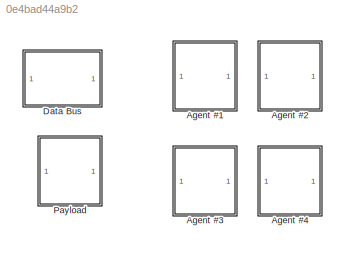
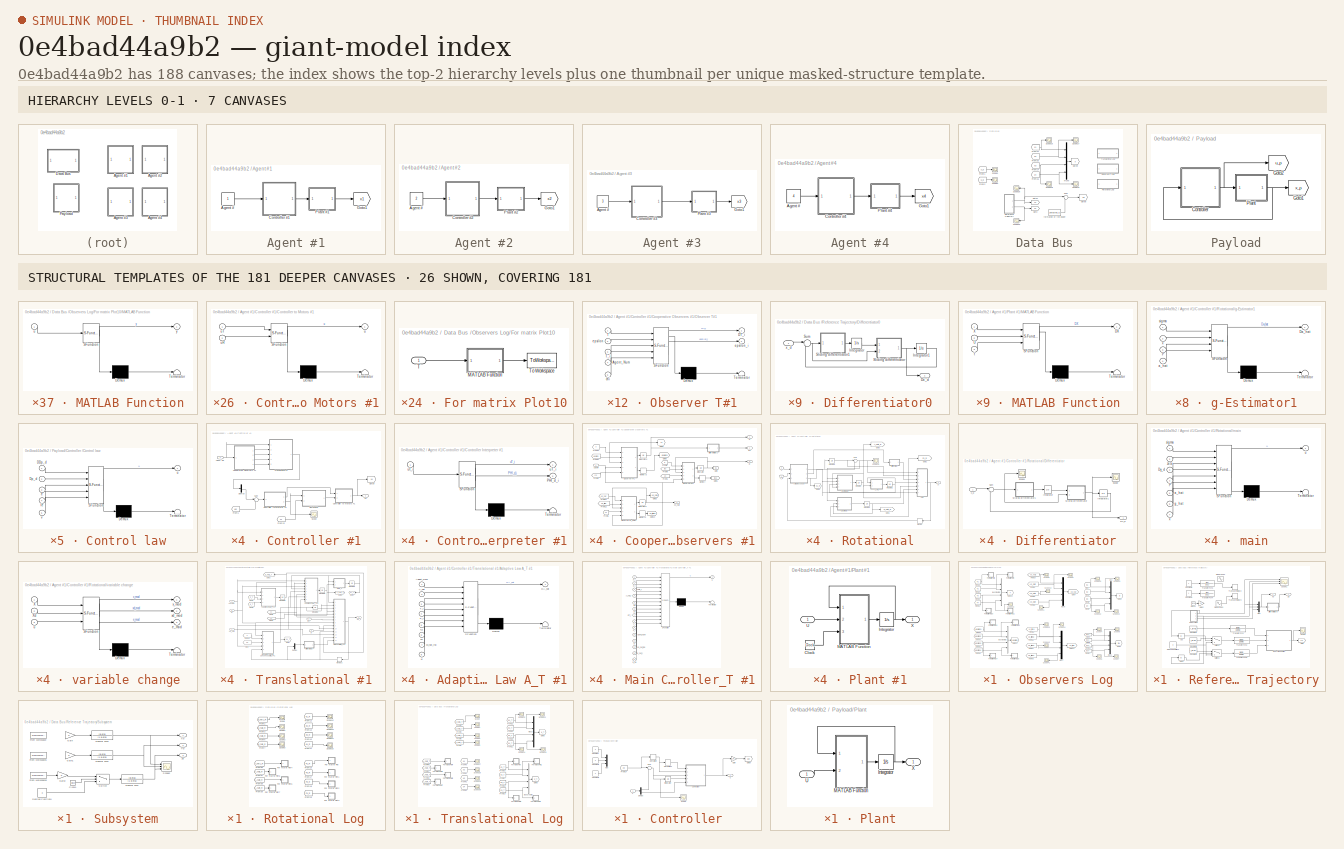
[diagram: thumbnail index - top-2 hierarchy levels (7 canvases) + 26 structural-template representatives of the remaining 181 canvases]
MODEL slx_0e4bad44a9b2
KIND model
CONFIG AbsTol = auto
CONFIG EnableMultiTasking = on
CONFIG FixedStep = auto
CONFIG InitFcn = constant_CAMFC2_Quad_New_02_Payload_01\n
CONFIG MaxStep = auto
CONFIG MinStep = auto
CONFIG RelTol = 1e-3
CONFIG SampleTimeConstraint = Unconstrained
CONFIG Solver = ode45
CONFIG SolverName = ode45
CONFIG StartTime = 0.0
CONFIG StopTime = 100
BLOCK [SubSystem] Agent #1
  Ports = []
  RequestExecContextInheritance = off
BLOCK [Constant] Agent #1/Agent #
BLOCK [SubSystem] Agent #1/Controller #1
  Ports = [1, 1]
  RequestExecContextInheritance = off
BLOCK [Inport] Agent #1/Controller #1/Agent No.
  IconDisplay = Port number
BLOCK [SubSystem] Agent #1/Controller #1/Controller Interpreter #1
  ErrorFcn = Stateflow.Translate.translate
  PermitHierarchicalResolution = ExplicitOnly
  Ports = [1, 2]
  RequestExecContextInheritance = off
  SFBlockType = MATLAB Function
  TreatAsAtomicUnit = on
BLOCK [Demux] Agent #1/Controller #1/Controller Interpreter #1/ Demux 
  Outputs = 1
  Ports = [1, 1]
BLOCK [S-Function] Agent #1/Controller #1/Controller Interpreter #1/ SFunction 
  EnableBusSupport = on
  FunctionName = sf_sfun
  PortCounts = [1 3]
  Ports = [1, 3]
  SFcnIsStateOwnerBlock = off
  SFunctionDeploymentMode = off
  Tag = Stateflow S-Function CAMFC2_Quad_New_02_Payload_01 84
BLOCK [Terminator] Agent #1/Controller #1/Controller Interpreter #1/ Terminator 
BLOCK [Outport] Agent #1/Controller #1/Controller Interpreter #1/PHI_d_i
  IconDisplay = Port number
  Port = 2
BLOCK [Outport] Agent #1/Controller #1/Controller Interpreter #1/uT_i
  IconDisplay = Port number
BLOCK [Inport] Agent #1/Controller #1/Controller Interpreter #1/ut_i
  IconDisplay = Port number
BLOCK [SubSystem] Agent #1/Controller #1/Controller to Motors #1
  ErrorFcn = Stateflow.Translate.translate
  PermitHierarchicalResolution = ExplicitOnly
  Ports = [2, 1]
  RequestExecContextInheritance = off
  SFBlockType = MATLAB Function
  TreatAsAtomicUnit = on
BLOCK [Demux] Agent #1/Controller #1/Controller to Motors #1/ Demux 
  Outputs = 1
  Ports = [1, 1]
BLOCK [S-Function] Agent #1/Controller #1/Controller to Motors #1/ SFunction 
  EnableBusSupport = on
  FunctionName = sf_sfun
  Parameters = RM_1
  PortCounts = [2 2]
  Ports = [2, 2]
  SFcnIsStateOwnerBlock = off
  SFunctionDeploymentMode = off
  Tag = Stateflow S-Function CAMFC2_Quad_New_02_Payload_01 1
BLOCK [Terminator] Agent #1/Controller #1/Controller to Motors #1/ Terminator 
BLOCK [Outport] Agent #1/Controller #1/Controller to Motors #1/u
  IconDisplay = Port number
BLOCK [Inport] Agent #1/Controller #1/Controller to Motors #1/uR
  IconDisplay = Port number
  Port = 2
BLOCK [Inport] Agent #1/Controller #1/Controller to Motors #1/uT
  IconDisplay = Port number
BLOCK [SubSystem] Agent #1/Controller #1/Cooperative Observers #1
  Ports = [1, 4]
  RequestExecContextInheritance = off
BLOCK [Inport] Agent #1/Controller #1/Cooperative Observers #1/Agent #
  IconDisplay = Port number
BLOCK [Outport] Agent #1/Controller #1/Cooperative Observers #1/DTi
  IconDisplay = Port number
  Port = 2
BLOCK [SubSystem] Agent #1/Controller #1/Cooperative Observers #1/Differentiator2
  Ports = [1, 1]
  RequestExecContextInheritance = off
BLOCK [Outport] Agent #1/Controller #1/Cooperative Observers #1/Differentiator2/Dx_d
  IconDisplay = Port number
BLOCK [Integrator] Agent #1/Controller #1/Cooperative Observers #1/Differentiator2/Integrator
  InitialCondition = zeros(N+1,n0)
  Ports = [1, 1]
BLOCK [Integrator] Agent #1/Controller #1/Cooperative Observers #1/Differentiator2/Integrator1
  InitialCondition = zeros(N+1,n0)
  Ports = [1, 1]
BLOCK [SubSystem] Agent #1/Controller #1/Cooperative Observers #1/Differentiator2/Sliding differentiator
  ErrorFcn = Stateflow.Translate.translate
  PermitHierarchicalResolution = ExplicitOnly
  Ports = [2, 1]
  RequestExecContextInheritance = off
  SFBlockType = MATLAB Function
  TreatAsAtomicUnit = on
BLOCK [Demux] Agent #1/Controller #1/Cooperative Observers #1/Differentiator2/Sliding differentiator/ Demux 
  Outputs = 1
  Ports = [1, 1]
BLOCK [S-Function] Agent #1/Controller #1/Cooperative Observers #1/Differentiator2/Sliding differentiator/ SFunction 
  EnableBusSupport = on
  FunctionName = sf_sfun
  Parameters = alpha,k1
  PortCounts = [2 2]
  Ports = [2, 2]
  SFcnIsStateOwnerBlock = off
  SFunctionDeploymentMode = off
  Tag = Stateflow S-Function CAMFC2_Quad_New_02_Payload_01 6
BLOCK [Terminator] Agent #1/Controller #1/Cooperative Observers #1/Differentiator2/Sliding differentiator/ Terminator 
BLOCK [Inport] Agent #1/Controller #1/Cooperative Observers #1/Differentiator2/Sliding differentiator/e
  IconDisplay = Port number
  Port = 2
BLOCK [Outport] Agent #1/Controller #1/Cooperative Observers #1/Differentiator2/Sliding differentiator/u
  IconDisplay = Port number
BLOCK [Inport] Agent #1/Controller #1/Cooperative Observers #1/Differentiator2/Sliding differentiator/u1
  IconDisplay = Port number
BLOCK [SubSystem] Agent #1/Controller #1/Cooperative Observers #1/Differentiator2/Sliding differentiator1
  ErrorFcn = Stateflow.Translate.translate
  PermitHierarchicalResolution = ExplicitOnly
  Ports = [1, 1]
  RequestExecContextInheritance = off
  SFBlockType = MATLAB Function
  TreatAsAtomicUnit = on
BLOCK [Demux] Agent #1/Controller #1/Cooperative Observers #1/Differentiator2/Sliding differentiator1/ Demux 
  Outputs = 1
  Ports = [1, 1]
BLOCK [S-Function] Agent #1/Controller #1/Cooperative Observers #1/Differentiator2/Sliding differentiator1/ SFunction 
  EnableBusSupport = on
  FunctionName = sf_sfun
  Parameters = alpha,k2
  PortCounts = [1 2]
  Ports = [1, 2]
  SFcnIsStateOwnerBlock = off
  SFunctionDeploymentMode = off
  Tag = Stateflow S-Function CAMFC2_Quad_New_02_Payload_01 7
BLOCK [Terminator] Agent #1/Controller #1/Cooperative Observers #1/Differentiator2/Sliding differentiator1/ Terminator 
BLOCK [Outport] Agent #1/Controller #1/Cooperative Observers #1/Differentiator2/Sliding differentiator1/Du1
  IconDisplay = Port number
BLOCK [Inport] Agent #1/Controller #1/Cooperative Observers #1/Differentiator2/Sliding differentiator1/e
  IconDisplay = Port number
BLOCK [Sum] Agent #1/Controller #1/Cooperative Observers #1/Differentiator2/Sum
  IconShape = round
  InputSameDT = off
  Inputs = |-+
  OutDataTypeStr = Inherit: Inherit via internal rule
  Ports = [2, 1]
  SaturateOnIntegerOverflow = off
BLOCK [Inport] Agent #1/Controller #1/Cooperative Observers #1/Differentiator2/x_d
  IconDisplay = Port number
BLOCK [From] Agent #1/Controller #1/Cooperative Observers #1/From1
  GotoTag = u0
  TagVisibility = global
BLOCK [From] Agent #1/Controller #1/Cooperative Observers #1/From11
  GotoTag = x0_hat
  TagVisibility = global
BLOCK [From] Agent #1/Controller #1/Cooperative Observers #1/From12
  GotoTag = x0_tilde
  TagVisibility = global
BLOCK [From] Agent #1/Controller #1/Cooperative Observers #1/From13
  GotoTag = T
  TagVisibility = global
BLOCK [From] Agent #1/Controller #1/Cooperative Observers #1/From14
  GotoTag = epsilon
  TagVisibility = global
BLOCK [From] Agent #1/Controller #1/Cooperative Observers #1/From3
  GotoTag = chi
  TagVisibility = global
BLOCK [From] Agent #1/Controller #1/Cooperative Observers #1/From6
  GotoTag = x0
  TagVisibility = global
BLOCK [From] Agent #1/Controller #1/Cooperative Observers #1/From8
  GotoTag = q
  TagVisibility = global
BLOCK [From] Agent #1/Controller #1/Cooperative Observers #1/From9
  GotoTag = tau
  TagVisibility = global
BLOCK [Goto] Agent #1/Controller #1/Cooperative Observers #1/Goto
  GotoTag = q1
  TagVisibility = global
BLOCK [Goto] Agent #1/Controller #1/Cooperative Observers #1/Goto1
  GotoTag = tau1
  TagVisibility = global
BLOCK [Goto] Agent #1/Controller #1/Cooperative Observers #1/Goto10
  GotoTag = x0_tilde1
  TagVisibility = global
BLOCK [Goto] Agent #1/Controller #1/Cooperative Observers #1/Goto3
  GotoTag = x0_hat1
  TagVisibility = global
BLOCK [Goto] Agent #1/Controller #1/Cooperative Observers #1/Goto5
  GotoTag = T1
  TagVisibility = global
BLOCK [Goto] Agent #1/Controller #1/Cooperative Observers #1/Goto6
  GotoTag = epsilon1
  TagVisibility = global
BLOCK [Integrator] Agent #1/Controller #1/Cooperative Observers #1/Integrator
  InitialCondition = zeros(n0,1)
  Ports = [1, 1]
BLOCK [Integrator] Agent #1/Controller #1/Cooperative Observers #1/Integrator5
  InitialCondition = zeros(N+1,n0)
  Ports = [1, 1]
BLOCK [Integrator] Agent #1/Controller #1/Cooperative Observers #1/Integrator6
  InitialCondition = zeros(n0,1)
  Ports = [1, 1]
BLOCK [Memory] Agent #1/Controller #1/Cooperative Observers #1/Memory
  InitialCondition = zeros(n0,1)
BLOCK [Memory] Agent #1/Controller #1/Cooperative Observers #1/Memory3
  InitialCondition = zeros(N+1,n0)
BLOCK [Memory] Agent #1/Controller #1/Cooperative Observers #1/Memory5
  InitialCondition = zeros(n0,1)
BLOCK [SubSystem] Agent #1/Controller #1/Cooperative Observers #1/Observer T#1
  ErrorFcn = Stateflow.Translate.translate
  PermitHierarchicalResolution = ExplicitOnly
  Ports = [5, 2]
  RequestExecContextInheritance = off
  SFBlockType = MATLAB Function
  TreatAsAtomicUnit = on
BLOCK [Demux] Agent #1/Controller #1/Cooperative Observers #1/Observer T#1/ Demux 
  Outputs = 1
  Ports = [1, 1]
BLOCK [S-Function] Agent #1/Controller #1/Cooperative Observers #1/Observer T#1/ SFunction 
  EnableBusSupport = on
  FunctionName = sf_sfun
  Parameters = AN,BN,H,N,Observer_Gain1,T_struct,Upsilon_M,epsilon_struct,n0
  PortCounts = [5 3]
  Ports = [5, 3]
  SFcnIsStateOwnerBlock = off
  SFunctionDeploymentMode = off
  Tag = Stateflow S-Function CAMFC2_Quad_New_02_Payload_01 8
BLOCK [Terminator] Agent #1/Controller #1/Cooperative Observers #1/Observer T#1/ Terminator 
BLOCK [Inport] Agent #1/Controller #1/Cooperative Observers #1/Observer T#1/Agent_Num
  IconDisplay = Port number
  Port = 4
BLOCK [Outport] Agent #1/Controller #1/Cooperative Observers #1/Observer T#1/DT_i
  IconDisplay = Port number
BLOCK [Inport] Agent #1/Controller #1/Cooperative Observers #1/Observer T#1/T
  IconDisplay = Port number
BLOCK [Inport] Agent #1/Controller #1/Cooperative Observers #1/Observer T#1/T_i
  IconDisplay = Port number
  Port = 3
BLOCK [Inport] Agent #1/Controller #1/Cooperative Observers #1/Observer T#1/chi
  IconDisplay = Port number
  Port = 5
BLOCK [Inport] Agent #1/Controller #1/Cooperative Observers #1/Observer T#1/epsilon
  IconDisplay = Port number
  Port = 2
BLOCK [Outport] Agent #1/Controller #1/Cooperative Observers #1/Observer T#1/epsilon_i
  IconDisplay = Port number
  Port = 2
BLOCK [SubSystem] Agent #1/Controller #1/Cooperative Observers #1/Observer q#1
  ErrorFcn = Stateflow.Translate.translate
  PermitHierarchicalResolution = ExplicitOnly
  Ports = [5, 2]
  RequestExecContextInheritance = off
  SFBlockType = MATLAB Function
  TreatAsAtomicUnit = on
BLOCK [Demux] Agent #1/Controller #1/Cooperative Observers #1/Observer q#1/ Demux 
  Outputs = 1
  Ports = [1, 1]
BLOCK [S-Function] Agent #1/Controller #1/Cooperative Observers #1/Observer q#1/ SFunction 
  EnableBusSupport = on
  FunctionName = sf_sfun
  Parameters = AN,BN,H,N,Observer_Gain,U_dot0_M,alpha,n0
  PortCounts = [5 3]
  Ports = [5, 3]
  SFcnIsStateOwnerBlock = off
  SFunctionDeploymentMode = off
  Tag = Stateflow S-Function CAMFC2_Quad_New_02_Payload_01 12
BLOCK [Terminator] Agent #1/Controller #1/Cooperative Observers #1/Observer q#1/ Terminator 
BLOCK [Inport] Agent #1/Controller #1/Cooperative Observers #1/Observer q#1/Agent_Num
  IconDisplay = Port number
  Port = 5
BLOCK [Outport] Agent #1/Controller #1/Cooperative Observers #1/Observer q#1/Dq_i
  IconDisplay = Port number
BLOCK [Inport] Agent #1/Controller #1/Cooperative Observers #1/Observer q#1/q
  IconDisplay = Port number
BLOCK [Inport] Agent #1/Controller #1/Cooperative Observers #1/Observer q#1/q_i
  IconDisplay = Port number
  Port = 3
BLOCK [Inport] Agent #1/Controller #1/Cooperative Observers #1/Observer q#1/tau
  IconDisplay = Port number
  Port = 2
BLOCK [Outport] Agent #1/Controller #1/Cooperative Observers #1/Observer q#1/tau_i
  IconDisplay = Port number
  Port = 2
BLOCK [Inport] Agent #1/Controller #1/Cooperative Observers #1/Observer q#1/u0
  IconDisplay = Port number
  Port = 4
BLOCK [SubSystem] Agent #1/Controller #1/Cooperative Observers #1/Observer x0_hat#1
  ErrorFcn = Stateflow.Translate.translate
  PermitHierarchicalResolution = ExplicitOnly
  Ports = [5, 2]
  RequestExecContextInheritance = off
  SFBlockType = MATLAB Function
  TreatAsAtomicUnit = on
BLOCK [Demux] Agent #1/Controller #1/Cooperative Observers #1/Observer x0_hat#1/ Demux 
  Outputs = 1
  Ports = [1, 1]
BLOCK [S-Function] Agent #1/Controller #1/Cooperative Observers #1/Observer x0_hat#1/ SFunction 
  EnableBusSupport = on
  FunctionName = sf_sfun
  Parameters = AN,BN,H,N,Observer_Gain,X_M,alpha,n0
  PortCounts = [5 3]
  Ports = [5, 3]
  SFcnIsStateOwnerBlock = off
  SFunctionDeploymentMode = off
  Tag = Stateflow S-Function CAMFC2_Quad_New_02_Payload_01 9
BLOCK [Terminator] Agent #1/Controller #1/Cooperative Observers #1/Observer x0_hat#1/ Terminator 
BLOCK [Inport] Agent #1/Controller #1/Cooperative Observers #1/Observer x0_hat#1/Agent_Num
  IconDisplay = Port number
  Port = 5
BLOCK [Outport] Agent #1/Controller #1/Cooperative Observers #1/Observer x0_hat#1/Dx0_hat_i
  IconDisplay = Port number
BLOCK [Inport] Agent #1/Controller #1/Cooperative Observers #1/Observer x0_hat#1/x0
  IconDisplay = Port number
  Port = 4
BLOCK [Inport] Agent #1/Controller #1/Cooperative Observers #1/Observer x0_hat#1/x0_hat
  IconDisplay = Port number
BLOCK [Inport] Agent #1/Controller #1/Cooperative Observers #1/Observer x0_hat#1/x0_hat_i
  IconDisplay = Port number
  Port = 3
BLOCK [Inport] Agent #1/Controller #1/Cooperative Observers #1/Observer x0_hat#1/x0_tilde
  IconDisplay = Port number
  Port = 2
BLOCK [Outport] Agent #1/Controller #1/Cooperative Observers #1/Observer x0_hat#1/x0_tilde_i
  IconDisplay = Port number
  Port = 2
BLOCK [Outport] Agent #1/Controller #1/Cooperative Observers #1/Ti
  IconDisplay = Port number
BLOCK [Outport] Agent #1/Controller #1/Cooperative Observers #1/qi
  IconDisplay = Port number
  Port = 3
BLOCK [Outport] Agent #1/Controller #1/Cooperative Observers #1/x0_hati
  IconDisplay = Port number
  Port = 4
BLOCK [Demux] Agent #1/Controller #1/Demux
  DisplayOption = bar
  Outputs = 2
  Ports = [1, 2]
BLOCK [From] Agent #1/Controller #1/From1
  GotoTag = upi
  TagVisibility = global
BLOCK [From] Agent #1/Controller #1/From13
  GotoTag = x1
  TagVisibility = global
BLOCK [Goto] Agent #1/Controller #1/Goto9
  GotoTag = u1
  TagVisibility = global
BLOCK [SubSystem] Agent #1/Controller #1/Rotational
  Ports = [2, 1]
  RequestExecContextInheritance = off
BLOCK [SubSystem] Agent #1/Controller #1/Rotational/CARE
  ErrorFcn = Stateflow.Translate.translate
  PermitHierarchicalResolution = ExplicitOnly
  Ports = [2, 1]
  RequestExecContextInheritance = off
  SFBlockType = MATLAB Function
  TreatAsAtomicUnit = on
BLOCK [Demux] Agent #1/Controller #1/Rotational/CARE/ Demux 
  Outputs = 1
  Ports = [1, 1]
BLOCK [S-Function] Agent #1/Controller #1/Rotational/CARE/ SFunction 
  EnableBusSupport = on
  FunctionName = sf_sfun
  Parameters = B,QR,R
  PortCounts = [2 2]
  Ports = [2, 2]
  SFcnIsStateOwnerBlock = off
  SFunctionDeploymentMode = off
  Tag = Stateflow S-Function CAMFC2_Quad_New_02_Payload_01 52
BLOCK [Terminator] Agent #1/Controller #1/Rotational/CARE/ Terminator 
BLOCK [Outport] Agent #1/Controller #1/Rotational/CARE/DP
  IconDisplay = Port number
BLOCK [Inport] Agent #1/Controller #1/Rotational/CARE/P
  IconDisplay = Port number
BLOCK [Inport] Agent #1/Controller #1/Rotational/CARE/a_hat
  IconDisplay = Port number
  Port = 2
BLOCK [SubSystem] Agent #1/Controller #1/Rotational/Differentiator
  Ports = [1, 1]
  RequestExecContextInheritance = off
BLOCK [Outport] Agent #1/Controller #1/Rotational/Differentiator/Dx_d
  IconDisplay = Port number
BLOCK [Integrator] Agent #1/Controller #1/Rotational/Differentiator/Integrator
  InitialCondition = zeros(n,1)
  Ports = [1, 1]
BLOCK [Integrator] Agent #1/Controller #1/Rotational/Differentiator/Integrator1
  InitialCondition = zeros(n,1)
  Ports = [1, 1]
BLOCK [Scope] Agent #1/Controller #1/Rotational/Differentiator/Scope
  Floating = off
  NumInputPorts = 1
  Ports = [1]
  ScopeSpecificationString = Simulink.scopes.TimeScopeBlockCfg('CurrentConfiguration', extmgr.ConfigurationSet(extmgr.Configuration('Core','General UI',true),extmgr.Configuration('Core','Source UI',true),extmgr.Configuration('Sources','WiredSimulink',true,'DataLoggingVariableName','ScopeData1','DataLoggingSaveFormat','StructureWithTime','DataLoggingDecimation','1','DataLoggingDecimateData',true),extmgr.Configuration('Visuals'...<+1989ch>  <repeated x4 — deduplicated; at blocks: Scope>
BLOCK [Scope] Agent #1/Controller #1/Rotational/Differentiator/Scope1
  Floating = off
  NumInputPorts = 1
  Ports = [1]
  ScopeSpecificationString = C++SS(StrPVP('Location','[5, 49, 1367, 737]'),StrPVP('Open','off'),StrPVP('ZoomMode','xonly'),MxPVP('AxesTitles',53,'struct(''axes1'',''%<SignalLabel>'')'),MxPVP('ScopeGraphics',56,'struct(''FigureColor'',''[0.5 0.5 0.5]'',''AxesColor'',''[0 0 0]'',''AxesTickColor'',''[1 1 1]'',''LineColors'',''[1 1 0;1 0 1;0 1 1;1 0 0;0 1 0;0 0 1]'',''LineStyles'',''-|-|-|-|-|-'',''LineWidths'',''[0.5 0.5 0.5 0.5...<+297ch>  <repeated x4 — deduplicated; at blocks: Scope1>
BLOCK [SubSystem] Agent #1/Controller #1/Rotational/Differentiator/Sliding differentiator
  ErrorFcn = Stateflow.Translate.translate
  PermitHierarchicalResolution = ExplicitOnly
  Ports = [2, 1]
  RequestExecContextInheritance = off
  SFBlockType = MATLAB Function
  TreatAsAtomicUnit = on
BLOCK [Demux] Agent #1/Controller #1/Rotational/Differentiator/Sliding differentiator/ Demux 
  Outputs = 1
  Ports = [1, 1]
BLOCK [S-Function] Agent #1/Controller #1/Rotational/Differentiator/Sliding differentiator/ SFunction 
  EnableBusSupport = on
  FunctionName = sf_sfun
  Parameters = k1,n
  PortCounts = [2 2]
  Ports = [2, 2]
  SFcnIsStateOwnerBlock = off
  SFunctionDeploymentMode = off
  Tag = Stateflow S-Function CAMFC2_Quad_New_02_Payload_01 77
BLOCK [Terminator] Agent #1/Controller #1/Rotational/Differentiator/Sliding differentiator/ Terminator 
BLOCK [Inport] Agent #1/Controller #1/Rotational/Differentiator/Sliding differentiator/e
  IconDisplay = Port number
  Port = 2
BLOCK [Outport] Agent #1/Controller #1/Rotational/Differentiator/Sliding differentiator/u
  IconDisplay = Port number
BLOCK [Inport] Agent #1/Controller #1/Rotational/Differentiator/Sliding differentiator/u1
  IconDisplay = Port number
BLOCK [SubSystem] Agent #1/Controller #1/Rotational/Differentiator/Sliding differentiator1
  ErrorFcn = Stateflow.Translate.translate
  PermitHierarchicalResolution = ExplicitOnly
  Ports = [1, 1]
  RequestExecContextInheritance = off
  SFBlockType = MATLAB Function
  TreatAsAtomicUnit = on
BLOCK [Demux] Agent #1/Controller #1/Rotational/Differentiator/Sliding differentiator1/ Demux 
  Outputs = 1
  Ports = [1, 1]
BLOCK [S-Function] Agent #1/Controller #1/Rotational/Differentiator/Sliding differentiator1/ SFunction 
  EnableBusSupport = on
  FunctionName = sf_sfun
  Parameters = k2,n
  PortCounts = [1 2]
  Ports = [1, 2]
  SFcnIsStateOwnerBlock = off
  SFunctionDeploymentMode = off
  Tag = Stateflow S-Function CAMFC2_Quad_New_02_Payload_01 85
BLOCK [Terminator] Agent #1/Controller #1/Rotational/Differentiator/Sliding differentiator1/ Terminator 
BLOCK [Outport] Agent #1/Controller #1/Rotational/Differentiator/Sliding differentiator1/Du1
  IconDisplay = Port number
BLOCK [Inport] Agent #1/Controller #1/Rotational/Differentiator/Sliding differentiator1/e
  IconDisplay = Port number
BLOCK [Sum] Agent #1/Controller #1/Rotational/Differentiator/Sum
  IconShape = round
  InputSameDT = off
  Inputs = |-+
  OutDataTypeStr = Inherit: Inherit via internal rule
  Ports = [2, 1]
  SaturateOnIntegerOverflow = off
BLOCK [Inport] Agent #1/Controller #1/Rotational/Differentiator/x_d
  IconDisplay = Port number
BLOCK [Goto] Agent #1/Controller #1/Rotational/Goto1
  GotoTag = g_hat1_R
  TagVisibility = global
BLOCK [Goto] Agent #1/Controller #1/Rotational/Goto2
  GotoTag = P1_R
  TagVisibility = global
BLOCK [Goto] Agent #1/Controller #1/Rotational/Goto3
  GotoTag = A_hat1_R
  TagVisibility = global
BLOCK [Goto] Agent #1/Controller #1/Rotational/Goto9
  GotoTag = e1_R
  TagVisibility = global
BLOCK [Integrator] Agent #1/Controller #1/Rotational/Integrator
  InitialCondition = zeros(n)
  Ports = [1, 1]
BLOCK [Integrator] Agent #1/Controller #1/Rotational/Integrator1
  InitialCondition = eye(n)
  Ports = [1, 1]
BLOCK [Integrator] Agent #1/Controller #1/Rotational/Integrator2
  InitialCondition = zeros(n,1)
  Ports = [1, 1]
BLOCK [Integrator] Agent #1/Controller #1/Rotational/Integrator3
  InitialCondition = zeros(n,1)
  Ports = [1, 1]
BLOCK [Memory] Agent #1/Controller #1/Rotational/Memory
  InitialCondition = zeros(m,1)
BLOCK [Scope] Agent #1/Controller #1/Rotational/Scope10
  Floating = off
  NumInputPorts = 1
  Ports = [1]
  ScopeSpecificationString = Simulink.scopes.TimeScopeBlockCfg('CurrentConfiguration', extmgr.ConfigurationSet(extmgr.Configuration('Core','General UI',true),extmgr.Configuration('Core','Source UI',true),extmgr.Configuration('Sources','WiredSimulink',true,'DataLoggingVariableName','ScopeData2','DataLoggingSaveFormat','StructureWithTime','DataLoggingDecimation','1','DataLoggingDecimateData',true),extmgr.Configuration('Visuals'...<+1736ch>  <repeated x4 — deduplicated; at blocks: Scope10>
BLOCK [Sum] Agent #1/Controller #1/Rotational/Sum
  IconShape = round
  InputSameDT = off
  Inputs = |++
  OutDataTypeStr = Inherit: Inherit via internal rule
  Ports = [2, 1]
  SaturateOnIntegerOverflow = off
BLOCK [Inport] Agent #1/Controller #1/Rotational/X
  IconDisplay = Port number
  Port = 2
BLOCK [SubSystem] Agent #1/Controller #1/Rotational/g-Estimator
  ErrorFcn = Stateflow.Translate.translate
  PermitHierarchicalResolution = ExplicitOnly
  Ports = [3, 1]
  RequestExecContextInheritance = off
  SFBlockType = MATLAB Function
  TreatAsAtomicUnit = on
BLOCK [Demux] Agent #1/Controller #1/Rotational/g-Estimator/ Demux 
  Outputs = 1
  Ports = [1, 1]
BLOCK [S-Function] Agent #1/Controller #1/Rotational/g-Estimator/ SFunction 
  EnableBusSupport = on
  FunctionName = sf_sfun
  Parameters = gamma_1,rho_1
  PortCounts = [3 2]
  Ports = [3, 2]
  SFcnIsStateOwnerBlock = off
  SFunctionDeploymentMode = off
  Tag = Stateflow S-Function CAMFC2_Quad_New_02_Payload_01 86
BLOCK [Terminator] Agent #1/Controller #1/Rotational/g-Estimator/ Terminator 
BLOCK [Outport] Agent #1/Controller #1/Rotational/g-Estimator/Dg_hat
  IconDisplay = Port number
BLOCK [Inport] Agent #1/Controller #1/Rotational/g-Estimator/P
  IconDisplay = Port number
  Port = 3
BLOCK [Inport] Agent #1/Controller #1/Rotational/g-Estimator/g_hat
  IconDisplay = Port number
  Port = 2
BLOCK [Inport] Agent #1/Controller #1/Rotational/g-Estimator/sigma
  IconDisplay = Port number
BLOCK [SubSystem] Agent #1/Controller #1/Rotational/g-Estimator1
  ErrorFcn = Stateflow.Translate.translate
  PermitHierarchicalResolution = ExplicitOnly
  Ports = [4, 1]
  RequestExecContextInheritance = off
  SFBlockType = MATLAB Function
  TreatAsAtomicUnit = on
BLOCK [Demux] Agent #1/Controller #1/Rotational/g-Estimator1/ Demux 
  Outputs = 1
  Ports = [1, 1]
BLOCK [S-Function] Agent #1/Controller #1/Rotational/g-Estimator1/ SFunction 
  EnableBusSupport = on
  FunctionName = sf_sfun
  Parameters = gamma_0,rho_0
  PortCounts = [4 2]
  Ports = [4, 2]
  SFcnIsStateOwnerBlock = off
  SFunctionDeploymentMode = off
  Tag = Stateflow S-Function CAMFC2_Quad_New_02_Payload_01 87
BLOCK [Terminator] Agent #1/Controller #1/Rotational/g-Estimator1/ Terminator 
BLOCK [Outport] Agent #1/Controller #1/Rotational/g-Estimator1/Da_hat
  IconDisplay = Port number
BLOCK [Inport] Agent #1/Controller #1/Rotational/g-Estimator1/P
  IconDisplay = Port number
  Port = 3
BLOCK [Inport] Agent #1/Controller #1/Rotational/g-Estimator1/a_hat
  IconDisplay = Port number
  Port = 4
BLOCK [Inport] Agent #1/Controller #1/Rotational/g-Estimator1/sigma
  IconDisplay = Port number
BLOCK [Inport] Agent #1/Controller #1/Rotational/g-Estimator1/x
  IconDisplay = Port number
  Port = 2
BLOCK [SubSystem] Agent #1/Controller #1/Rotational/main
  ErrorFcn = Stateflow.Translate.translate
  PermitHierarchicalResolution = ExplicitOnly
  Ports = [7, 1]
  RequestExecContextInheritance = off
  SFBlockType = MATLAB Function
  TreatAsAtomicUnit = on
BLOCK [Demux] Agent #1/Controller #1/Rotational/main/ Demux 
  Outputs = 1
  Ports = [1, 1]
BLOCK [S-Function] Agent #1/Controller #1/Rotational/main/ SFunction 
  EnableBusSupport = on
  FunctionName = sf_sfun
  Parameters = B,BBT_inv,QR,R,n
  PortCounts = [7 2]
  Ports = [7, 2]
  SFcnIsStateOwnerBlock = off
  SFunctionDeploymentMode = off
  Tag = Stateflow S-Function CAMFC2_Quad_New_02_Payload_01 88
BLOCK [Terminator] Agent #1/Controller #1/Rotational/main/ Terminator 
BLOCK [Inport] Agent #1/Controller #1/Rotational/main/Dy_d
  IconDisplay = Port number
  Port = 3
BLOCK [Inport] Agent #1/Controller #1/Rotational/main/P
  IconDisplay = Port number
  Port = 4
BLOCK [Inport] Agent #1/Controller #1/Rotational/main/a_hat
  IconDisplay = Port number
  Port = 5
BLOCK [Inport] Agent #1/Controller #1/Rotational/main/g_hat
  IconDisplay = Port number
  Port = 6
BLOCK [Inport] Agent #1/Controller #1/Rotational/main/sigma
  IconDisplay = Port number
BLOCK [Outport] Agent #1/Controller #1/Rotational/main/u
  IconDisplay = Port number
BLOCK [Inport] Agent #1/Controller #1/Rotational/main/x
  IconDisplay = Port number
  Port = 7
BLOCK [Inport] Agent #1/Controller #1/Rotational/main/zeta
  IconDisplay = Port number
  Port = 2
BLOCK [Outport] Agent #1/Controller #1/Rotational/ur
  IconDisplay = Port number
BLOCK [SubSystem] Agent #1/Controller #1/Rotational/variable change
  ErrorFcn = Stateflow.Translate.translate
  PermitHierarchicalResolution = ExplicitOnly
  Ports = [3, 3]
  RequestExecContextInheritance = off
  SFBlockType = MATLAB Function
  TreatAsAtomicUnit = on
BLOCK [Demux] Agent #1/Controller #1/Rotational/variable change/ Demux 
  Outputs = 1
  Ports = [1, 1]
BLOCK [S-Function] Agent #1/Controller #1/Rotational/variable change/ SFunction 
  EnableBusSupport = on
  FunctionName = sf_sfun
  PortCounts = [3 4]
  Ports = [3, 4]
  SFcnIsStateOwnerBlock = off
  SFunctionDeploymentMode = off
  Tag = Stateflow S-Function CAMFC2_Quad_New_02_Payload_01 89
BLOCK [Terminator] Agent #1/Controller #1/Rotational/variable change/ Terminator 
BLOCK [Inport] Agent #1/Controller #1/Rotational/variable change/X
  IconDisplay = Port number
BLOCK [Inport] Agent #1/Controller #1/Rotational/variable change/Xd
  IconDisplay = Port number
  Port = 2
BLOCK [Outport] Agent #1/Controller #1/Rotational/variable change/e_mod
  IconDisplay = Port number
  Port = 3
BLOCK [Inport] Agent #1/Controller #1/Rotational/variable change/u
  IconDisplay = Port number
  Port = 3
BLOCK [Outport] Agent #1/Controller #1/Rotational/variable change/x_mod
  IconDisplay = Port number
BLOCK [Outport] Agent #1/Controller #1/Rotational/variable change/xd_mod
  IconDisplay = Port number
  Port = 2
BLOCK [Inport] Agent #1/Controller #1/Rotational/x_rd
  IconDisplay = Port number
BLOCK [Scope] Agent #1/Controller #1/Scope
  Floating = off
  NumInputPorts = 1
  Ports = [1]
  ScopeSpecificationString = Simulink.scopes.TimeScopeBlockCfg('CurrentConfiguration', extmgr.ConfigurationSet(extmgr.Configuration('Core','General UI',true),extmgr.Configuration('Core','Source UI',true),extmgr.Configuration('Sources','WiredSimulink',true,'DataLoggingVariableName','PHI_d1','DataLogging',true,'DataLoggingDecimateData',true,'DataLoggingDecimation','1','DataLoggingSaveFormat','StructureWithTime'),extmgr.Configur...<+1690ch>
BLOCK [Sum] Agent #1/Controller #1/Sum
  IconShape = round
  InputSameDT = off
  Inputs = |++
  OutDataTypeStr = Inherit: Inherit via internal rule
  Ports = [2, 1]
  SaturateOnIntegerOverflow = off
BLOCK [SubSystem] Agent #1/Controller #1/Translational #1
  Ports = [5, 1]
  RequestExecContextInheritance = off
BLOCK [SubSystem] Agent #1/Controller #1/Translational #1/Adaptive Law A_T #1
  ErrorFcn = Stateflow.Translate.translate
  PermitHierarchicalResolution = ExplicitOnly
  Ports = [8, 1]
  RequestExecContextInheritance = off
  SFBlockType = MATLAB Function
  TreatAsAtomicUnit = on
BLOCK [Demux] Agent #1/Controller #1/Translational #1/Adaptive Law A_T #1/ Demux 
  Outputs = 1
  Ports = [1, 1]
BLOCK [S-Function] Agent #1/Controller #1/Translational #1/Adaptive Law A_T #1/ SFunction 
  EnableBusSupport = on
  FunctionName = sf_sfun
  Parameters = BN,H,N,gama2,n,n0,rho2
  PortCounts = [8 2]
  Ports = [8, 2]
  SFcnIsStateOwnerBlock = off
  SFunctionDeploymentMode = off
  Tag = Stateflow S-Function CAMFC2_Quad_New_02_Payload_01 10
BLOCK [Terminator] Agent #1/Controller #1/Translational #1/Adaptive Law A_T #1/ Terminator 
BLOCK [Inport] Agent #1/Controller #1/Translational #1/Adaptive Law A_T #1/A_hat
  IconDisplay = Port number
  Port = 2
BLOCK [Inport] Agent #1/Controller #1/Translational #1/Adaptive Law A_T #1/Agent_Num
  IconDisplay = Port number
BLOCK [Outport] Agent #1/Controller #1/Translational #1/Adaptive Law A_T #1/DA_hat
  IconDisplay = Port number
BLOCK [Inport] Agent #1/Controller #1/Translational #1/Adaptive Law A_T #1/P_i
  IconDisplay = Port number
  Port = 4
BLOCK [Inport] Agent #1/Controller #1/Translational #1/Adaptive Law A_T #1/T_i
  IconDisplay = Port number
  Port = 3
BLOCK [Inport] Agent #1/Controller #1/Translational #1/Adaptive Law A_T #1/e_i
  IconDisplay = Port number
  Port = 5
BLOCK [Inport] Agent #1/Controller #1/Translational #1/Adaptive Law A_T #1/ui
  IconDisplay = Port number
  Port = 8
BLOCK [Inport] Agent #1/Controller #1/Translational #1/Adaptive Law A_T #1/x0_hat_inp
  IconDisplay = Port number
  Port = 7
BLOCK [Inport] Agent #1/Controller #1/Translational #1/Adaptive Law A_T #1/z0
  IconDisplay = Port number
  Port = 6
BLOCK [SubSystem] Agent #1/Controller #1/Translational #1/Adaptive Law g_T #1
  ErrorFcn = Stateflow.Translate.translate
  PermitHierarchicalResolution = ExplicitOnly
  Ports = [4, 1]
  RequestExecContextInheritance = off
  SFBlockType = MATLAB Function
  TreatAsAtomicUnit = on
BLOCK [Demux] Agent #1/Controller #1/Translational #1/Adaptive Law g_T #1/ Demux 
  Outputs = 1
  Ports = [1, 1]
BLOCK [S-Function] Agent #1/Controller #1/Translational #1/Adaptive Law g_T #1/ SFunction 
  EnableBusSupport = on
  FunctionName = sf_sfun
  Parameters = H,N,P_struct,gama1,n,rho1
  PortCounts = [4 2]
  Ports = [4, 2]
  SFcnIsStateOwnerBlock = off
  SFunctionDeploymentMode = off
  Tag = Stateflow S-Function CAMFC2_Quad_New_02_Payload_01 13
BLOCK [Terminator] Agent #1/Controller #1/Translational #1/Adaptive Law g_T #1/ Terminator 
BLOCK [Inport] Agent #1/Controller #1/Translational #1/Adaptive Law g_T #1/Agent_Num
  IconDisplay = Port number
BLOCK [Outport] Agent #1/Controller #1/Translational #1/Adaptive Law g_T #1/Dg_hat
  IconDisplay = Port number
BLOCK [Inport] Agent #1/Controller #1/Translational #1/Adaptive Law g_T #1/P
  IconDisplay = Port number
  Port = 3
BLOCK [Inport] Agent #1/Controller #1/Translational #1/Adaptive Law g_T #1/e
  IconDisplay = Port number
  Port = 4
BLOCK [Inport] Agent #1/Controller #1/Translational #1/Adaptive Law g_T #1/g_hat
  IconDisplay = Port number
  Port = 2
BLOCK [Inport] Agent #1/Controller #1/Translational #1/Agent No.
  IconDisplay = Port number
BLOCK [SubSystem] Agent #1/Controller #1/Translational #1/DRE_T
  ErrorFcn = Stateflow.Translate.translate
  PermitHierarchicalResolution = ExplicitOnly
  Ports = [2, 1]
  RequestExecContextInheritance = off
  SFBlockType = MATLAB Function
  TreatAsAtomicUnit = on
BLOCK [Demux] Agent #1/Controller #1/Translational #1/DRE_T/ Demux 
  Outputs = 1
  Ports = [1, 1]
BLOCK [S-Function] Agent #1/Controller #1/Translational #1/DRE_T/ SFunction 
  EnableBusSupport = on
  FunctionName = sf_sfun
  Parameters = B,Q,R
  PortCounts = [2 2]
  Ports = [2, 2]
  SFcnIsStateOwnerBlock = off
  SFunctionDeploymentMode = off
  Tag = Stateflow S-Function CAMFC2_Quad_New_02_Payload_01 15
BLOCK [Terminator] Agent #1/Controller #1/Translational #1/DRE_T/ Terminator 
BLOCK [Inport] Agent #1/Controller #1/Translational #1/DRE_T/A_hat
  IconDisplay = Port number
  Port = 2
BLOCK [Outport] Agent #1/Controller #1/Translational #1/DRE_T/DP
  IconDisplay = Port number
BLOCK [Inport] Agent #1/Controller #1/Translational #1/DRE_T/P
  IconDisplay = Port number
BLOCK [Inport] Agent #1/Controller #1/Translational #1/DTi
  IconDisplay = Port number
  Port = 3
BLOCK [Demux] Agent #1/Controller #1/Translational #1/Demux
  DisplayOption = bar
  Outputs = 2
  Ports = [1, 2]
BLOCK [SubSystem] Agent #1/Controller #1/Translational #1/Differentiator1
  Ports = [1, 1]
  RequestExecContextInheritance = off
BLOCK [Outport] Agent #1/Controller #1/Translational #1/Differentiator1/Dx_d
  IconDisplay = Port number
BLOCK [Integrator] Agent #1/Controller #1/Translational #1/Differentiator1/Integrator
  InitialCondition = zeros(n0,1)
  Ports = [1, 1]
BLOCK [Integrator] Agent #1/Controller #1/Translational #1/Differentiator1/Integrator1
  InitialCondition = zeros(n0,1)
  Ports = [1, 1]
BLOCK [SubSystem] Agent #1/Controller #1/Translational #1/Differentiator1/Sliding differentiator
  ErrorFcn = Stateflow.Translate.translate
  PermitHierarchicalResolution = ExplicitOnly
  Ports = [2, 1]
  RequestExecContextInheritance = off
  SFBlockType = MATLAB Function
  TreatAsAtomicUnit = on
BLOCK [Demux] Agent #1/Controller #1/Translational #1/Differentiator1/Sliding differentiator/ Demux 
  Outputs = 1
  Ports = [1, 1]
BLOCK [S-Function] Agent #1/Controller #1/Translational #1/Differentiator1/Sliding differentiator/ SFunction 
  EnableBusSupport = on
  FunctionName = sf_sfun
  Parameters = alpha,k1
  PortCounts = [2 2]
  Ports = [2, 2]
  SFcnIsStateOwnerBlock = off
  SFunctionDeploymentMode = off
  Tag = Stateflow S-Function CAMFC2_Quad_New_02_Payload_01 17
BLOCK [Terminator] Agent #1/Controller #1/Translational #1/Differentiator1/Sliding differentiator/ Terminator 
BLOCK [Inport] Agent #1/Controller #1/Translational #1/Differentiator1/Sliding differentiator/e
  IconDisplay = Port number
  Port = 2
BLOCK [Outport] Agent #1/Controller #1/Translational #1/Differentiator1/Sliding differentiator/u
  IconDisplay = Port number
BLOCK [Inport] Agent #1/Controller #1/Translational #1/Differentiator1/Sliding differentiator/u1
  IconDisplay = Port number
BLOCK [SubSystem] Agent #1/Controller #1/Translational #1/Differentiator1/Sliding differentiator1
  ErrorFcn = Stateflow.Translate.translate
  PermitHierarchicalResolution = ExplicitOnly
  Ports = [1, 1]
  RequestExecContextInheritance = off
  SFBlockType = MATLAB Function
  TreatAsAtomicUnit = on
BLOCK [Demux] Agent #1/Controller #1/Translational #1/Differentiator1/Sliding differentiator1/ Demux 
  Outputs = 1
  Ports = [1, 1]
BLOCK [S-Function] Agent #1/Controller #1/Translational #1/Differentiator1/Sliding differentiator1/ SFunction 
  EnableBusSupport = on
  FunctionName = sf_sfun
  Parameters = alpha,k2
  PortCounts = [1 2]
  Ports = [1, 2]
  SFcnIsStateOwnerBlock = off
  SFunctionDeploymentMode = off
  Tag = Stateflow S-Function CAMFC2_Quad_New_02_Payload_01 18
BLOCK [Terminator] Agent #1/Controller #1/Translational #1/Differentiator1/Sliding differentiator1/ Terminator 
BLOCK [Outport] Agent #1/Controller #1/Translational #1/Differentiator1/Sliding differentiator1/Du1
  IconDisplay = Port number
BLOCK [Inport] Agent #1/Controller #1/Translational #1/Differentiator1/Sliding differentiator1/e
  IconDisplay = Port number
BLOCK [Sum] Agent #1/Controller #1/Translational #1/Differentiator1/Sum
  IconShape = round
  InputSameDT = off
  Inputs = |-+
  OutDataTypeStr = Inherit: Inherit via internal rule
  Ports = [2, 1]
  SaturateOnIntegerOverflow = off
BLOCK [Inport] Agent #1/Controller #1/Translational #1/Differentiator1/x_d
  IconDisplay = Port number
BLOCK [From] Agent #1/Controller #1/Translational #1/From
  GotoTag = x0
  TagVisibility = global
BLOCK [From] Agent #1/Controller #1/Translational #1/From10
  GotoTag = x
  TagVisibility = global
BLOCK [From] Agent #1/Controller #1/Translational #1/From2
  GotoTag = e_T
  TagVisibility = global
BLOCK [From] Agent #1/Controller #1/Translational #1/From4
  GotoTag = u0
  TagVisibility = global
BLOCK [From] Agent #1/Controller #1/Translational #1/From5
  GotoTag = z0
  TagVisibility = global
BLOCK [From] Agent #1/Controller #1/Translational #1/From7
  GotoTag = P_T
  TagVisibility = global
BLOCK [Goto] Agent #1/Controller #1/Translational #1/Goto2
  GotoTag = g_hat1_T
  TagVisibility = global
BLOCK [Goto] Agent #1/Controller #1/Translational #1/Goto4
  GotoTag = P1_T
  TagVisibility = global
BLOCK [Goto] Agent #1/Controller #1/Translational #1/Goto7
  GotoTag = e1_T
  TagVisibility = global
BLOCK [Goto] Agent #1/Controller #1/Translational #1/Goto8
  GotoTag = A_hat1_T
  TagVisibility = global
BLOCK [Integrator] Agent #1/Controller #1/Translational #1/Integrator1
  InitialCondition = zeros(n,1)
  Ports = [1, 1]
BLOCK [Integrator] Agent #1/Controller #1/Translational #1/Integrator2
  InitialCondition = zeros(n,1)
  Ports = [1, 1]
BLOCK [Integrator] Agent #1/Controller #1/Translational #1/Integrator3
  InitialCondition = zeros(n)
  Ports = [1, 1]
BLOCK [Integrator] Agent #1/Controller #1/Translational #1/Integrator4
  InitialCondition = eye(n)
  Ports = [1, 1]
BLOCK [SubSystem] Agent #1/Controller #1/Translational #1/Main Controller_T #1
  ErrorFcn = Stateflow.Translate.translate
  PermitHierarchicalResolution = ExplicitOnly
  Ports = [14, 1]
  RequestExecContextInheritance = off
  SFBlockType = MATLAB Function
  TreatAsAtomicUnit = on
BLOCK [Demux] Agent #1/Controller #1/Translational #1/Main Controller_T #1/ Demux 
  Outputs = 1
  Ports = [1, 1]
BLOCK [S-Function] Agent #1/Controller #1/Translational #1/Main Controller_T #1/ SFunction 
  EnableBusSupport = on
  FunctionName = sf_sfun
  Parameters = BN,B_pseudo_inverse,H,K,Q,R,n,n0
  PortCounts = [14 2]
  Ports = [14, 2]
  SFcnIsStateOwnerBlock = off
  SFunctionDeploymentMode = off
  Tag = Stateflow S-Function CAMFC2_Quad_New_02_Payload_01 19
BLOCK [Terminator] Agent #1/Controller #1/Translational #1/Main Controller_T #1/ Terminator 
BLOCK [Inport] Agent #1/Controller #1/Translational #1/Main Controller_T #1/A_hat_i
  IconDisplay = Port number
  Port = 4
BLOCK [Inport] Agent #1/Controller #1/Translational #1/Main Controller_T #1/Agent_Num
  IconDisplay = Port number
  Port = 10
BLOCK [Inport] Agent #1/Controller #1/Translational #1/Main Controller_T #1/DT_i
  IconDisplay = Port number
  Port = 7
BLOCK [Inport] Agent #1/Controller #1/Translational #1/Main Controller_T #1/D_ui1
  IconDisplay = Port number
  Port = 14
BLOCK [Inport] Agent #1/Controller #1/Translational #1/Main Controller_T #1/P_i
  IconDisplay = Port number
BLOCK [Inport] Agent #1/Controller #1/Translational #1/Main Controller_T #1/T_i
  IconDisplay = Port number
  Port = 8
BLOCK [Outport] Agent #1/Controller #1/Translational #1/Main Controller_T #1/U
  IconDisplay = Port number
BLOCK [Inport] Agent #1/Controller #1/Translational #1/Main Controller_T #1/Zeta_i
  IconDisplay = Port number
  Port = 3
BLOCK [Inport] Agent #1/Controller #1/Translational #1/Main Controller_T #1/e_i
  IconDisplay = Port number
  Port = 2
BLOCK [Inport] Agent #1/Controller #1/Translational #1/Main Controller_T #1/g_hat_i
  IconDisplay = Port number
  Port = 13
BLOCK [Inport] Agent #1/Controller #1/Translational #1/Main Controller_T #1/q_i
  IconDisplay = Port number
  Port = 9
BLOCK [Inport] Agent #1/Controller #1/Translational #1/Main Controller_T #1/u0
  IconDisplay = Port number
  Port = 5
BLOCK [Inport] Agent #1/Controller #1/Translational #1/Main Controller_T #1/ui
  IconDisplay = Port number
  Port = 11
BLOCK [Inport] Agent #1/Controller #1/Translational #1/Main Controller_T #1/x0_hat_inp
  IconDisplay = Port number
  Port = 12
BLOCK [Inport] Agent #1/Controller #1/Translational #1/Main Controller_T #1/z0
  IconDisplay = Port number
  Port = 6
BLOCK [Memory] Agent #1/Controller #1/Translational #1/Memory2
  InitialCondition = zeros(n,1)
BLOCK [SubSystem] Agent #1/Controller #1/Translational #1/Module to compute Consensus Error_T #1
  ErrorFcn = Stateflow.Translate.translate
  PermitHierarchicalResolution = ExplicitOnly
  Ports = [5, 1]
  RequestExecContextInheritance = off
  SFBlockType = MATLAB Function
  TreatAsAtomicUnit = on
BLOCK [Demux] Agent #1/Controller #1/Translational #1/Module to compute Consensus Error_T #1/ Demux 
  Outputs = 1
  Ports = [1, 1]
BLOCK [S-Function] Agent #1/Controller #1/Translational #1/Module to compute Consensus Error_T #1/ SFunction 
  EnableBusSupport = on
  FunctionName = sf_sfun
  Parameters = AN,BN,N,n,n0
  PortCounts = [5 2]
  Ports = [5, 2]
  SFcnIsStateOwnerBlock = off
  SFunctionDeploymentMode = off
  Tag = Stateflow S-Function CAMFC2_Quad_New_02_Payload_01 20
BLOCK [Terminator] Agent #1/Controller #1/Translational #1/Module to compute Consensus Error_T #1/ Terminator 
BLOCK [Inport] Agent #1/Controller #1/Translational #1/Module to compute Consensus Error_T #1/Agent_Num
  IconDisplay = Port number
  Port = 4
BLOCK [Inport] Agent #1/Controller #1/Translational #1/Module to compute Consensus Error_T #1/T_i
  IconDisplay = Port number
BLOCK [Outport] Agent #1/Controller #1/Translational #1/Module to compute Consensus Error_T #1/ep
  IconDisplay = Port number
BLOCK [Inport] Agent #1/Controller #1/Translational #1/Module to compute Consensus Error_T #1/ui
  IconDisplay = Port number
  Port = 5
BLOCK [Inport] Agent #1/Controller #1/Translational #1/Module to compute Consensus Error_T #1/x
  IconDisplay = Port number
  Port = 2
BLOCK [Inport] Agent #1/Controller #1/Translational #1/Module to compute Consensus Error_T #1/x0
  IconDisplay = Port number
  Port = 3
BLOCK [Inport] Agent #1/Controller #1/Translational #1/Ti
  IconDisplay = Port number
  Port = 2
BLOCK [Inport] Agent #1/Controller #1/Translational #1/qi
  IconDisplay = Port number
  Port = 4
BLOCK [Outport] Agent #1/Controller #1/Translational #1/u1_T
  IconDisplay = Port number
BLOCK [Inport] Agent #1/Controller #1/Translational #1/x0_hati
  IconDisplay = Port number
  Port = 5
BLOCK [Outport] Agent #1/Controller #1/u1
  IconDisplay = Port number
BLOCK [Goto] Agent #1/Goto1
  GotoTag = x1
  TagVisibility = global
BLOCK [SubSystem] Agent #1/Plant #1
  Ports = [1, 1]
  RequestExecContextInheritance = off
BLOCK [Clock] Agent #1/Plant #1/Clock
BLOCK [Integrator] Agent #1/Plant #1/Integrator
  InitialCondition = zeros(2*n,1)
  Ports = [1, 1]
BLOCK [SubSystem] Agent #1/Plant #1/MATLAB Function
  ErrorFcn = Stateflow.Translate.translate
  PermitHierarchicalResolution = ExplicitOnly
  Ports = [3, 1]
  RequestExecContextInheritance = off
  SFBlockType = MATLAB Function
  TreatAsAtomicUnit = on
BLOCK [Demux] Agent #1/Plant #1/MATLAB Function/ Demux 
  Outputs = 1
  Ports = [1, 1]
BLOCK [S-Function] Agent #1/Plant #1/MATLAB Function/ SFunction 
  EnableBusSupport = on
  FunctionName = sf_sfun
  Parameters = J,Ka,Kd,Kf,Kt,Lq,M,ge
  PortCounts = [3 2]
  Ports = [3, 2]
  SFcnIsStateOwnerBlock = off
  SFunctionDeploymentMode = off
  Tag = Stateflow S-Function CAMFC2_Quad_New_02_Payload_01 14
BLOCK [Terminator] Agent #1/Plant #1/MATLAB Function/ Terminator 
BLOCK [Outport] Agent #1/Plant #1/MATLAB Function/DX
  IconDisplay = Port number
BLOCK [Inport] Agent #1/Plant #1/MATLAB Function/U
  IconDisplay = Port number
  Port = 2
BLOCK [Inport] Agent #1/Plant #1/MATLAB Function/X
  IconDisplay = Port number
BLOCK [Inport] Agent #1/Plant #1/MATLAB Function/t
  IconDisplay = Port number
  Port = 3
BLOCK [Inport] Agent #1/Plant #1/U
  IconDisplay = Port number
BLOCK [Outport] Agent #1/Plant #1/X
  IconDisplay = Port number
BLOCK [SubSystem] Agent #2
  Ports = []
  RequestExecContextInheritance = off
BLOCK [Constant] Agent #2/Agent #
  Value = 2
BLOCK [SubSystem] Agent #2/Controller #2
  Ports = [1, 1]
  RequestExecContextInheritance = off
BLOCK [Inport] Agent #2/Controller #2/Agent No.
  IconDisplay = Port number
BLOCK [SubSystem] Agent #2/Controller #2/Controller Interpreter #2
  ErrorFcn = Stateflow.Translate.translate
  PermitHierarchicalResolution = ExplicitOnly
  Ports = [1, 2]
  RequestExecContextInheritance = off
  SFBlockType = MATLAB Function
  TreatAsAtomicUnit = on
BLOCK [Demux] Agent #2/Controller #2/Controller Interpreter #2/ Demux 
  Outputs = 1
  Ports = [1, 1]
BLOCK [S-Function] Agent #2/Controller #2/Controller Interpreter #2/ SFunction 
  EnableBusSupport = on
  FunctionName = sf_sfun
  PortCounts = [1 3]
  Ports = [1, 3]
  SFcnIsStateOwnerBlock = off
  SFunctionDeploymentMode = off
  Tag = Stateflow S-Function CAMFC2_Quad_New_02_Payload_01 2
BLOCK [Terminator] Agent #2/Controller #2/Controller Interpreter #2/ Terminator 
BLOCK [Outport] Agent #2/Controller #2/Controller Interpreter #2/PHI_d_i
  IconDisplay = Port number
  Port = 2
BLOCK [Outport] Agent #2/Controller #2/Controller Interpreter #2/uT_i
  IconDisplay = Port number
BLOCK [Inport] Agent #2/Controller #2/Controller Interpreter #2/ut_i
  IconDisplay = Port number
BLOCK [SubSystem] Agent #2/Controller #2/Controller To Motors #2
  ErrorFcn = Stateflow.Translate.translate
  PermitHierarchicalResolution = ExplicitOnly
  Ports = [2, 1]
  RequestExecContextInheritance = off
  SFBlockType = MATLAB Function
  TreatAsAtomicUnit = on
BLOCK [Demux] Agent #2/Controller #2/Controller To Motors #2/ Demux 
  Outputs = 1
  Ports = [1, 1]
BLOCK [S-Function] Agent #2/Controller #2/Controller To Motors #2/ SFunction 
  EnableBusSupport = on
  FunctionName = sf_sfun
  Parameters = RM_1
  PortCounts = [2 2]
  Ports = [2, 2]
  SFcnIsStateOwnerBlock = off
  SFunctionDeploymentMode = off
  Tag = Stateflow S-Function CAMFC2_Quad_New_02_Payload_01 101
BLOCK [Terminator] Agent #2/Controller #2/Controller To Motors #2/ Terminator 
BLOCK [Outport] Agent #2/Controller #2/Controller To Motors #2/u
  IconDisplay = Port number
BLOCK [Inport] Agent #2/Controller #2/Controller To Motors #2/uR
  IconDisplay = Port number
  Port = 2
BLOCK [Inport] Agent #2/Controller #2/Controller To Motors #2/uT
  IconDisplay = Port number
BLOCK [SubSystem] Agent #2/Controller #2/Cooperative Observers #2
  Ports = [1, 4]
  RequestExecContextInheritance = off
BLOCK [Inport] Agent #2/Controller #2/Cooperative Observers #2/Agent #
  IconDisplay = Port number
BLOCK [Outport] Agent #2/Controller #2/Cooperative Observers #2/DTi
  IconDisplay = Port number
  Port = 2
BLOCK [SubSystem] Agent #2/Controller #2/Cooperative Observers #2/Differentiator2
  Ports = [1, 1]
  RequestExecContextInheritance = off
BLOCK [Outport] Agent #2/Controller #2/Cooperative Observers #2/Differentiator2/Dx_d
  IconDisplay = Port number
BLOCK [Integrator] Agent #2/Controller #2/Cooperative Observers #2/Differentiator2/Integrator
  InitialCondition = zeros(N+1,n0)
  Ports = [1, 1]
BLOCK [Integrator] Agent #2/Controller #2/Cooperative Observers #2/Differentiator2/Integrator1
  InitialCondition = zeros(N+1,n0)
  Ports = [1, 1]
BLOCK [SubSystem] Agent #2/Controller #2/Cooperative Observers #2/Differentiator2/Sliding differentiator
  ErrorFcn = Stateflow.Translate.translate
  PermitHierarchicalResolution = ExplicitOnly
  Ports = [2, 1]
  RequestExecContextInheritance = off
  SFBlockType = MATLAB Function
  TreatAsAtomicUnit = on
BLOCK [Demux] Agent #2/Controller #2/Cooperative Observers #2/Differentiator2/Sliding differentiator/ Demux 
  Outputs = 1
  Ports = [1, 1]
BLOCK [S-Function] Agent #2/Controller #2/Cooperative Observers #2/Differentiator2/Sliding differentiator/ SFunction 
  EnableBusSupport = on
  FunctionName = sf_sfun
  Parameters = alpha,k1
  PortCounts = [2 2]
  Ports = [2, 2]
  SFcnIsStateOwnerBlock = off
  SFunctionDeploymentMode = off
  Tag = Stateflow S-Function CAMFC2_Quad_New_02_Payload_01 102
BLOCK [Terminator] Agent #2/Controller #2/Cooperative Observers #2/Differentiator2/Sliding differentiator/ Terminator 
BLOCK [Inport] Agent #2/Controller #2/Cooperative Observers #2/Differentiator2/Sliding differentiator/e
  IconDisplay = Port number
  Port = 2
BLOCK [Outport] Agent #2/Controller #2/Cooperative Observers #2/Differentiator2/Sliding differentiator/u
  IconDisplay = Port number
BLOCK [Inport] Agent #2/Controller #2/Cooperative Observers #2/Differentiator2/Sliding differentiator/u1
  IconDisplay = Port number
BLOCK [SubSystem] Agent #2/Controller #2/Cooperative Observers #2/Differentiator2/Sliding differentiator1
  ErrorFcn = Stateflow.Translate.translate
  PermitHierarchicalResolution = ExplicitOnly
  Ports = [1, 1]
  RequestExecContextInheritance = off
  SFBlockType = MATLAB Function
  TreatAsAtomicUnit = on
BLOCK [Demux] Agent #2/Controller #2/Cooperative Observers #2/Differentiator2/Sliding differentiator1/ Demux 
  Outputs = 1
  Ports = [1, 1]
BLOCK [S-Function] Agent #2/Controller #2/Cooperative Observers #2/Differentiator2/Sliding differentiator1/ SFunction 
  EnableBusSupport = on
  FunctionName = sf_sfun
  Parameters = alpha,k2
  PortCounts = [1 2]
  Ports = [1, 2]
  SFcnIsStateOwnerBlock = off
  SFunctionDeploymentMode = off
  Tag = Stateflow S-Function CAMFC2_Quad_New_02_Payload_01 103
BLOCK [Terminator] Agent #2/Controller #2/Cooperative Observers #2/Differentiator2/Sliding differentiator1/ Terminator 
BLOCK [Outport] Agent #2/Controller #2/Cooperative Observers #2/Differentiator2/Sliding differentiator1/Du1
  IconDisplay = Port number
BLOCK [Inport] Agent #2/Controller #2/Cooperative Observers #2/Differentiator2/Sliding differentiator1/e
  IconDisplay = Port number
BLOCK [Sum] Agent #2/Controller #2/Cooperative Observers #2/Differentiator2/Sum
  IconShape = round
  InputSameDT = off
  Inputs = |-+
  OutDataTypeStr = Inherit: Inherit via internal rule
  Ports = [2, 1]
  SaturateOnIntegerOverflow = off
BLOCK [Inport] Agent #2/Controller #2/Cooperative Observers #2/Differentiator2/x_d
  IconDisplay = Port number
BLOCK [From] Agent #2/Controller #2/Cooperative Observers #2/From1
  GotoTag = u0
  TagVisibility = global
BLOCK [From] Agent #2/Controller #2/Cooperative Observers #2/From11
  GotoTag = x0_hat
  TagVisibility = global
BLOCK [From] Agent #2/Controller #2/Cooperative Observers #2/From12
  GotoTag = x0_tilde
  TagVisibility = global
BLOCK [From] Agent #2/Controller #2/Cooperative Observers #2/From13
  GotoTag = T
  TagVisibility = global
BLOCK [From] Agent #2/Controller #2/Cooperative Observers #2/From14
  GotoTag = epsilon
  TagVisibility = global
BLOCK [From] Agent #2/Controller #2/Cooperative Observers #2/From3
  GotoTag = chi
  TagVisibility = global
BLOCK [From] Agent #2/Controller #2/Cooperative Observers #2/From6
  GotoTag = x0
  TagVisibility = global
BLOCK [From] Agent #2/Controller #2/Cooperative Observers #2/From8
  GotoTag = q
  TagVisibility = global
BLOCK [From] Agent #2/Controller #2/Cooperative Observers #2/From9
  GotoTag = tau
  TagVisibility = global
BLOCK [Goto] Agent #2/Controller #2/Cooperative Observers #2/Goto
  GotoTag = q2
  TagVisibility = global
BLOCK [Goto] Agent #2/Controller #2/Cooperative Observers #2/Goto1
  GotoTag = tau2
  TagVisibility = global
BLOCK [Goto] Agent #2/Controller #2/Cooperative Observers #2/Goto10
  GotoTag = x0_tilde2
  TagVisibility = global
BLOCK [Goto] Agent #2/Controller #2/Cooperative Observers #2/Goto3
  GotoTag = x0_hat2
  TagVisibility = global
BLOCK [Goto] Agent #2/Controller #2/Cooperative Observers #2/Goto5
  GotoTag = T2
  TagVisibility = global
BLOCK [Goto] Agent #2/Controller #2/Cooperative Observers #2/Goto6
  GotoTag = epsilon2
  TagVisibility = global
BLOCK [Integrator] Agent #2/Controller #2/Cooperative Observers #2/Integrator
  InitialCondition = zeros(n0,1)
  Ports = [1, 1]
BLOCK [Integrator] Agent #2/Controller #2/Cooperative Observers #2/Integrator5
  InitialCondition = zeros(N+1,n0)
  Ports = [1, 1]
BLOCK [Integrator] Agent #2/Controller #2/Cooperative Observers #2/Integrator6
  InitialCondition = zeros(n0,1)
  Ports = [1, 1]
BLOCK [Memory] Agent #2/Controller #2/Cooperative Observers #2/Memory
  InitialCondition = zeros(n0,1)
BLOCK [Memory] Agent #2/Controller #2/Cooperative Observers #2/Memory3
  InitialCondition = zeros(N+1,n0)
BLOCK [Memory] Agent #2/Controller #2/Cooperative Observers #2/Memory5
  InitialCondition = zeros(n0,1)
BLOCK [SubSystem] Agent #2/Controller #2/Cooperative Observers #2/Observer T#2
  ErrorFcn = Stateflow.Translate.translate
  PermitHierarchicalResolution = ExplicitOnly
  Ports = [5, 2]
  RequestExecContextInheritance = off
  SFBlockType = MATLAB Function
  TreatAsAtomicUnit = on
BLOCK [Demux] Agent #2/Controller #2/Cooperative Observers #2/Observer T#2/ Demux 
  Outputs = 1
  Ports = [1, 1]
BLOCK [S-Function] Agent #2/Controller #2/Cooperative Observers #2/Observer T#2/ SFunction 
  EnableBusSupport = on
  FunctionName = sf_sfun
  Parameters = AN,BN,H,N,Observer_Gain1,T_struct,Upsilon_M,epsilon_struct,n0
  PortCounts = [5 3]
  Ports = [5, 3]
  SFcnIsStateOwnerBlock = off
  SFunctionDeploymentMode = off
  Tag = Stateflow S-Function CAMFC2_Quad_New_02_Payload_01 104
BLOCK [Terminator] Agent #2/Controller #2/Cooperative Observers #2/Observer T#2/ Terminator 
BLOCK [Inport] Agent #2/Controller #2/Cooperative Observers #2/Observer T#2/Agent_Num
  IconDisplay = Port number
  Port = 4
BLOCK [Outport] Agent #2/Controller #2/Cooperative Observers #2/Observer T#2/DT_i
  IconDisplay = Port number
BLOCK [Inport] Agent #2/Controller #2/Cooperative Observers #2/Observer T#2/T
  IconDisplay = Port number
BLOCK [Inport] Agent #2/Controller #2/Cooperative Observers #2/Observer T#2/T_i
  IconDisplay = Port number
  Port = 3
BLOCK [Inport] Agent #2/Controller #2/Cooperative Observers #2/Observer T#2/chi
  IconDisplay = Port number
  Port = 5
BLOCK [Inport] Agent #2/Controller #2/Cooperative Observers #2/Observer T#2/epsilon
  IconDisplay = Port number
  Port = 2
BLOCK [Outport] Agent #2/Controller #2/Cooperative Observers #2/Observer T#2/epsilon_i
  IconDisplay = Port number
  Port = 2
BLOCK [SubSystem] Agent #2/Controller #2/Cooperative Observers #2/Observer q#2
  ErrorFcn = Stateflow.Translate.translate
  PermitHierarchicalResolution = ExplicitOnly
  Ports = [5, 2]
  RequestExecContextInheritance = off
  SFBlockType = MATLAB Function
  TreatAsAtomicUnit = on
BLOCK [Demux] Agent #2/Controller #2/Cooperative Observers #2/Observer q#2/ Demux 
  Outputs = 1
  Ports = [1, 1]
BLOCK [S-Function] Agent #2/Controller #2/Cooperative Observers #2/Observer q#2/ SFunction 
  EnableBusSupport = on
  FunctionName = sf_sfun
  Parameters = AN,BN,H,N,Observer_Gain,U_dot0_M,alpha,n0
  PortCounts = [5 3]
  Ports = [5, 3]
  SFcnIsStateOwnerBlock = off
  SFunctionDeploymentMode = off
  Tag = Stateflow S-Function CAMFC2_Quad_New_02_Payload_01 93
BLOCK [Terminator] Agent #2/Controller #2/Cooperative Observers #2/Observer q#2/ Terminator 
BLOCK [Inport] Agent #2/Controller #2/Cooperative Observers #2/Observer q#2/Agent_Num
  IconDisplay = Port number
  Port = 5
BLOCK [Outport] Agent #2/Controller #2/Cooperative Observers #2/Observer q#2/Dq_i
  IconDisplay = Port number
BLOCK [Inport] Agent #2/Controller #2/Cooperative Observers #2/Observer q#2/q
  IconDisplay = Port number
BLOCK [Inport] Agent #2/Controller #2/Cooperative Observers #2/Observer q#2/q_i
  IconDisplay = Port number
  Port = 3
BLOCK [Inport] Agent #2/Controller #2/Cooperative Observers #2/Observer q#2/tau
  IconDisplay = Port number
  Port = 2
BLOCK [Outport] Agent #2/Controller #2/Cooperative Observers #2/Observer q#2/tau_i
  IconDisplay = Port number
  Port = 2
BLOCK [Inport] Agent #2/Controller #2/Cooperative Observers #2/Observer q#2/u0
  IconDisplay = Port number
  Port = 4
BLOCK [SubSystem] Agent #2/Controller #2/Cooperative Observers #2/Observer x0_hat#2
  ErrorFcn = Stateflow.Translate.translate
  PermitHierarchicalResolution = ExplicitOnly
  Ports = [5, 2]
  RequestExecContextInheritance = off
  SFBlockType = MATLAB Function
  TreatAsAtomicUnit = on
BLOCK [Demux] Agent #2/Controller #2/Cooperative Observers #2/Observer x0_hat#2/ Demux 
  Outputs = 1
  Ports = [1, 1]
BLOCK [S-Function] Agent #2/Controller #2/Cooperative Observers #2/Observer x0_hat#2/ SFunction 
  EnableBusSupport = on
  FunctionName = sf_sfun
  Parameters = AN,BN,H,N,Observer_Gain,X_M,alpha,n0
  PortCounts = [5 3]
  Ports = [5, 3]
  SFcnIsStateOwnerBlock = off
  SFunctionDeploymentMode = off
  Tag = Stateflow S-Function CAMFC2_Quad_New_02_Payload_01 106
BLOCK [Terminator] Agent #2/Controller #2/Cooperative Observers #2/Observer x0_hat#2/ Terminator 
BLOCK [Inport] Agent #2/Controller #2/Cooperative Observers #2/Observer x0_hat#2/Agent_Num
  IconDisplay = Port number
  Port = 5
BLOCK [Outport] Agent #2/Controller #2/Cooperative Observers #2/Observer x0_hat#2/Dx0_hat_i
  IconDisplay = Port number
BLOCK [Inport] Agent #2/Controller #2/Cooperative Observers #2/Observer x0_hat#2/x0
  IconDisplay = Port number
  Port = 4
BLOCK [Inport] Agent #2/Controller #2/Cooperative Observers #2/Observer x0_hat#2/x0_hat
  IconDisplay = Port number
BLOCK [Inport] Agent #2/Controller #2/Cooperative Observers #2/Observer x0_hat#2/x0_hat_i
  IconDisplay = Port number
  Port = 3
BLOCK [Inport] Agent #2/Controller #2/Cooperative Observers #2/Observer x0_hat#2/x0_tilde
  IconDisplay = Port number
  Port = 2
BLOCK [Outport] Agent #2/Controller #2/Cooperative Observers #2/Observer x0_hat#2/x0_tilde_i
  IconDisplay = Port number
  Port = 2
BLOCK [Outport] Agent #2/Controller #2/Cooperative Observers #2/Ti
  IconDisplay = Port number
BLOCK [Outport] Agent #2/Controller #2/Cooperative Observers #2/qi
  IconDisplay = Port number
  Port = 3
BLOCK [Outport] Agent #2/Controller #2/Cooperative Observers #2/x0_hati
  IconDisplay = Port number
  Port = 4
BLOCK [Demux] Agent #2/Controller #2/Demux
  DisplayOption = bar
  Outputs = 2
  Ports = [1, 2]
BLOCK [From] Agent #2/Controller #2/From1
  GotoTag = upi
  TagVisibility = global
BLOCK [From] Agent #2/Controller #2/From13
  GotoTag = x2
  TagVisibility = global
BLOCK [Goto] Agent #2/Controller #2/Goto9
  GotoTag = u2
  TagVisibility = global
BLOCK [SubSystem] Agent #2/Controller #2/Rotational
  Ports = [2, 1]
  RequestExecContextInheritance = off
BLOCK [SubSystem] Agent #2/Controller #2/Rotational/CARE
  ErrorFcn = Stateflow.Translate.translate
  PermitHierarchicalResolution = ExplicitOnly
  Ports = [2, 1]
  RequestExecContextInheritance = off
  SFBlockType = MATLAB Function
  TreatAsAtomicUnit = on
BLOCK [Demux] Agent #2/Controller #2/Rotational/CARE/ Demux 
  Outputs = 1
  Ports = [1, 1]
BLOCK [S-Function] Agent #2/Controller #2/Rotational/CARE/ SFunction 
  EnableBusSupport = on
  FunctionName = sf_sfun
  Parameters = B,QR,R
  PortCounts = [2 2]
  Ports = [2, 2]
  SFcnIsStateOwnerBlock = off
  SFunctionDeploymentMode = off
  Tag = Stateflow S-Function CAMFC2_Quad_New_02_Payload_01 63
BLOCK [Terminator] Agent #2/Controller #2/Rotational/CARE/ Terminator 
BLOCK [Outport] Agent #2/Controller #2/Rotational/CARE/DP
  IconDisplay = Port number
BLOCK [Inport] Agent #2/Controller #2/Rotational/CARE/P
  IconDisplay = Port number
BLOCK [Inport] Agent #2/Controller #2/Rotational/CARE/a_hat
  IconDisplay = Port number
  Port = 2
BLOCK [SubSystem] Agent #2/Controller #2/Rotational/Differentiator
  Ports = [1, 1]
  RequestExecContextInheritance = off
BLOCK [Outport] Agent #2/Controller #2/Rotational/Differentiator/Dx_d
  IconDisplay = Port number
BLOCK [Integrator] Agent #2/Controller #2/Rotational/Differentiator/Integrator
  InitialCondition = zeros(n,1)
  Ports = [1, 1]
BLOCK [Integrator] Agent #2/Controller #2/Rotational/Differentiator/Integrator1
  InitialCondition = zeros(n,1)
  Ports = [1, 1]
BLOCK [Scope] Agent #2/Controller #2/Rotational/Differentiator/Scope
  Floating = off
  NumInputPorts = 1
  Ports = [1]
BLOCK [Scope] Agent #2/Controller #2/Rotational/Differentiator/Scope1
  Floating = off
  NumInputPorts = 1
  Ports = [1]
BLOCK [SubSystem] Agent #2/Controller #2/Rotational/Differentiator/Sliding differentiator
  ErrorFcn = Stateflow.Translate.translate
  PermitHierarchicalResolution = ExplicitOnly
  Ports = [2, 1]
  RequestExecContextInheritance = off
  SFBlockType = MATLAB Function
  TreatAsAtomicUnit = on
BLOCK [Demux] Agent #2/Controller #2/Rotational/Differentiator/Sliding differentiator/ Demux 
  Outputs = 1
  Ports = [1, 1]
BLOCK [S-Function] Agent #2/Controller #2/Rotational/Differentiator/Sliding differentiator/ SFunction 
  EnableBusSupport = on
  FunctionName = sf_sfun
  Parameters = k1,n
  PortCounts = [2 2]
  Ports = [2, 2]
  SFcnIsStateOwnerBlock = off
  SFunctionDeploymentMode = off
  Tag = Stateflow S-Function CAMFC2_Quad_New_02_Payload_01 64
BLOCK [Terminator] Agent #2/Controller #2/Rotational/Differentiator/Sliding differentiator/ Terminator 
BLOCK [Inport] Agent #2/Controller #2/Rotational/Differentiator/Sliding differentiator/e
  IconDisplay = Port number
  Port = 2
BLOCK [Outport] Agent #2/Controller #2/Rotational/Differentiator/Sliding differentiator/u
  IconDisplay = Port number
BLOCK [Inport] Agent #2/Controller #2/Rotational/Differentiator/Sliding differentiator/u1
  IconDisplay = Port number
BLOCK [SubSystem] Agent #2/Controller #2/Rotational/Differentiator/Sliding differentiator1
  ErrorFcn = Stateflow.Translate.translate
  PermitHierarchicalResolution = ExplicitOnly
  Ports = [1, 1]
  RequestExecContextInheritance = off
  SFBlockType = MATLAB Function
  TreatAsAtomicUnit = on
BLOCK [Demux] Agent #2/Controller #2/Rotational/Differentiator/Sliding differentiator1/ Demux 
  Outputs = 1
  Ports = [1, 1]
BLOCK [S-Function] Agent #2/Controller #2/Rotational/Differentiator/Sliding differentiator1/ SFunction 
  EnableBusSupport = on
  FunctionName = sf_sfun
  Parameters = k2,n
  PortCounts = [1 2]
  Ports = [1, 2]
  SFcnIsStateOwnerBlock = off
  SFunctionDeploymentMode = off
  Tag = Stateflow S-Function CAMFC2_Quad_New_02_Payload_01 69
BLOCK [Terminator] Agent #2/Controller #2/Rotational/Differentiator/Sliding differentiator1/ Terminator 
BLOCK [Outport] Agent #2/Controller #2/Rotational/Differentiator/Sliding differentiator1/Du1
  IconDisplay = Port number
BLOCK [Inport] Agent #2/Controller #2/Rotational/Differentiator/Sliding differentiator1/e
  IconDisplay = Port number
BLOCK [Sum] Agent #2/Controller #2/Rotational/Differentiator/Sum
  IconShape = round
  InputSameDT = off
  Inputs = |-+
  OutDataTypeStr = Inherit: Inherit via internal rule
  Ports = [2, 1]
  SaturateOnIntegerOverflow = off
BLOCK [Inport] Agent #2/Controller #2/Rotational/Differentiator/x_d
  IconDisplay = Port number
BLOCK [Goto] Agent #2/Controller #2/Rotational/Goto1
  GotoTag = g_hat2_R
  TagVisibility = global
BLOCK [Goto] Agent #2/Controller #2/Rotational/Goto2
  GotoTag = P2_R
  TagVisibility = global
BLOCK [Goto] Agent #2/Controller #2/Rotational/Goto3
  GotoTag = A_hat2_R
  TagVisibility = global
BLOCK [Goto] Agent #2/Controller #2/Rotational/Goto9
  GotoTag = e2_R
  TagVisibility = global
BLOCK [Integrator] Agent #2/Controller #2/Rotational/Integrator
  InitialCondition = zeros(n)
  Ports = [1, 1]
BLOCK [Integrator] Agent #2/Controller #2/Rotational/Integrator1
  InitialCondition = eye(n)
  Ports = [1, 1]
BLOCK [Integrator] Agent #2/Controller #2/Rotational/Integrator2
  InitialCondition = zeros(n,1)
  Ports = [1, 1]
BLOCK [Integrator] Agent #2/Controller #2/Rotational/Integrator3
  InitialCondition = zeros(n,1)
  Ports = [1, 1]
BLOCK [Memory] Agent #2/Controller #2/Rotational/Memory
  InitialCondition = zeros(m,1)
BLOCK [Scope] Agent #2/Controller #2/Rotational/Scope10
  Floating = off
  NumInputPorts = 1
  Ports = [1]
BLOCK [Sum] Agent #2/Controller #2/Rotational/Sum
  IconShape = round
  InputSameDT = off
  Inputs = |++
  OutDataTypeStr = Inherit: Inherit via internal rule
  Ports = [2, 1]
  SaturateOnIntegerOverflow = off
BLOCK [Inport] Agent #2/Controller #2/Rotational/X
  IconDisplay = Port number
  Port = 2
BLOCK [SubSystem] Agent #2/Controller #2/Rotational/g-Estimator
  ErrorFcn = Stateflow.Translate.translate
  PermitHierarchicalResolution = ExplicitOnly
  Ports = [3, 1]
  RequestExecContextInheritance = off
  SFBlockType = MATLAB Function
  TreatAsAtomicUnit = on
BLOCK [Demux] Agent #2/Controller #2/Rotational/g-Estimator/ Demux 
  Outputs = 1
  Ports = [1, 1]
BLOCK [S-Function] Agent #2/Controller #2/Rotational/g-Estimator/ SFunction 
  EnableBusSupport = on
  FunctionName = sf_sfun
  Parameters = gamma_1,rho_1
  PortCounts = [3 2]
  Ports = [3, 2]
  SFcnIsStateOwnerBlock = off
  SFunctionDeploymentMode = off
  Tag = Stateflow S-Function CAMFC2_Quad_New_02_Payload_01 71
BLOCK [Terminator] Agent #2/Controller #2/Rotational/g-Estimator/ Terminator 
BLOCK [Outport] Agent #2/Controller #2/Rotational/g-Estimator/Dg_hat
  IconDisplay = Port number
BLOCK [Inport] Agent #2/Controller #2/Rotational/g-Estimator/P
  IconDisplay = Port number
  Port = 3
BLOCK [Inport] Agent #2/Controller #2/Rotational/g-Estimator/g_hat
  IconDisplay = Port number
  Port = 2
BLOCK [Inport] Agent #2/Controller #2/Rotational/g-Estimator/sigma
  IconDisplay = Port number
BLOCK [SubSystem] Agent #2/Controller #2/Rotational/g-Estimator1
  ErrorFcn = Stateflow.Translate.translate
  PermitHierarchicalResolution = ExplicitOnly
  Ports = [4, 1]
  RequestExecContextInheritance = off
  SFBlockType = MATLAB Function
  TreatAsAtomicUnit = on
BLOCK [Demux] Agent #2/Controller #2/Rotational/g-Estimator1/ Demux 
  Outputs = 1
  Ports = [1, 1]
BLOCK [S-Function] Agent #2/Controller #2/Rotational/g-Estimator1/ SFunction 
  EnableBusSupport = on
  FunctionName = sf_sfun
  Parameters = gamma_0,rho_0
  PortCounts = [4 2]
  Ports = [4, 2]
  SFcnIsStateOwnerBlock = off
  SFunctionDeploymentMode = off
  Tag = Stateflow S-Function CAMFC2_Quad_New_02_Payload_01 90
BLOCK [Terminator] Agent #2/Controller #2/Rotational/g-Estimator1/ Terminator 
BLOCK [Outport] Agent #2/Controller #2/Rotational/g-Estimator1/Da_hat
  IconDisplay = Port number
BLOCK [Inport] Agent #2/Controller #2/Rotational/g-Estimator1/P
  IconDisplay = Port number
  Port = 3
BLOCK [Inport] Agent #2/Controller #2/Rotational/g-Estimator1/a_hat
  IconDisplay = Port number
  Port = 4
BLOCK [Inport] Agent #2/Controller #2/Rotational/g-Estimator1/sigma
  IconDisplay = Port number
BLOCK [Inport] Agent #2/Controller #2/Rotational/g-Estimator1/x
  IconDisplay = Port number
  Port = 2
BLOCK [SubSystem] Agent #2/Controller #2/Rotational/main
  ErrorFcn = Stateflow.Translate.translate
  PermitHierarchicalResolution = ExplicitOnly
  Ports = [7, 1]
  RequestExecContextInheritance = off
  SFBlockType = MATLAB Function
  TreatAsAtomicUnit = on
BLOCK [Demux] Agent #2/Controller #2/Rotational/main/ Demux 
  Outputs = 1
  Ports = [1, 1]
BLOCK [S-Function] Agent #2/Controller #2/Rotational/main/ SFunction 
  EnableBusSupport = on
  FunctionName = sf_sfun
  Parameters = B,BBT_inv,QR,R,n
  PortCounts = [7 2]
  Ports = [7, 2]
  SFcnIsStateOwnerBlock = off
  SFunctionDeploymentMode = off
  Tag = Stateflow S-Function CAMFC2_Quad_New_02_Payload_01 91
BLOCK [Terminator] Agent #2/Controller #2/Rotational/main/ Terminator 
BLOCK [Inport] Agent #2/Controller #2/Rotational/main/Dy_d
  IconDisplay = Port number
  Port = 3
BLOCK [Inport] Agent #2/Controller #2/Rotational/main/P
  IconDisplay = Port number
  Port = 4
BLOCK [Inport] Agent #2/Controller #2/Rotational/main/a_hat
  IconDisplay = Port number
  Port = 5
BLOCK [Inport] Agent #2/Controller #2/Rotational/main/g_hat
  IconDisplay = Port number
  Port = 6
BLOCK [Inport] Agent #2/Controller #2/Rotational/main/sigma
  IconDisplay = Port number
BLOCK [Outport] Agent #2/Controller #2/Rotational/main/u
  IconDisplay = Port number
BLOCK [Inport] Agent #2/Controller #2/Rotational/main/x
  IconDisplay = Port number
  Port = 7
BLOCK [Inport] Agent #2/Controller #2/Rotational/main/zeta
  IconDisplay = Port number
  Port = 2
BLOCK [Outport] Agent #2/Controller #2/Rotational/ur
  IconDisplay = Port number
BLOCK [SubSystem] Agent #2/Controller #2/Rotational/variable change
  ErrorFcn = Stateflow.Translate.translate
  PermitHierarchicalResolution = ExplicitOnly
  Ports = [3, 3]
  RequestExecContextInheritance = off
  SFBlockType = MATLAB Function
  TreatAsAtomicUnit = on
BLOCK [Demux] Agent #2/Controller #2/Rotational/variable change/ Demux 
  Outputs = 1
  Ports = [1, 1]
BLOCK [S-Function] Agent #2/Controller #2/Rotational/variable change/ SFunction 
  EnableBusSupport = on
  FunctionName = sf_sfun
  PortCounts = [3 4]
  Ports = [3, 4]
  SFcnIsStateOwnerBlock = off
  SFunctionDeploymentMode = off
  Tag = Stateflow S-Function CAMFC2_Quad_New_02_Payload_01 92
BLOCK [Terminator] Agent #2/Controller #2/Rotational/variable change/ Terminator 
BLOCK [Inport] Agent #2/Controller #2/Rotational/variable change/X
  IconDisplay = Port number
BLOCK [Inport] Agent #2/Controller #2/Rotational/variable change/Xd
  IconDisplay = Port number
  Port = 2
BLOCK [Outport] Agent #2/Controller #2/Rotational/variable change/e_mod
  IconDisplay = Port number
  Port = 3
BLOCK [Inport] Agent #2/Controller #2/Rotational/variable change/u
  IconDisplay = Port number
  Port = 3
BLOCK [Outport] Agent #2/Controller #2/Rotational/variable change/x_mod
  IconDisplay = Port number
BLOCK [Outport] Agent #2/Controller #2/Rotational/variable change/xd_mod
  IconDisplay = Port number
  Port = 2
BLOCK [Inport] Agent #2/Controller #2/Rotational/x_rd
  IconDisplay = Port number
BLOCK [Scope] Agent #2/Controller #2/Scope
  Floating = off
  NumInputPorts = 1
  Ports = [1]
  ScopeSpecificationString = Simulink.scopes.TimeScopeBlockCfg('CurrentConfiguration', extmgr.ConfigurationSet(extmgr.Configuration('Core','General UI',true),extmgr.Configuration('Core','Source UI',true),extmgr.Configuration('Sources','WiredSimulink',true,'DataLoggingVariableName','PHI_d2','DataLogging',true,'DataLoggingDecimateData',true,'DataLoggingDecimation','1','DataLoggingSaveFormat','StructureWithTime'),extmgr.Configur...<+1678ch>
BLOCK [Sum] Agent #2/Controller #2/Sum
  IconShape = round
  InputSameDT = off
  Inputs = |++
  OutDataTypeStr = Inherit: Inherit via internal rule
  Ports = [2, 1]
  SaturateOnIntegerOverflow = off
BLOCK [SubSystem] Agent #2/Controller #2/Translational #2
  Ports = [5, 1]
  RequestExecContextInheritance = off
BLOCK [SubSystem] Agent #2/Controller #2/Translational #2/Adaptive Law A_T #2
  ErrorFcn = Stateflow.Translate.translate
  PermitHierarchicalResolution = ExplicitOnly
  Ports = [8, 1]
  RequestExecContextInheritance = off
  SFBlockType = MATLAB Function
  TreatAsAtomicUnit = on
BLOCK [Demux] Agent #2/Controller #2/Translational #2/Adaptive Law A_T #2/ Demux 
  Outputs = 1
  Ports = [1, 1]
BLOCK [S-Function] Agent #2/Controller #2/Translational #2/Adaptive Law A_T #2/ SFunction 
  EnableBusSupport = on
  FunctionName = sf_sfun
  Parameters = BN,H,N,gama2,n,n0,rho2
  PortCounts = [8 2]
  Ports = [8, 2]
  SFcnIsStateOwnerBlock = off
  SFunctionDeploymentMode = off
  Tag = Stateflow S-Function CAMFC2_Quad_New_02_Payload_01 116
BLOCK [Terminator] Agent #2/Controller #2/Translational #2/Adaptive Law A_T #2/ Terminator 
BLOCK [Inport] Agent #2/Controller #2/Translational #2/Adaptive Law A_T #2/A_hat
  IconDisplay = Port number
  Port = 2
BLOCK [Inport] Agent #2/Controller #2/Translational #2/Adaptive Law A_T #2/Agent_Num
  IconDisplay = Port number
BLOCK [Outport] Agent #2/Controller #2/Translational #2/Adaptive Law A_T #2/DA_hat
  IconDisplay = Port number
BLOCK [Inport] Agent #2/Controller #2/Translational #2/Adaptive Law A_T #2/P_i
  IconDisplay = Port number
  Port = 4
BLOCK [Inport] Agent #2/Controller #2/Translational #2/Adaptive Law A_T #2/T_i
  IconDisplay = Port number
  Port = 3
BLOCK [Inport] Agent #2/Controller #2/Translational #2/Adaptive Law A_T #2/e_i
  IconDisplay = Port number
  Port = 5
BLOCK [Inport] Agent #2/Controller #2/Translational #2/Adaptive Law A_T #2/ui
  IconDisplay = Port number
  Port = 8
BLOCK [Inport] Agent #2/Controller #2/Translational #2/Adaptive Law A_T #2/x0_hat_inp
  IconDisplay = Port number
  Port = 7
BLOCK [Inport] Agent #2/Controller #2/Translational #2/Adaptive Law A_T #2/z0
  IconDisplay = Port number
  Port = 6
BLOCK [SubSystem] Agent #2/Controller #2/Translational #2/Adaptive Law g_T #2
  ErrorFcn = Stateflow.Translate.translate
  PermitHierarchicalResolution = ExplicitOnly
  Ports = [4, 1]
  RequestExecContextInheritance = off
  SFBlockType = MATLAB Function
  TreatAsAtomicUnit = on
BLOCK [Demux] Agent #2/Controller #2/Translational #2/Adaptive Law g_T #2/ Demux 
  Outputs = 1
  Ports = [1, 1]
BLOCK [S-Function] Agent #2/Controller #2/Translational #2/Adaptive Law g_T #2/ SFunction 
  EnableBusSupport = on
  FunctionName = sf_sfun
  Parameters = H,N,P_struct,gama1,n,rho1
  PortCounts = [4 2]
  Ports = [4, 2]
  SFcnIsStateOwnerBlock = off
  SFunctionDeploymentMode = off
  Tag = Stateflow S-Function CAMFC2_Quad_New_02_Payload_01 117
BLOCK [Terminator] Agent #2/Controller #2/Translational #2/Adaptive Law g_T #2/ Terminator 
BLOCK [Inport] Agent #2/Controller #2/Translational #2/Adaptive Law g_T #2/Agent_Num
  IconDisplay = Port number
BLOCK [Outport] Agent #2/Controller #2/Translational #2/Adaptive Law g_T #2/Dg_hat
  IconDisplay = Port number
BLOCK [Inport] Agent #2/Controller #2/Translational #2/Adaptive Law g_T #2/P
  IconDisplay = Port number
  Port = 3
BLOCK [Inport] Agent #2/Controller #2/Translational #2/Adaptive Law g_T #2/e
  IconDisplay = Port number
  Port = 4
BLOCK [Inport] Agent #2/Controller #2/Translational #2/Adaptive Law g_T #2/g_hat
  IconDisplay = Port number
  Port = 2
BLOCK [Inport] Agent #2/Controller #2/Translational #2/Agent No.
  IconDisplay = Port number
BLOCK [SubSystem] Agent #2/Controller #2/Translational #2/DRE_T
  ErrorFcn = Stateflow.Translate.translate
  PermitHierarchicalResolution = ExplicitOnly
  Ports = [2, 1]
  RequestExecContextInheritance = off
  SFBlockType = MATLAB Function
  TreatAsAtomicUnit = on
BLOCK [Demux] Agent #2/Controller #2/Translational #2/DRE_T/ Demux 
  Outputs = 1
  Ports = [1, 1]
BLOCK [S-Function] Agent #2/Controller #2/Translational #2/DRE_T/ SFunction 
  EnableBusSupport = on
  FunctionName = sf_sfun
  Parameters = B,Q,R
  PortCounts = [2 2]
  Ports = [2, 2]
  SFcnIsStateOwnerBlock = off
  SFunctionDeploymentMode = off
  Tag = Stateflow S-Function CAMFC2_Quad_New_02_Payload_01 118
BLOCK [Terminator] Agent #2/Controller #2/Translational #2/DRE_T/ Terminator 
BLOCK [Inport] Agent #2/Controller #2/Translational #2/DRE_T/A_hat
  IconDisplay = Port number
  Port = 2
BLOCK [Outport] Agent #2/Controller #2/Translational #2/DRE_T/DP
  IconDisplay = Port number
BLOCK [Inport] Agent #2/Controller #2/Translational #2/DRE_T/P
  IconDisplay = Port number
BLOCK [Inport] Agent #2/Controller #2/Translational #2/DTi
  IconDisplay = Port number
  Port = 3
BLOCK [Demux] Agent #2/Controller #2/Translational #2/Demux
  DisplayOption = bar
  Outputs = 2
  Ports = [1, 2]
BLOCK [SubSystem] Agent #2/Controller #2/Translational #2/Differentiator1
  Ports = [1, 1]
  RequestExecContextInheritance = off
BLOCK [Outport] Agent #2/Controller #2/Translational #2/Differentiator1/Dx_d
  IconDisplay = Port number
BLOCK [Integrator] Agent #2/Controller #2/Translational #2/Differentiator1/Integrator
  InitialCondition = zeros(n0,1)
  Ports = [1, 1]
BLOCK [Integrator] Agent #2/Controller #2/Translational #2/Differentiator1/Integrator1
  InitialCondition = zeros(n0,1)
  Ports = [1, 1]
BLOCK [SubSystem] Agent #2/Controller #2/Translational #2/Differentiator1/Sliding differentiator
  ErrorFcn = Stateflow.Translate.translate
  PermitHierarchicalResolution = ExplicitOnly
  Ports = [2, 1]
  RequestExecContextInheritance = off
  SFBlockType = MATLAB Function
  TreatAsAtomicUnit = on
BLOCK [Demux] Agent #2/Controller #2/Translational #2/Differentiator1/Sliding differentiator/ Demux 
  Outputs = 1
  Ports = [1, 1]
BLOCK [S-Function] Agent #2/Controller #2/Translational #2/Differentiator1/Sliding differentiator/ SFunction 
  EnableBusSupport = on
  FunctionName = sf_sfun
  Parameters = alpha,k1
  PortCounts = [2 2]
  Ports = [2, 2]
  SFcnIsStateOwnerBlock = off
  SFunctionDeploymentMode = off
  Tag = Stateflow S-Function CAMFC2_Quad_New_02_Payload_01 119
BLOCK [Terminator] Agent #2/Controller #2/Translational #2/Differentiator1/Sliding differentiator/ Terminator 
BLOCK [Inport] Agent #2/Controller #2/Translational #2/Differentiator1/Sliding differentiator/e
  IconDisplay = Port number
  Port = 2
BLOCK [Outport] Agent #2/Controller #2/Translational #2/Differentiator1/Sliding differentiator/u
  IconDisplay = Port number
BLOCK [Inport] Agent #2/Controller #2/Translational #2/Differentiator1/Sliding differentiator/u1
  IconDisplay = Port number
BLOCK [SubSystem] Agent #2/Controller #2/Translational #2/Differentiator1/Sliding differentiator1
  ErrorFcn = Stateflow.Translate.translate
  PermitHierarchicalResolution = ExplicitOnly
  Ports = [1, 1]
  RequestExecContextInheritance = off
  SFBlockType = MATLAB Function
  TreatAsAtomicUnit = on
BLOCK [Demux] Agent #2/Controller #2/Translational #2/Differentiator1/Sliding differentiator1/ Demux 
  Outputs = 1
  Ports = [1, 1]
BLOCK [S-Function] Agent #2/Controller #2/Translational #2/Differentiator1/Sliding differentiator1/ SFunction 
  EnableBusSupport = on
  FunctionName = sf_sfun
  Parameters = alpha,k2
  PortCounts = [1 2]
  Ports = [1, 2]
  SFcnIsStateOwnerBlock = off
  SFunctionDeploymentMode = off
  Tag = Stateflow S-Function CAMFC2_Quad_New_02_Payload_01 120
BLOCK [Terminator] Agent #2/Controller #2/Translational #2/Differentiator1/Sliding differentiator1/ Terminator 
BLOCK [Outport] Agent #2/Controller #2/Translational #2/Differentiator1/Sliding differentiator1/Du1
  IconDisplay = Port number
BLOCK [Inport] Agent #2/Controller #2/Translational #2/Differentiator1/Sliding differentiator1/e
  IconDisplay = Port number
BLOCK [Sum] Agent #2/Controller #2/Translational #2/Differentiator1/Sum
  IconShape = round
  InputSameDT = off
  Inputs = |-+
  OutDataTypeStr = Inherit: Inherit via internal rule
  Ports = [2, 1]
  SaturateOnIntegerOverflow = off
BLOCK [Inport] Agent #2/Controller #2/Translational #2/Differentiator1/x_d
  IconDisplay = Port number
BLOCK [From] Agent #2/Controller #2/Translational #2/From
  GotoTag = x0
  TagVisibility = global
BLOCK [From] Agent #2/Controller #2/Translational #2/From10
  GotoTag = x
  TagVisibility = global
BLOCK [From] Agent #2/Controller #2/Translational #2/From2
  GotoTag = e_T
  TagVisibility = global
BLOCK [From] Agent #2/Controller #2/Translational #2/From4
  GotoTag = u0
  TagVisibility = global
BLOCK [From] Agent #2/Controller #2/Translational #2/From5
  GotoTag = z0
  TagVisibility = global
BLOCK [From] Agent #2/Controller #2/Translational #2/From7
  GotoTag = P_T
  TagVisibility = global
BLOCK [Goto] Agent #2/Controller #2/Translational #2/Goto2
  GotoTag = g_hat2_T
  TagVisibility = global
BLOCK [Goto] Agent #2/Controller #2/Translational #2/Goto4
  GotoTag = P2_T
  TagVisibility = global
BLOCK [Goto] Agent #2/Controller #2/Translational #2/Goto7
  GotoTag = e2_T
  TagVisibility = global
BLOCK [Goto] Agent #2/Controller #2/Translational #2/Goto8
  GotoTag = A_hat2_T
  TagVisibility = global
BLOCK [Integrator] Agent #2/Controller #2/Translational #2/Integrator1
  InitialCondition = zeros(n,1)
  Ports = [1, 1]
BLOCK [Integrator] Agent #2/Controller #2/Translational #2/Integrator2
  InitialCondition = zeros(n,1)
  Ports = [1, 1]
BLOCK [Integrator] Agent #2/Controller #2/Translational #2/Integrator3
  InitialCondition = zeros(n)
  Ports = [1, 1]
BLOCK [Integrator] Agent #2/Controller #2/Translational #2/Integrator4
  InitialCondition = eye(n)
  Ports = [1, 1]
BLOCK [SubSystem] Agent #2/Controller #2/Translational #2/Main Controller_T #2
  ErrorFcn = Stateflow.Translate.translate
  PermitHierarchicalResolution = ExplicitOnly
  Ports = [14, 1]
  RequestExecContextInheritance = off
  SFBlockType = MATLAB Function
  TreatAsAtomicUnit = on
BLOCK [Demux] Agent #2/Controller #2/Translational #2/Main Controller_T #2/ Demux 
  Outputs = 1
  Ports = [1, 1]
BLOCK [S-Function] Agent #2/Controller #2/Translational #2/Main Controller_T #2/ SFunction 
  EnableBusSupport = on
  FunctionName = sf_sfun
  Parameters = BN,B_pseudo_inverse,H,K,Q,R,n,n0
  PortCounts = [14 2]
  Ports = [14, 2]
  SFcnIsStateOwnerBlock = off
  SFunctionDeploymentMode = off
  Tag = Stateflow S-Function CAMFC2_Quad_New_02_Payload_01 121
BLOCK [Terminator] Agent #2/Controller #2/Translational #2/Main Controller_T #2/ Terminator 
BLOCK [Inport] Agent #2/Controller #2/Translational #2/Main Controller_T #2/A_hat_i
  IconDisplay = Port number
  Port = 4
BLOCK [Inport] Agent #2/Controller #2/Translational #2/Main Controller_T #2/Agent_Num
  IconDisplay = Port number
  Port = 10
BLOCK [Inport] Agent #2/Controller #2/Translational #2/Main Controller_T #2/DT_i
  IconDisplay = Port number
  Port = 7
BLOCK [Inport] Agent #2/Controller #2/Translational #2/Main Controller_T #2/D_ui1
  IconDisplay = Port number
  Port = 14
BLOCK [Inport] Agent #2/Controller #2/Translational #2/Main Controller_T #2/P_i
  IconDisplay = Port number
BLOCK [Inport] Agent #2/Controller #2/Translational #2/Main Controller_T #2/T_i
  IconDisplay = Port number
  Port = 8
BLOCK [Outport] Agent #2/Controller #2/Translational #2/Main Controller_T #2/U
  IconDisplay = Port number
BLOCK [Inport] Agent #2/Controller #2/Translational #2/Main Controller_T #2/Zeta_i
  IconDisplay = Port number
  Port = 3
BLOCK [Inport] Agent #2/Controller #2/Translational #2/Main Controller_T #2/e_i
  IconDisplay = Port number
  Port = 2
BLOCK [Inport] Agent #2/Controller #2/Translational #2/Main Controller_T #2/g_hat_i
  IconDisplay = Port number
  Port = 13
BLOCK [Inport] Agent #2/Controller #2/Translational #2/Main Controller_T #2/q_i
  IconDisplay = Port number
  Port = 9
BLOCK [Inport] Agent #2/Controller #2/Translational #2/Main Controller_T #2/u0
  IconDisplay = Port number
  Port = 5
BLOCK [Inport] Agent #2/Controller #2/Translational #2/Main Controller_T #2/ui
  IconDisplay = Port number
  Port = 11
BLOCK [Inport] Agent #2/Controller #2/Translational #2/Main Controller_T #2/x0_hat_inp
  IconDisplay = Port number
  Port = 12
BLOCK [Inport] Agent #2/Controller #2/Translational #2/Main Controller_T #2/z0
  IconDisplay = Port number
  Port = 6
BLOCK [Memory] Agent #2/Controller #2/Translational #2/Memory2
  InitialCondition = zeros(n,1)
BLOCK [SubSystem] Agent #2/Controller #2/Translational #2/Module to compute Consensus Error_T #2
  ErrorFcn = Stateflow.Translate.translate
  PermitHierarchicalResolution = ExplicitOnly
  Ports = [5, 1]
  RequestExecContextInheritance = off
  SFBlockType = MATLAB Function
  TreatAsAtomicUnit = on
BLOCK [Demux] Agent #2/Controller #2/Translational #2/Module to compute Consensus Error_T #2/ Demux 
  Outputs = 1
  Ports = [1, 1]
BLOCK [S-Function] Agent #2/Controller #2/Translational #2/Module to compute Consensus Error_T #2/ SFunction 
  EnableBusSupport = on
  FunctionName = sf_sfun
  Parameters = AN,BN,N,n,n0
  PortCounts = [5 2]
  Ports = [5, 2]
  SFcnIsStateOwnerBlock = off
  SFunctionDeploymentMode = off
  Tag = Stateflow S-Function CAMFC2_Quad_New_02_Payload_01 122
BLOCK [Terminator] Agent #2/Controller #2/Translational #2/Module to compute Consensus Error_T #2/ Terminator 
BLOCK [Inport] Agent #2/Controller #2/Translational #2/Module to compute Consensus Error_T #2/Agent_Num
  IconDisplay = Port number
  Port = 4
BLOCK [Inport] Agent #2/Controller #2/Translational #2/Module to compute Consensus Error_T #2/T_i
  IconDisplay = Port number
BLOCK [Outport] Agent #2/Controller #2/Translational #2/Module to compute Consensus Error_T #2/ep
  IconDisplay = Port number
BLOCK [Inport] Agent #2/Controller #2/Translational #2/Module to compute Consensus Error_T #2/ui
  IconDisplay = Port number
  Port = 5
BLOCK [Inport] Agent #2/Controller #2/Translational #2/Module to compute Consensus Error_T #2/x
  IconDisplay = Port number
  Port = 2
BLOCK [Inport] Agent #2/Controller #2/Translational #2/Module to compute Consensus Error_T #2/x0
  IconDisplay = Port number
  Port = 3
BLOCK [Inport] Agent #2/Controller #2/Translational #2/Ti
  IconDisplay = Port number
  Port = 2
BLOCK [Inport] Agent #2/Controller #2/Translational #2/qi
  IconDisplay = Port number
  Port = 4
BLOCK [Outport] Agent #2/Controller #2/Translational #2/u2_T
  IconDisplay = Port number
BLOCK [Inport] Agent #2/Controller #2/Translational #2/x0_hati
  IconDisplay = Port number
  Port = 5
BLOCK [Outport] Agent #2/Controller #2/u2
  IconDisplay = Port number
BLOCK [Goto] Agent #2/Goto1
  GotoTag = x2
  TagVisibility = global
BLOCK [SubSystem] Agent #2/Plant #2
  Ports = [1, 1]
  RequestExecContextInheritance = off
BLOCK [Clock] Agent #2/Plant #2/Clock
BLOCK [Integrator] Agent #2/Plant #2/Integrator
  InitialCondition = zeros(2*n,1)
  Ports = [1, 1]
BLOCK [SubSystem] Agent #2/Plant #2/MATLAB Function
  ErrorFcn = Stateflow.Translate.translate
  PermitHierarchicalResolution = ExplicitOnly
  Ports = [3, 1]
  RequestExecContextInheritance = off
  SFBlockType = MATLAB Function
  TreatAsAtomicUnit = on
BLOCK [Demux] Agent #2/Plant #2/MATLAB Function/ Demux 
  Outputs = 1
  Ports = [1, 1]
BLOCK [S-Function] Agent #2/Plant #2/MATLAB Function/ SFunction 
  EnableBusSupport = on
  FunctionName = sf_sfun
  Parameters = J,Ka,Kd,Kf,Kt,Lq,M,ge
  PortCounts = [3 2]
  Ports = [3, 2]
  SFcnIsStateOwnerBlock = off
  SFunctionDeploymentMode = off
  Tag = Stateflow S-Function CAMFC2_Quad_New_02_Payload_01 28
BLOCK [Terminator] Agent #2/Plant #2/MATLAB Function/ Terminator 
BLOCK [Outport] Agent #2/Plant #2/MATLAB Function/DX
  IconDisplay = Port number
BLOCK [Inport] Agent #2/Plant #2/MATLAB Function/U
  IconDisplay = Port number
  Port = 2
BLOCK [Inport] Agent #2/Plant #2/MATLAB Function/X
  IconDisplay = Port number
BLOCK [Inport] Agent #2/Plant #2/MATLAB Function/t
  IconDisplay = Port number
  Port = 3
BLOCK [Inport] Agent #2/Plant #2/U
  IconDisplay = Port number
BLOCK [Outport] Agent #2/Plant #2/X
  IconDisplay = Port number
BLOCK [SubSystem] Agent #3
  Ports = []
  RequestExecContextInheritance = off
BLOCK [Constant] Agent #3/Agent #
  Value = 3
BLOCK [SubSystem] Agent #3/Controller #3
  Ports = [1, 1]
  RequestExecContextInheritance = off
BLOCK [Inport] Agent #3/Controller #3/Agent No.
  IconDisplay = Port number
BLOCK [SubSystem] Agent #3/Controller #3/Controller Interpreter #3
  ErrorFcn = Stateflow.Translate.translate
  PermitHierarchicalResolution = ExplicitOnly
  Ports = [1, 2]
  RequestExecContextInheritance = off
  SFBlockType = MATLAB Function
  TreatAsAtomicUnit = on
BLOCK [Demux] Agent #3/Controller #3/Controller Interpreter #3/ Demux 
  Outputs = 1
  Ports = [1, 1]
BLOCK [S-Function] Agent #3/Controller #3/Controller Interpreter #3/ SFunction 
  EnableBusSupport = on
  FunctionName = sf_sfun
  PortCounts = [1 3]
  Ports = [1, 3]
  SFcnIsStateOwnerBlock = off
  SFunctionDeploymentMode = off
  Tag = Stateflow S-Function CAMFC2_Quad_New_02_Payload_01 4
BLOCK [Terminator] Agent #3/Controller #3/Controller Interpreter #3/ Terminator 
BLOCK [Outport] Agent #3/Controller #3/Controller Interpreter #3/PHI_d_i
  IconDisplay = Port number
  Port = 2
BLOCK [Outport] Agent #3/Controller #3/Controller Interpreter #3/uT_i
  IconDisplay = Port number
BLOCK [Inport] Agent #3/Controller #3/Controller Interpreter #3/ut_i
  IconDisplay = Port number
BLOCK [SubSystem] Agent #3/Controller #3/Controller to Motors #3
  ErrorFcn = Stateflow.Translate.translate
  PermitHierarchicalResolution = ExplicitOnly
  Ports = [2, 1]
  RequestExecContextInheritance = off
  SFBlockType = MATLAB Function
  TreatAsAtomicUnit = on
BLOCK [Demux] Agent #3/Controller #3/Controller to Motors #3/ Demux 
  Outputs = 1
  Ports = [1, 1]
BLOCK [S-Function] Agent #3/Controller #3/Controller to Motors #3/ SFunction 
  EnableBusSupport = on
  FunctionName = sf_sfun
  Parameters = RM_1
  PortCounts = [2 2]
  Ports = [2, 2]
  SFcnIsStateOwnerBlock = off
  SFunctionDeploymentMode = off
  Tag = Stateflow S-Function CAMFC2_Quad_New_02_Payload_01 16
BLOCK [Terminator] Agent #3/Controller #3/Controller to Motors #3/ Terminator 
BLOCK [Outport] Agent #3/Controller #3/Controller to Motors #3/u
  IconDisplay = Port number
BLOCK [Inport] Agent #3/Controller #3/Controller to Motors #3/uR
  IconDisplay = Port number
  Port = 2
BLOCK [Inport] Agent #3/Controller #3/Controller to Motors #3/uT
  IconDisplay = Port number
BLOCK [SubSystem] Agent #3/Controller #3/Cooperative Observers #3
  Ports = [1, 4]
  RequestExecContextInheritance = off
BLOCK [Inport] Agent #3/Controller #3/Cooperative Observers #3/Agent #
  IconDisplay = Port number
BLOCK [Outport] Agent #3/Controller #3/Cooperative Observers #3/DTi
  IconDisplay = Port number
  Port = 2
BLOCK [SubSystem] Agent #3/Controller #3/Cooperative Observers #3/Differentiator2
  Ports = [1, 1]
  RequestExecContextInheritance = off
BLOCK [Outport] Agent #3/Controller #3/Cooperative Observers #3/Differentiator2/Dx_d
  IconDisplay = Port number
BLOCK [Integrator] Agent #3/Controller #3/Cooperative Observers #3/Differentiator2/Integrator
  InitialCondition = zeros(N+1,n0)
  Ports = [1, 1]
BLOCK [Integrator] Agent #3/Controller #3/Cooperative Observers #3/Differentiator2/Integrator1
  InitialCondition = zeros(N+1,n0)
  Ports = [1, 1]
BLOCK [SubSystem] Agent #3/Controller #3/Cooperative Observers #3/Differentiator2/Sliding differentiator
  ErrorFcn = Stateflow.Translate.translate
  PermitHierarchicalResolution = ExplicitOnly
  Ports = [2, 1]
  RequestExecContextInheritance = off
  SFBlockType = MATLAB Function
  TreatAsAtomicUnit = on
BLOCK [Demux] Agent #3/Controller #3/Cooperative Observers #3/Differentiator2/Sliding differentiator/ Demux 
  Outputs = 1
  Ports = [1, 1]
BLOCK [S-Function] Agent #3/Controller #3/Cooperative Observers #3/Differentiator2/Sliding differentiator/ SFunction 
  EnableBusSupport = on
  FunctionName = sf_sfun
  Parameters = alpha,k1
  PortCounts = [2 2]
  Ports = [2, 2]
  SFcnIsStateOwnerBlock = off
  SFunctionDeploymentMode = off
  Tag = Stateflow S-Function CAMFC2_Quad_New_02_Payload_01 21
BLOCK [Terminator] Agent #3/Controller #3/Cooperative Observers #3/Differentiator2/Sliding differentiator/ Terminator 
BLOCK [Inport] Agent #3/Controller #3/Cooperative Observers #3/Differentiator2/Sliding differentiator/e
  IconDisplay = Port number
  Port = 2
BLOCK [Outport] Agent #3/Controller #3/Cooperative Observers #3/Differentiator2/Sliding differentiator/u
  IconDisplay = Port number
BLOCK [Inport] Agent #3/Controller #3/Cooperative Observers #3/Differentiator2/Sliding differentiator/u1
  IconDisplay = Port number
BLOCK [SubSystem] Agent #3/Controller #3/Cooperative Observers #3/Differentiator2/Sliding differentiator1
  ErrorFcn = Stateflow.Translate.translate
  PermitHierarchicalResolution = ExplicitOnly
  Ports = [1, 1]
  RequestExecContextInheritance = off
  SFBlockType = MATLAB Function
  TreatAsAtomicUnit = on
BLOCK [Demux] Agent #3/Controller #3/Cooperative Observers #3/Differentiator2/Sliding differentiator1/ Demux 
  Outputs = 1
  Ports = [1, 1]
BLOCK [S-Function] Agent #3/Controller #3/Cooperative Observers #3/Differentiator2/Sliding differentiator1/ SFunction 
  EnableBusSupport = on
  FunctionName = sf_sfun
  Parameters = alpha,k2
  PortCounts = [1 2]
  Ports = [1, 2]
  SFcnIsStateOwnerBlock = off
  SFunctionDeploymentMode = off
  Tag = Stateflow S-Function CAMFC2_Quad_New_02_Payload_01 32
BLOCK [Terminator] Agent #3/Controller #3/Cooperative Observers #3/Differentiator2/Sliding differentiator1/ Terminator 
BLOCK [Outport] Agent #3/Controller #3/Cooperative Observers #3/Differentiator2/Sliding differentiator1/Du1
  IconDisplay = Port number
BLOCK [Inport] Agent #3/Controller #3/Cooperative Observers #3/Differentiator2/Sliding differentiator1/e
  IconDisplay = Port number
BLOCK [Sum] Agent #3/Controller #3/Cooperative Observers #3/Differentiator2/Sum
  IconShape = round
  InputSameDT = off
  Inputs = |-+
  OutDataTypeStr = Inherit: Inherit via internal rule
  Ports = [2, 1]
  SaturateOnIntegerOverflow = off
BLOCK [Inport] Agent #3/Controller #3/Cooperative Observers #3/Differentiator2/x_d
  IconDisplay = Port number
BLOCK [From] Agent #3/Controller #3/Cooperative Observers #3/From1
  GotoTag = u0
  TagVisibility = global
BLOCK [From] Agent #3/Controller #3/Cooperative Observers #3/From11
  GotoTag = x0_hat
  TagVisibility = global
BLOCK [From] Agent #3/Controller #3/Cooperative Observers #3/From12
  GotoTag = x0_tilde
  TagVisibility = global
BLOCK [From] Agent #3/Controller #3/Cooperative Observers #3/From13
  GotoTag = T
  TagVisibility = global
BLOCK [From] Agent #3/Controller #3/Cooperative Observers #3/From14
  GotoTag = epsilon
  TagVisibility = global
BLOCK [From] Agent #3/Controller #3/Cooperative Observers #3/From3
  GotoTag = chi
  TagVisibility = global
BLOCK [From] Agent #3/Controller #3/Cooperative Observers #3/From6
  GotoTag = x0
  TagVisibility = global
BLOCK [From] Agent #3/Controller #3/Cooperative Observers #3/From8
  GotoTag = q
  TagVisibility = global
BLOCK [From] Agent #3/Controller #3/Cooperative Observers #3/From9
  GotoTag = tau
  TagVisibility = global
BLOCK [Goto] Agent #3/Controller #3/Cooperative Observers #3/Goto
  GotoTag = q3
  TagVisibility = global
BLOCK [Goto] Agent #3/Controller #3/Cooperative Observers #3/Goto1
  GotoTag = tau3
  TagVisibility = global
BLOCK [Goto] Agent #3/Controller #3/Cooperative Observers #3/Goto10
  GotoTag = x0_tilde3
  TagVisibility = global
BLOCK [Goto] Agent #3/Controller #3/Cooperative Observers #3/Goto3
  GotoTag = x0_hat3
  TagVisibility = global
BLOCK [Goto] Agent #3/Controller #3/Cooperative Observers #3/Goto5
  GotoTag = T3
  TagVisibility = global
BLOCK [Goto] Agent #3/Controller #3/Cooperative Observers #3/Goto6
  GotoTag = epsilon3
  TagVisibility = global
BLOCK [Integrator] Agent #3/Controller #3/Cooperative Observers #3/Integrator
  InitialCondition = zeros(n0,1)
  Ports = [1, 1]
BLOCK [Integrator] Agent #3/Controller #3/Cooperative Observers #3/Integrator5
  InitialCondition = zeros(N+1,n0)
  Ports = [1, 1]
BLOCK [Integrator] Agent #3/Controller #3/Cooperative Observers #3/Integrator6
  InitialCondition = zeros(n0,1)
  Ports = [1, 1]
BLOCK [Memory] Agent #3/Controller #3/Cooperative Observers #3/Memory
  InitialCondition = zeros(n0,1)
BLOCK [Memory] Agent #3/Controller #3/Cooperative Observers #3/Memory3
  InitialCondition = zeros(N+1,n0)
BLOCK [Memory] Agent #3/Controller #3/Cooperative Observers #3/Memory5
  InitialCondition = zeros(n0,1)
BLOCK [SubSystem] Agent #3/Controller #3/Cooperative Observers #3/Observer T#3
  ErrorFcn = Stateflow.Translate.translate
  PermitHierarchicalResolution = ExplicitOnly
  Ports = [5, 2]
  RequestExecContextInheritance = off
  SFBlockType = MATLAB Function
  TreatAsAtomicUnit = on
BLOCK [Demux] Agent #3/Controller #3/Cooperative Observers #3/Observer T#3/ Demux 
  Outputs = 1
  Ports = [1, 1]
BLOCK [S-Function] Agent #3/Controller #3/Cooperative Observers #3/Observer T#3/ SFunction 
  EnableBusSupport = on
  FunctionName = sf_sfun
  Parameters = AN,BN,H,N,Observer_Gain1,T_struct,Upsilon_M,epsilon_struct,n0
  PortCounts = [5 3]
  Ports = [5, 3]
  SFcnIsStateOwnerBlock = off
  SFunctionDeploymentMode = off
  Tag = Stateflow S-Function CAMFC2_Quad_New_02_Payload_01 33
BLOCK [Terminator] Agent #3/Controller #3/Cooperative Observers #3/Observer T#3/ Terminator 
BLOCK [Inport] Agent #3/Controller #3/Cooperative Observers #3/Observer T#3/Agent_Num
  IconDisplay = Port number
  Port = 4
BLOCK [Outport] Agent #3/Controller #3/Cooperative Observers #3/Observer T#3/DT_i
  IconDisplay = Port number
BLOCK [Inport] Agent #3/Controller #3/Cooperative Observers #3/Observer T#3/T
  IconDisplay = Port number
BLOCK [Inport] Agent #3/Controller #3/Cooperative Observers #3/Observer T#3/T_i
  IconDisplay = Port number
  Port = 3
BLOCK [Inport] Agent #3/Controller #3/Cooperative Observers #3/Observer T#3/chi
  IconDisplay = Port number
  Port = 5
BLOCK [Inport] Agent #3/Controller #3/Cooperative Observers #3/Observer T#3/epsilon
  IconDisplay = Port number
  Port = 2
BLOCK [Outport] Agent #3/Controller #3/Cooperative Observers #3/Observer T#3/epsilon_i
  IconDisplay = Port number
  Port = 2
BLOCK [SubSystem] Agent #3/Controller #3/Cooperative Observers #3/Observer q#3
  ErrorFcn = Stateflow.Translate.translate
  PermitHierarchicalResolution = ExplicitOnly
  Ports = [5, 2]
  RequestExecContextInheritance = off
  SFBlockType = MATLAB Function
  TreatAsAtomicUnit = on
BLOCK [Demux] Agent #3/Controller #3/Cooperative Observers #3/Observer q#3/ Demux 
  Outputs = 1
  Ports = [1, 1]
BLOCK [S-Function] Agent #3/Controller #3/Cooperative Observers #3/Observer q#3/ SFunction 
  EnableBusSupport = on
  FunctionName = sf_sfun
  Parameters = AN,BN,H,N,Observer_Gain,U_dot0_M,alpha,n0
  PortCounts = [5 3]
  Ports = [5, 3]
  SFcnIsStateOwnerBlock = off
  SFunctionDeploymentMode = off
  Tag = Stateflow S-Function CAMFC2_Quad_New_02_Payload_01 34
BLOCK [Terminator] Agent #3/Controller #3/Cooperative Observers #3/Observer q#3/ Terminator 
BLOCK [Inport] Agent #3/Controller #3/Cooperative Observers #3/Observer q#3/Agent_Num
  IconDisplay = Port number
  Port = 5
BLOCK [Outport] Agent #3/Controller #3/Cooperative Observers #3/Observer q#3/Dq_i
  IconDisplay = Port number
BLOCK [Inport] Agent #3/Controller #3/Cooperative Observers #3/Observer q#3/q
  IconDisplay = Port number
BLOCK [Inport] Agent #3/Controller #3/Cooperative Observers #3/Observer q#3/q_i
  IconDisplay = Port number
  Port = 3
BLOCK [Inport] Agent #3/Controller #3/Cooperative Observers #3/Observer q#3/tau
  IconDisplay = Port number
  Port = 2
BLOCK [Outport] Agent #3/Controller #3/Cooperative Observers #3/Observer q#3/tau_i
  IconDisplay = Port number
  Port = 2
BLOCK [Inport] Agent #3/Controller #3/Cooperative Observers #3/Observer q#3/u0
  IconDisplay = Port number
  Port = 4
BLOCK [SubSystem] Agent #3/Controller #3/Cooperative Observers #3/Observer x0_hat#3
  ErrorFcn = Stateflow.Translate.translate
  PermitHierarchicalResolution = ExplicitOnly
  Ports = [5, 2]
  RequestExecContextInheritance = off
  SFBlockType = MATLAB Function
  TreatAsAtomicUnit = on
BLOCK [Demux] Agent #3/Controller #3/Cooperative Observers #3/Observer x0_hat#3/ Demux 
  Outputs = 1
  Ports = [1, 1]
BLOCK [S-Function] Agent #3/Controller #3/Cooperative Observers #3/Observer x0_hat#3/ SFunction 
  EnableBusSupport = on
  FunctionName = sf_sfun
  Parameters = AN,BN,H,N,Observer_Gain,X_M,alpha,n0
  PortCounts = [5 3]
  Ports = [5, 3]
  SFcnIsStateOwnerBlock = off
  SFunctionDeploymentMode = off
  Tag = Stateflow S-Function CAMFC2_Quad_New_02_Payload_01 35
BLOCK [Terminator] Agent #3/Controller #3/Cooperative Observers #3/Observer x0_hat#3/ Terminator 
BLOCK [Inport] Agent #3/Controller #3/Cooperative Observers #3/Observer x0_hat#3/Agent_Num
  IconDisplay = Port number
  Port = 5
BLOCK [Outport] Agent #3/Controller #3/Cooperative Observers #3/Observer x0_hat#3/Dx0_hat_i
  IconDisplay = Port number
BLOCK [Inport] Agent #3/Controller #3/Cooperative Observers #3/Observer x0_hat#3/x0
  IconDisplay = Port number
  Port = 4
BLOCK [Inport] Agent #3/Controller #3/Cooperative Observers #3/Observer x0_hat#3/x0_hat
  IconDisplay = Port number
BLOCK [Inport] Agent #3/Controller #3/Cooperative Observers #3/Observer x0_hat#3/x0_hat_i
  IconDisplay = Port number
  Port = 3
BLOCK [Inport] Agent #3/Controller #3/Cooperative Observers #3/Observer x0_hat#3/x0_tilde
  IconDisplay = Port number
  Port = 2
BLOCK [Outport] Agent #3/Controller #3/Cooperative Observers #3/Observer x0_hat#3/x0_tilde_i
  IconDisplay = Port number
  Port = 2
BLOCK [Outport] Agent #3/Controller #3/Cooperative Observers #3/Ti
  IconDisplay = Port number
BLOCK [Outport] Agent #3/Controller #3/Cooperative Observers #3/qi
  IconDisplay = Port number
  Port = 3
BLOCK [Outport] Agent #3/Controller #3/Cooperative Observers #3/x0_hati
  IconDisplay = Port number
  Port = 4
BLOCK [Demux] Agent #3/Controller #3/Demux
  DisplayOption = bar
  Outputs = 2
  Ports = [1, 2]
BLOCK [From] Agent #3/Controller #3/From1
  GotoTag = upi
  TagVisibility = global
BLOCK [From] Agent #3/Controller #3/From13
  GotoTag = x3
  TagVisibility = global
BLOCK [Goto] Agent #3/Controller #3/Goto9
  GotoTag = u3
  TagVisibility = global
BLOCK [SubSystem] Agent #3/Controller #3/Rotational
  Ports = [2, 1]
  RequestExecContextInheritance = off
BLOCK [SubSystem] Agent #3/Controller #3/Rotational/CARE
  ErrorFcn = Stateflow.Translate.translate
  PermitHierarchicalResolution = ExplicitOnly
  Ports = [2, 1]
  RequestExecContextInheritance = off
  SFBlockType = MATLAB Function
  TreatAsAtomicUnit = on
BLOCK [Demux] Agent #3/Controller #3/Rotational/CARE/ Demux 
  Outputs = 1
  Ports = [1, 1]
BLOCK [S-Function] Agent #3/Controller #3/Rotational/CARE/ SFunction 
  EnableBusSupport = on
  FunctionName = sf_sfun
  Parameters = B,QR,R
  PortCounts = [2 2]
  Ports = [2, 2]
  SFcnIsStateOwnerBlock = off
  SFunctionDeploymentMode = off
  Tag = Stateflow S-Function CAMFC2_Quad_New_02_Payload_01 22
BLOCK [Terminator] Agent #3/Controller #3/Rotational/CARE/ Terminator 
BLOCK [Outport] Agent #3/Controller #3/Rotational/CARE/DP
  IconDisplay = Port number
BLOCK [Inport] Agent #3/Controller #3/Rotational/CARE/P
  IconDisplay = Port number
BLOCK [Inport] Agent #3/Controller #3/Rotational/CARE/a_hat
  IconDisplay = Port number
  Port = 2
BLOCK [SubSystem] Agent #3/Controller #3/Rotational/Differentiator
  Ports = [1, 1]
  RequestExecContextInheritance = off
BLOCK [Outport] Agent #3/Controller #3/Rotational/Differentiator/Dx_d
  IconDisplay = Port number
BLOCK [Integrator] Agent #3/Controller #3/Rotational/Differentiator/Integrator
  InitialCondition = zeros(n,1)
  Ports = [1, 1]
BLOCK [Integrator] Agent #3/Controller #3/Rotational/Differentiator/Integrator1
  InitialCondition = zeros(n,1)
  Ports = [1, 1]
BLOCK [Scope] Agent #3/Controller #3/Rotational/Differentiator/Scope
  Floating = off
  NumInputPorts = 1
  Ports = [1]
BLOCK [Scope] Agent #3/Controller #3/Rotational/Differentiator/Scope1
  Floating = off
  NumInputPorts = 1
  Ports = [1]
BLOCK [SubSystem] Agent #3/Controller #3/Rotational/Differentiator/Sliding differentiator
  ErrorFcn = Stateflow.Translate.translate
  PermitHierarchicalResolution = ExplicitOnly
  Ports = [2, 1]
  RequestExecContextInheritance = off
  SFBlockType = MATLAB Function
  TreatAsAtomicUnit = on
BLOCK [Demux] Agent #3/Controller #3/Rotational/Differentiator/Sliding differentiator/ Demux 
  Outputs = 1
  Ports = [1, 1]
BLOCK [S-Function] Agent #3/Controller #3/Rotational/Differentiator/Sliding differentiator/ SFunction 
  EnableBusSupport = on
  FunctionName = sf_sfun
  Parameters = k1,n
  PortCounts = [2 2]
  Ports = [2, 2]
  SFcnIsStateOwnerBlock = off
  SFunctionDeploymentMode = off
  Tag = Stateflow S-Function CAMFC2_Quad_New_02_Payload_01 23
BLOCK [Terminator] Agent #3/Controller #3/Rotational/Differentiator/Sliding differentiator/ Terminator 
BLOCK [Inport] Agent #3/Controller #3/Rotational/Differentiator/Sliding differentiator/e
  IconDisplay = Port number
  Port = 2
BLOCK [Outport] Agent #3/Controller #3/Rotational/Differentiator/Sliding differentiator/u
  IconDisplay = Port number
BLOCK [Inport] Agent #3/Controller #3/Rotational/Differentiator/Sliding differentiator/u1
  IconDisplay = Port number
BLOCK [SubSystem] Agent #3/Controller #3/Rotational/Differentiator/Sliding differentiator1
  ErrorFcn = Stateflow.Translate.translate
  PermitHierarchicalResolution = ExplicitOnly
  Ports = [1, 1]
  RequestExecContextInheritance = off
  SFBlockType = MATLAB Function
  TreatAsAtomicUnit = on
BLOCK [Demux] Agent #3/Controller #3/Rotational/Differentiator/Sliding differentiator1/ Demux 
  Outputs = 1
  Ports = [1, 1]
BLOCK [S-Function] Agent #3/Controller #3/Rotational/Differentiator/Sliding differentiator1/ SFunction 
  EnableBusSupport = on
  FunctionName = sf_sfun
  Parameters = k2,n
  PortCounts = [1 2]
  Ports = [1, 2]
  SFcnIsStateOwnerBlock = off
  SFunctionDeploymentMode = off
  Tag = Stateflow S-Function CAMFC2_Quad_New_02_Payload_01 24
BLOCK [Terminator] Agent #3/Controller #3/Rotational/Differentiator/Sliding differentiator1/ Terminator 
BLOCK [Outport] Agent #3/Controller #3/Rotational/Differentiator/Sliding differentiator1/Du1
  IconDisplay = Port number
BLOCK [Inport] Agent #3/Controller #3/Rotational/Differentiator/Sliding differentiator1/e
  IconDisplay = Port number
BLOCK [Sum] Agent #3/Controller #3/Rotational/Differentiator/Sum
  IconShape = round
  InputSameDT = off
  Inputs = |-+
  OutDataTypeStr = Inherit: Inherit via internal rule
  Ports = [2, 1]
  SaturateOnIntegerOverflow = off
BLOCK [Inport] Agent #3/Controller #3/Rotational/Differentiator/x_d
  IconDisplay = Port number
BLOCK [Goto] Agent #3/Controller #3/Rotational/Goto1
  GotoTag = g_hat3_R
  TagVisibility = global
BLOCK [Goto] Agent #3/Controller #3/Rotational/Goto2
  GotoTag = P3_R
  TagVisibility = global
BLOCK [Goto] Agent #3/Controller #3/Rotational/Goto3
  GotoTag = A_hat3_R
  TagVisibility = global
BLOCK [Goto] Agent #3/Controller #3/Rotational/Goto9
  GotoTag = e3_R
  TagVisibility = global
BLOCK [Integrator] Agent #3/Controller #3/Rotational/Integrator
  InitialCondition = zeros(n)
  Ports = [1, 1]
BLOCK [Integrator] Agent #3/Controller #3/Rotational/Integrator1
  InitialCondition = eye(n)
  Ports = [1, 1]
BLOCK [Integrator] Agent #3/Controller #3/Rotational/Integrator2
  InitialCondition = zeros(n,1)
  Ports = [1, 1]
BLOCK [Integrator] Agent #3/Controller #3/Rotational/Integrator3
  InitialCondition = zeros(n,1)
  Ports = [1, 1]
BLOCK [Memory] Agent #3/Controller #3/Rotational/Memory
  InitialCondition = zeros(m,1)
BLOCK [Scope] Agent #3/Controller #3/Rotational/Scope10
  Floating = off
  NumInputPorts = 1
  Ports = [1]
BLOCK [Sum] Agent #3/Controller #3/Rotational/Sum
  IconShape = round
  InputSameDT = off
  Inputs = |++
  OutDataTypeStr = Inherit: Inherit via internal rule
  Ports = [2, 1]
  SaturateOnIntegerOverflow = off
BLOCK [Inport] Agent #3/Controller #3/Rotational/X
  IconDisplay = Port number
  Port = 2
BLOCK [SubSystem] Agent #3/Controller #3/Rotational/g-Estimator
  ErrorFcn = Stateflow.Translate.translate
  PermitHierarchicalResolution = ExplicitOnly
  Ports = [3, 1]
  RequestExecContextInheritance = off
  SFBlockType = MATLAB Function
  TreatAsAtomicUnit = on
BLOCK [Demux] Agent #3/Controller #3/Rotational/g-Estimator/ Demux 
  Outputs = 1
  Ports = [1, 1]
BLOCK [S-Function] Agent #3/Controller #3/Rotational/g-Estimator/ SFunction 
  EnableBusSupport = on
  FunctionName = sf_sfun
  Parameters = gamma_1,rho_1
  PortCounts = [3 2]
  Ports = [3, 2]
  SFcnIsStateOwnerBlock = off
  SFunctionDeploymentMode = off
  Tag = Stateflow S-Function CAMFC2_Quad_New_02_Payload_01 25
BLOCK [Terminator] Agent #3/Controller #3/Rotational/g-Estimator/ Terminator 
BLOCK [Outport] Agent #3/Controller #3/Rotational/g-Estimator/Dg_hat
  IconDisplay = Port number
BLOCK [Inport] Agent #3/Controller #3/Rotational/g-Estimator/P
  IconDisplay = Port number
  Port = 3
BLOCK [Inport] Agent #3/Controller #3/Rotational/g-Estimator/g_hat
  IconDisplay = Port number
  Port = 2
BLOCK [Inport] Agent #3/Controller #3/Rotational/g-Estimator/sigma
  IconDisplay = Port number
BLOCK [SubSystem] Agent #3/Controller #3/Rotational/g-Estimator1
  ErrorFcn = Stateflow.Translate.translate
  PermitHierarchicalResolution = ExplicitOnly
  Ports = [4, 1]
  RequestExecContextInheritance = off
  SFBlockType = MATLAB Function
  TreatAsAtomicUnit = on
BLOCK [Demux] Agent #3/Controller #3/Rotational/g-Estimator1/ Demux 
  Outputs = 1
  Ports = [1, 1]
BLOCK [S-Function] Agent #3/Controller #3/Rotational/g-Estimator1/ SFunction 
  EnableBusSupport = on
  FunctionName = sf_sfun
  Parameters = gamma_0,rho_0
  PortCounts = [4 2]
  Ports = [4, 2]
  SFcnIsStateOwnerBlock = off
  SFunctionDeploymentMode = off
  Tag = Stateflow S-Function CAMFC2_Quad_New_02_Payload_01 26
BLOCK [Terminator] Agent #3/Controller #3/Rotational/g-Estimator1/ Terminator 
BLOCK [Outport] Agent #3/Controller #3/Rotational/g-Estimator1/Da_hat
  IconDisplay = Port number
BLOCK [Inport] Agent #3/Controller #3/Rotational/g-Estimator1/P
  IconDisplay = Port number
  Port = 3
BLOCK [Inport] Agent #3/Controller #3/Rotational/g-Estimator1/a_hat
  IconDisplay = Port number
  Port = 4
BLOCK [Inport] Agent #3/Controller #3/Rotational/g-Estimator1/sigma
  IconDisplay = Port number
BLOCK [Inport] Agent #3/Controller #3/Rotational/g-Estimator1/x
  IconDisplay = Port number
  Port = 2
BLOCK [SubSystem] Agent #3/Controller #3/Rotational/main
  ErrorFcn = Stateflow.Translate.translate
  PermitHierarchicalResolution = ExplicitOnly
  Ports = [7, 1]
  RequestExecContextInheritance = off
  SFBlockType = MATLAB Function
  TreatAsAtomicUnit = on
BLOCK [Demux] Agent #3/Controller #3/Rotational/main/ Demux 
  Outputs = 1
  Ports = [1, 1]
BLOCK [S-Function] Agent #3/Controller #3/Rotational/main/ SFunction 
  EnableBusSupport = on
  FunctionName = sf_sfun
  Parameters = B,BBT_inv,QR,R,n
  PortCounts = [7 2]
  Ports = [7, 2]
  SFcnIsStateOwnerBlock = off
  SFunctionDeploymentMode = off
  Tag = Stateflow S-Function CAMFC2_Quad_New_02_Payload_01 27
BLOCK [Terminator] Agent #3/Controller #3/Rotational/main/ Terminator 
BLOCK [Inport] Agent #3/Controller #3/Rotational/main/Dy_d
  IconDisplay = Port number
  Port = 3
BLOCK [Inport] Agent #3/Controller #3/Rotational/main/P
  IconDisplay = Port number
  Port = 4
BLOCK [Inport] Agent #3/Controller #3/Rotational/main/a_hat
  IconDisplay = Port number
  Port = 5
BLOCK [Inport] Agent #3/Controller #3/Rotational/main/g_hat
  IconDisplay = Port number
  Port = 6
BLOCK [Inport] Agent #3/Controller #3/Rotational/main/sigma
  IconDisplay = Port number
BLOCK [Outport] Agent #3/Controller #3/Rotational/main/u
  IconDisplay = Port number
BLOCK [Inport] Agent #3/Controller #3/Rotational/main/x
  IconDisplay = Port number
  Port = 7
BLOCK [Inport] Agent #3/Controller #3/Rotational/main/zeta
  IconDisplay = Port number
  Port = 2
BLOCK [Outport] Agent #3/Controller #3/Rotational/ur
  IconDisplay = Port number
BLOCK [SubSystem] Agent #3/Controller #3/Rotational/variable change
  ErrorFcn = Stateflow.Translate.translate
  PermitHierarchicalResolution = ExplicitOnly
  Ports = [3, 3]
  RequestExecContextInheritance = off
  SFBlockType = MATLAB Function
  TreatAsAtomicUnit = on
BLOCK [Demux] Agent #3/Controller #3/Rotational/variable change/ Demux 
  Outputs = 1
  Ports = [1, 1]
BLOCK [S-Function] Agent #3/Controller #3/Rotational/variable change/ SFunction 
  EnableBusSupport = on
  FunctionName = sf_sfun
  PortCounts = [3 4]
  Ports = [3, 4]
  SFcnIsStateOwnerBlock = off
  SFunctionDeploymentMode = off
  Tag = Stateflow S-Function CAMFC2_Quad_New_02_Payload_01 29
BLOCK [Terminator] Agent #3/Controller #3/Rotational/variable change/ Terminator 
BLOCK [Inport] Agent #3/Controller #3/Rotational/variable change/X
  IconDisplay = Port number
BLOCK [Inport] Agent #3/Controller #3/Rotational/variable change/Xd
  IconDisplay = Port number
  Port = 2
BLOCK [Outport] Agent #3/Controller #3/Rotational/variable change/e_mod
  IconDisplay = Port number
  Port = 3
BLOCK [Inport] Agent #3/Controller #3/Rotational/variable change/u
  IconDisplay = Port number
  Port = 3
BLOCK [Outport] Agent #3/Controller #3/Rotational/variable change/x_mod
  IconDisplay = Port number
BLOCK [Outport] Agent #3/Controller #3/Rotational/variable change/xd_mod
  IconDisplay = Port number
  Port = 2
BLOCK [Inport] Agent #3/Controller #3/Rotational/x_rd
  IconDisplay = Port number
BLOCK [Scope] Agent #3/Controller #3/Scope
  Floating = off
  NumInputPorts = 1
  Ports = [1]
  ScopeSpecificationString = Simulink.scopes.TimeScopeBlockCfg('CurrentConfiguration', extmgr.ConfigurationSet(extmgr.Configuration('Core','General UI',true),extmgr.Configuration('Core','Source UI',true),extmgr.Configuration('Sources','WiredSimulink',true,'DataLoggingVariableName','PHI_d3','DataLogging',true,'DataLoggingSaveFormat','StructureWithTime'),extmgr.Configuration('Visuals','Time Domain',true,'SerializedDisplays',{st...<+1619ch>
BLOCK [Sum] Agent #3/Controller #3/Sum
  IconShape = round
  InputSameDT = off
  Inputs = |++
  OutDataTypeStr = Inherit: Inherit via internal rule
  Ports = [2, 1]
  SaturateOnIntegerOverflow = off
BLOCK [SubSystem] Agent #3/Controller #3/Translational #3
  Ports = [5, 1]
  RequestExecContextInheritance = off
BLOCK [SubSystem] Agent #3/Controller #3/Translational #3/Adaptive Law A_T #3
  ErrorFcn = Stateflow.Translate.translate
  PermitHierarchicalResolution = ExplicitOnly
  Ports = [8, 1]
  RequestExecContextInheritance = off
  SFBlockType = MATLAB Function
  TreatAsAtomicUnit = on
BLOCK [Demux] Agent #3/Controller #3/Translational #3/Adaptive Law A_T #3/ Demux 
  Outputs = 1
  Ports = [1, 1]
BLOCK [S-Function] Agent #3/Controller #3/Translational #3/Adaptive Law A_T #3/ SFunction 
  EnableBusSupport = on
  FunctionName = sf_sfun
  Parameters = BN,H,N,gama2,n,n0,rho2
  PortCounts = [8 2]
  Ports = [8, 2]
  SFcnIsStateOwnerBlock = off
  SFunctionDeploymentMode = off
  Tag = Stateflow S-Function CAMFC2_Quad_New_02_Payload_01 36
BLOCK [Terminator] Agent #3/Controller #3/Translational #3/Adaptive Law A_T #3/ Terminator 
BLOCK [Inport] Agent #3/Controller #3/Translational #3/Adaptive Law A_T #3/A_hat
  IconDisplay = Port number
  Port = 2
BLOCK [Inport] Agent #3/Controller #3/Translational #3/Adaptive Law A_T #3/Agent_Num
  IconDisplay = Port number
BLOCK [Outport] Agent #3/Controller #3/Translational #3/Adaptive Law A_T #3/DA_hat
  IconDisplay = Port number
BLOCK [Inport] Agent #3/Controller #3/Translational #3/Adaptive Law A_T #3/P_i
  IconDisplay = Port number
  Port = 4
BLOCK [Inport] Agent #3/Controller #3/Translational #3/Adaptive Law A_T #3/T_i
  IconDisplay = Port number
  Port = 3
BLOCK [Inport] Agent #3/Controller #3/Translational #3/Adaptive Law A_T #3/e_i
  IconDisplay = Port number
  Port = 5
BLOCK [Inport] Agent #3/Controller #3/Translational #3/Adaptive Law A_T #3/ui
  IconDisplay = Port number
  Port = 8
BLOCK [Inport] Agent #3/Controller #3/Translational #3/Adaptive Law A_T #3/x0_hat_inp
  IconDisplay = Port number
  Port = 7
BLOCK [Inport] Agent #3/Controller #3/Translational #3/Adaptive Law A_T #3/z0
  IconDisplay = Port number
  Port = 6
BLOCK [SubSystem] Agent #3/Controller #3/Translational #3/Adaptive Law g_T #3
  ErrorFcn = Stateflow.Translate.translate
  PermitHierarchicalResolution = ExplicitOnly
  Ports = [4, 1]
  RequestExecContextInheritance = off
  SFBlockType = MATLAB Function
  TreatAsAtomicUnit = on
BLOCK [Demux] Agent #3/Controller #3/Translational #3/Adaptive Law g_T #3/ Demux 
  Outputs = 1
  Ports = [1, 1]
BLOCK [S-Function] Agent #3/Controller #3/Translational #3/Adaptive Law g_T #3/ SFunction 
  EnableBusSupport = on
  FunctionName = sf_sfun
  Parameters = H,N,P_struct,gama1,n,rho1
  PortCounts = [4 2]
  Ports = [4, 2]
  SFcnIsStateOwnerBlock = off
  SFunctionDeploymentMode = off
  Tag = Stateflow S-Function CAMFC2_Quad_New_02_Payload_01 37
BLOCK [Terminator] Agent #3/Controller #3/Translational #3/Adaptive Law g_T #3/ Terminator 
BLOCK [Inport] Agent #3/Controller #3/Translational #3/Adaptive Law g_T #3/Agent_Num
  IconDisplay = Port number
BLOCK [Outport] Agent #3/Controller #3/Translational #3/Adaptive Law g_T #3/Dg_hat
  IconDisplay = Port number
BLOCK [Inport] Agent #3/Controller #3/Translational #3/Adaptive Law g_T #3/P
  IconDisplay = Port number
  Port = 3
BLOCK [Inport] Agent #3/Controller #3/Translational #3/Adaptive Law g_T #3/e
  IconDisplay = Port number
  Port = 4
BLOCK [Inport] Agent #3/Controller #3/Translational #3/Adaptive Law g_T #3/g_hat
  IconDisplay = Port number
  Port = 2
BLOCK [Inport] Agent #3/Controller #3/Translational #3/Agent No.
  IconDisplay = Port number
BLOCK [SubSystem] Agent #3/Controller #3/Translational #3/DRE_T
  ErrorFcn = Stateflow.Translate.translate
  PermitHierarchicalResolution = ExplicitOnly
  Ports = [2, 1]
  RequestExecContextInheritance = off
  SFBlockType = MATLAB Function
  TreatAsAtomicUnit = on
BLOCK [Demux] Agent #3/Controller #3/Translational #3/DRE_T/ Demux 
  Outputs = 1
  Ports = [1, 1]
BLOCK [S-Function] Agent #3/Controller #3/Translational #3/DRE_T/ SFunction 
  EnableBusSupport = on
  FunctionName = sf_sfun
  Parameters = B,Q,R
  PortCounts = [2 2]
  Ports = [2, 2]
  SFcnIsStateOwnerBlock = off
  SFunctionDeploymentMode = off
  Tag = Stateflow S-Function CAMFC2_Quad_New_02_Payload_01 38
BLOCK [Terminator] Agent #3/Controller #3/Translational #3/DRE_T/ Terminator 
BLOCK [Inport] Agent #3/Controller #3/Translational #3/DRE_T/A_hat
  IconDisplay = Port number
  Port = 2
BLOCK [Outport] Agent #3/Controller #3/Translational #3/DRE_T/DP
  IconDisplay = Port number
BLOCK [Inport] Agent #3/Controller #3/Translational #3/DRE_T/P
  IconDisplay = Port number
BLOCK [Inport] Agent #3/Controller #3/Translational #3/DTi
  IconDisplay = Port number
  Port = 3
BLOCK [Demux] Agent #3/Controller #3/Translational #3/Demux
  DisplayOption = bar
  Outputs = 2
  Ports = [1, 2]
BLOCK [SubSystem] Agent #3/Controller #3/Translational #3/Differentiator1
  Ports = [1, 1]
  RequestExecContextInheritance = off
BLOCK [Outport] Agent #3/Controller #3/Translational #3/Differentiator1/Dx_d
  IconDisplay = Port number
BLOCK [Integrator] Agent #3/Controller #3/Translational #3/Differentiator1/Integrator
  InitialCondition = zeros(n0,1)
  Ports = [1, 1]
BLOCK [Integrator] Agent #3/Controller #3/Translational #3/Differentiator1/Integrator1
  InitialCondition = zeros(n0,1)
  Ports = [1, 1]
BLOCK [SubSystem] Agent #3/Controller #3/Translational #3/Differentiator1/Sliding differentiator
  ErrorFcn = Stateflow.Translate.translate
  PermitHierarchicalResolution = ExplicitOnly
  Ports = [2, 1]
  RequestExecContextInheritance = off
  SFBlockType = MATLAB Function
  TreatAsAtomicUnit = on
BLOCK [Demux] Agent #3/Controller #3/Translational #3/Differentiator1/Sliding differentiator/ Demux 
  Outputs = 1
  Ports = [1, 1]
BLOCK [S-Function] Agent #3/Controller #3/Translational #3/Differentiator1/Sliding differentiator/ SFunction 
  EnableBusSupport = on
  FunctionName = sf_sfun
  Parameters = alpha,k1
  PortCounts = [2 2]
  Ports = [2, 2]
  SFcnIsStateOwnerBlock = off
  SFunctionDeploymentMode = off
  Tag = Stateflow S-Function CAMFC2_Quad_New_02_Payload_01 39
BLOCK [Terminator] Agent #3/Controller #3/Translational #3/Differentiator1/Sliding differentiator/ Terminator 
BLOCK [Inport] Agent #3/Controller #3/Translational #3/Differentiator1/Sliding differentiator/e
  IconDisplay = Port number
  Port = 2
BLOCK [Outport] Agent #3/Controller #3/Translational #3/Differentiator1/Sliding differentiator/u
  IconDisplay = Port number
BLOCK [Inport] Agent #3/Controller #3/Translational #3/Differentiator1/Sliding differentiator/u1
  IconDisplay = Port number
BLOCK [SubSystem] Agent #3/Controller #3/Translational #3/Differentiator1/Sliding differentiator1
  ErrorFcn = Stateflow.Translate.translate
  PermitHierarchicalResolution = ExplicitOnly
  Ports = [1, 1]
  RequestExecContextInheritance = off
  SFBlockType = MATLAB Function
  TreatAsAtomicUnit = on
BLOCK [Demux] Agent #3/Controller #3/Translational #3/Differentiator1/Sliding differentiator1/ Demux 
  Outputs = 1
  Ports = [1, 1]
BLOCK [S-Function] Agent #3/Controller #3/Translational #3/Differentiator1/Sliding differentiator1/ SFunction 
  EnableBusSupport = on
  FunctionName = sf_sfun
  Parameters = alpha,k2
  PortCounts = [1 2]
  Ports = [1, 2]
  SFcnIsStateOwnerBlock = off
  SFunctionDeploymentMode = off
  Tag = Stateflow S-Function CAMFC2_Quad_New_02_Payload_01 41
BLOCK [Terminator] Agent #3/Controller #3/Translational #3/Differentiator1/Sliding differentiator1/ Terminator 
BLOCK [Outport] Agent #3/Controller #3/Translational #3/Differentiator1/Sliding differentiator1/Du1
  IconDisplay = Port number
BLOCK [Inport] Agent #3/Controller #3/Translational #3/Differentiator1/Sliding differentiator1/e
  IconDisplay = Port number
BLOCK [Sum] Agent #3/Controller #3/Translational #3/Differentiator1/Sum
  IconShape = round
  InputSameDT = off
  Inputs = |-+
  OutDataTypeStr = Inherit: Inherit via internal rule
  Ports = [2, 1]
  SaturateOnIntegerOverflow = off
BLOCK [Inport] Agent #3/Controller #3/Translational #3/Differentiator1/x_d
  IconDisplay = Port number
BLOCK [From] Agent #3/Controller #3/Translational #3/From
  GotoTag = x0
  TagVisibility = global
BLOCK [From] Agent #3/Controller #3/Translational #3/From10
  GotoTag = x
  TagVisibility = global
BLOCK [From] Agent #3/Controller #3/Translational #3/From2
  GotoTag = e_T
  TagVisibility = global
BLOCK [From] Agent #3/Controller #3/Translational #3/From4
  GotoTag = u0
  TagVisibility = global
BLOCK [From] Agent #3/Controller #3/Translational #3/From5
  GotoTag = z0
  TagVisibility = global
BLOCK [From] Agent #3/Controller #3/Translational #3/From7
  GotoTag = P_T
  TagVisibility = global
BLOCK [Goto] Agent #3/Controller #3/Translational #3/Goto2
  GotoTag = g_hat3_T
  TagVisibility = global
BLOCK [Goto] Agent #3/Controller #3/Translational #3/Goto4
  GotoTag = P3_T
  TagVisibility = global
BLOCK [Goto] Agent #3/Controller #3/Translational #3/Goto7
  GotoTag = e3_T
  TagVisibility = global
BLOCK [Goto] Agent #3/Controller #3/Translational #3/Goto8
  GotoTag = A_hat3_T
  TagVisibility = global
BLOCK [Integrator] Agent #3/Controller #3/Translational #3/Integrator1
  InitialCondition = zeros(n,1)
  Ports = [1, 1]
BLOCK [Integrator] Agent #3/Controller #3/Translational #3/Integrator2
  InitialCondition = zeros(n,1)
  Ports = [1, 1]
BLOCK [Integrator] Agent #3/Controller #3/Translational #3/Integrator3
  InitialCondition = zeros(n)
  Ports = [1, 1]
BLOCK [Integrator] Agent #3/Controller #3/Translational #3/Integrator4
  InitialCondition = eye(n)
  Ports = [1, 1]
BLOCK [SubSystem] Agent #3/Controller #3/Translational #3/Main Controller_T #3
  ErrorFcn = Stateflow.Translate.translate
  PermitHierarchicalResolution = ExplicitOnly
  Ports = [14, 1]
  RequestExecContextInheritance = off
  SFBlockType = MATLAB Function
  TreatAsAtomicUnit = on
BLOCK [Demux] Agent #3/Controller #3/Translational #3/Main Controller_T #3/ Demux 
  Outputs = 1
  Ports = [1, 1]
BLOCK [S-Function] Agent #3/Controller #3/Translational #3/Main Controller_T #3/ SFunction 
  EnableBusSupport = on
  FunctionName = sf_sfun
  Parameters = BN,B_pseudo_inverse,H,K,Q,R,n,n0
  PortCounts = [14 2]
  Ports = [14, 2]
  SFcnIsStateOwnerBlock = off
  SFunctionDeploymentMode = off
  Tag = Stateflow S-Function CAMFC2_Quad_New_02_Payload_01 43
BLOCK [Terminator] Agent #3/Controller #3/Translational #3/Main Controller_T #3/ Terminator 
BLOCK [Inport] Agent #3/Controller #3/Translational #3/Main Controller_T #3/A_hat_i
  IconDisplay = Port number
  Port = 4
BLOCK [Inport] Agent #3/Controller #3/Translational #3/Main Controller_T #3/Agent_Num
  IconDisplay = Port number
  Port = 10
BLOCK [Inport] Agent #3/Controller #3/Translational #3/Main Controller_T #3/DT_i
  IconDisplay = Port number
  Port = 7
BLOCK [Inport] Agent #3/Controller #3/Translational #3/Main Controller_T #3/D_ui1
  IconDisplay = Port number
  Port = 14
BLOCK [Inport] Agent #3/Controller #3/Translational #3/Main Controller_T #3/P_i
  IconDisplay = Port number
BLOCK [Inport] Agent #3/Controller #3/Translational #3/Main Controller_T #3/T_i
  IconDisplay = Port number
  Port = 8
BLOCK [Outport] Agent #3/Controller #3/Translational #3/Main Controller_T #3/U
  IconDisplay = Port number
BLOCK [Inport] Agent #3/Controller #3/Translational #3/Main Controller_T #3/Zeta_i
  IconDisplay = Port number
  Port = 3
BLOCK [Inport] Agent #3/Controller #3/Translational #3/Main Controller_T #3/e_i
  IconDisplay = Port number
  Port = 2
BLOCK [Inport] Agent #3/Controller #3/Translational #3/Main Controller_T #3/g_hat_i
  IconDisplay = Port number
  Port = 13
BLOCK [Inport] Agent #3/Controller #3/Translational #3/Main Controller_T #3/q_i
  IconDisplay = Port number
  Port = 9
BLOCK [Inport] Agent #3/Controller #3/Translational #3/Main Controller_T #3/u0
  IconDisplay = Port number
  Port = 5
BLOCK [Inport] Agent #3/Controller #3/Translational #3/Main Controller_T #3/ui
  IconDisplay = Port number
  Port = 11
BLOCK [Inport] Agent #3/Controller #3/Translational #3/Main Controller_T #3/x0_hat_inp
  IconDisplay = Port number
  Port = 12
BLOCK [Inport] Agent #3/Controller #3/Translational #3/Main Controller_T #3/z0
  IconDisplay = Port number
  Port = 6
BLOCK [Memory] Agent #3/Controller #3/Translational #3/Memory2
  InitialCondition = zeros(n,1)
BLOCK [SubSystem] Agent #3/Controller #3/Translational #3/Module to compute Consensus Error_T #3
  ErrorFcn = Stateflow.Translate.translate
  PermitHierarchicalResolution = ExplicitOnly
  Ports = [5, 1]
  RequestExecContextInheritance = off
  SFBlockType = MATLAB Function
  TreatAsAtomicUnit = on
BLOCK [Demux] Agent #3/Controller #3/Translational #3/Module to compute Consensus Error_T #3/ Demux 
  Outputs = 1
  Ports = [1, 1]
BLOCK [S-Function] Agent #3/Controller #3/Translational #3/Module to compute Consensus Error_T #3/ SFunction 
  EnableBusSupport = on
  FunctionName = sf_sfun
  Parameters = AN,BN,N,n,n0
  PortCounts = [5 2]
  Ports = [5, 2]
  SFcnIsStateOwnerBlock = off
  SFunctionDeploymentMode = off
  Tag = Stateflow S-Function CAMFC2_Quad_New_02_Payload_01 44
BLOCK [Terminator] Agent #3/Controller #3/Translational #3/Module to compute Consensus Error_T #3/ Terminator 
BLOCK [Inport] Agent #3/Controller #3/Translational #3/Module to compute Consensus Error_T #3/Agent_Num
  IconDisplay = Port number
  Port = 4
BLOCK [Inport] Agent #3/Controller #3/Translational #3/Module to compute Consensus Error_T #3/T_i
  IconDisplay = Port number
BLOCK [Outport] Agent #3/Controller #3/Translational #3/Module to compute Consensus Error_T #3/ep
  IconDisplay = Port number
BLOCK [Inport] Agent #3/Controller #3/Translational #3/Module to compute Consensus Error_T #3/ui
  IconDisplay = Port number
  Port = 5
BLOCK [Inport] Agent #3/Controller #3/Translational #3/Module to compute Consensus Error_T #3/x
  IconDisplay = Port number
  Port = 2
BLOCK [Inport] Agent #3/Controller #3/Translational #3/Module to compute Consensus Error_T #3/x0
  IconDisplay = Port number
  Port = 3
BLOCK [Inport] Agent #3/Controller #3/Translational #3/Ti
  IconDisplay = Port number
  Port = 2
BLOCK [Inport] Agent #3/Controller #3/Translational #3/qi
  IconDisplay = Port number
  Port = 4
BLOCK [Outport] Agent #3/Controller #3/Translational #3/u3_T
  IconDisplay = Port number
BLOCK [Inport] Agent #3/Controller #3/Translational #3/x0_hati
  IconDisplay = Port number
  Port = 5
BLOCK [Outport] Agent #3/Controller #3/u3
  IconDisplay = Port number
BLOCK [Goto] Agent #3/Goto1
  GotoTag = x3
  TagVisibility = global
BLOCK [SubSystem] Agent #3/Plant #3
  Ports = [1, 1]
  RequestExecContextInheritance = off
BLOCK [Clock] Agent #3/Plant #3/Clock
BLOCK [Integrator] Agent #3/Plant #3/Integrator
  InitialCondition = zeros(2*n,1)
  Ports = [1, 1]
BLOCK [SubSystem] Agent #3/Plant #3/MATLAB Function
  ErrorFcn = Stateflow.Translate.translate
  PermitHierarchicalResolution = ExplicitOnly
  Ports = [3, 1]
  RequestExecContextInheritance = off
  SFBlockType = MATLAB Function
  TreatAsAtomicUnit = on
BLOCK [Demux] Agent #3/Plant #3/MATLAB Function/ Demux 
  Outputs = 1
  Ports = [1, 1]
BLOCK [S-Function] Agent #3/Plant #3/MATLAB Function/ SFunction 
  EnableBusSupport = on
  FunctionName = sf_sfun
  Parameters = J,Ka,Kd,Kf,Kt,Lq,M,ge
  PortCounts = [3 2]
  Ports = [3, 2]
  SFcnIsStateOwnerBlock = off
  SFunctionDeploymentMode = off
  Tag = Stateflow S-Function CAMFC2_Quad_New_02_Payload_01 42
BLOCK [Terminator] Agent #3/Plant #3/MATLAB Function/ Terminator 
BLOCK [Outport] Agent #3/Plant #3/MATLAB Function/DX
  IconDisplay = Port number
BLOCK [Inport] Agent #3/Plant #3/MATLAB Function/U
  IconDisplay = Port number
  Port = 2
BLOCK [Inport] Agent #3/Plant #3/MATLAB Function/X
  IconDisplay = Port number
BLOCK [Inport] Agent #3/Plant #3/MATLAB Function/t
  IconDisplay = Port number
  Port = 3
BLOCK [Inport] Agent #3/Plant #3/U
  IconDisplay = Port number
BLOCK [Outport] Agent #3/Plant #3/X
  IconDisplay = Port number
BLOCK [SubSystem] Agent #4
  Ports = []
  RequestExecContextInheritance = off
BLOCK [Constant] Agent #4/Agent #
  Value = 4
BLOCK [SubSystem] Agent #4/Controller #4
  Ports = [1, 1]
  RequestExecContextInheritance = off
BLOCK [Inport] Agent #4/Controller #4/Agent No.
  IconDisplay = Port number
BLOCK [SubSystem] Agent #4/Controller #4/Controller Interpreter #4
  ErrorFcn = Stateflow.Translate.translate
  PermitHierarchicalResolution = ExplicitOnly
  Ports = [1, 2]
  RequestExecContextInheritance = off
  SFBlockType = MATLAB Function
  TreatAsAtomicUnit = on
BLOCK [Demux] Agent #4/Controller #4/Controller Interpreter #4/ Demux 
  Outputs = 1
  Ports = [1, 1]
BLOCK [S-Function] Agent #4/Controller #4/Controller Interpreter #4/ SFunction 
  EnableBusSupport = on
  FunctionName = sf_sfun
  PortCounts = [1 3]
  Ports = [1, 3]
  SFcnIsStateOwnerBlock = off
  SFunctionDeploymentMode = off
  Tag = Stateflow S-Function CAMFC2_Quad_New_02_Payload_01 5
BLOCK [Terminator] Agent #4/Controller #4/Controller Interpreter #4/ Terminator 
BLOCK [Outport] Agent #4/Controller #4/Controller Interpreter #4/PHI_d_i
  IconDisplay = Port number
  Port = 2
BLOCK [Outport] Agent #4/Controller #4/Controller Interpreter #4/uT_i
  IconDisplay = Port number
BLOCK [Inport] Agent #4/Controller #4/Controller Interpreter #4/ut_i
  IconDisplay = Port number
BLOCK [SubSystem] Agent #4/Controller #4/Controller to Motors #4
  ErrorFcn = Stateflow.Translate.translate
  PermitHierarchicalResolution = ExplicitOnly
  Ports = [2, 1]
  RequestExecContextInheritance = off
  SFBlockType = MATLAB Function
  TreatAsAtomicUnit = on
BLOCK [Demux] Agent #4/Controller #4/Controller to Motors #4/ Demux 
  Outputs = 1
  Ports = [1, 1]
BLOCK [S-Function] Agent #4/Controller #4/Controller to Motors #4/ SFunction 
  EnableBusSupport = on
  FunctionName = sf_sfun
  Parameters = RM_1
  PortCounts = [2 2]
  Ports = [2, 2]
  SFcnIsStateOwnerBlock = off
  SFunctionDeploymentMode = off
  Tag = Stateflow S-Function CAMFC2_Quad_New_02_Payload_01 40
BLOCK [Terminator] Agent #4/Controller #4/Controller to Motors #4/ Terminator 
BLOCK [Outport] Agent #4/Controller #4/Controller to Motors #4/u
  IconDisplay = Port number
BLOCK [Inport] Agent #4/Controller #4/Controller to Motors #4/uR
  IconDisplay = Port number
  Port = 2
BLOCK [Inport] Agent #4/Controller #4/Controller to Motors #4/uT
  IconDisplay = Port number
BLOCK [SubSystem] Agent #4/Controller #4/Cooperative Observers #1
  Ports = [1, 4]
  RequestExecContextInheritance = off
BLOCK [Inport] Agent #4/Controller #4/Cooperative Observers #1/Agent #
  IconDisplay = Port number
BLOCK [Outport] Agent #4/Controller #4/Cooperative Observers #1/DTi
  IconDisplay = Port number
  Port = 2
BLOCK [SubSystem] Agent #4/Controller #4/Cooperative Observers #1/Differentiator2
  Ports = [1, 1]
  RequestExecContextInheritance = off
BLOCK [Outport] Agent #4/Controller #4/Cooperative Observers #1/Differentiator2/Dx_d
  IconDisplay = Port number
BLOCK [Integrator] Agent #4/Controller #4/Cooperative Observers #1/Differentiator2/Integrator
  InitialCondition = zeros(N+1,n0)
  Ports = [1, 1]
BLOCK [Integrator] Agent #4/Controller #4/Cooperative Observers #1/Differentiator2/Integrator1
  InitialCondition = zeros(N+1,n0)
  Ports = [1, 1]
BLOCK [SubSystem] Agent #4/Controller #4/Cooperative Observers #1/Differentiator2/Sliding differentiator
  ErrorFcn = Stateflow.Translate.translate
  PermitHierarchicalResolution = ExplicitOnly
  Ports = [2, 1]
  RequestExecContextInheritance = off
  SFBlockType = MATLAB Function
  TreatAsAtomicUnit = on
BLOCK [Demux] Agent #4/Controller #4/Cooperative Observers #1/Differentiator2/Sliding differentiator/ Demux 
  Outputs = 1
  Ports = [1, 1]
BLOCK [S-Function] Agent #4/Controller #4/Cooperative Observers #1/Differentiator2/Sliding differentiator/ SFunction 
  EnableBusSupport = on
  FunctionName = sf_sfun
  Parameters = alpha,k1
  PortCounts = [2 2]
  Ports = [2, 2]
  SFcnIsStateOwnerBlock = off
  SFunctionDeploymentMode = off
  Tag = Stateflow S-Function CAMFC2_Quad_New_02_Payload_01 45
BLOCK [Terminator] Agent #4/Controller #4/Cooperative Observers #1/Differentiator2/Sliding differentiator/ Terminator 
BLOCK [Inport] Agent #4/Controller #4/Cooperative Observers #1/Differentiator2/Sliding differentiator/e
  IconDisplay = Port number
  Port = 2
BLOCK [Outport] Agent #4/Controller #4/Cooperative Observers #1/Differentiator2/Sliding differentiator/u
  IconDisplay = Port number
BLOCK [Inport] Agent #4/Controller #4/Cooperative Observers #1/Differentiator2/Sliding differentiator/u1
  IconDisplay = Port number
BLOCK [SubSystem] Agent #4/Controller #4/Cooperative Observers #1/Differentiator2/Sliding differentiator1
  ErrorFcn = Stateflow.Translate.translate
  PermitHierarchicalResolution = ExplicitOnly
  Ports = [1, 1]
  RequestExecContextInheritance = off
  SFBlockType = MATLAB Function
  TreatAsAtomicUnit = on
BLOCK [Demux] Agent #4/Controller #4/Cooperative Observers #1/Differentiator2/Sliding differentiator1/ Demux 
  Outputs = 1
  Ports = [1, 1]
BLOCK [S-Function] Agent #4/Controller #4/Cooperative Observers #1/Differentiator2/Sliding differentiator1/ SFunction 
  EnableBusSupport = on
  FunctionName = sf_sfun
  Parameters = alpha,k2
  PortCounts = [1 2]
  Ports = [1, 2]
  SFcnIsStateOwnerBlock = off
  SFunctionDeploymentMode = off
  Tag = Stateflow S-Function CAMFC2_Quad_New_02_Payload_01 46
BLOCK [Terminator] Agent #4/Controller #4/Cooperative Observers #1/Differentiator2/Sliding differentiator1/ Terminator 
BLOCK [Outport] Agent #4/Controller #4/Cooperative Observers #1/Differentiator2/Sliding differentiator1/Du1
  IconDisplay = Port number
BLOCK [Inport] Agent #4/Controller #4/Cooperative Observers #1/Differentiator2/Sliding differentiator1/e
  IconDisplay = Port number
BLOCK [Sum] Agent #4/Controller #4/Cooperative Observers #1/Differentiator2/Sum
  IconShape = round
  InputSameDT = off
  Inputs = |-+
  OutDataTypeStr = Inherit: Inherit via internal rule
  Ports = [2, 1]
  SaturateOnIntegerOverflow = off
BLOCK [Inport] Agent #4/Controller #4/Cooperative Observers #1/Differentiator2/x_d
  IconDisplay = Port number
BLOCK [From] Agent #4/Controller #4/Cooperative Observers #1/From1
  GotoTag = u0
  TagVisibility = global
BLOCK [From] Agent #4/Controller #4/Cooperative Observers #1/From11
  GotoTag = x0_hat
  TagVisibility = global
BLOCK [From] Agent #4/Controller #4/Cooperative Observers #1/From12
  GotoTag = x0_tilde
  TagVisibility = global
BLOCK [From] Agent #4/Controller #4/Cooperative Observers #1/From13
  GotoTag = T
  TagVisibility = global
BLOCK [From] Agent #4/Controller #4/Cooperative Observers #1/From14
  GotoTag = epsilon
  TagVisibility = global
BLOCK [From] Agent #4/Controller #4/Cooperative Observers #1/From3
  GotoTag = chi
  TagVisibility = global
BLOCK [From] Agent #4/Controller #4/Cooperative Observers #1/From6
  GotoTag = x0
  TagVisibility = global
BLOCK [From] Agent #4/Controller #4/Cooperative Observers #1/From8
  GotoTag = q
  TagVisibility = global
BLOCK [From] Agent #4/Controller #4/Cooperative Observers #1/From9
  GotoTag = tau
  TagVisibility = global
BLOCK [Goto] Agent #4/Controller #4/Cooperative Observers #1/Goto
  GotoTag = q4
  TagVisibility = global
BLOCK [Goto] Agent #4/Controller #4/Cooperative Observers #1/Goto1
  GotoTag = tau4
  TagVisibility = global
BLOCK [Goto] Agent #4/Controller #4/Cooperative Observers #1/Goto10
  GotoTag = x0_tilde4
  TagVisibility = global
BLOCK [Goto] Agent #4/Controller #4/Cooperative Observers #1/Goto3
  GotoTag = x0_hat4
  TagVisibility = global
BLOCK [Goto] Agent #4/Controller #4/Cooperative Observers #1/Goto5
  GotoTag = T4
  TagVisibility = global
BLOCK [Goto] Agent #4/Controller #4/Cooperative Observers #1/Goto6
  GotoTag = epsilon4
  TagVisibility = global
BLOCK [Integrator] Agent #4/Controller #4/Cooperative Observers #1/Integrator
  InitialCondition = zeros(n0,1)
  Ports = [1, 1]
BLOCK [Integrator] Agent #4/Controller #4/Cooperative Observers #1/Integrator5
  InitialCondition = zeros(N+1,n0)
  Ports = [1, 1]
BLOCK [Integrator] Agent #4/Controller #4/Cooperative Observers #1/Integrator6
  InitialCondition = zeros(n0,1)
  Ports = [1, 1]
BLOCK [Memory] Agent #4/Controller #4/Cooperative Observers #1/Memory
  InitialCondition = zeros(n0,1)
BLOCK [Memory] Agent #4/Controller #4/Cooperative Observers #1/Memory3
  InitialCondition = zeros(N+1,n0)
BLOCK [Memory] Agent #4/Controller #4/Cooperative Observers #1/Memory5
  InitialCondition = zeros(n0,1)
BLOCK [SubSystem] Agent #4/Controller #4/Cooperative Observers #1/Observer T#4
  ErrorFcn = Stateflow.Translate.translate
  PermitHierarchicalResolution = ExplicitOnly
  Ports = [5, 2]
  RequestExecContextInheritance = off
  SFBlockType = MATLAB Function
  TreatAsAtomicUnit = on
BLOCK [Demux] Agent #4/Controller #4/Cooperative Observers #1/Observer T#4/ Demux 
  Outputs = 1
  Ports = [1, 1]
BLOCK [S-Function] Agent #4/Controller #4/Cooperative Observers #1/Observer T#4/ SFunction 
  EnableBusSupport = on
  FunctionName = sf_sfun
  Parameters = AN,BN,H,N,Observer_Gain1,T_struct,Upsilon_M,epsilon_struct,n0
  PortCounts = [5 3]
  Ports = [5, 3]
  SFcnIsStateOwnerBlock = off
  SFunctionDeploymentMode = off
  Tag = Stateflow S-Function CAMFC2_Quad_New_02_Payload_01 54
BLOCK [Terminator] Agent #4/Controller #4/Cooperative Observers #1/Observer T#4/ Terminator 
BLOCK [Inport] Agent #4/Controller #4/Cooperative Observers #1/Observer T#4/Agent_Num
  IconDisplay = Port number
  Port = 4
BLOCK [Outport] Agent #4/Controller #4/Cooperative Observers #1/Observer T#4/DT_i
  IconDisplay = Port number
BLOCK [Inport] Agent #4/Controller #4/Cooperative Observers #1/Observer T#4/T
  IconDisplay = Port number
BLOCK [Inport] Agent #4/Controller #4/Cooperative Observers #1/Observer T#4/T_i
  IconDisplay = Port number
  Port = 3
BLOCK [Inport] Agent #4/Controller #4/Cooperative Observers #1/Observer T#4/chi
  IconDisplay = Port number
  Port = 5
BLOCK [Inport] Agent #4/Controller #4/Cooperative Observers #1/Observer T#4/epsilon
  IconDisplay = Port number
  Port = 2
BLOCK [Outport] Agent #4/Controller #4/Cooperative Observers #1/Observer T#4/epsilon_i
  IconDisplay = Port number
  Port = 2
BLOCK [SubSystem] Agent #4/Controller #4/Cooperative Observers #1/Observer q#4
  ErrorFcn = Stateflow.Translate.translate
  PermitHierarchicalResolution = ExplicitOnly
  Ports = [5, 2]
  RequestExecContextInheritance = off
  SFBlockType = MATLAB Function
  TreatAsAtomicUnit = on
BLOCK [Demux] Agent #4/Controller #4/Cooperative Observers #1/Observer q#4/ Demux 
  Outputs = 1
  Ports = [1, 1]
BLOCK [S-Function] Agent #4/Controller #4/Cooperative Observers #1/Observer q#4/ SFunction 
  EnableBusSupport = on
  FunctionName = sf_sfun
  Parameters = AN,BN,H,N,Observer_Gain,U_dot0_M,alpha,n0
  PortCounts = [5 3]
  Ports = [5, 3]
  SFcnIsStateOwnerBlock = off
  SFunctionDeploymentMode = off
  Tag = Stateflow S-Function CAMFC2_Quad_New_02_Payload_01 55
BLOCK [Terminator] Agent #4/Controller #4/Cooperative Observers #1/Observer q#4/ Terminator 
BLOCK [Inport] Agent #4/Controller #4/Cooperative Observers #1/Observer q#4/Agent_Num
  IconDisplay = Port number
  Port = 5
BLOCK [Outport] Agent #4/Controller #4/Cooperative Observers #1/Observer q#4/Dq_i
  IconDisplay = Port number
BLOCK [Inport] Agent #4/Controller #4/Cooperative Observers #1/Observer q#4/q
  IconDisplay = Port number
BLOCK [Inport] Agent #4/Controller #4/Cooperative Observers #1/Observer q#4/q_i
  IconDisplay = Port number
  Port = 3
BLOCK [Inport] Agent #4/Controller #4/Cooperative Observers #1/Observer q#4/tau
  IconDisplay = Port number
  Port = 2
BLOCK [Outport] Agent #4/Controller #4/Cooperative Observers #1/Observer q#4/tau_i
  IconDisplay = Port number
  Port = 2
BLOCK [Inport] Agent #4/Controller #4/Cooperative Observers #1/Observer q#4/u0
  IconDisplay = Port number
  Port = 4
BLOCK [SubSystem] Agent #4/Controller #4/Cooperative Observers #1/Observer x0_hat#4
  ErrorFcn = Stateflow.Translate.translate
  PermitHierarchicalResolution = ExplicitOnly
  Ports = [5, 2]
  RequestExecContextInheritance = off
  SFBlockType = MATLAB Function
  TreatAsAtomicUnit = on
BLOCK [Demux] Agent #4/Controller #4/Cooperative Observers #1/Observer x0_hat#4/ Demux 
  Outputs = 1
  Ports = [1, 1]
BLOCK [S-Function] Agent #4/Controller #4/Cooperative Observers #1/Observer x0_hat#4/ SFunction 
  EnableBusSupport = on
  FunctionName = sf_sfun
  Parameters = AN,BN,H,N,Observer_Gain,X_M,alpha,n0
  PortCounts = [5 3]
  Ports = [5, 3]
  SFcnIsStateOwnerBlock = off
  SFunctionDeploymentMode = off
  Tag = Stateflow S-Function CAMFC2_Quad_New_02_Payload_01 56
BLOCK [Terminator] Agent #4/Controller #4/Cooperative Observers #1/Observer x0_hat#4/ Terminator 
BLOCK [Inport] Agent #4/Controller #4/Cooperative Observers #1/Observer x0_hat#4/Agent_Num
  IconDisplay = Port number
  Port = 5
BLOCK [Outport] Agent #4/Controller #4/Cooperative Observers #1/Observer x0_hat#4/Dx0_hat_i
  IconDisplay = Port number
BLOCK [Inport] Agent #4/Controller #4/Cooperative Observers #1/Observer x0_hat#4/x0
  IconDisplay = Port number
  Port = 4
BLOCK [Inport] Agent #4/Controller #4/Cooperative Observers #1/Observer x0_hat#4/x0_hat
  IconDisplay = Port number
BLOCK [Inport] Agent #4/Controller #4/Cooperative Observers #1/Observer x0_hat#4/x0_hat_i
  IconDisplay = Port number
  Port = 3
BLOCK [Inport] Agent #4/Controller #4/Cooperative Observers #1/Observer x0_hat#4/x0_tilde
  IconDisplay = Port number
  Port = 2
BLOCK [Outport] Agent #4/Controller #4/Cooperative Observers #1/Observer x0_hat#4/x0_tilde_i
  IconDisplay = Port number
  Port = 2
BLOCK [Outport] Agent #4/Controller #4/Cooperative Observers #1/Ti
  IconDisplay = Port number
BLOCK [Outport] Agent #4/Controller #4/Cooperative Observers #1/qi
  IconDisplay = Port number
  Port = 3
BLOCK [Outport] Agent #4/Controller #4/Cooperative Observers #1/x0_hati
  IconDisplay = Port number
  Port = 4
BLOCK [Demux] Agent #4/Controller #4/Demux
  DisplayOption = bar
  Outputs = 2
  Ports = [1, 2]
BLOCK [From] Agent #4/Controller #4/From1
  GotoTag = upi
  TagVisibility = global
BLOCK [From] Agent #4/Controller #4/From13
  GotoTag = x4
  TagVisibility = global
BLOCK [Goto] Agent #4/Controller #4/Goto9
  GotoTag = u4
  TagVisibility = global
BLOCK [SubSystem] Agent #4/Controller #4/Rotational
  Ports = [2, 1]
  RequestExecContextInheritance = off
BLOCK [SubSystem] Agent #4/Controller #4/Rotational/CARE
  ErrorFcn = Stateflow.Translate.translate
  PermitHierarchicalResolution = ExplicitOnly
  Ports = [2, 1]
  RequestExecContextInheritance = off
  SFBlockType = MATLAB Function
  TreatAsAtomicUnit = on
BLOCK [Demux] Agent #4/Controller #4/Rotational/CARE/ Demux 
  Outputs = 1
  Ports = [1, 1]
BLOCK [S-Function] Agent #4/Controller #4/Rotational/CARE/ SFunction 
  EnableBusSupport = on
  FunctionName = sf_sfun
  Parameters = B,QR,R
  PortCounts = [2 2]
  Ports = [2, 2]
  SFcnIsStateOwnerBlock = off
  SFunctionDeploymentMode = off
  Tag = Stateflow S-Function CAMFC2_Quad_New_02_Payload_01 30
BLOCK [Terminator] Agent #4/Controller #4/Rotational/CARE/ Terminator 
BLOCK [Outport] Agent #4/Controller #4/Rotational/CARE/DP
  IconDisplay = Port number
BLOCK [Inport] Agent #4/Controller #4/Rotational/CARE/P
  IconDisplay = Port number
BLOCK [Inport] Agent #4/Controller #4/Rotational/CARE/a_hat
  IconDisplay = Port number
  Port = 2
BLOCK [SubSystem] Agent #4/Controller #4/Rotational/Differentiator
  Ports = [1, 1]
  RequestExecContextInheritance = off
BLOCK [Outport] Agent #4/Controller #4/Rotational/Differentiator/Dx_d
  IconDisplay = Port number
BLOCK [Integrator] Agent #4/Controller #4/Rotational/Differentiator/Integrator
  InitialCondition = zeros(n,1)
  Ports = [1, 1]
BLOCK [Integrator] Agent #4/Controller #4/Rotational/Differentiator/Integrator1
  InitialCondition = zeros(n,1)
  Ports = [1, 1]
BLOCK [Scope] Agent #4/Controller #4/Rotational/Differentiator/Scope
  Floating = off
  NumInputPorts = 1
  Ports = [1]
BLOCK [Scope] Agent #4/Controller #4/Rotational/Differentiator/Scope1
  Floating = off
  NumInputPorts = 1
  Ports = [1]
BLOCK [SubSystem] Agent #4/Controller #4/Rotational/Differentiator/Sliding differentiator
  ErrorFcn = Stateflow.Translate.translate
  PermitHierarchicalResolution = ExplicitOnly
  Ports = [2, 1]
  RequestExecContextInheritance = off
  SFBlockType = MATLAB Function
  TreatAsAtomicUnit = on
BLOCK [Demux] Agent #4/Controller #4/Rotational/Differentiator/Sliding differentiator/ Demux 
  Outputs = 1
  Ports = [1, 1]
BLOCK [S-Function] Agent #4/Controller #4/Rotational/Differentiator/Sliding differentiator/ SFunction 
  EnableBusSupport = on
  FunctionName = sf_sfun
  Parameters = k1,n
  PortCounts = [2 2]
  Ports = [2, 2]
  SFcnIsStateOwnerBlock = off
  SFunctionDeploymentMode = off
  Tag = Stateflow S-Function CAMFC2_Quad_New_02_Payload_01 31
BLOCK [Terminator] Agent #4/Controller #4/Rotational/Differentiator/Sliding differentiator/ Terminator 
BLOCK [Inport] Agent #4/Controller #4/Rotational/Differentiator/Sliding differentiator/e
  IconDisplay = Port number
  Port = 2
BLOCK [Outport] Agent #4/Controller #4/Rotational/Differentiator/Sliding differentiator/u
  IconDisplay = Port number
BLOCK [Inport] Agent #4/Controller #4/Rotational/Differentiator/Sliding differentiator/u1
  IconDisplay = Port number
BLOCK [SubSystem] Agent #4/Controller #4/Rotational/Differentiator/Sliding differentiator1
  ErrorFcn = Stateflow.Translate.translate
  PermitHierarchicalResolution = ExplicitOnly
  Ports = [1, 1]
  RequestExecContextInheritance = off
  SFBlockType = MATLAB Function
  TreatAsAtomicUnit = on
BLOCK [Demux] Agent #4/Controller #4/Rotational/Differentiator/Sliding differentiator1/ Demux 
  Outputs = 1
  Ports = [1, 1]
BLOCK [S-Function] Agent #4/Controller #4/Rotational/Differentiator/Sliding differentiator1/ SFunction 
  EnableBusSupport = on
  FunctionName = sf_sfun
  Parameters = k2,n
  PortCounts = [1 2]
  Ports = [1, 2]
  SFcnIsStateOwnerBlock = off
  SFunctionDeploymentMode = off
  Tag = Stateflow S-Function CAMFC2_Quad_New_02_Payload_01 47
BLOCK [Terminator] Agent #4/Controller #4/Rotational/Differentiator/Sliding differentiator1/ Terminator 
BLOCK [Outport] Agent #4/Controller #4/Rotational/Differentiator/Sliding differentiator1/Du1
  IconDisplay = Port number
BLOCK [Inport] Agent #4/Controller #4/Rotational/Differentiator/Sliding differentiator1/e
  IconDisplay = Port number
BLOCK [Sum] Agent #4/Controller #4/Rotational/Differentiator/Sum
  IconShape = round
  InputSameDT = off
  Inputs = |-+
  OutDataTypeStr = Inherit: Inherit via internal rule
  Ports = [2, 1]
  SaturateOnIntegerOverflow = off
BLOCK [Inport] Agent #4/Controller #4/Rotational/Differentiator/x_d
  IconDisplay = Port number
BLOCK [Goto] Agent #4/Controller #4/Rotational/Goto1
  GotoTag = g_hat4_R
  TagVisibility = global
BLOCK [Goto] Agent #4/Controller #4/Rotational/Goto2
  GotoTag = P4_R
  TagVisibility = global
BLOCK [Goto] Agent #4/Controller #4/Rotational/Goto3
  GotoTag = A_hat4_R
  TagVisibility = global
BLOCK [Goto] Agent #4/Controller #4/Rotational/Goto9
  GotoTag = e4_R
  TagVisibility = global
BLOCK [Integrator] Agent #4/Controller #4/Rotational/Integrator
  InitialCondition = zeros(n)
  Ports = [1, 1]
BLOCK [Integrator] Agent #4/Controller #4/Rotational/Integrator1
  InitialCondition = eye(n)
  Ports = [1, 1]
BLOCK [Integrator] Agent #4/Controller #4/Rotational/Integrator2
  InitialCondition = zeros(n,1)
  Ports = [1, 1]
BLOCK [Integrator] Agent #4/Controller #4/Rotational/Integrator3
  InitialCondition = zeros(n,1)
  Ports = [1, 1]
BLOCK [Memory] Agent #4/Controller #4/Rotational/Memory
  InitialCondition = zeros(m,1)
BLOCK [Scope] Agent #4/Controller #4/Rotational/Scope10
  Floating = off
  NumInputPorts = 1
  Ports = [1]
BLOCK [Sum] Agent #4/Controller #4/Rotational/Sum
  IconShape = round
  InputSameDT = off
  Inputs = |++
  OutDataTypeStr = Inherit: Inherit via internal rule
  Ports = [2, 1]
  SaturateOnIntegerOverflow = off
BLOCK [Inport] Agent #4/Controller #4/Rotational/X
  IconDisplay = Port number
  Port = 2
BLOCK [SubSystem] Agent #4/Controller #4/Rotational/g-Estimator
  ErrorFcn = Stateflow.Translate.translate
  PermitHierarchicalResolution = ExplicitOnly
  Ports = [3, 1]
  RequestExecContextInheritance = off
  SFBlockType = MATLAB Function
  TreatAsAtomicUnit = on
BLOCK [Demux] Agent #4/Controller #4/Rotational/g-Estimator/ Demux 
  Outputs = 1
  Ports = [1, 1]
BLOCK [S-Function] Agent #4/Controller #4/Rotational/g-Estimator/ SFunction 
  EnableBusSupport = on
  FunctionName = sf_sfun
  Parameters = gamma_1,rho_1
  PortCounts = [3 2]
  Ports = [3, 2]
  SFcnIsStateOwnerBlock = off
  SFunctionDeploymentMode = off
  Tag = Stateflow S-Function CAMFC2_Quad_New_02_Payload_01 48
BLOCK [Terminator] Agent #4/Controller #4/Rotational/g-Estimator/ Terminator 
BLOCK [Outport] Agent #4/Controller #4/Rotational/g-Estimator/Dg_hat
  IconDisplay = Port number
BLOCK [Inport] Agent #4/Controller #4/Rotational/g-Estimator/P
  IconDisplay = Port number
  Port = 3
BLOCK [Inport] Agent #4/Controller #4/Rotational/g-Estimator/g_hat
  IconDisplay = Port number
  Port = 2
BLOCK [Inport] Agent #4/Controller #4/Rotational/g-Estimator/sigma
  IconDisplay = Port number
BLOCK [SubSystem] Agent #4/Controller #4/Rotational/g-Estimator1
  ErrorFcn = Stateflow.Translate.translate
  PermitHierarchicalResolution = ExplicitOnly
  Ports = [4, 1]
  RequestExecContextInheritance = off
  SFBlockType = MATLAB Function
  TreatAsAtomicUnit = on
BLOCK [Demux] Agent #4/Controller #4/Rotational/g-Estimator1/ Demux 
  Outputs = 1
  Ports = [1, 1]
BLOCK [S-Function] Agent #4/Controller #4/Rotational/g-Estimator1/ SFunction 
  EnableBusSupport = on
  FunctionName = sf_sfun
  Parameters = gamma_0,rho_0
  PortCounts = [4 2]
  Ports = [4, 2]
  SFcnIsStateOwnerBlock = off
  SFunctionDeploymentMode = off
  Tag = Stateflow S-Function CAMFC2_Quad_New_02_Payload_01 49
BLOCK [Terminator] Agent #4/Controller #4/Rotational/g-Estimator1/ Terminator 
BLOCK [Outport] Agent #4/Controller #4/Rotational/g-Estimator1/Da_hat
  IconDisplay = Port number
BLOCK [Inport] Agent #4/Controller #4/Rotational/g-Estimator1/P
  IconDisplay = Port number
  Port = 3
BLOCK [Inport] Agent #4/Controller #4/Rotational/g-Estimator1/a_hat
  IconDisplay = Port number
  Port = 4
BLOCK [Inport] Agent #4/Controller #4/Rotational/g-Estimator1/sigma
  IconDisplay = Port number
BLOCK [Inport] Agent #4/Controller #4/Rotational/g-Estimator1/x
  IconDisplay = Port number
  Port = 2
BLOCK [SubSystem] Agent #4/Controller #4/Rotational/main
  ErrorFcn = Stateflow.Translate.translate
  PermitHierarchicalResolution = ExplicitOnly
  Ports = [7, 1]
  RequestExecContextInheritance = off
  SFBlockType = MATLAB Function
  TreatAsAtomicUnit = on
BLOCK [Demux] Agent #4/Controller #4/Rotational/main/ Demux 
  Outputs = 1
  Ports = [1, 1]
BLOCK [S-Function] Agent #4/Controller #4/Rotational/main/ SFunction 
  EnableBusSupport = on
  FunctionName = sf_sfun
  Parameters = B,BBT_inv,QR,R,n
  PortCounts = [7 2]
  Ports = [7, 2]
  SFcnIsStateOwnerBlock = off
  SFunctionDeploymentMode = off
  Tag = Stateflow S-Function CAMFC2_Quad_New_02_Payload_01 50
BLOCK [Terminator] Agent #4/Controller #4/Rotational/main/ Terminator 
BLOCK [Inport] Agent #4/Controller #4/Rotational/main/Dy_d
  IconDisplay = Port number
  Port = 3
BLOCK [Inport] Agent #4/Controller #4/Rotational/main/P
  IconDisplay = Port number
  Port = 4
BLOCK [Inport] Agent #4/Controller #4/Rotational/main/a_hat
  IconDisplay = Port number
  Port = 5
BLOCK [Inport] Agent #4/Controller #4/Rotational/main/g_hat
  IconDisplay = Port number
  Port = 6
BLOCK [Inport] Agent #4/Controller #4/Rotational/main/sigma
  IconDisplay = Port number
BLOCK [Outport] Agent #4/Controller #4/Rotational/main/u
  IconDisplay = Port number
BLOCK [Inport] Agent #4/Controller #4/Rotational/main/x
  IconDisplay = Port number
  Port = 7
BLOCK [Inport] Agent #4/Controller #4/Rotational/main/zeta
  IconDisplay = Port number
  Port = 2
BLOCK [Outport] Agent #4/Controller #4/Rotational/ur
  IconDisplay = Port number
BLOCK [SubSystem] Agent #4/Controller #4/Rotational/variable change
  ErrorFcn = Stateflow.Translate.translate
  PermitHierarchicalResolution = ExplicitOnly
  Ports = [3, 3]
  RequestExecContextInheritance = off
  SFBlockType = MATLAB Function
  TreatAsAtomicUnit = on
BLOCK [Demux] Agent #4/Controller #4/Rotational/variable change/ Demux 
  Outputs = 1
  Ports = [1, 1]
BLOCK [S-Function] Agent #4/Controller #4/Rotational/variable change/ SFunction 
  EnableBusSupport = on
  FunctionName = sf_sfun
  PortCounts = [3 4]
  Ports = [3, 4]
  SFcnIsStateOwnerBlock = off
  SFunctionDeploymentMode = off
  Tag = Stateflow S-Function CAMFC2_Quad_New_02_Payload_01 51
BLOCK [Terminator] Agent #4/Controller #4/Rotational/variable change/ Terminator 
BLOCK [Inport] Agent #4/Controller #4/Rotational/variable change/X
  IconDisplay = Port number
BLOCK [Inport] Agent #4/Controller #4/Rotational/variable change/Xd
  IconDisplay = Port number
  Port = 2
BLOCK [Outport] Agent #4/Controller #4/Rotational/variable change/e_mod
  IconDisplay = Port number
  Port = 3
BLOCK [Inport] Agent #4/Controller #4/Rotational/variable change/u
  IconDisplay = Port number
  Port = 3
BLOCK [Outport] Agent #4/Controller #4/Rotational/variable change/x_mod
  IconDisplay = Port number
BLOCK [Outport] Agent #4/Controller #4/Rotational/variable change/xd_mod
  IconDisplay = Port number
  Port = 2
BLOCK [Inport] Agent #4/Controller #4/Rotational/x_rd
  IconDisplay = Port number
BLOCK [Scope] Agent #4/Controller #4/Scope
  Floating = off
  NumInputPorts = 1
  Ports = [1]
  ScopeSpecificationString = Simulink.scopes.TimeScopeBlockCfg('CurrentConfiguration', extmgr.ConfigurationSet(extmgr.Configuration('Core','General UI',true),extmgr.Configuration('Core','Source UI',true),extmgr.Configuration('Sources','WiredSimulink',true,'DataLoggingVariableName','PHI_d4','DataLogging',true,'DataLoggingDecimateData',true,'DataLoggingDecimation','1','DataLoggingSaveFormat','StructureWithTime'),extmgr.Configur...<+1659ch>
BLOCK [Sum] Agent #4/Controller #4/Sum
  IconShape = round
  InputSameDT = off
  Inputs = |++
  OutDataTypeStr = Inherit: Inherit via internal rule
  Ports = [2, 1]
  SaturateOnIntegerOverflow = off
BLOCK [SubSystem] Agent #4/Controller #4/Translational #4
  Ports = [5, 1]
  RequestExecContextInheritance = off
BLOCK [SubSystem] Agent #4/Controller #4/Translational #4/Adaptive Law A_T #4
  ErrorFcn = Stateflow.Translate.translate
  PermitHierarchicalResolution = ExplicitOnly
  Ports = [8, 1]
  RequestExecContextInheritance = off
  SFBlockType = MATLAB Function
  TreatAsAtomicUnit = on
BLOCK [Demux] Agent #4/Controller #4/Translational #4/Adaptive Law A_T #4/ Demux 
  Outputs = 1
  Ports = [1, 1]
BLOCK [S-Function] Agent #4/Controller #4/Translational #4/Adaptive Law A_T #4/ SFunction 
  EnableBusSupport = on
  FunctionName = sf_sfun
  Parameters = BN,H,N,gama2,n,n0,rho2
  PortCounts = [8 2]
  Ports = [8, 2]
  SFcnIsStateOwnerBlock = off
  SFunctionDeploymentMode = off
  Tag = Stateflow S-Function CAMFC2_Quad_New_02_Payload_01 78
BLOCK [Terminator] Agent #4/Controller #4/Translational #4/Adaptive Law A_T #4/ Terminator 
BLOCK [Inport] Agent #4/Controller #4/Translational #4/Adaptive Law A_T #4/A_hat
  IconDisplay = Port number
  Port = 2
BLOCK [Inport] Agent #4/Controller #4/Translational #4/Adaptive Law A_T #4/Agent_Num
  IconDisplay = Port number
BLOCK [Outport] Agent #4/Controller #4/Translational #4/Adaptive Law A_T #4/DA_hat
  IconDisplay = Port number
BLOCK [Inport] Agent #4/Controller #4/Translational #4/Adaptive Law A_T #4/P_i
  IconDisplay = Port number
  Port = 4
BLOCK [Inport] Agent #4/Controller #4/Translational #4/Adaptive Law A_T #4/T_i
  IconDisplay = Port number
  Port = 3
BLOCK [Inport] Agent #4/Controller #4/Translational #4/Adaptive Law A_T #4/e_i
  IconDisplay = Port number
  Port = 5
BLOCK [Inport] Agent #4/Controller #4/Translational #4/Adaptive Law A_T #4/ui
  IconDisplay = Port number
  Port = 8
BLOCK [Inport] Agent #4/Controller #4/Translational #4/Adaptive Law A_T #4/x0_hat_inp
  IconDisplay = Port number
  Port = 7
BLOCK [Inport] Agent #4/Controller #4/Translational #4/Adaptive Law A_T #4/z0
  IconDisplay = Port number
  Port = 6
BLOCK [SubSystem] Agent #4/Controller #4/Translational #4/Adaptive Law g_T #4
  ErrorFcn = Stateflow.Translate.translate
  PermitHierarchicalResolution = ExplicitOnly
  Ports = [4, 1]
  RequestExecContextInheritance = off
  SFBlockType = MATLAB Function
  TreatAsAtomicUnit = on
BLOCK [Demux] Agent #4/Controller #4/Translational #4/Adaptive Law g_T #4/ Demux 
  Outputs = 1
  Ports = [1, 1]
BLOCK [S-Function] Agent #4/Controller #4/Translational #4/Adaptive Law g_T #4/ SFunction 
  EnableBusSupport = on
  FunctionName = sf_sfun
  Parameters = H,N,P_struct,gama1,n,rho1
  PortCounts = [4 2]
  Ports = [4, 2]
  SFcnIsStateOwnerBlock = off
  SFunctionDeploymentMode = off
  Tag = Stateflow S-Function CAMFC2_Quad_New_02_Payload_01 79
BLOCK [Terminator] Agent #4/Controller #4/Translational #4/Adaptive Law g_T #4/ Terminator 
BLOCK [Inport] Agent #4/Controller #4/Translational #4/Adaptive Law g_T #4/Agent_Num
  IconDisplay = Port number
BLOCK [Outport] Agent #4/Controller #4/Translational #4/Adaptive Law g_T #4/Dg_hat
  IconDisplay = Port number
BLOCK [Inport] Agent #4/Controller #4/Translational #4/Adaptive Law g_T #4/P
  IconDisplay = Port number
  Port = 3
BLOCK [Inport] Agent #4/Controller #4/Translational #4/Adaptive Law g_T #4/e
  IconDisplay = Port number
  Port = 4
BLOCK [Inport] Agent #4/Controller #4/Translational #4/Adaptive Law g_T #4/g_hat
  IconDisplay = Port number
  Port = 2
BLOCK [Inport] Agent #4/Controller #4/Translational #4/Agent No.
  IconDisplay = Port number
BLOCK [SubSystem] Agent #4/Controller #4/Translational #4/DRE_T
  ErrorFcn = Stateflow.Translate.translate
  PermitHierarchicalResolution = ExplicitOnly
  Ports = [2, 1]
  RequestExecContextInheritance = off
  SFBlockType = MATLAB Function
  TreatAsAtomicUnit = on
BLOCK [Demux] Agent #4/Controller #4/Translational #4/DRE_T/ Demux 
  Outputs = 1
  Ports = [1, 1]
BLOCK [S-Function] Agent #4/Controller #4/Translational #4/DRE_T/ SFunction 
  EnableBusSupport = on
  FunctionName = sf_sfun
  Parameters = B,Q,R
  PortCounts = [2 2]
  Ports = [2, 2]
  SFcnIsStateOwnerBlock = off
  SFunctionDeploymentMode = off
  Tag = Stateflow S-Function CAMFC2_Quad_New_02_Payload_01 80
BLOCK [Terminator] Agent #4/Controller #4/Translational #4/DRE_T/ Terminator 
BLOCK [Inport] Agent #4/Controller #4/Translational #4/DRE_T/A_hat
  IconDisplay = Port number
  Port = 2
BLOCK [Outport] Agent #4/Controller #4/Translational #4/DRE_T/DP
  IconDisplay = Port number
BLOCK [Inport] Agent #4/Controller #4/Translational #4/DRE_T/P
  IconDisplay = Port number
BLOCK [Inport] Agent #4/Controller #4/Translational #4/DTi
  IconDisplay = Port number
  Port = 3
BLOCK [Demux] Agent #4/Controller #4/Translational #4/Demux
  DisplayOption = bar
  Outputs = 2
  Ports = [1, 2]
BLOCK [SubSystem] Agent #4/Controller #4/Translational #4/Differentiator1
  Ports = [1, 1]
  RequestExecContextInheritance = off
BLOCK [Outport] Agent #4/Controller #4/Translational #4/Differentiator1/Dx_d
  IconDisplay = Port number
BLOCK [Integrator] Agent #4/Controller #4/Translational #4/Differentiator1/Integrator
  InitialCondition = zeros(n0,1)
  Ports = [1, 1]
BLOCK [Integrator] Agent #4/Controller #4/Translational #4/Differentiator1/Integrator1
  InitialCondition = zeros(n0,1)
  Ports = [1, 1]
BLOCK [SubSystem] Agent #4/Controller #4/Translational #4/Differentiator1/Sliding differentiator
  ErrorFcn = Stateflow.Translate.translate
  PermitHierarchicalResolution = ExplicitOnly
  Ports = [2, 1]
  RequestExecContextInheritance = off
  SFBlockType = MATLAB Function
  TreatAsAtomicUnit = on
BLOCK [Demux] Agent #4/Controller #4/Translational #4/Differentiator1/Sliding differentiator/ Demux 
  Outputs = 1
  Ports = [1, 1]
BLOCK [S-Function] Agent #4/Controller #4/Translational #4/Differentiator1/Sliding differentiator/ SFunction 
  EnableBusSupport = on
  FunctionName = sf_sfun
  Parameters = alpha,k1
  PortCounts = [2 2]
  Ports = [2, 2]
  SFcnIsStateOwnerBlock = off
  SFunctionDeploymentMode = off
  Tag = Stateflow S-Function CAMFC2_Quad_New_02_Payload_01 81
BLOCK [Terminator] Agent #4/Controller #4/Translational #4/Differentiator1/Sliding differentiator/ Terminator 
BLOCK [Inport] Agent #4/Controller #4/Translational #4/Differentiator1/Sliding differentiator/e
  IconDisplay = Port number
  Port = 2
BLOCK [Outport] Agent #4/Controller #4/Translational #4/Differentiator1/Sliding differentiator/u
  IconDisplay = Port number
BLOCK [Inport] Agent #4/Controller #4/Translational #4/Differentiator1/Sliding differentiator/u1
  IconDisplay = Port number
BLOCK [SubSystem] Agent #4/Controller #4/Translational #4/Differentiator1/Sliding differentiator1
  ErrorFcn = Stateflow.Translate.translate
  PermitHierarchicalResolution = ExplicitOnly
  Ports = [1, 1]
  RequestExecContextInheritance = off
  SFBlockType = MATLAB Function
  TreatAsAtomicUnit = on
BLOCK [Demux] Agent #4/Controller #4/Translational #4/Differentiator1/Sliding differentiator1/ Demux 
  Outputs = 1
  Ports = [1, 1]
BLOCK [S-Function] Agent #4/Controller #4/Translational #4/Differentiator1/Sliding differentiator1/ SFunction 
  EnableBusSupport = on
  FunctionName = sf_sfun
  Parameters = alpha,k2
  PortCounts = [1 2]
  Ports = [1, 2]
  SFcnIsStateOwnerBlock = off
  SFunctionDeploymentMode = off
  Tag = Stateflow S-Function CAMFC2_Quad_New_02_Payload_01 82
BLOCK [Terminator] Agent #4/Controller #4/Translational #4/Differentiator1/Sliding differentiator1/ Terminator 
BLOCK [Outport] Agent #4/Controller #4/Translational #4/Differentiator1/Sliding differentiator1/Du1
  IconDisplay = Port number
BLOCK [Inport] Agent #4/Controller #4/Translational #4/Differentiator1/Sliding differentiator1/e
  IconDisplay = Port number
BLOCK [Sum] Agent #4/Controller #4/Translational #4/Differentiator1/Sum
  IconShape = round
  InputSameDT = off
  Inputs = |-+
  OutDataTypeStr = Inherit: Inherit via internal rule
  Ports = [2, 1]
  SaturateOnIntegerOverflow = off
BLOCK [Inport] Agent #4/Controller #4/Translational #4/Differentiator1/x_d
  IconDisplay = Port number
BLOCK [From] Agent #4/Controller #4/Translational #4/From
  GotoTag = x0
  TagVisibility = global
BLOCK [From] Agent #4/Controller #4/Translational #4/From10
  GotoTag = x
  TagVisibility = global
BLOCK [From] Agent #4/Controller #4/Translational #4/From2
  GotoTag = e_T
  TagVisibility = global
BLOCK [From] Agent #4/Controller #4/Translational #4/From4
  GotoTag = u0
  TagVisibility = global
BLOCK [From] Agent #4/Controller #4/Translational #4/From5
  GotoTag = z0
  TagVisibility = global
BLOCK [From] Agent #4/Controller #4/Translational #4/From7
  GotoTag = P_T
  TagVisibility = global
BLOCK [Goto] Agent #4/Controller #4/Translational #4/Goto2
  GotoTag = g_hat4_T
  TagVisibility = global
BLOCK [Goto] Agent #4/Controller #4/Translational #4/Goto4
  GotoTag = P4_T
  TagVisibility = global
BLOCK [Goto] Agent #4/Controller #4/Translational #4/Goto7
  GotoTag = e4_T
  TagVisibility = global
BLOCK [Goto] Agent #4/Controller #4/Translational #4/Goto8
  GotoTag = A_hat4_T
  TagVisibility = global
BLOCK [Integrator] Agent #4/Controller #4/Translational #4/Integrator1
  InitialCondition = zeros(n,1)
  Ports = [1, 1]
BLOCK [Integrator] Agent #4/Controller #4/Translational #4/Integrator2
  InitialCondition = zeros(n,1)
  Ports = [1, 1]
BLOCK [Integrator] Agent #4/Controller #4/Translational #4/Integrator3
  InitialCondition = zeros(n)
  Ports = [1, 1]
BLOCK [Integrator] Agent #4/Controller #4/Translational #4/Integrator4
  InitialCondition = eye(n)
  Ports = [1, 1]
BLOCK [SubSystem] Agent #4/Controller #4/Translational #4/Main Controller_T #4
  ErrorFcn = Stateflow.Translate.translate
  PermitHierarchicalResolution = ExplicitOnly
  Ports = [14, 1]
  RequestExecContextInheritance = off
  SFBlockType = MATLAB Function
  TreatAsAtomicUnit = on
BLOCK [Demux] Agent #4/Controller #4/Translational #4/Main Controller_T #4/ Demux 
  Outputs = 1
  Ports = [1, 1]
BLOCK [S-Function] Agent #4/Controller #4/Translational #4/Main Controller_T #4/ SFunction 
  EnableBusSupport = on
  FunctionName = sf_sfun
  Parameters = BN,B_pseudo_inverse,H,K,Q,R,n,n0
  PortCounts = [14 2]
  Ports = [14, 2]
  SFcnIsStateOwnerBlock = off
  SFunctionDeploymentMode = off
  Tag = Stateflow S-Function CAMFC2_Quad_New_02_Payload_01 83
BLOCK [Terminator] Agent #4/Controller #4/Translational #4/Main Controller_T #4/ Terminator 
BLOCK [Inport] Agent #4/Controller #4/Translational #4/Main Controller_T #4/A_hat_i
  IconDisplay = Port number
  Port = 4
BLOCK [Inport] Agent #4/Controller #4/Translational #4/Main Controller_T #4/Agent_Num
  IconDisplay = Port number
  Port = 10
BLOCK [Inport] Agent #4/Controller #4/Translational #4/Main Controller_T #4/DT_i
  IconDisplay = Port number
  Port = 7
BLOCK [Inport] Agent #4/Controller #4/Translational #4/Main Controller_T #4/D_ui1
  IconDisplay = Port number
  Port = 14
BLOCK [Inport] Agent #4/Controller #4/Translational #4/Main Controller_T #4/P_i
  IconDisplay = Port number
BLOCK [Inport] Agent #4/Controller #4/Translational #4/Main Controller_T #4/T_i
  IconDisplay = Port number
  Port = 8
BLOCK [Outport] Agent #4/Controller #4/Translational #4/Main Controller_T #4/U
  IconDisplay = Port number
BLOCK [Inport] Agent #4/Controller #4/Translational #4/Main Controller_T #4/Zeta_i
  IconDisplay = Port number
  Port = 3
BLOCK [Inport] Agent #4/Controller #4/Translational #4/Main Controller_T #4/e_i
  IconDisplay = Port number
  Port = 2
BLOCK [Inport] Agent #4/Controller #4/Translational #4/Main Controller_T #4/g_hat_i
  IconDisplay = Port number
  Port = 13
BLOCK [Inport] Agent #4/Controller #4/Translational #4/Main Controller_T #4/q_i
  IconDisplay = Port number
  Port = 9
BLOCK [Inport] Agent #4/Controller #4/Translational #4/Main Controller_T #4/u0
  IconDisplay = Port number
  Port = 5
BLOCK [Inport] Agent #4/Controller #4/Translational #4/Main Controller_T #4/ui
  IconDisplay = Port number
  Port = 11
BLOCK [Inport] Agent #4/Controller #4/Translational #4/Main Controller_T #4/x0_hat_inp
  IconDisplay = Port number
  Port = 12
BLOCK [Inport] Agent #4/Controller #4/Translational #4/Main Controller_T #4/z0
  IconDisplay = Port number
  Port = 6
BLOCK [Memory] Agent #4/Controller #4/Translational #4/Memory2
  InitialCondition = zeros(n,1)
BLOCK [SubSystem] Agent #4/Controller #4/Translational #4/Module to compute Consensus Error_T #4
  ErrorFcn = Stateflow.Translate.translate
  PermitHierarchicalResolution = ExplicitOnly
  Ports = [5, 1]
  RequestExecContextInheritance = off
  SFBlockType = MATLAB Function
  TreatAsAtomicUnit = on
BLOCK [Demux] Agent #4/Controller #4/Translational #4/Module to compute Consensus Error_T #4/ Demux 
  Outputs = 1
  Ports = [1, 1]
BLOCK [S-Function] Agent #4/Controller #4/Translational #4/Module to compute Consensus Error_T #4/ SFunction 
  EnableBusSupport = on
  FunctionName = sf_sfun
  Parameters = AN,BN,N,n,n0
  PortCounts = [5 2]
  Ports = [5, 2]
  SFcnIsStateOwnerBlock = off
  SFunctionDeploymentMode = off
  Tag = Stateflow S-Function CAMFC2_Quad_New_02_Payload_01 123
BLOCK [Terminator] Agent #4/Controller #4/Translational #4/Module to compute Consensus Error_T #4/ Terminator 
BLOCK [Inport] Agent #4/Controller #4/Translational #4/Module to compute Consensus Error_T #4/Agent_Num
  IconDisplay = Port number
  Port = 4
BLOCK [Inport] Agent #4/Controller #4/Translational #4/Module to compute Consensus Error_T #4/T_i
  IconDisplay = Port number
BLOCK [Outport] Agent #4/Controller #4/Translational #4/Module to compute Consensus Error_T #4/ep
  IconDisplay = Port number
BLOCK [Inport] Agent #4/Controller #4/Translational #4/Module to compute Consensus Error_T #4/ui
  IconDisplay = Port number
  Port = 5
BLOCK [Inport] Agent #4/Controller #4/Translational #4/Module to compute Consensus Error_T #4/x
  IconDisplay = Port number
  Port = 2
BLOCK [Inport] Agent #4/Controller #4/Translational #4/Module to compute Consensus Error_T #4/x0
  IconDisplay = Port number
  Port = 3
BLOCK [Inport] Agent #4/Controller #4/Translational #4/Ti
  IconDisplay = Port number
  Port = 2
BLOCK [Inport] Agent #4/Controller #4/Translational #4/qi
  IconDisplay = Port number
  Port = 4
BLOCK [Outport] Agent #4/Controller #4/Translational #4/u4_T
  IconDisplay = Port number
BLOCK [Inport] Agent #4/Controller #4/Translational #4/x0_hati
  IconDisplay = Port number
  Port = 5
BLOCK [Outport] Agent #4/Controller #4/u4
  IconDisplay = Port number
BLOCK [Goto] Agent #4/Goto1
  GotoTag = x4
  TagVisibility = global
BLOCK [SubSystem] Agent #4/Plant #4
  Ports = [1, 1]
  RequestExecContextInheritance = off
BLOCK [Clock] Agent #4/Plant #4/Clock
BLOCK [Integrator] Agent #4/Plant #4/Integrator
  InitialCondition = zeros(2*n,1)
  Ports = [1, 1]
BLOCK [SubSystem] Agent #4/Plant #4/MATLAB Function
  ErrorFcn = Stateflow.Translate.translate
  PermitHierarchicalResolution = ExplicitOnly
  Ports = [3, 1]
  RequestExecContextInheritance = off
  SFBlockType = MATLAB Function
  TreatAsAtomicUnit = on
BLOCK [Demux] Agent #4/Plant #4/MATLAB Function/ Demux 
  Outputs = 1
  Ports = [1, 1]
BLOCK [S-Function] Agent #4/Plant #4/MATLAB Function/ SFunction 
  EnableBusSupport = on
  FunctionName = sf_sfun
  Parameters = J,Ka,Kd,Kf,Kt,Lq,M,ge
  PortCounts = [3 2]
  Ports = [3, 2]
  SFcnIsStateOwnerBlock = off
  SFunctionDeploymentMode = off
  Tag = Stateflow S-Function CAMFC2_Quad_New_02_Payload_01 72
BLOCK [Terminator] Agent #4/Plant #4/MATLAB Function/ Terminator 
BLOCK [Outport] Agent #4/Plant #4/MATLAB Function/DX
  IconDisplay = Port number
BLOCK [Inport] Agent #4/Plant #4/MATLAB Function/U
  IconDisplay = Port number
  Port = 2
BLOCK [Inport] Agent #4/Plant #4/MATLAB Function/X
  IconDisplay = Port number
BLOCK [Inport] Agent #4/Plant #4/MATLAB Function/t
  IconDisplay = Port number
  Port = 3
BLOCK [Inport] Agent #4/Plant #4/U
  IconDisplay = Port number
BLOCK [Outport] Agent #4/Plant #4/X
  IconDisplay = Port number
BLOCK [SubSystem] Data Bus 
  Ports = []
  RequestExecContextInheritance = off
BLOCK [From] Data Bus /From1
  GotoTag = x_p
  TagVisibility = global
BLOCK [From] Data Bus /From14
  GotoTag = x3
  TagVisibility = global
BLOCK [From] Data Bus /From15
  GotoTag = x4
  TagVisibility = global
BLOCK [From] Data Bus /From2
  GotoTag = u_p
  TagVisibility = global
BLOCK [From] Data Bus /From24
  GotoTag = x1
  TagVisibility = global
BLOCK [From] Data Bus /From25
  GotoTag = x2
  TagVisibility = global
BLOCK [Goto] Data Bus /Goto
  GotoTag = u0
  TagVisibility = global
BLOCK [Goto] Data Bus /Goto4
  GotoTag = x0
  TagVisibility = global
BLOCK [Goto] Data Bus /Goto8
  GotoTag = z0
  TagVisibility = global
BLOCK [Goto] Data Bus /Goto9
  GotoTag = x
  TagVisibility = global
BLOCK [Mux] Data Bus /Mux6
  DisplayOption = bar
  Ports = [4, 1]
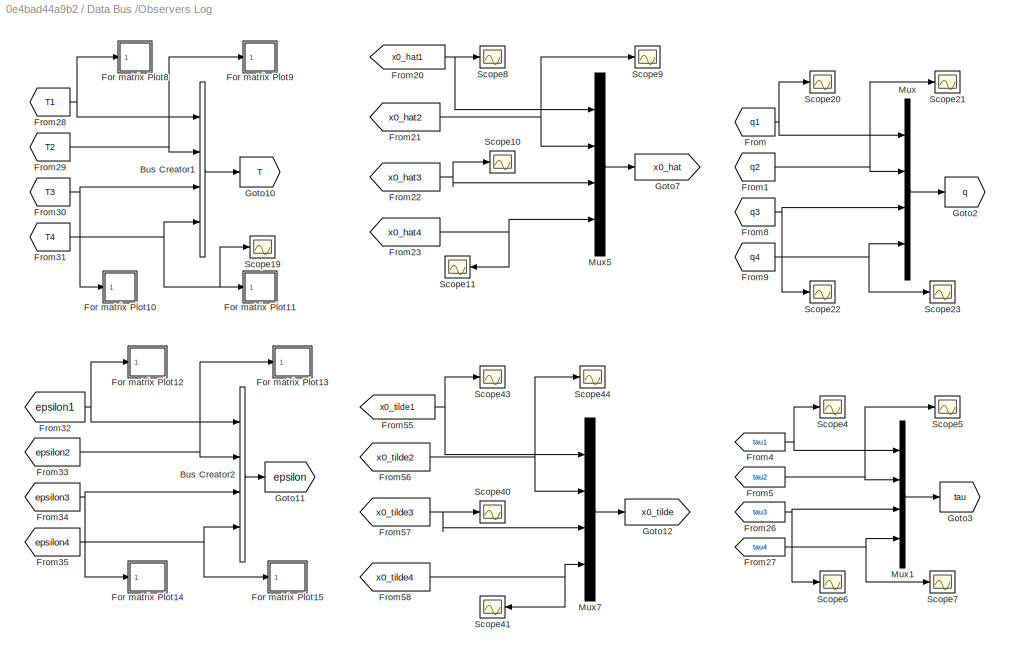
BLOCK [SubSystem] Data Bus /Observers Log
  Ports = []
  RequestExecContextInheritance = off
BLOCK [BusCreator] Data Bus /Observers Log/Bus Creator1
  DisplayOption = bar
  InheritFromInputs = on
  Inputs = 4
  OutDataTypeStr = Bus: T_bus
  Ports = [4, 1]
BLOCK [BusCreator] Data Bus /Observers Log/Bus Creator2
  DisplayOption = bar
  InheritFromInputs = on
  Inputs = 4
  OutDataTypeStr = Bus: epsilon_bus
  Ports = [4, 1]
BLOCK [SubSystem] Data Bus /Observers Log/For matrix Plot10
  Ports = [1]
  RequestExecContextInheritance = off
BLOCK [SubSystem] Data Bus /Observers Log/For matrix Plot10/MATLAB Function
  ErrorFcn = Stateflow.Translate.translate
  PermitHierarchicalResolution = ExplicitOnly
  Ports = [1, 1]
  RequestExecContextInheritance = off
  SFBlockType = MATLAB Function
  TreatAsAtomicUnit = on
BLOCK [Demux] Data Bus /Observers Log/For matrix Plot10/MATLAB Function/ Demux 
  Outputs = 1
  Ports = [1, 1]
BLOCK [S-Function] Data Bus /Observers Log/For matrix Plot10/MATLAB Function/ SFunction 
  EnableBusSupport = on
  FunctionName = sf_sfun
  PortCounts = [1 2]
  Ports = [1, 2]
  SFcnIsStateOwnerBlock = off
  SFunctionDeploymentMode = off
  Tag = Stateflow S-Function CAMFC2_Quad_New_02_Payload_01 66
BLOCK [Terminator] Data Bus /Observers Log/For matrix Plot10/MATLAB Function/ Terminator 
BLOCK [Inport] Data Bus /Observers Log/For matrix Plot10/MATLAB Function/u
  IconDisplay = Port number
BLOCK [Outport] Data Bus /Observers Log/For matrix Plot10/MATLAB Function/y
  IconDisplay = Port number
BLOCK [Inport] Data Bus /Observers Log/For matrix Plot10/T
  IconDisplay = Port number
BLOCK [ToWorkspace] Data Bus /Observers Log/For matrix Plot10/To Workspace
  MaxDataPoints = inf
  Ports = [1]
  SampleTime = -1
  SaveFormat = Structure With Time
  VariableName = T3
BLOCK [SubSystem] Data Bus /Observers Log/For matrix Plot11
  Ports = [1]
  RequestExecContextInheritance = off
BLOCK [SubSystem] Data Bus /Observers Log/For matrix Plot11/MATLAB Function
  ErrorFcn = Stateflow.Translate.translate
  PermitHierarchicalResolution = ExplicitOnly
  Ports = [1, 1]
  RequestExecContextInheritance = off
  SFBlockType = MATLAB Function
  TreatAsAtomicUnit = on
BLOCK [Demux] Data Bus /Observers Log/For matrix Plot11/MATLAB Function/ Demux 
  Outputs = 1
  Ports = [1, 1]
BLOCK [S-Function] Data Bus /Observers Log/For matrix Plot11/MATLAB Function/ SFunction 
  EnableBusSupport = on
  FunctionName = sf_sfun
  PortCounts = [1 2]
  Ports = [1, 2]
  SFcnIsStateOwnerBlock = off
  SFunctionDeploymentMode = off
  Tag = Stateflow S-Function CAMFC2_Quad_New_02_Payload_01 67
BLOCK [Terminator] Data Bus /Observers Log/For matrix Plot11/MATLAB Function/ Terminator 
BLOCK [Inport] Data Bus /Observers Log/For matrix Plot11/MATLAB Function/u
  IconDisplay = Port number
BLOCK [Outport] Data Bus /Observers Log/For matrix Plot11/MATLAB Function/y
  IconDisplay = Port number
BLOCK [Inport] Data Bus /Observers Log/For matrix Plot11/T
  IconDisplay = Port number
BLOCK [ToWorkspace] Data Bus /Observers Log/For matrix Plot11/To Workspace
  MaxDataPoints = inf
  Ports = [1]
  SampleTime = -1
  SaveFormat = Structure With Time
  VariableName = T4
BLOCK [SubSystem] Data Bus /Observers Log/For matrix Plot12
  Ports = [1]
  RequestExecContextInheritance = off
BLOCK [SubSystem] Data Bus /Observers Log/For matrix Plot12/MATLAB Function
  ErrorFcn = Stateflow.Translate.translate
  PermitHierarchicalResolution = ExplicitOnly
  Ports = [1, 1]
  RequestExecContextInheritance = off
  SFBlockType = MATLAB Function
  TreatAsAtomicUnit = on
BLOCK [Demux] Data Bus /Observers Log/For matrix Plot12/MATLAB Function/ Demux 
  Outputs = 1
  Ports = [1, 1]
BLOCK [S-Function] Data Bus /Observers Log/For matrix Plot12/MATLAB Function/ SFunction 
  EnableBusSupport = on
  FunctionName = sf_sfun
  PortCounts = [1 2]
  Ports = [1, 2]
  SFcnIsStateOwnerBlock = off
  SFunctionDeploymentMode = off
  Tag = Stateflow S-Function CAMFC2_Quad_New_02_Payload_01 68
BLOCK [Terminator] Data Bus /Observers Log/For matrix Plot12/MATLAB Function/ Terminator 
BLOCK [Inport] Data Bus /Observers Log/For matrix Plot12/MATLAB Function/u
  IconDisplay = Port number
BLOCK [Outport] Data Bus /Observers Log/For matrix Plot12/MATLAB Function/y
  IconDisplay = Port number
BLOCK [ToWorkspace] Data Bus /Observers Log/For matrix Plot12/To Workspace
  MaxDataPoints = inf
  Ports = [1]
  SampleTime = -1
  SaveFormat = Structure With Time
  VariableName = epsilon1
BLOCK [Inport] Data Bus /Observers Log/For matrix Plot12/epsilon
  IconDisplay = Port number
BLOCK [SubSystem] Data Bus /Observers Log/For matrix Plot13
  Ports = [1]
  RequestExecContextInheritance = off
BLOCK [SubSystem] Data Bus /Observers Log/For matrix Plot13/MATLAB Function
  ErrorFcn = Stateflow.Translate.translate
  PermitHierarchicalResolution = ExplicitOnly
  Ports = [1, 1]
  RequestExecContextInheritance = off
  SFBlockType = MATLAB Function
  TreatAsAtomicUnit = on
BLOCK [Demux] Data Bus /Observers Log/For matrix Plot13/MATLAB Function/ Demux 
  Outputs = 1
  Ports = [1, 1]
BLOCK [S-Function] Data Bus /Observers Log/For matrix Plot13/MATLAB Function/ SFunction 
  EnableBusSupport = on
  FunctionName = sf_sfun
  PortCounts = [1 2]
  Ports = [1, 2]
  SFcnIsStateOwnerBlock = off
  SFunctionDeploymentMode = off
  Tag = Stateflow S-Function CAMFC2_Quad_New_02_Payload_01 70
BLOCK [Terminator] Data Bus /Observers Log/For matrix Plot13/MATLAB Function/ Terminator 
BLOCK [Inport] Data Bus /Observers Log/For matrix Plot13/MATLAB Function/u
  IconDisplay = Port number
BLOCK [Outport] Data Bus /Observers Log/For matrix Plot13/MATLAB Function/y
  IconDisplay = Port number
BLOCK [ToWorkspace] Data Bus /Observers Log/For matrix Plot13/To Workspace
  MaxDataPoints = inf
  Ports = [1]
  SampleTime = -1
  SaveFormat = Structure With Time
  VariableName = epsilon2
BLOCK [Inport] Data Bus /Observers Log/For matrix Plot13/epsilon
  IconDisplay = Port number
BLOCK [SubSystem] Data Bus /Observers Log/For matrix Plot14
  Ports = [1]
  RequestExecContextInheritance = off
BLOCK [SubSystem] Data Bus /Observers Log/For matrix Plot14/MATLAB Function
  ErrorFcn = Stateflow.Translate.translate
  PermitHierarchicalResolution = ExplicitOnly
  Ports = [1, 1]
  RequestExecContextInheritance = off
  SFBlockType = MATLAB Function
  TreatAsAtomicUnit = on
BLOCK [Demux] Data Bus /Observers Log/For matrix Plot14/MATLAB Function/ Demux 
  Outputs = 1
  Ports = [1, 1]
BLOCK [S-Function] Data Bus /Observers Log/For matrix Plot14/MATLAB Function/ SFunction 
  EnableBusSupport = on
  FunctionName = sf_sfun
  PortCounts = [1 2]
  Ports = [1, 2]
  SFcnIsStateOwnerBlock = off
  SFunctionDeploymentMode = off
  Tag = Stateflow S-Function CAMFC2_Quad_New_02_Payload_01 73
BLOCK [Terminator] Data Bus /Observers Log/For matrix Plot14/MATLAB Function/ Terminator 
BLOCK [Inport] Data Bus /Observers Log/For matrix Plot14/MATLAB Function/u
  IconDisplay = Port number
BLOCK [Outport] Data Bus /Observers Log/For matrix Plot14/MATLAB Function/y
  IconDisplay = Port number
BLOCK [ToWorkspace] Data Bus /Observers Log/For matrix Plot14/To Workspace
  MaxDataPoints = inf
  Ports = [1]
  SampleTime = -1
  SaveFormat = Structure With Time
  VariableName = epsilon3
BLOCK [Inport] Data Bus /Observers Log/For matrix Plot14/epsilon
  IconDisplay = Port number
BLOCK [SubSystem] Data Bus /Observers Log/For matrix Plot15
  Ports = [1]
  RequestExecContextInheritance = off
BLOCK [SubSystem] Data Bus /Observers Log/For matrix Plot15/MATLAB Function
  ErrorFcn = Stateflow.Translate.translate
  PermitHierarchicalResolution = ExplicitOnly
  Ports = [1, 1]
  RequestExecContextInheritance = off
  SFBlockType = MATLAB Function
  TreatAsAtomicUnit = on
BLOCK [Demux] Data Bus /Observers Log/For matrix Plot15/MATLAB Function/ Demux 
  Outputs = 1
  Ports = [1, 1]
BLOCK [S-Function] Data Bus /Observers Log/For matrix Plot15/MATLAB Function/ SFunction 
  EnableBusSupport = on
  FunctionName = sf_sfun
  PortCounts = [1 2]
  Ports = [1, 2]
  SFcnIsStateOwnerBlock = off
  SFunctionDeploymentMode = off
  Tag = Stateflow S-Function CAMFC2_Quad_New_02_Payload_01 74
BLOCK [Terminator] Data Bus /Observers Log/For matrix Plot15/MATLAB Function/ Terminator 
BLOCK [Inport] Data Bus /Observers Log/For matrix Plot15/MATLAB Function/u
  IconDisplay = Port number
BLOCK [Outport] Data Bus /Observers Log/For matrix Plot15/MATLAB Function/y
  IconDisplay = Port number
BLOCK [ToWorkspace] Data Bus /Observers Log/For matrix Plot15/To Workspace
  MaxDataPoints = inf
  Ports = [1]
  SampleTime = -1
  SaveFormat = Structure With Time
  VariableName = epsilon4
BLOCK [Inport] Data Bus /Observers Log/For matrix Plot15/epsilon
  IconDisplay = Port number
BLOCK [SubSystem] Data Bus /Observers Log/For matrix Plot8
  Ports = [1]
  RequestExecContextInheritance = off
BLOCK [SubSystem] Data Bus /Observers Log/For matrix Plot8/MATLAB Function
  ErrorFcn = Stateflow.Translate.translate
  PermitHierarchicalResolution = ExplicitOnly
  Ports = [1, 1]
  RequestExecContextInheritance = off
  SFBlockType = MATLAB Function
  TreatAsAtomicUnit = on
BLOCK [Demux] Data Bus /Observers Log/For matrix Plot8/MATLAB Function/ Demux 
  Outputs = 1
  Ports = [1, 1]
BLOCK [S-Function] Data Bus /Observers Log/For matrix Plot8/MATLAB Function/ SFunction 
  EnableBusSupport = on
  FunctionName = sf_sfun
  PortCounts = [1 2]
  Ports = [1, 2]
  SFcnIsStateOwnerBlock = off
  SFunctionDeploymentMode = off
  Tag = Stateflow S-Function CAMFC2_Quad_New_02_Payload_01 61
BLOCK [Terminator] Data Bus /Observers Log/For matrix Plot8/MATLAB Function/ Terminator 
BLOCK [Inport] Data Bus /Observers Log/For matrix Plot8/MATLAB Function/u
  IconDisplay = Port number
BLOCK [Outport] Data Bus /Observers Log/For matrix Plot8/MATLAB Function/y
  IconDisplay = Port number
BLOCK [Inport] Data Bus /Observers Log/For matrix Plot8/T
  IconDisplay = Port number
BLOCK [ToWorkspace] Data Bus /Observers Log/For matrix Plot8/To Workspace
  MaxDataPoints = inf
  Ports = [1]
  SampleTime = -1
  SaveFormat = Structure With Time
  VariableName = T1
BLOCK [SubSystem] Data Bus /Observers Log/For matrix Plot9
  Ports = [1]
  RequestExecContextInheritance = off
BLOCK [SubSystem] Data Bus /Observers Log/For matrix Plot9/MATLAB Function
  ErrorFcn = Stateflow.Translate.translate
  PermitHierarchicalResolution = ExplicitOnly
  Ports = [1, 1]
  RequestExecContextInheritance = off
  SFBlockType = MATLAB Function
  TreatAsAtomicUnit = on
BLOCK [Demux] Data Bus /Observers Log/For matrix Plot9/MATLAB Function/ Demux 
  Outputs = 1
  Ports = [1, 1]
BLOCK [S-Function] Data Bus /Observers Log/For matrix Plot9/MATLAB Function/ SFunction 
  EnableBusSupport = on
  FunctionName = sf_sfun
  PortCounts = [1 2]
  Ports = [1, 2]
  SFcnIsStateOwnerBlock = off
  SFunctionDeploymentMode = off
  Tag = Stateflow S-Function CAMFC2_Quad_New_02_Payload_01 62
BLOCK [Terminator] Data Bus /Observers Log/For matrix Plot9/MATLAB Function/ Terminator 
BLOCK [Inport] Data Bus /Observers Log/For matrix Plot9/MATLAB Function/u
  IconDisplay = Port number
BLOCK [Outport] Data Bus /Observers Log/For matrix Plot9/MATLAB Function/y
  IconDisplay = Port number
BLOCK [Inport] Data Bus /Observers Log/For matrix Plot9/T
  IconDisplay = Port number
BLOCK [ToWorkspace] Data Bus /Observers Log/For matrix Plot9/To Workspace
  MaxDataPoints = inf
  Ports = [1]
  SampleTime = -1
  SaveFormat = Structure With Time
  VariableName = T2
BLOCK [From] Data Bus /Observers Log/From
  GotoTag = q1
  TagVisibility = global
BLOCK [From] Data Bus /Observers Log/From1
  GotoTag = q2
  TagVisibility = global
BLOCK [From] Data Bus /Observers Log/From20
  GotoTag = x0_hat1
  TagVisibility = global
BLOCK [From] Data Bus /Observers Log/From21
  GotoTag = x0_hat2
  TagVisibility = global
BLOCK [From] Data Bus /Observers Log/From22
  GotoTag = x0_hat3
  TagVisibility = global
BLOCK [From] Data Bus /Observers Log/From23
  GotoTag = x0_hat4
  TagVisibility = global
BLOCK [From] Data Bus /Observers Log/From26
  GotoTag = tau3
  TagVisibility = global
BLOCK [From] Data Bus /Observers Log/From27
  GotoTag = tau4
  TagVisibility = global
BLOCK [From] Data Bus /Observers Log/From28
  GotoTag = T1
  TagVisibility = global
BLOCK [From] Data Bus /Observers Log/From29
  GotoTag = T2
  TagVisibility = global
BLOCK [From] Data Bus /Observers Log/From30
  GotoTag = T3
  TagVisibility = global
BLOCK [From] Data Bus /Observers Log/From31
  GotoTag = T4
  TagVisibility = global
BLOCK [From] Data Bus /Observers Log/From32
  GotoTag = epsilon1
  TagVisibility = global
BLOCK [From] Data Bus /Observers Log/From33
  GotoTag = epsilon2
  TagVisibility = global
BLOCK [From] Data Bus /Observers Log/From34
  GotoTag = epsilon3
  TagVisibility = global
BLOCK [From] Data Bus /Observers Log/From35
  GotoTag = epsilon4
  TagVisibility = global
BLOCK [From] Data Bus /Observers Log/From4
  GotoTag = tau1
  TagVisibility = global
BLOCK [From] Data Bus /Observers Log/From5
  GotoTag = tau2
  TagVisibility = global
BLOCK [From] Data Bus /Observers Log/From55
  GotoTag = x0_tilde1
  TagVisibility = global
BLOCK [From] Data Bus /Observers Log/From56
  GotoTag = x0_tilde2
  TagVisibility = global
BLOCK [From] Data Bus /Observers Log/From57
  GotoTag = x0_tilde3
  TagVisibility = global
BLOCK [From] Data Bus /Observers Log/From58
  GotoTag = x0_tilde4
  TagVisibility = global
BLOCK [From] Data Bus /Observers Log/From8
  GotoTag = q3
  TagVisibility = global
BLOCK [From] Data Bus /Observers Log/From9
  GotoTag = q4
  TagVisibility = global
BLOCK [Goto] Data Bus /Observers Log/Goto10
  GotoTag = T
  TagVisibility = global
BLOCK [Goto] Data Bus /Observers Log/Goto11
  GotoTag = epsilon
  TagVisibility = global
BLOCK [Goto] Data Bus /Observers Log/Goto12
  GotoTag = x0_tilde
  TagVisibility = global
BLOCK [Goto] Data Bus /Observers Log/Goto2
  GotoTag = q
  TagVisibility = global
BLOCK [Goto] Data Bus /Observers Log/Goto3
  GotoTag = tau
  TagVisibility = global
BLOCK [Goto] Data Bus /Observers Log/Goto7
  GotoTag = x0_hat
  TagVisibility = global
BLOCK [Mux] Data Bus /Observers Log/Mux
  DisplayOption = bar
  Ports = [4, 1]
BLOCK [Mux] Data Bus /Observers Log/Mux1
  DisplayOption = bar
  Ports = [4, 1]
BLOCK [Mux] Data Bus /Observers Log/Mux5
  DisplayOption = bar
  Ports = [4, 1]
BLOCK [Mux] Data Bus /Observers Log/Mux7
  DisplayOption = bar
  Ports = [4, 1]
BLOCK [Scope] Data Bus /Observers Log/Scope10
  Floating = off
  NumInputPorts = 1
  Ports = [1]
  ScopeSpecificationString = Simulink.scopes.TimeScopeBlockCfg('CurrentConfiguration', extmgr.ConfigurationSet(extmgr.Configuration('Core','General UI',true),extmgr.Configuration('Core','Source UI',true),extmgr.Configuration('Sources','WiredSimulink',true,'DataLogging',true,'DataLoggingVariableName','x0_hat3','DataLoggingSaveFormat','StructureWithTime','DataLoggingDecimation','1','DataLoggingDecimateData',true),extmgr.Configu...<+1723ch>
BLOCK [Scope] Data Bus /Observers Log/Scope11
  Floating = off
  NumInputPorts = 1
  Ports = [1]
  ScopeSpecificationString = Simulink.scopes.TimeScopeBlockCfg('CurrentConfiguration', extmgr.ConfigurationSet(extmgr.Configuration('Core','General UI',true),extmgr.Configuration('Core','Source UI',true),extmgr.Configuration('Sources','WiredSimulink',true,'DataLogging',true,'DataLoggingVariableName','x0_hat4','DataLoggingSaveFormat','StructureWithTime','DataLoggingDecimation','1','DataLoggingDecimateData',true),extmgr.Configu...<+1723ch>
BLOCK [Scope] Data Bus /Observers Log/Scope19
  Floating = off
  NumInputPorts = 1
  Ports = [1]
  ScopeSpecificationString = Simulink.scopes.TimeScopeBlockCfg('CurrentConfiguration', extmgr.ConfigurationSet(extmgr.Configuration('Core','General UI',true),extmgr.Configuration('Core','Source UI',true),extmgr.Configuration('Sources','WiredSimulink',true,'DataLoggingVariableName','ScopeData1','DataLoggingSaveFormat','StructureWithTime','DataLoggingDecimation','1','DataLoggingDecimateData',true),extmgr.Configuration('Visuals'...<+1952ch>
BLOCK [Scope] Data Bus /Observers Log/Scope20
  Floating = off
  NumInputPorts = 1
  Ports = [1]
  ScopeSpecificationString = Simulink.scopes.TimeScopeBlockCfg('CurrentConfiguration', extmgr.ConfigurationSet(extmgr.Configuration('Core','General UI',true),extmgr.Configuration('Core','Source UI',true),extmgr.Configuration('Sources','WiredSimulink',true,'DataLogging',true,'DataLoggingVariableName','q1','DataLoggingSaveFormat','StructureWithTime','DataLoggingDecimation','1','DataLoggingDecimateData',true),extmgr.Configuratio...<+1759ch>
BLOCK [Scope] Data Bus /Observers Log/Scope21
  Floating = off
  NumInputPorts = 1
  Ports = [1]
  ScopeSpecificationString = Simulink.scopes.TimeScopeBlockCfg('CurrentConfiguration', extmgr.ConfigurationSet(extmgr.Configuration('Core','General UI',true),extmgr.Configuration('Core','Source UI',true),extmgr.Configuration('Sources','WiredSimulink',true,'DataLogging',true,'DataLoggingVariableName','q2','DataLoggingSaveFormat','StructureWithTime','DataLoggingDecimation','1','DataLoggingDecimateData',true),extmgr.Configuratio...<+1761ch>
BLOCK [Scope] Data Bus /Observers Log/Scope22
  Floating = off
  NumInputPorts = 1
  Ports = [1]
  ScopeSpecificationString = Simulink.scopes.TimeScopeBlockCfg('CurrentConfiguration', extmgr.ConfigurationSet(extmgr.Configuration('Core','General UI',true),extmgr.Configuration('Core','Source UI',true),extmgr.Configuration('Sources','WiredSimulink',true,'DataLogging',true,'DataLoggingVariableName','q3','DataLoggingSaveFormat','StructureWithTime','DataLoggingDecimation','1','DataLoggingDecimateData',true),extmgr.Configuratio...<+1763ch>
BLOCK [Scope] Data Bus /Observers Log/Scope23
  Floating = off
  NumInputPorts = 1
  Ports = [1]
  ScopeSpecificationString = Simulink.scopes.TimeScopeBlockCfg('CurrentConfiguration', extmgr.ConfigurationSet(extmgr.Configuration('Core','General UI',true),extmgr.Configuration('Core','Source UI',true),extmgr.Configuration('Sources','WiredSimulink',true,'DataLogging',true,'DataLoggingVariableName','q4','DataLoggingSaveFormat','StructureWithTime','DataLoggingDecimation','1','DataLoggingDecimateData',true),extmgr.Configuratio...<+1763ch>
BLOCK [Scope] Data Bus /Observers Log/Scope4
  Floating = off
  NumInputPorts = 1
  Ports = [1]
  ScopeSpecificationString = Simulink.scopes.TimeScopeBlockCfg('CurrentConfiguration', extmgr.ConfigurationSet(extmgr.Configuration('Core','General UI',true),extmgr.Configuration('Core','Source UI',true),extmgr.Configuration('Sources','WiredSimulink',true,'DataLogging',true,'DataLoggingVariableName','ScopeData13','DataLoggingSaveFormat','StructureWithTime','DataLoggingDecimation','1','DataLoggingDecimateData',true),extmgr.Con...<+1672ch>
BLOCK [Scope] Data Bus /Observers Log/Scope40
  Floating = off
  NumInputPorts = 1
  Ports = [1]
  ScopeSpecificationString = Simulink.scopes.TimeScopeBlockCfg('CurrentConfiguration', extmgr.ConfigurationSet(extmgr.Configuration('Core','General UI',true),extmgr.Configuration('Core','Source UI',true),extmgr.Configuration('Sources','WiredSimulink',true,'DataLogging',true,'DataLoggingVariableName','ScopeData1','DataLoggingSaveFormat','StructureWithTime','DataLoggingDecimation','1','DataLoggingDecimateData',true),extmgr.Conf...<+1702ch>
BLOCK [Scope] Data Bus /Observers Log/Scope41
  Floating = off
  NumInputPorts = 1
  Ports = [1]
  ScopeSpecificationString = Simulink.scopes.TimeScopeBlockCfg('CurrentConfiguration', extmgr.ConfigurationSet(extmgr.Configuration('Core','General UI',true),extmgr.Configuration('Core','Source UI',true),extmgr.Configuration('Sources','WiredSimulink',true,'DataLogging',true,'DataLoggingVariableName','ScopeData2','DataLoggingSaveFormat','StructureWithTime','DataLoggingDecimation','1','DataLoggingDecimateData',true),extmgr.Conf...<+1679ch>
BLOCK [Scope] Data Bus /Observers Log/Scope43
  Floating = off
  NumInputPorts = 1
  Ports = [1]
  ScopeSpecificationString = Simulink.scopes.TimeScopeBlockCfg('CurrentConfiguration', extmgr.ConfigurationSet(extmgr.Configuration('Core','General UI',true),extmgr.Configuration('Core','Source UI',true),extmgr.Configuration('Sources','WiredSimulink',true,'DataLogging',true,'DataLoggingVariableName','ScopeData3','DataLoggingSaveFormat','StructureWithTime','DataLoggingDecimation','1','DataLoggingDecimateData',true),extmgr.Conf...<+1714ch>
BLOCK [Scope] Data Bus /Observers Log/Scope44
  Floating = off
  NumInputPorts = 1
  Ports = [1]
  ScopeSpecificationString = Simulink.scopes.TimeScopeBlockCfg('CurrentConfiguration', extmgr.ConfigurationSet(extmgr.Configuration('Core','General UI',true),extmgr.Configuration('Core','Source UI',true),extmgr.Configuration('Sources','WiredSimulink',true,'DataLogging',true,'DataLoggingVariableName','ScopeData4','DataLoggingSaveFormat','StructureWithTime','DataLoggingDecimation','1','DataLoggingDecimateData',true),extmgr.Conf...<+1677ch>
BLOCK [Scope] Data Bus /Observers Log/Scope5
  Floating = off
  NumInputPorts = 1
  Ports = [1]
  ScopeSpecificationString = Simulink.scopes.TimeScopeBlockCfg('CurrentConfiguration', extmgr.ConfigurationSet(extmgr.Configuration('Core','General UI',true),extmgr.Configuration('Core','Source UI',true),extmgr.Configuration('Sources','WiredSimulink',true,'DataLogging',true,'DataLoggingVariableName','ScopeData14','DataLoggingSaveFormat','StructureWithTime','DataLoggingDecimation','1','DataLoggingDecimateData',true),extmgr.Con...<+1674ch>
BLOCK [Scope] Data Bus /Observers Log/Scope6
  Floating = off
  NumInputPorts = 1
  Ports = [1]
  ScopeSpecificationString = Simulink.scopes.TimeScopeBlockCfg('CurrentConfiguration', extmgr.ConfigurationSet(extmgr.Configuration('Core','General UI',true),extmgr.Configuration('Core','Source UI',true),extmgr.Configuration('Sources','WiredSimulink',true,'DataLogging',true,'DataLoggingVariableName','ScopeData15','DataLoggingSaveFormat','StructureWithTime','DataLoggingDecimation','1','DataLoggingDecimateData',true),extmgr.Con...<+897ch>
BLOCK [Scope] Data Bus /Observers Log/Scope7
  Floating = off
  NumInputPorts = 1
  Ports = [1]
  ScopeSpecificationString = Simulink.scopes.TimeScopeBlockCfg('CurrentConfiguration', extmgr.ConfigurationSet(extmgr.Configuration('Core','General UI',true),extmgr.Configuration('Core','Source UI',true),extmgr.Configuration('Sources','WiredSimulink',true,'DataLogging',true,'DataLoggingVariableName','ScopeData16','DataLoggingSaveFormat','StructureWithTime','DataLoggingDecimation','1','DataLoggingDecimateData',true),extmgr.Con...<+897ch>
BLOCK [Scope] Data Bus /Observers Log/Scope8
  Floating = off
  NumInputPorts = 1
  Ports = [1]
  ScopeSpecificationString = Simulink.scopes.TimeScopeBlockCfg('CurrentConfiguration', extmgr.ConfigurationSet(extmgr.Configuration('Core','General UI',true),extmgr.Configuration('Core','Source UI',true),extmgr.Configuration('Sources','WiredSimulink',true,'DataLogging',true,'DataLoggingVariableName','x0_hat1','DataLoggingSaveFormat','StructureWithTime','DataLoggingDecimation','1','DataLoggingDecimateData',true),extmgr.Configu...<+1723ch>
BLOCK [Scope] Data Bus /Observers Log/Scope9
  Floating = off
  NumInputPorts = 1
  Ports = [1]
  ScopeSpecificationString = Simulink.scopes.TimeScopeBlockCfg('CurrentConfiguration', extmgr.ConfigurationSet(extmgr.Configuration('Core','General UI',true),extmgr.Configuration('Core','Source UI',true),extmgr.Configuration('Sources','WiredSimulink',true,'DataLogging',true,'DataLoggingVariableName','x0_hat2','DataLoggingSaveFormat','StructureWithTime','DataLoggingDecimation','1','DataLoggingDecimateData',true),extmgr.Configu...<+1725ch>
BLOCK [SubSystem] Data Bus /Reference Trajectory
  Ports = [0, 2]
  RequestExecContextInheritance = off
BLOCK [Abs] Data Bus /Reference Trajectory/Abs
  SaturateOnIntegerOverflow = off
BLOCK [Abs] Data Bus /Reference Trajectory/Abs1
  SaturateOnIntegerOverflow = off
BLOCK [Clock] Data Bus /Reference Trajectory/Clock1
BLOCK [Constant] Data Bus /Reference Trajectory/Constant1
BLOCK [Constant] Data Bus /Reference Trajectory/Constant2
  Value = r_formY
BLOCK [Constant] Data Bus /Reference Trajectory/Constant5
BLOCK [Constant] Data Bus /Reference Trajectory/Constant7
  Value = r_formZ
BLOCK [Constant] Data Bus /Reference Trajectory/Constant8
  Value = r_formX
BLOCK [Constant] Data Bus /Reference Trajectory/Desired Position4
  Value = 0
  VectorParams1D = off
BLOCK [SubSystem] Data Bus /Reference Trajectory/Differentiator0
  Ports = [1, 1]
  RequestExecContextInheritance = off
BLOCK [Outport] Data Bus /Reference Trajectory/Differentiator0/Dx_d
  IconDisplay = Port number
BLOCK [Integrator] Data Bus /Reference Trajectory/Differentiator0/Integrator
  InitialCondition = zeros(n0,1)
  Ports = [1, 1]
BLOCK [Integrator] Data Bus /Reference Trajectory/Differentiator0/Integrator1
  InitialCondition = zeros(n0,1)
  Ports = [1, 1]
BLOCK [SubSystem] Data Bus /Reference Trajectory/Differentiator0/Sliding differentiator
  ErrorFcn = Stateflow.Translate.translate
  PermitHierarchicalResolution = ExplicitOnly
  Ports = [2, 1]
  RequestExecContextInheritance = off
  SFBlockType = MATLAB Function
  TreatAsAtomicUnit = on
BLOCK [Demux] Data Bus /Reference Trajectory/Differentiator0/Sliding differentiator/ Demux 
  Outputs = 1
  Ports = [1, 1]
BLOCK [S-Function] Data Bus /Reference Trajectory/Differentiator0/Sliding differentiator/ SFunction 
  EnableBusSupport = on
  FunctionName = sf_sfun
  Parameters = alpha,k1
  PortCounts = [2 2]
  Ports = [2, 2]
  SFcnIsStateOwnerBlock = off
  SFunctionDeploymentMode = off
  Tag = Stateflow S-Function CAMFC2_Quad_New_02_Payload_01 53
BLOCK [Terminator] Data Bus /Reference Trajectory/Differentiator0/Sliding differentiator/ Terminator 
BLOCK [Inport] Data Bus /Reference Trajectory/Differentiator0/Sliding differentiator/e
  IconDisplay = Port number
  Port = 2
BLOCK [Outport] Data Bus /Reference Trajectory/Differentiator0/Sliding differentiator/u
  IconDisplay = Port number
BLOCK [Inport] Data Bus /Reference Trajectory/Differentiator0/Sliding differentiator/u1
  IconDisplay = Port number
BLOCK [SubSystem] Data Bus /Reference Trajectory/Differentiator0/Sliding differentiator1
  ErrorFcn = Stateflow.Translate.translate
  PermitHierarchicalResolution = ExplicitOnly
  Ports = [1, 1]
  RequestExecContextInheritance = off
  SFBlockType = MATLAB Function
  TreatAsAtomicUnit = on
BLOCK [Demux] Data Bus /Reference Trajectory/Differentiator0/Sliding differentiator1/ Demux 
  Outputs = 1
  Ports = [1, 1]
BLOCK [S-Function] Data Bus /Reference Trajectory/Differentiator0/Sliding differentiator1/ SFunction 
  EnableBusSupport = on
  FunctionName = sf_sfun
  Parameters = alpha,k2
  PortCounts = [1 2]
  Ports = [1, 2]
  SFcnIsStateOwnerBlock = off
  SFunctionDeploymentMode = off
  Tag = Stateflow S-Function CAMFC2_Quad_New_02_Payload_01 75
BLOCK [Terminator] Data Bus /Reference Trajectory/Differentiator0/Sliding differentiator1/ Terminator 
BLOCK [Outport] Data Bus /Reference Trajectory/Differentiator0/Sliding differentiator1/Du1
  IconDisplay = Port number
BLOCK [Inport] Data Bus /Reference Trajectory/Differentiator0/Sliding differentiator1/e
  IconDisplay = Port number
BLOCK [Sum] Data Bus /Reference Trajectory/Differentiator0/Sum
  IconShape = round
  InputSameDT = off
  Inputs = |-+
  OutDataTypeStr = Inherit: Inherit via internal rule
  Ports = [2, 1]
  SaturateOnIntegerOverflow = off
BLOCK [Inport] Data Bus /Reference Trajectory/Differentiator0/x_d
  IconDisplay = Port number
BLOCK [Gain] Data Bus /Reference Trajectory/Gain2
  Gain = 0.2
  OutDataTypeStr = Inherit: Inherit via internal rule
  ParamDataTypeStr = Inherit: Inherit via internal rule
  SaturateOnIntegerOverflow = off
BLOCK [Goto] Data Bus /Reference Trajectory/Goto
  GotoTag = chi
  TagVisibility = global
BLOCK [SubSystem] Data Bus /Reference Trajectory/MATLAB Function
  ErrorFcn = Stateflow.Translate.translate
  PermitHierarchicalResolution = ExplicitOnly
  Ports = [3, 1]
  RequestExecContextInheritance = off
  SFBlockType = MATLAB Function
  TreatAsAtomicUnit = on
BLOCK [Demux] Data Bus /Reference Trajectory/MATLAB Function/ Demux 
  Outputs = 1
  Ports = [1, 1]
BLOCK [S-Function] Data Bus /Reference Trajectory/MATLAB Function/ SFunction 
  EnableBusSupport = on
  FunctionName = sf_sfun
  PortCounts = [3 2]
  Ports = [3, 2]
  SFcnIsStateOwnerBlock = off
  SFunctionDeploymentMode = off
  Tag = Stateflow S-Function CAMFC2_Quad_New_02_Payload_01 76
BLOCK [Terminator] Data Bus /Reference Trajectory/MATLAB Function/ Terminator 
BLOCK [Outport] Data Bus /Reference Trajectory/MATLAB Function/chi
  IconDisplay = Port number
BLOCK [Inport] Data Bus /Reference Trajectory/MATLAB Function/r_formX_inp
  IconDisplay = Port number
  Port = 2
BLOCK [Inport] Data Bus /Reference Trajectory/MATLAB Function/r_formY_inp
  IconDisplay = Port number
  Port = 3
BLOCK [Inport] Data Bus /Reference Trajectory/MATLAB Function/r_formZ_inp
  IconDisplay = Port number
BLOCK [Mux] Data Bus /Reference Trajectory/Mux
  DisplayOption = bar
  Inputs = 3
  Ports = [3, 1]
BLOCK [Scope] Data Bus /Reference Trajectory/Scope
  Floating = off
  NumInputPorts = 1
  Ports = [1]
  ScopeSpecificationString = Simulink.scopes.TimeScopeBlockCfg('CurrentConfiguration', extmgr.ConfigurationSet(extmgr.Configuration('Core','General UI',true),extmgr.Configuration('Core','Source UI',true),extmgr.Configuration('Sources','WiredSimulink',true,'DataLoggingVariableName','ScopeData3'),extmgr.Configuration('Visuals','Time Domain',true,'SerializedDisplays',{struct('MinYLimReal','-1.625','MaxYLimReal','4.625','YLabelRe...<+1722ch>
BLOCK [Scope] Data Bus /Reference Trajectory/Scope1
  Floating = off
  NumInputPorts = 3
  Ports = [3]
  ScopeSpecificationString = Simulink.scopes.TimeScopeBlockCfg('CurrentConfiguration', extmgr.ConfigurationSet(extmgr.Configuration('Core','General UI',true),extmgr.Configuration('Core','Source UI',true),extmgr.Configuration('Sources','WiredSimulink',true,'DataLogging',true,'DataLoggingVariableName','Ref','DataLoggingSaveFormat','StructureWithTime','DataLoggingDecimation','1','DataLoggingDecimateData',true),extmgr.Configurati...<+3066ch>
BLOCK [Sin] Data Bus /Reference Trajectory/Sine Wave2
  Amplitude = 3
  Bias = -3
  Frequency = 0.1
  Phase = pi/2
  Ports = [0, 1]
  SampleTime = 0
BLOCK [Sin] Data Bus /Reference Trajectory/Sine Wave3
  Amplitude = 3
  Frequency = 0.1
  Ports = [0, 1]
  SampleTime = 0
BLOCK [SubSystem] Data Bus /Reference Trajectory/Subsystem
  Ports = [0, 3]
  RequestExecContextInheritance = off
BLOCK [Clock] Data Bus /Reference Trajectory/Subsystem/Clock1
BLOCK [Constant] Data Bus /Reference Trajectory/Subsystem/Desired Position4
  Value = 0
  VectorParams1D = off
BLOCK [FromWorkspace] Data Bus /Reference Trajectory/Subsystem/From Workspace
  SampleTime = 0
  VariableName = RECT_X
  ZeroCross = on
BLOCK [FromWorkspace] Data Bus /Reference Trajectory/Subsystem/From Workspace1
  SampleTime = 0
  VariableName = RECT_Y
  ZeroCross = on
BLOCK [FromWorkspace] Data Bus /Reference Trajectory/Subsystem/From Workspace3
  SampleTime = 0
  VariableName = RECT_Z
  ZeroCross = on
BLOCK [Gain] Data Bus /Reference Trajectory/Subsystem/Gain
  OutDataTypeStr = Inherit: Inherit via internal rule
  ParamDataTypeStr = Inherit: Inherit via internal rule
  SaturateOnIntegerOverflow = off
BLOCK [Gain] Data Bus /Reference Trajectory/Subsystem/Gain1
  OutDataTypeStr = Inherit: Inherit via internal rule
  ParamDataTypeStr = Inherit: Inherit via internal rule
  SaturateOnIntegerOverflow = off
BLOCK [Gain] Data Bus /Reference Trajectory/Subsystem/Gain2
  OutDataTypeStr = Inherit: Inherit via internal rule
  ParamDataTypeStr = Inherit: Inherit via internal rule
  SaturateOnIntegerOverflow = off
BLOCK [Scope] Data Bus /Reference Trajectory/Subsystem/Scope2
  Floating = off
  NumInputPorts = 3
  Ports = [3]
  ScopeSpecificationString = C++SS(StrPVP('Location','[6, 49, 1360, 737]'),StrPVP('Open','off'),MxPVP('AxesTitles',53,'struct(''axes1'',''%<SignalLabel>'',''axes2'',''%<SignalLabel>'',''axes3'',''%<SignalLabel>'')'),MxPVP('ScopeGraphics',56,'struct(''FigureColor'',''[0.5 0.5 0.5]'',''AxesColor'',''[0 0 0]'',''AxesTickColor'',''[1 1 1]'',''LineColors'',''[1 1 0;1 0 1;0 1 1;1 0 0;0 1 0;0 0 1]'',''LineStyles'',''-|-|-|-|-|-'',''...<+404ch>
BLOCK [Switch] Data Bus /Reference Trajectory/Subsystem/Switch
  Criteria = u2 > Threshold
  InputSameDT = off
  SaturateOnIntegerOverflow = off
  Threshold = 10
BLOCK [TransferFcn] Data Bus /Reference Trajectory/Subsystem/Transfer Fcn1
  Denominator = [1 Beta]
  Numerator = [Beta]
BLOCK [TransferFcn] Data Bus /Reference Trajectory/Subsystem/Transfer Fcn2
  Denominator = [1 Beta]
  Numerator = [Beta]
BLOCK [TransferFcn] Data Bus /Reference Trajectory/Subsystem/Transfer Fcn3
  Denominator = [1 Beta]
  Numerator = [Beta]
BLOCK [Outport] Data Bus /Reference Trajectory/Subsystem/Xd
  IconDisplay = Port number
BLOCK [Outport] Data Bus /Reference Trajectory/Subsystem/Yd
  IconDisplay = Port number
  Port = 2
BLOCK [Outport] Data Bus /Reference Trajectory/Subsystem/Zd
  IconDisplay = Port number
  Port = 3
BLOCK [Switch] Data Bus /Reference Trajectory/Switch2
  Criteria = u2 > Threshold
  InputSameDT = off
  SaturateOnIntegerOverflow = off
  Threshold = 0.1
BLOCK [Switch] Data Bus /Reference Trajectory/Switch3
  Criteria = u2 > Threshold
  InputSameDT = off
  SaturateOnIntegerOverflow = off
  Threshold = 0.1
BLOCK [TransferFcn] Data Bus /Reference Trajectory/Transfer Fcn1
  Denominator = [1 Beta]
  Numerator = [Beta]
BLOCK [TransferFcn] Data Bus /Reference Trajectory/Transfer Fcn2
  Denominator = [1 Beta]
  Numerator = [Beta]
BLOCK [TransferFcn] Data Bus /Reference Trajectory/Transfer Fcn3
  Denominator = [1 0.1]
  Numerator = [0.1]
BLOCK [TransferFcn] Data Bus /Reference Trajectory/Transfer Fcn4
  Denominator = [1 0.1]
  Numerator = [0.1]
BLOCK [TransferFcn] Data Bus /Reference Trajectory/Transfer Fcn5
  Denominator = [1 Beta]
  Numerator = [Beta]
BLOCK [TransportDelay] Data Bus /Reference Trajectory/Transport Delay2
  DelayTime = 20
  Ports = [1, 1]
BLOCK [TransportDelay] Data Bus /Reference Trajectory/Transport Delay3
  DelayTime = 20
  Ports = [1, 1]
BLOCK [Outport] Data Bus /Reference Trajectory/U0
  IconDisplay = Port number
  Port = 2
BLOCK [Outport] Data Bus /Reference Trajectory/X0
  IconDisplay = Port number
BLOCK [SubSystem] Data Bus /Rotational Log
  Ports = []
  RequestExecContextInheritance = off
BLOCK [SubSystem] Data Bus /Rotational Log/For matrix Plot
  Ports = [1]
  RequestExecContextInheritance = off
BLOCK [SubSystem] Data Bus /Rotational Log/For matrix Plot/MATLAB Function
  ErrorFcn = Stateflow.Translate.translate
  PermitHierarchicalResolution = ExplicitOnly
  Ports = [1, 1]
  RequestExecContextInheritance = off
  SFBlockType = MATLAB Function
  TreatAsAtomicUnit = on
BLOCK [Demux] Data Bus /Rotational Log/For matrix Plot/MATLAB Function/ Demux 
  Outputs = 1
  Ports = [1, 1]
BLOCK [S-Function] Data Bus /Rotational Log/For matrix Plot/MATLAB Function/ SFunction 
  EnableBusSupport = on
  FunctionName = sf_sfun
  PortCounts = [1 2]
  Ports = [1, 2]
  SFcnIsStateOwnerBlock = off
  SFunctionDeploymentMode = off
  Tag = Stateflow S-Function CAMFC2_Quad_New_02_Payload_01 94
BLOCK [Terminator] Data Bus /Rotational Log/For matrix Plot/MATLAB Function/ Terminator 
BLOCK [Inport] Data Bus /Rotational Log/For matrix Plot/MATLAB Function/u
  IconDisplay = Port number
BLOCK [Outport] Data Bus /Rotational Log/For matrix Plot/MATLAB Function/y
  IconDisplay = Port number
BLOCK [Inport] Data Bus /Rotational Log/For matrix Plot/P
  IconDisplay = Port number
BLOCK [ToWorkspace] Data Bus /Rotational Log/For matrix Plot/To Workspace
  MaxDataPoints = inf
  Ports = [1]
  SampleTime = -1
  SaveFormat = Structure With Time
  VariableName = P1_R
BLOCK [SubSystem] Data Bus /Rotational Log/For matrix Plot1
  Ports = [1]
  RequestExecContextInheritance = off
BLOCK [SubSystem] Data Bus /Rotational Log/For matrix Plot1/MATLAB Function
  ErrorFcn = Stateflow.Translate.translate
  PermitHierarchicalResolution = ExplicitOnly
  Ports = [1, 1]
  RequestExecContextInheritance = off
  SFBlockType = MATLAB Function
  TreatAsAtomicUnit = on
BLOCK [Demux] Data Bus /Rotational Log/For matrix Plot1/MATLAB Function/ Demux 
  Outputs = 1
  Ports = [1, 1]
BLOCK [S-Function] Data Bus /Rotational Log/For matrix Plot1/MATLAB Function/ SFunction 
  EnableBusSupport = on
  FunctionName = sf_sfun
  PortCounts = [1 2]
  Ports = [1, 2]
  SFcnIsStateOwnerBlock = off
  SFunctionDeploymentMode = off
  Tag = Stateflow S-Function CAMFC2_Quad_New_02_Payload_01 95
BLOCK [Terminator] Data Bus /Rotational Log/For matrix Plot1/MATLAB Function/ Terminator 
BLOCK [Inport] Data Bus /Rotational Log/For matrix Plot1/MATLAB Function/u
  IconDisplay = Port number
BLOCK [Outport] Data Bus /Rotational Log/For matrix Plot1/MATLAB Function/y
  IconDisplay = Port number
BLOCK [Inport] Data Bus /Rotational Log/For matrix Plot1/P
  IconDisplay = Port number
BLOCK [ToWorkspace] Data Bus /Rotational Log/For matrix Plot1/To Workspace
  MaxDataPoints = inf
  Ports = [1]
  SampleTime = -1
  SaveFormat = Structure With Time
  VariableName = P2_R
BLOCK [SubSystem] Data Bus /Rotational Log/For matrix Plot2
  Ports = [1]
  RequestExecContextInheritance = off
BLOCK [SubSystem] Data Bus /Rotational Log/For matrix Plot2/MATLAB Function
  ErrorFcn = Stateflow.Translate.translate
  PermitHierarchicalResolution = ExplicitOnly
  Ports = [1, 1]
  RequestExecContextInheritance = off
  SFBlockType = MATLAB Function
  TreatAsAtomicUnit = on
BLOCK [Demux] Data Bus /Rotational Log/For matrix Plot2/MATLAB Function/ Demux 
  Outputs = 1
  Ports = [1, 1]
BLOCK [S-Function] Data Bus /Rotational Log/For matrix Plot2/MATLAB Function/ SFunction 
  EnableBusSupport = on
  FunctionName = sf_sfun
  PortCounts = [1 2]
  Ports = [1, 2]
  SFcnIsStateOwnerBlock = off
  SFunctionDeploymentMode = off
  Tag = Stateflow S-Function CAMFC2_Quad_New_02_Payload_01 96
BLOCK [Terminator] Data Bus /Rotational Log/For matrix Plot2/MATLAB Function/ Terminator 
BLOCK [Inport] Data Bus /Rotational Log/For matrix Plot2/MATLAB Function/u
  IconDisplay = Port number
BLOCK [Outport] Data Bus /Rotational Log/For matrix Plot2/MATLAB Function/y
  IconDisplay = Port number
BLOCK [Inport] Data Bus /Rotational Log/For matrix Plot2/P
  IconDisplay = Port number
BLOCK [ToWorkspace] Data Bus /Rotational Log/For matrix Plot2/To Workspace
  MaxDataPoints = inf
  Ports = [1]
  SampleTime = -1
  SaveFormat = Structure With Time
  VariableName = P3_R
BLOCK [SubSystem] Data Bus /Rotational Log/For matrix Plot3
  Ports = [1]
  RequestExecContextInheritance = off
BLOCK [SubSystem] Data Bus /Rotational Log/For matrix Plot3/MATLAB Function
  ErrorFcn = Stateflow.Translate.translate
  PermitHierarchicalResolution = ExplicitOnly
  Ports = [1, 1]
  RequestExecContextInheritance = off
  SFBlockType = MATLAB Function
  TreatAsAtomicUnit = on
BLOCK [Demux] Data Bus /Rotational Log/For matrix Plot3/MATLAB Function/ Demux 
  Outputs = 1
  Ports = [1, 1]
BLOCK [S-Function] Data Bus /Rotational Log/For matrix Plot3/MATLAB Function/ SFunction 
  EnableBusSupport = on
  FunctionName = sf_sfun
  PortCounts = [1 2]
  Ports = [1, 2]
  SFcnIsStateOwnerBlock = off
  SFunctionDeploymentMode = off
  Tag = Stateflow S-Function CAMFC2_Quad_New_02_Payload_01 97
BLOCK [Terminator] Data Bus /Rotational Log/For matrix Plot3/MATLAB Function/ Terminator 
BLOCK [Inport] Data Bus /Rotational Log/For matrix Plot3/MATLAB Function/u
  IconDisplay = Port number
BLOCK [Outport] Data Bus /Rotational Log/For matrix Plot3/MATLAB Function/y
  IconDisplay = Port number
BLOCK [Inport] Data Bus /Rotational Log/For matrix Plot3/P
  IconDisplay = Port number
BLOCK [ToWorkspace] Data Bus /Rotational Log/For matrix Plot3/To Workspace
  MaxDataPoints = inf
  Ports = [1]
  SampleTime = -1
  SaveFormat = Structure With Time
  VariableName = P4_R
BLOCK [SubSystem] Data Bus /Rotational Log/For matrix Plot4
  Ports = [1]
  RequestExecContextInheritance = off
BLOCK [Inport] Data Bus /Rotational Log/For matrix Plot4/A_hat
  IconDisplay = Port number
BLOCK [SubSystem] Data Bus /Rotational Log/For matrix Plot4/MATLAB Function
  ErrorFcn = Stateflow.Translate.translate
  PermitHierarchicalResolution = ExplicitOnly
  Ports = [1, 1]
  RequestExecContextInheritance = off
  SFBlockType = MATLAB Function
  TreatAsAtomicUnit = on
BLOCK [Demux] Data Bus /Rotational Log/For matrix Plot4/MATLAB Function/ Demux 
  Outputs = 1
  Ports = [1, 1]
BLOCK [S-Function] Data Bus /Rotational Log/For matrix Plot4/MATLAB Function/ SFunction 
  EnableBusSupport = on
  FunctionName = sf_sfun
  PortCounts = [1 2]
  Ports = [1, 2]
  SFcnIsStateOwnerBlock = off
  SFunctionDeploymentMode = off
  Tag = Stateflow S-Function CAMFC2_Quad_New_02_Payload_01 98
BLOCK [Terminator] Data Bus /Rotational Log/For matrix Plot4/MATLAB Function/ Terminator 
BLOCK [Inport] Data Bus /Rotational Log/For matrix Plot4/MATLAB Function/u
  IconDisplay = Port number
BLOCK [Outport] Data Bus /Rotational Log/For matrix Plot4/MATLAB Function/y
  IconDisplay = Port number
BLOCK [ToWorkspace] Data Bus /Rotational Log/For matrix Plot4/To Workspace
  MaxDataPoints = inf
  Ports = [1]
  SampleTime = -1
  SaveFormat = Structure With Time
  VariableName = A_hat1_R
BLOCK [SubSystem] Data Bus /Rotational Log/For matrix Plot5
  Ports = [1]
  RequestExecContextInheritance = off
BLOCK [Inport] Data Bus /Rotational Log/For matrix Plot5/A_hat
  IconDisplay = Port number
BLOCK [SubSystem] Data Bus /Rotational Log/For matrix Plot5/MATLAB Function
  ErrorFcn = Stateflow.Translate.translate
  PermitHierarchicalResolution = ExplicitOnly
  Ports = [1, 1]
  RequestExecContextInheritance = off
  SFBlockType = MATLAB Function
  TreatAsAtomicUnit = on
BLOCK [Demux] Data Bus /Rotational Log/For matrix Plot5/MATLAB Function/ Demux 
  Outputs = 1
  Ports = [1, 1]
BLOCK [S-Function] Data Bus /Rotational Log/For matrix Plot5/MATLAB Function/ SFunction 
  EnableBusSupport = on
  FunctionName = sf_sfun
  PortCounts = [1 2]
  Ports = [1, 2]
  SFcnIsStateOwnerBlock = off
  SFunctionDeploymentMode = off
  Tag = Stateflow S-Function CAMFC2_Quad_New_02_Payload_01 99
BLOCK [Terminator] Data Bus /Rotational Log/For matrix Plot5/MATLAB Function/ Terminator 
BLOCK [Inport] Data Bus /Rotational Log/For matrix Plot5/MATLAB Function/u
  IconDisplay = Port number
BLOCK [Outport] Data Bus /Rotational Log/For matrix Plot5/MATLAB Function/y
  IconDisplay = Port number
BLOCK [ToWorkspace] Data Bus /Rotational Log/For matrix Plot5/To Workspace
  MaxDataPoints = inf
  Ports = [1]
  SampleTime = -1
  SaveFormat = Structure With Time
  VariableName = A_hat2_R
BLOCK [SubSystem] Data Bus /Rotational Log/For matrix Plot6
  Ports = [1]
  RequestExecContextInheritance = off
BLOCK [Inport] Data Bus /Rotational Log/For matrix Plot6/A_hat
  IconDisplay = Port number
BLOCK [SubSystem] Data Bus /Rotational Log/For matrix Plot6/MATLAB Function
  ErrorFcn = Stateflow.Translate.translate
  PermitHierarchicalResolution = ExplicitOnly
  Ports = [1, 1]
  RequestExecContextInheritance = off
  SFBlockType = MATLAB Function
  TreatAsAtomicUnit = on
BLOCK [Demux] Data Bus /Rotational Log/For matrix Plot6/MATLAB Function/ Demux 
  Outputs = 1
  Ports = [1, 1]
BLOCK [S-Function] Data Bus /Rotational Log/For matrix Plot6/MATLAB Function/ SFunction 
  EnableBusSupport = on
  FunctionName = sf_sfun
  PortCounts = [1 2]
  Ports = [1, 2]
  SFcnIsStateOwnerBlock = off
  SFunctionDeploymentMode = off
  Tag = Stateflow S-Function CAMFC2_Quad_New_02_Payload_01 105
BLOCK [Terminator] Data Bus /Rotational Log/For matrix Plot6/MATLAB Function/ Terminator 
BLOCK [Inport] Data Bus /Rotational Log/For matrix Plot6/MATLAB Function/u
  IconDisplay = Port number
BLOCK [Outport] Data Bus /Rotational Log/For matrix Plot6/MATLAB Function/y
  IconDisplay = Port number
BLOCK [ToWorkspace] Data Bus /Rotational Log/For matrix Plot6/To Workspace
  MaxDataPoints = inf
  Ports = [1]
  SampleTime = -1
  SaveFormat = Structure With Time
  VariableName = A_hat3_R
BLOCK [SubSystem] Data Bus /Rotational Log/For matrix Plot7
  Ports = [1]
  RequestExecContextInheritance = off
BLOCK [Inport] Data Bus /Rotational Log/For matrix Plot7/A_hat
  IconDisplay = Port number
BLOCK [SubSystem] Data Bus /Rotational Log/For matrix Plot7/MATLAB Function
  ErrorFcn = Stateflow.Translate.translate
  PermitHierarchicalResolution = ExplicitOnly
  Ports = [1, 1]
  RequestExecContextInheritance = off
  SFBlockType = MATLAB Function
  TreatAsAtomicUnit = on
BLOCK [Demux] Data Bus /Rotational Log/For matrix Plot7/MATLAB Function/ Demux 
  Outputs = 1
  Ports = [1, 1]
BLOCK [S-Function] Data Bus /Rotational Log/For matrix Plot7/MATLAB Function/ SFunction 
  EnableBusSupport = on
  FunctionName = sf_sfun
  PortCounts = [1 2]
  Ports = [1, 2]
  SFcnIsStateOwnerBlock = off
  SFunctionDeploymentMode = off
  Tag = Stateflow S-Function CAMFC2_Quad_New_02_Payload_01 107
BLOCK [Terminator] Data Bus /Rotational Log/For matrix Plot7/MATLAB Function/ Terminator 
BLOCK [Inport] Data Bus /Rotational Log/For matrix Plot7/MATLAB Function/u
  IconDisplay = Port number
BLOCK [Outport] Data Bus /Rotational Log/For matrix Plot7/MATLAB Function/y
  IconDisplay = Port number
BLOCK [ToWorkspace] Data Bus /Rotational Log/For matrix Plot7/To Workspace
  MaxDataPoints = inf
  Ports = [1]
  SampleTime = -1
  SaveFormat = Structure With Time
  VariableName = A_hat4_R
BLOCK [From] Data Bus /Rotational Log/From10
  GotoTag = e3_R
  TagVisibility = global
BLOCK [From] Data Bus /Rotational Log/From11
  GotoTag = e4_R
  TagVisibility = global
BLOCK [From] Data Bus /Rotational Log/From12
  GotoTag = e1_R
  TagVisibility = global
BLOCK [From] Data Bus /Rotational Log/From13
  GotoTag = e2_R
  TagVisibility = global
BLOCK [From] Data Bus /Rotational Log/From16
  GotoTag = P1_R
  TagVisibility = global
BLOCK [From] Data Bus /Rotational Log/From17
  GotoTag = P2_R
  TagVisibility = global
BLOCK [From] Data Bus /Rotational Log/From18
  GotoTag = P3_R
  TagVisibility = global
BLOCK [From] Data Bus /Rotational Log/From19
  GotoTag = P4_R
  TagVisibility = global
BLOCK [From] Data Bus /Rotational Log/From2
  GotoTag = g_hat1_R
  TagVisibility = global
BLOCK [From] Data Bus /Rotational Log/From3
  GotoTag = g_hat2_R
  TagVisibility = global
BLOCK [From] Data Bus /Rotational Log/From36
  GotoTag = A_hat1_R
  TagVisibility = global
BLOCK [From] Data Bus /Rotational Log/From37
  GotoTag = A_hat2_R
  TagVisibility = global
BLOCK [From] Data Bus /Rotational Log/From38
  GotoTag = A_hat3_R
  TagVisibility = global
BLOCK [From] Data Bus /Rotational Log/From39
  GotoTag = A_hat4_R
  TagVisibility = global
BLOCK [From] Data Bus /Rotational Log/From6
  GotoTag = g_hat3_R
  TagVisibility = global
BLOCK [From] Data Bus /Rotational Log/From7
  GotoTag = g_hat4_R
  TagVisibility = global
BLOCK [Scope] Data Bus /Rotational Log/Scope
  Floating = off
  NumInputPorts = 1
  Ports = [1]
  ScopeSpecificationString = Simulink.scopes.TimeScopeBlockCfg('CurrentConfiguration', extmgr.ConfigurationSet(extmgr.Configuration('Core','General UI',true),extmgr.Configuration('Core','Source UI',true),extmgr.Configuration('Sources','WiredSimulink',true,'DataLogging',true,'DataLoggingVariableName','g_hat1_R','DataLoggingSaveFormat','StructureWithTime','DataLoggingDecimation','1','DataLoggingDecimateData',true),extmgr.Config...<+1824ch>
BLOCK [Scope] Data Bus /Rotational Log/Scope1
  Floating = off
  NumInputPorts = 1
  Ports = [1]
  ScopeSpecificationString = Simulink.scopes.TimeScopeBlockCfg('CurrentConfiguration', extmgr.ConfigurationSet(extmgr.Configuration('Core','General UI',true),extmgr.Configuration('Core','Source UI',true),extmgr.Configuration('Sources','WiredSimulink',true,'DataLogging',true,'DataLoggingVariableName','g_hat2_R','DataLoggingSaveFormat','StructureWithTime','DataLoggingDecimation','1','DataLoggingDecimateData',true),extmgr.Config...<+1814ch>
BLOCK [Scope] Data Bus /Rotational Log/Scope12
  Floating = off
  NumInputPorts = 1
  Ports = [1]
  ScopeSpecificationString = Simulink.scopes.TimeScopeBlockCfg('CurrentConfiguration', extmgr.ConfigurationSet(extmgr.Configuration('Core','General UI',true),extmgr.Configuration('Core','Source UI',true),extmgr.Configuration('Sources','WiredSimulink',true,'DataLogging',true,'DataLoggingVariableName','e1_R','DataLoggingSaveFormat','StructureWithTime','DataLoggingDecimation','1','DataLoggingDecimateData',true),extmgr.Configurat...<+1789ch>
BLOCK [Scope] Data Bus /Rotational Log/Scope13
  Floating = off
  NumInputPorts = 1
  Ports = [1]
  ScopeSpecificationString = Simulink.scopes.TimeScopeBlockCfg('CurrentConfiguration', extmgr.ConfigurationSet(extmgr.Configuration('Core','General UI',true),extmgr.Configuration('Core','Source UI',true),extmgr.Configuration('Sources','WiredSimulink',true,'DataLogging',true,'DataLoggingVariableName','e2_R','DataLoggingSaveFormat','StructureWithTime','DataLoggingDecimation','1','DataLoggingDecimateData',true),extmgr.Configurat...<+1742ch>
BLOCK [Scope] Data Bus /Rotational Log/Scope14
  Floating = off
  NumInputPorts = 1
  Ports = [1]
  ScopeSpecificationString = Simulink.scopes.TimeScopeBlockCfg('CurrentConfiguration', extmgr.ConfigurationSet(extmgr.Configuration('Core','General UI',true),extmgr.Configuration('Core','Source UI',true),extmgr.Configuration('Sources','WiredSimulink',true,'DataLogging',true,'DataLoggingVariableName','e3_R','DataLoggingSaveFormat','StructureWithTime','DataLoggingDecimation','1','DataLoggingDecimateData',true),extmgr.Configurat...<+1890ch>
BLOCK [Scope] Data Bus /Rotational Log/Scope15
  Floating = off
  NumInputPorts = 1
  Ports = [1]
  ScopeSpecificationString = Simulink.scopes.TimeScopeBlockCfg('CurrentConfiguration', extmgr.ConfigurationSet(extmgr.Configuration('Core','General UI',true),extmgr.Configuration('Core','Source UI',true),extmgr.Configuration('Sources','WiredSimulink',true,'DataLogging',true,'DataLoggingVariableName','e4_R','DataLoggingSaveFormat','StructureWithTime','DataLoggingDecimation','1','DataLoggingDecimateData',true),extmgr.Configurat...<+1790ch>
BLOCK [Scope] Data Bus /Rotational Log/Scope2
  Floating = off
  NumInputPorts = 1
  Ports = [1]
  ScopeSpecificationString = Simulink.scopes.TimeScopeBlockCfg('CurrentConfiguration', extmgr.ConfigurationSet(extmgr.Configuration('Core','General UI',true),extmgr.Configuration('Core','Source UI',true),extmgr.Configuration('Sources','WiredSimulink',true,'DataLogging',true,'DataLoggingVariableName','g_hat3_R','DataLoggingSaveFormat','StructureWithTime','DataLoggingDecimation','1','DataLoggingDecimateData',true),extmgr.Config...<+1749ch>
BLOCK [Scope] Data Bus /Rotational Log/Scope3
  Floating = off
  NumInputPorts = 1
  Ports = [1]
  ScopeSpecificationString = Simulink.scopes.TimeScopeBlockCfg('CurrentConfiguration', extmgr.ConfigurationSet(extmgr.Configuration('Core','General UI',true),extmgr.Configuration('Core','Source UI',true),extmgr.Configuration('Sources','WiredSimulink',true,'DataLogging',true,'DataLoggingVariableName','g_hat4_R','DataLoggingSaveFormat','StructureWithTime','DataLoggingDecimation','1','DataLoggingDecimateData',true),extmgr.Config...<+1772ch>
BLOCK [Scope] Data Bus /Scope1
  Floating = off
  NumInputPorts = 1
  Ports = [1]
  ScopeSpecificationString = Simulink.scopes.TimeScopeBlockCfg('CurrentConfiguration', extmgr.ConfigurationSet(extmgr.Configuration('Core','General UI',true),extmgr.Configuration('Core','Source UI',true),extmgr.Configuration('Sources','WiredSimulink',true,'DataLogging',true,'DataLoggingVariableName','xp','DataLoggingSaveFormat','StructureWithTime','DataLoggingDecimation','1'),extmgr.Configuration('Visuals','Time Domain',true,...<+1751ch>
BLOCK [Scope] Data Bus /Scope16
  Floating = off
  NumInputPorts = 1
  Ports = [1]
  ScopeSpecificationString = Simulink.scopes.TimeScopeBlockCfg('CurrentConfiguration', extmgr.ConfigurationSet(extmgr.Configuration('Core','General UI',true),extmgr.Configuration('Core','Source UI',true),extmgr.Configuration('Sources','WiredSimulink',true,'DataLogging',true,'DataLoggingVariableName','x1','DataLoggingSaveFormat','StructureWithTime','DataLoggingDecimation','1','DataLoggingDecimateData',true),extmgr.Configuratio...<+1927ch>
BLOCK [Scope] Data Bus /Scope17
  Floating = off
  NumInputPorts = 1
  Ports = [1]
  ScopeSpecificationString = Simulink.scopes.TimeScopeBlockCfg('CurrentConfiguration', extmgr.ConfigurationSet(extmgr.Configuration('Core','General UI',true),extmgr.Configuration('Core','Source UI',true),extmgr.Configuration('Sources','WiredSimulink',true,'DataLogging',true,'DataLoggingVariableName','x2','DataLoggingSaveFormat','StructureWithTime','DataLoggingDecimation','1','DataLoggingDecimateData',true),extmgr.Configuratio...<+1872ch>
BLOCK [Scope] Data Bus /Scope18
  Floating = off
  NumInputPorts = 1
  Ports = [1]
  ScopeSpecificationString = Simulink.scopes.TimeScopeBlockCfg('CurrentConfiguration', extmgr.ConfigurationSet(extmgr.Configuration('Core','General UI',true),extmgr.Configuration('Core','Source UI',true),extmgr.Configuration('Sources','WiredSimulink',true,'DataLogging',true,'DataLoggingVariableName','x3','DataLoggingSaveFormat','StructureWithTime','DataLoggingDecimation','1','DataLoggingDecimateData',true),extmgr.Configuratio...<+1872ch>
BLOCK [Scope] Data Bus /Scope19
  Floating = off
  NumInputPorts = 1
  Ports = [1]
  ScopeSpecificationString = Simulink.scopes.TimeScopeBlockCfg('CurrentConfiguration', extmgr.ConfigurationSet(extmgr.Configuration('Core','General UI',true),extmgr.Configuration('Core','Source UI',true),extmgr.Configuration('Sources','WiredSimulink',true,'DataLogging',true,'DataLoggingVariableName','x4','DataLoggingSaveFormat','StructureWithTime','DataLoggingDecimation','1','DataLoggingDecimateData',true),extmgr.Configuratio...<+1894ch>
BLOCK [Scope] Data Bus /Scope2
  Floating = off
  NumInputPorts = 1
  Ports = [1]
  ScopeSpecificationString = Simulink.scopes.TimeScopeBlockCfg('CurrentConfiguration', extmgr.ConfigurationSet(extmgr.Configuration('Core','General UI',true),extmgr.Configuration('Core','Source UI',true),extmgr.Configuration('Sources','WiredSimulink',true,'DataLogging',true,'DataLoggingVariableName','up','DataLoggingSaveFormat','StructureWithTime','DataLoggingDecimation','1'),extmgr.Configuration('Visuals','Time Domain',true,...<+1715ch>
BLOCK [Scope] Data Bus /Scope25
  Floating = off
  NumInputPorts = 1
  Ports = [1]
  ScopeSpecificationString = Simulink.scopes.TimeScopeBlockCfg('CurrentConfiguration', extmgr.ConfigurationSet(extmgr.Configuration('Core','General UI',true),extmgr.Configuration('Core','Source UI',true),extmgr.Configuration('Sources','WiredSimulink',true,'DataLogging',true,'DataLoggingVariableName','u0','DataLoggingSaveFormat','StructureWithTime','DataLoggingDecimation','1','DataLoggingDecimateData',true),extmgr.Configuratio...<+1728ch>
BLOCK [Scope] Data Bus /Scope26
  Floating = off
  NumInputPorts = 1
  Ports = [1]
  ScopeSpecificationString = Simulink.scopes.TimeScopeBlockCfg('CurrentConfiguration', extmgr.ConfigurationSet(extmgr.Configuration('Core','General UI',true),extmgr.Configuration('Core','Source UI',true),extmgr.Configuration('Sources','WiredSimulink',true,'DataLogging',true,'DataLoggingVariableName','x0','DataLoggingSaveFormat','StructureWithTime','DataLoggingDecimation','1','DataLoggingDecimateData',true),extmgr.Configuratio...<+1779ch>
BLOCK [Sum] Data Bus /Sum
  IconShape = round
  InputSameDT = off
  Inputs = |-+
  OutDataTypeStr = Inherit: Inherit via internal rule
  Ports = [2, 1]
  SaturateOnIntegerOverflow = off
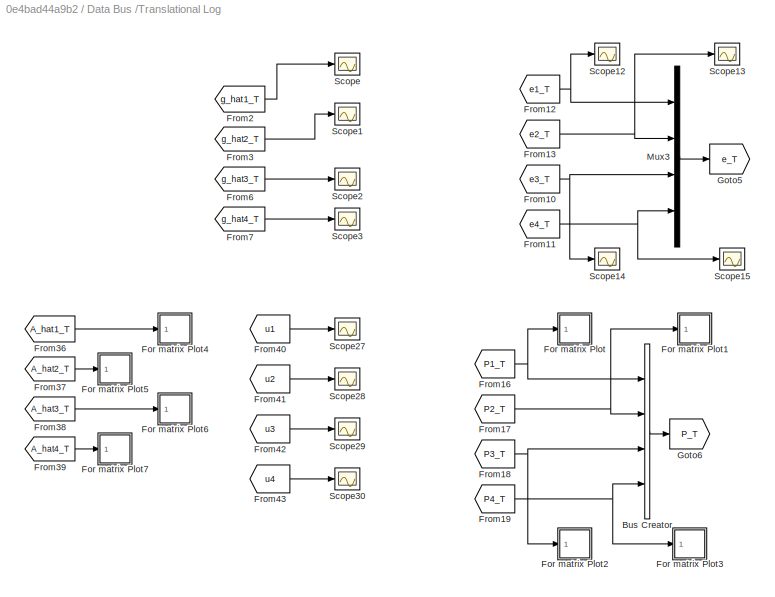
BLOCK [SubSystem] Data Bus /Translational Log
  Ports = []
  RequestExecContextInheritance = off
BLOCK [BusCreator] Data Bus /Translational Log/Bus Creator
  DisplayOption = bar
  InheritFromInputs = on
  Inputs = 4
  OutDataTypeStr = Bus: P_bus
  Ports = [4, 1]
BLOCK [SubSystem] Data Bus /Translational Log/For matrix Plot
  Ports = [1]
  RequestExecContextInheritance = off
BLOCK [SubSystem] Data Bus /Translational Log/For matrix Plot/MATLAB Function
  ErrorFcn = Stateflow.Translate.translate
  PermitHierarchicalResolution = ExplicitOnly
  Ports = [1, 1]
  RequestExecContextInheritance = off
  SFBlockType = MATLAB Function
  TreatAsAtomicUnit = on
BLOCK [Demux] Data Bus /Translational Log/For matrix Plot/MATLAB Function/ Demux 
  Outputs = 1
  Ports = [1, 1]
BLOCK [S-Function] Data Bus /Translational Log/For matrix Plot/MATLAB Function/ SFunction 
  EnableBusSupport = on
  FunctionName = sf_sfun
  PortCounts = [1 2]
  Ports = [1, 2]
  SFcnIsStateOwnerBlock = off
  SFunctionDeploymentMode = off
  Tag = Stateflow S-Function CAMFC2_Quad_New_02_Payload_01 65
BLOCK [Terminator] Data Bus /Translational Log/For matrix Plot/MATLAB Function/ Terminator 
BLOCK [Inport] Data Bus /Translational Log/For matrix Plot/MATLAB Function/u
  IconDisplay = Port number
BLOCK [Outport] Data Bus /Translational Log/For matrix Plot/MATLAB Function/y
  IconDisplay = Port number
BLOCK [Inport] Data Bus /Translational Log/For matrix Plot/P
  IconDisplay = Port number
BLOCK [ToWorkspace] Data Bus /Translational Log/For matrix Plot/To Workspace
  MaxDataPoints = inf
  Ports = [1]
  SampleTime = -1
  SaveFormat = Structure With Time
  VariableName = P1_T
BLOCK [SubSystem] Data Bus /Translational Log/For matrix Plot1
  Ports = [1]
  RequestExecContextInheritance = off
BLOCK [SubSystem] Data Bus /Translational Log/For matrix Plot1/MATLAB Function
  ErrorFcn = Stateflow.Translate.translate
  PermitHierarchicalResolution = ExplicitOnly
  Ports = [1, 1]
  RequestExecContextInheritance = off
  SFBlockType = MATLAB Function
  TreatAsAtomicUnit = on
BLOCK [Demux] Data Bus /Translational Log/For matrix Plot1/MATLAB Function/ Demux 
  Outputs = 1
  Ports = [1, 1]
BLOCK [S-Function] Data Bus /Translational Log/For matrix Plot1/MATLAB Function/ SFunction 
  EnableBusSupport = on
  FunctionName = sf_sfun
  PortCounts = [1 2]
  Ports = [1, 2]
  SFcnIsStateOwnerBlock = off
  SFunctionDeploymentMode = off
  Tag = Stateflow S-Function CAMFC2_Quad_New_02_Payload_01 57
BLOCK [Terminator] Data Bus /Translational Log/For matrix Plot1/MATLAB Function/ Terminator 
BLOCK [Inport] Data Bus /Translational Log/For matrix Plot1/MATLAB Function/u
  IconDisplay = Port number
BLOCK [Outport] Data Bus /Translational Log/For matrix Plot1/MATLAB Function/y
  IconDisplay = Port number
BLOCK [Inport] Data Bus /Translational Log/For matrix Plot1/P
  IconDisplay = Port number
BLOCK [ToWorkspace] Data Bus /Translational Log/For matrix Plot1/To Workspace
  MaxDataPoints = inf
  Ports = [1]
  SampleTime = -1
  SaveFormat = Structure With Time
  VariableName = P2_T
BLOCK [SubSystem] Data Bus /Translational Log/For matrix Plot2
  Ports = [1]
  RequestExecContextInheritance = off
BLOCK [SubSystem] Data Bus /Translational Log/For matrix Plot2/MATLAB Function
  ErrorFcn = Stateflow.Translate.translate
  PermitHierarchicalResolution = ExplicitOnly
  Ports = [1, 1]
  RequestExecContextInheritance = off
  SFBlockType = MATLAB Function
  TreatAsAtomicUnit = on
BLOCK [Demux] Data Bus /Translational Log/For matrix Plot2/MATLAB Function/ Demux 
  Outputs = 1
  Ports = [1, 1]
BLOCK [S-Function] Data Bus /Translational Log/For matrix Plot2/MATLAB Function/ SFunction 
  EnableBusSupport = on
  FunctionName = sf_sfun
  PortCounts = [1 2]
  Ports = [1, 2]
  SFcnIsStateOwnerBlock = off
  SFunctionDeploymentMode = off
  Tag = Stateflow S-Function CAMFC2_Quad_New_02_Payload_01 58
BLOCK [Terminator] Data Bus /Translational Log/For matrix Plot2/MATLAB Function/ Terminator 
BLOCK [Inport] Data Bus /Translational Log/For matrix Plot2/MATLAB Function/u
  IconDisplay = Port number
BLOCK [Outport] Data Bus /Translational Log/For matrix Plot2/MATLAB Function/y
  IconDisplay = Port number
BLOCK [Inport] Data Bus /Translational Log/For matrix Plot2/P
  IconDisplay = Port number
BLOCK [ToWorkspace] Data Bus /Translational Log/For matrix Plot2/To Workspace
  MaxDataPoints = inf
  Ports = [1]
  SampleTime = -1
  SaveFormat = Structure With Time
  VariableName = P3_T
BLOCK [SubSystem] Data Bus /Translational Log/For matrix Plot3
  Ports = [1]
  RequestExecContextInheritance = off
BLOCK [SubSystem] Data Bus /Translational Log/For matrix Plot3/MATLAB Function
  ErrorFcn = Stateflow.Translate.translate
  PermitHierarchicalResolution = ExplicitOnly
  Ports = [1, 1]
  RequestExecContextInheritance = off
  SFBlockType = MATLAB Function
  TreatAsAtomicUnit = on
BLOCK [Demux] Data Bus /Translational Log/For matrix Plot3/MATLAB Function/ Demux 
  Outputs = 1
  Ports = [1, 1]
BLOCK [S-Function] Data Bus /Translational Log/For matrix Plot3/MATLAB Function/ SFunction 
  EnableBusSupport = on
  FunctionName = sf_sfun
  PortCounts = [1 2]
  Ports = [1, 2]
  SFcnIsStateOwnerBlock = off
  SFunctionDeploymentMode = off
  Tag = Stateflow S-Function CAMFC2_Quad_New_02_Payload_01 59
BLOCK [Terminator] Data Bus /Translational Log/For matrix Plot3/MATLAB Function/ Terminator 
BLOCK [Inport] Data Bus /Translational Log/For matrix Plot3/MATLAB Function/u
  IconDisplay = Port number
BLOCK [Outport] Data Bus /Translational Log/For matrix Plot3/MATLAB Function/y
  IconDisplay = Port number
BLOCK [Inport] Data Bus /Translational Log/For matrix Plot3/P
  IconDisplay = Port number
BLOCK [ToWorkspace] Data Bus /Translational Log/For matrix Plot3/To Workspace
  MaxDataPoints = inf
  Ports = [1]
  SampleTime = -1
  SaveFormat = Structure With Time
  VariableName = P4_T
BLOCK [SubSystem] Data Bus /Translational Log/For matrix Plot4
  Ports = [1]
  RequestExecContextInheritance = off
BLOCK [Inport] Data Bus /Translational Log/For matrix Plot4/A_hat
  IconDisplay = Port number
BLOCK [SubSystem] Data Bus /Translational Log/For matrix Plot4/MATLAB Function
  ErrorFcn = Stateflow.Translate.translate
  PermitHierarchicalResolution = ExplicitOnly
  Ports = [1, 1]
  RequestExecContextInheritance = off
  SFBlockType = MATLAB Function
  TreatAsAtomicUnit = on
BLOCK [Demux] Data Bus /Translational Log/For matrix Plot4/MATLAB Function/ Demux 
  Outputs = 1
  Ports = [1, 1]
BLOCK [S-Function] Data Bus /Translational Log/For matrix Plot4/MATLAB Function/ SFunction 
  EnableBusSupport = on
  FunctionName = sf_sfun
  PortCounts = [1 2]
  Ports = [1, 2]
  SFcnIsStateOwnerBlock = off
  SFunctionDeploymentMode = off
  Tag = Stateflow S-Function CAMFC2_Quad_New_02_Payload_01 60
BLOCK [Terminator] Data Bus /Translational Log/For matrix Plot4/MATLAB Function/ Terminator 
BLOCK [Inport] Data Bus /Translational Log/For matrix Plot4/MATLAB Function/u
  IconDisplay = Port number
BLOCK [Outport] Data Bus /Translational Log/For matrix Plot4/MATLAB Function/y
  IconDisplay = Port number
BLOCK [ToWorkspace] Data Bus /Translational Log/For matrix Plot4/To Workspace
  MaxDataPoints = inf
  Ports = [1]
  SampleTime = -1
  SaveFormat = Structure With Time
  VariableName = A_hat1_T
BLOCK [SubSystem] Data Bus /Translational Log/For matrix Plot5
  Ports = [1]
  RequestExecContextInheritance = off
BLOCK [Inport] Data Bus /Translational Log/For matrix Plot5/A_hat
  IconDisplay = Port number
BLOCK [SubSystem] Data Bus /Translational Log/For matrix Plot5/MATLAB Function
  ErrorFcn = Stateflow.Translate.translate
  PermitHierarchicalResolution = ExplicitOnly
  Ports = [1, 1]
  RequestExecContextInheritance = off
  SFBlockType = MATLAB Function
  TreatAsAtomicUnit = on
BLOCK [Demux] Data Bus /Translational Log/For matrix Plot5/MATLAB Function/ Demux 
  Outputs = 1
  Ports = [1, 1]
BLOCK [S-Function] Data Bus /Translational Log/For matrix Plot5/MATLAB Function/ SFunction 
  EnableBusSupport = on
  FunctionName = sf_sfun
  PortCounts = [1 2]
  Ports = [1, 2]
  SFcnIsStateOwnerBlock = off
  SFunctionDeploymentMode = off
  Tag = Stateflow S-Function CAMFC2_Quad_New_02_Payload_01 100
BLOCK [Terminator] Data Bus /Translational Log/For matrix Plot5/MATLAB Function/ Terminator 
BLOCK [Inport] Data Bus /Translational Log/For matrix Plot5/MATLAB Function/u
  IconDisplay = Port number
BLOCK [Outport] Data Bus /Translational Log/For matrix Plot5/MATLAB Function/y
  IconDisplay = Port number
BLOCK [ToWorkspace] Data Bus /Translational Log/For matrix Plot5/To Workspace
  MaxDataPoints = inf
  Ports = [1]
  SampleTime = -1
  SaveFormat = Structure With Time
  VariableName = A_hat2_T
BLOCK [SubSystem] Data Bus /Translational Log/For matrix Plot6
  Ports = [1]
  RequestExecContextInheritance = off
BLOCK [Inport] Data Bus /Translational Log/For matrix Plot6/A_hat
  IconDisplay = Port number
BLOCK [SubSystem] Data Bus /Translational Log/For matrix Plot6/MATLAB Function
  ErrorFcn = Stateflow.Translate.translate
  PermitHierarchicalResolution = ExplicitOnly
  Ports = [1, 1]
  RequestExecContextInheritance = off
  SFBlockType = MATLAB Function
  TreatAsAtomicUnit = on
BLOCK [Demux] Data Bus /Translational Log/For matrix Plot6/MATLAB Function/ Demux 
  Outputs = 1
  Ports = [1, 1]
BLOCK [S-Function] Data Bus /Translational Log/For matrix Plot6/MATLAB Function/ SFunction 
  EnableBusSupport = on
  FunctionName = sf_sfun
  PortCounts = [1 2]
  Ports = [1, 2]
  SFcnIsStateOwnerBlock = off
  SFunctionDeploymentMode = off
  Tag = Stateflow S-Function CAMFC2_Quad_New_02_Payload_01 108
BLOCK [Terminator] Data Bus /Translational Log/For matrix Plot6/MATLAB Function/ Terminator 
BLOCK [Inport] Data Bus /Translational Log/For matrix Plot6/MATLAB Function/u
  IconDisplay = Port number
BLOCK [Outport] Data Bus /Translational Log/For matrix Plot6/MATLAB Function/y
  IconDisplay = Port number
BLOCK [ToWorkspace] Data Bus /Translational Log/For matrix Plot6/To Workspace
  MaxDataPoints = inf
  Ports = [1]
  SampleTime = -1
  SaveFormat = Structure With Time
  VariableName = A_hat3_T
BLOCK [SubSystem] Data Bus /Translational Log/For matrix Plot7
  Ports = [1]
  RequestExecContextInheritance = off
BLOCK [Inport] Data Bus /Translational Log/For matrix Plot7/A_hat
  IconDisplay = Port number
BLOCK [SubSystem] Data Bus /Translational Log/For matrix Plot7/MATLAB Function
  ErrorFcn = Stateflow.Translate.translate
  PermitHierarchicalResolution = ExplicitOnly
  Ports = [1, 1]
  RequestExecContextInheritance = off
  SFBlockType = MATLAB Function
  TreatAsAtomicUnit = on
BLOCK [Demux] Data Bus /Translational Log/For matrix Plot7/MATLAB Function/ Demux 
  Outputs = 1
  Ports = [1, 1]
BLOCK [S-Function] Data Bus /Translational Log/For matrix Plot7/MATLAB Function/ SFunction 
  EnableBusSupport = on
  FunctionName = sf_sfun
  PortCounts = [1 2]
  Ports = [1, 2]
  SFcnIsStateOwnerBlock = off
  SFunctionDeploymentMode = off
  Tag = Stateflow S-Function CAMFC2_Quad_New_02_Payload_01 109
BLOCK [Terminator] Data Bus /Translational Log/For matrix Plot7/MATLAB Function/ Terminator 
BLOCK [Inport] Data Bus /Translational Log/For matrix Plot7/MATLAB Function/u
  IconDisplay = Port number
BLOCK [Outport] Data Bus /Translational Log/For matrix Plot7/MATLAB Function/y
  IconDisplay = Port number
BLOCK [ToWorkspace] Data Bus /Translational Log/For matrix Plot7/To Workspace
  MaxDataPoints = inf
  Ports = [1]
  SampleTime = -1
  SaveFormat = Structure With Time
  VariableName = A_hat4_T
BLOCK [From] Data Bus /Translational Log/From10
  GotoTag = e3_T
  TagVisibility = global
BLOCK [From] Data Bus /Translational Log/From11
  GotoTag = e4_T
  TagVisibility = global
BLOCK [From] Data Bus /Translational Log/From12
  GotoTag = e1_T
  TagVisibility = global
BLOCK [From] Data Bus /Translational Log/From13
  GotoTag = e2_T
  TagVisibility = global
BLOCK [From] Data Bus /Translational Log/From16
  GotoTag = P1_T
  TagVisibility = global
BLOCK [From] Data Bus /Translational Log/From17
  GotoTag = P2_T
  TagVisibility = global
BLOCK [From] Data Bus /Translational Log/From18
  GotoTag = P3_T
  TagVisibility = global
BLOCK [From] Data Bus /Translational Log/From19
  GotoTag = P4_T
  TagVisibility = global
BLOCK [From] Data Bus /Translational Log/From2
  GotoTag = g_hat1_T
  TagVisibility = global
BLOCK [From] Data Bus /Translational Log/From3
  GotoTag = g_hat2_T
  TagVisibility = global
BLOCK [From] Data Bus /Translational Log/From36
  GotoTag = A_hat1_T
  TagVisibility = global
BLOCK [From] Data Bus /Translational Log/From37
  GotoTag = A_hat2_T
  TagVisibility = global
BLOCK [From] Data Bus /Translational Log/From38
  GotoTag = A_hat3_T
  TagVisibility = global
BLOCK [From] Data Bus /Translational Log/From39
  GotoTag = A_hat4_T
  TagVisibility = global
BLOCK [From] Data Bus /Translational Log/From40
  GotoTag = u1
  TagVisibility = global
BLOCK [From] Data Bus /Translational Log/From41
  GotoTag = u2
  TagVisibility = global
BLOCK [From] Data Bus /Translational Log/From42
  GotoTag = u3
  TagVisibility = global
BLOCK [From] Data Bus /Translational Log/From43
  GotoTag = u4
  TagVisibility = global
BLOCK [From] Data Bus /Translational Log/From6
  GotoTag = g_hat3_T
  TagVisibility = global
BLOCK [From] Data Bus /Translational Log/From7
  GotoTag = g_hat4_T
  TagVisibility = global
BLOCK [Goto] Data Bus /Translational Log/Goto5
  GotoTag = e_T
  TagVisibility = global
BLOCK [Goto] Data Bus /Translational Log/Goto6
  GotoTag = P_T
  TagVisibility = global
BLOCK [Mux] Data Bus /Translational Log/Mux3
  DisplayOption = bar
  Ports = [4, 1]
BLOCK [Scope] Data Bus /Translational Log/Scope
  Floating = off
  NumInputPorts = 1
  Ports = [1]
  ScopeSpecificationString = Simulink.scopes.TimeScopeBlockCfg('CurrentConfiguration', extmgr.ConfigurationSet(extmgr.Configuration('Core','General UI',true),extmgr.Configuration('Core','Source UI',true),extmgr.Configuration('Sources','WiredSimulink',true,'DataLogging',true,'DataLoggingVariableName','g_hat1_T','DataLoggingSaveFormat','StructureWithTime','DataLoggingDecimation','1','DataLoggingDecimateData',true),extmgr.Config...<+1818ch>
BLOCK [Scope] Data Bus /Translational Log/Scope1
  Floating = off
  NumInputPorts = 1
  Ports = [1]
  ScopeSpecificationString = Simulink.scopes.TimeScopeBlockCfg('CurrentConfiguration', extmgr.ConfigurationSet(extmgr.Configuration('Core','General UI',true),extmgr.Configuration('Core','Source UI',true),extmgr.Configuration('Sources','WiredSimulink',true,'DataLogging',true,'DataLoggingVariableName','g_hat2_T','DataLoggingSaveFormat','StructureWithTime','DataLoggingDecimation','1','DataLoggingDecimateData',true),extmgr.Config...<+1818ch>
BLOCK [Scope] Data Bus /Translational Log/Scope12
  Floating = off
  NumInputPorts = 1
  Ports = [1]
  ScopeSpecificationString = Simulink.scopes.TimeScopeBlockCfg('CurrentConfiguration', extmgr.ConfigurationSet(extmgr.Configuration('Core','General UI',true),extmgr.Configuration('Core','Source UI',true),extmgr.Configuration('Sources','WiredSimulink',true,'DataLogging',true,'DataLoggingVariableName','e1_T','DataLoggingSaveFormat','StructureWithTime','DataLoggingDecimation','1','DataLoggingDecimateData',true),extmgr.Configurat...<+1775ch>
BLOCK [Scope] Data Bus /Translational Log/Scope13
  Floating = off
  NumInputPorts = 1
  Ports = [1]
  ScopeSpecificationString = Simulink.scopes.TimeScopeBlockCfg('CurrentConfiguration', extmgr.ConfigurationSet(extmgr.Configuration('Core','General UI',true),extmgr.Configuration('Core','Source UI',true),extmgr.Configuration('Sources','WiredSimulink',true,'DataLogging',true,'DataLoggingVariableName','e2_T','DataLoggingSaveFormat','StructureWithTime','DataLoggingDecimation','1','DataLoggingDecimateData',true),extmgr.Configurat...<+1826ch>
BLOCK [Scope] Data Bus /Translational Log/Scope14
  Floating = off
  NumInputPorts = 1
  Ports = [1]
  ScopeSpecificationString = Simulink.scopes.TimeScopeBlockCfg('CurrentConfiguration', extmgr.ConfigurationSet(extmgr.Configuration('Core','General UI',true),extmgr.Configuration('Core','Source UI',true),extmgr.Configuration('Sources','WiredSimulink',true,'DataLogging',true,'DataLoggingVariableName','e3_T','DataLoggingSaveFormat','StructureWithTime','DataLoggingDecimation','1','DataLoggingDecimateData',true),extmgr.Configurat...<+1770ch>
BLOCK [Scope] Data Bus /Translational Log/Scope15
  Floating = off
  NumInputPorts = 1
  Ports = [1]
  ScopeSpecificationString = Simulink.scopes.TimeScopeBlockCfg('CurrentConfiguration', extmgr.ConfigurationSet(extmgr.Configuration('Core','General UI',true),extmgr.Configuration('Core','Source UI',true),extmgr.Configuration('Sources','WiredSimulink',true,'DataLogging',true,'DataLoggingVariableName','e4_T','DataLoggingSaveFormat','StructureWithTime','DataLoggingDecimation','1','DataLoggingDecimateData',true),extmgr.Configurat...<+1839ch>
BLOCK [Scope] Data Bus /Translational Log/Scope2
  Floating = off
  NumInputPorts = 1
  Ports = [1]
  ScopeSpecificationString = Simulink.scopes.TimeScopeBlockCfg('CurrentConfiguration', extmgr.ConfigurationSet(extmgr.Configuration('Core','General UI',true),extmgr.Configuration('Core','Source UI',true),extmgr.Configuration('Sources','WiredSimulink',true,'DataLogging',true,'DataLoggingVariableName','g_hat3_T','DataLoggingSaveFormat','StructureWithTime','DataLoggingDecimation','1','DataLoggingDecimateData',true),extmgr.Config...<+1772ch>
BLOCK [Scope] Data Bus /Translational Log/Scope27
  Floating = off
  NumInputPorts = 1
  Ports = [1]
  ScopeSpecificationString = Simulink.scopes.TimeScopeBlockCfg('CurrentConfiguration', extmgr.ConfigurationSet(extmgr.Configuration('Core','General UI',true),extmgr.Configuration('Core','Source UI',true),extmgr.Configuration('Sources','WiredSimulink',true,'DataLogging',true,'DataLoggingVariableName','u1_T','DataLoggingSaveFormat','StructureWithTime','DataLoggingDecimation','1','DataLoggingDecimateData',true),extmgr.Configurat...<+1809ch>
BLOCK [Scope] Data Bus /Translational Log/Scope28
  Floating = off
  NumInputPorts = 1
  Ports = [1]
  ScopeSpecificationString = Simulink.scopes.TimeScopeBlockCfg('CurrentConfiguration', extmgr.ConfigurationSet(extmgr.Configuration('Core','General UI',true),extmgr.Configuration('Core','Source UI',true),extmgr.Configuration('Sources','WiredSimulink',true,'DataLogging',true,'DataLoggingVariableName','u2_T','DataLoggingSaveFormat','StructureWithTime','DataLoggingDecimation','1','DataLoggingDecimateData',true),extmgr.Configurat...<+1824ch>
BLOCK [Scope] Data Bus /Translational Log/Scope29
  Floating = off
  NumInputPorts = 1
  Ports = [1]
  ScopeSpecificationString = Simulink.scopes.TimeScopeBlockCfg('CurrentConfiguration', extmgr.ConfigurationSet(extmgr.Configuration('Core','General UI',true),extmgr.Configuration('Core','Source UI',true),extmgr.Configuration('Sources','WiredSimulink',true,'DataLogging',true,'DataLoggingVariableName','u3_T','DataLoggingSaveFormat','StructureWithTime','DataLoggingDecimation','1','DataLoggingDecimateData',true),extmgr.Configurat...<+1848ch>
BLOCK [Scope] Data Bus /Translational Log/Scope3
  Floating = off
  NumInputPorts = 1
  Ports = [1]
  ScopeSpecificationString = Simulink.scopes.TimeScopeBlockCfg('CurrentConfiguration', extmgr.ConfigurationSet(extmgr.Configuration('Core','General UI',true),extmgr.Configuration('Core','Source UI',true),extmgr.Configuration('Sources','WiredSimulink',true,'DataLogging',true,'DataLoggingVariableName','g_hat4_T','DataLoggingSaveFormat','StructureWithTime','DataLoggingDecimation','1','DataLoggingDecimateData',true),extmgr.Config...<+1774ch>
BLOCK [Scope] Data Bus /Translational Log/Scope30
  Floating = off
  NumInputPorts = 1
  Ports = [1]
  ScopeSpecificationString = Simulink.scopes.TimeScopeBlockCfg('CurrentConfiguration', extmgr.ConfigurationSet(extmgr.Configuration('Core','General UI',true),extmgr.Configuration('Core','Source UI',true),extmgr.Configuration('Sources','WiredSimulink',true,'DataLogging',true,'DataLoggingVariableName','u4_T','DataLoggingSaveFormat','StructureWithTime','DataLoggingDecimation','1','DataLoggingDecimateData',true),extmgr.Configurat...<+1840ch>
BLOCK [Constant] Data Bus /formation of the leader
  Value = zeros(n0,1)
BLOCK [SubSystem] Payload
  Ports = []
  RequestExecContextInheritance = off
BLOCK [SubSystem] Payload/Controller 
  Ports = [1, 1]
  RequestExecContextInheritance = off
BLOCK [Constant] Payload/Controller /Constant
  Value = 0
BLOCK [Constant] Payload/Controller /Constant1
  Value = 0
BLOCK [Constant] Payload/Controller /Constant2
  Value = 2
BLOCK [SubSystem] Payload/Controller /Control law
  ErrorFcn = Stateflow.Translate.translate
  PermitHierarchicalResolution = ExplicitOnly
  Ports = [5, 1]
  RequestExecContextInheritance = off
  SFBlockType = MATLAB Function
  TreatAsAtomicUnit = on
BLOCK [Demux] Payload/Controller /Control law/ Demux 
  Outputs = 1
  Ports = [1, 1]
BLOCK [S-Function] Payload/Controller /Control law/ SFunction 
  EnableBusSupport = on
  FunctionName = sf_sfun
  PortCounts = [5 2]
  Ports = [5, 2]
  SFcnIsStateOwnerBlock = off
  SFunctionDeploymentMode = off
  Tag = Stateflow S-Function CAMFC2_Quad_New_02_Payload_01 3
BLOCK [Terminator] Payload/Controller /Control law/ Terminator 
BLOCK [Inport] Payload/Controller /Control law/DDp_d
  IconDisplay = Port number
BLOCK [Inport] Payload/Controller /Control law/Dp_d
  IconDisplay = Port number
  Port = 2
BLOCK [Inport] Payload/Controller /Control law/Ie
  IconDisplay = Port number
  Port = 4
BLOCK [Inport] Payload/Controller /Control law/e
  IconDisplay = Port number
  Port = 3
BLOCK [Outport] Payload/Controller /Control law/u
  IconDisplay = Port number
BLOCK [Inport] Payload/Controller /Control law/v
  IconDisplay = Port number
  Port = 5
BLOCK [Demux] Payload/Controller /Demux
  DisplayOption = bar
  Outputs = 2
  Ports = [1, 2]
BLOCK [Derivative] Payload/Controller /Derivative
BLOCK [Derivative] Payload/Controller /Derivative1
BLOCK [From] Payload/Controller /From14
  GotoTag = x0
  TagVisibility = global
BLOCK [Gain] Payload/Controller /Gain
  Gain = 1/4
  OutDataTypeStr = Inherit: Inherit via internal rule
  ParamDataTypeStr = Inherit: Inherit via internal rule
  SaturateOnIntegerOverflow = off
BLOCK [Goto] Payload/Controller /Goto9
  GotoTag = upi
  TagVisibility = global
BLOCK [Integrator] Payload/Controller /Integrator
  Ports = [1, 1]
BLOCK [Mux] Payload/Controller /Mux
  DisplayOption = bar
  Inputs = 3
  Ports = [3, 1]
BLOCK [Scope] Payload/Controller /Scope
  Floating = off
  NumInputPorts = 1
  Ports = [1]
  ScopeSpecificationString = Simulink.scopes.TimeScopeBlockCfg('CurrentConfiguration', extmgr.ConfigurationSet(extmgr.Configuration('Core','General UI',true),extmgr.Configuration('Core','Source UI',true),extmgr.Configuration('Sources','WiredSimulink',true,'DataLoggingVariableName','ScopeData1'),extmgr.Configuration('Visuals','Time Domain',true,'SerializedDisplays',{struct('MinYLimReal','-1.92221','MaxYLimReal','17.29992','YLa...<+1409ch>
BLOCK [Sum] Payload/Controller /Sum
  IconShape = round
  InputSameDT = off
  Inputs = |+-
  OutDataTypeStr = Inherit: Inherit via internal rule
  Ports = [2, 1]
  SaturateOnIntegerOverflow = off
BLOCK [Inport] Payload/Controller /X
  IconDisplay = Port number
BLOCK [Outport] Payload/Controller /u
  IconDisplay = Port number
BLOCK [Goto] Payload/Goto1
  GotoTag = x_p
  TagVisibility = global
BLOCK [Goto] Payload/Goto2
  GotoTag = u_p
  TagVisibility = global
BLOCK [SubSystem] Payload/Plant
  Ports = [1, 1]
  RequestExecContextInheritance = off
BLOCK [Integrator] Payload/Plant/Integrator
  InitialCondition = zeros(np,1)
  Ports = [1, 1]
BLOCK [SubSystem] Payload/Plant/MATLAB Function
  ErrorFcn = Stateflow.Translate.translate
  PermitHierarchicalResolution = ExplicitOnly
  Ports = [2, 1]
  RequestExecContextInheritance = off
  SFBlockType = MATLAB Function
  TreatAsAtomicUnit = on
BLOCK [Demux] Payload/Plant/MATLAB Function/ Demux 
  Outputs = 1
  Ports = [1, 1]
BLOCK [S-Function] Payload/Plant/MATLAB Function/ SFunction 
  EnableBusSupport = on
  FunctionName = sf_sfun
  Parameters = ge,mp
  PortCounts = [2 2]
  Ports = [2, 2]
  SFcnIsStateOwnerBlock = off
  SFunctionDeploymentMode = off
  Tag = Stateflow S-Function CAMFC2_Quad_New_02_Payload_01 11
BLOCK [Terminator] Payload/Plant/MATLAB Function/ Terminator 
BLOCK [Outport] Payload/Plant/MATLAB Function/DX
  IconDisplay = Port number
BLOCK [Inport] Payload/Plant/MATLAB Function/U
  IconDisplay = Port number
  Port = 2
BLOCK [Inport] Payload/Plant/MATLAB Function/X
  IconDisplay = Port number
BLOCK [Inport] Payload/Plant/U
  IconDisplay = Port number
BLOCK [Outport] Payload/Plant/X
  IconDisplay = Port number
LINE Agent #1/Agent #:1 -> Agent #1/Controller #1:1
NET Agent #1/Controller #1/Agent No.:1 -> Agent #1/Controller #1/Cooperative Observers #1:1, Agent #1/Controller #1/Translational #1:1
LINE Agent #1/Controller #1/Controller Interpreter #1:1 -> Agent #1/Controller #1/Controller to Motors #1:1
NET Agent #1/Controller #1/Controller Interpreter #1:2 -> Agent #1/Controller #1/Rotational:1, Agent #1/Controller #1/Scope:1
NET Agent #1/Controller #1/Controller to Motors #1:1 -> Agent #1/Controller #1/Goto9:1, Agent #1/Controller #1/u1:1
NET Agent #1/Controller #1/Cooperative Observers #1/Agent #:1 -> Agent #1/Controller #1/Cooperative Observers #1/Observer T#1:4, Agent #1/Controller #1/Cooperative Observers #1/Observer q#1:5, Agent #1/Controller #1/Cooperative Observers #1/Observer x0_hat#1:5
LINE Agent #1/Controller #1/Cooperative Observers #1/Differentiator2/Integrator1:1 -> Agent #1/Controller #1/Cooperative Observers #1/Differentiator2/Sum:2
LINE Agent #1/Controller #1/Cooperative Observers #1/Differentiator2/Integrator:1 -> Agent #1/Controller #1/Cooperative Observers #1/Differentiator2/Sliding differentiator:1
LINE Agent #1/Controller #1/Cooperative Observers #1/Differentiator2/Sliding differentiator1:1 -> Agent #1/Controller #1/Cooperative Observers #1/Differentiator2/Integrator:1
NET Agent #1/Controller #1/Cooperative Observers #1/Differentiator2/Sliding differentiator:1 -> Agent #1/Controller #1/Cooperative Observers #1/Differentiator2/Dx_d:1, Agent #1/Controller #1/Cooperative Observers #1/Differentiator2/Integrator1:1
NET Agent #1/Controller #1/Cooperative Observers #1/Differentiator2/Sum:1 -> Agent #1/Controller #1/Cooperative Observers #1/Differentiator2/Sliding differentiator1:1, Agent #1/Controller #1/Cooperative Observers #1/Differentiator2/Sliding differentiator:2
LINE Agent #1/Controller #1/Cooperative Observers #1/Differentiator2/x_d:1 -> Agent #1/Controller #1/Cooperative Observers #1/Differentiator2/Sum:1
LINE Agent #1/Controller #1/Cooperative Observers #1/Differentiator2:1 -> Agent #1/Controller #1/Cooperative Observers #1/DTi:1
LINE Agent #1/Controller #1/Cooperative Observers #1/From11:1 -> Agent #1/Controller #1/Cooperative Observers #1/Observer x0_hat#1:1
LINE Agent #1/Controller #1/Cooperative Observers #1/From12:1 -> Agent #1/Controller #1/Cooperative Observers #1/Observer x0_hat#1:2
LINE Agent #1/Controller #1/Cooperative Observers #1/From13:1 -> Agent #1/Controller #1/Cooperative Observers #1/Observer T#1:1
LINE Agent #1/Controller #1/Cooperative Observers #1/From14:1 -> Agent #1/Controller #1/Cooperative Observers #1/Observer T#1:2
LINE Agent #1/Controller #1/Cooperative Observers #1/From1:1 -> Agent #1/Controller #1/Cooperative Observers #1/Observer q#1:4
LINE Agent #1/Controller #1/Cooperative Observers #1/From3:1 -> Agent #1/Controller #1/Cooperative Observers #1/Observer T#1:5
LINE Agent #1/Controller #1/Cooperative Observers #1/From6:1 -> Agent #1/Controller #1/Cooperative Observers #1/Observer x0_hat#1:4
LINE Agent #1/Controller #1/Cooperative Observers #1/From8:1 -> Agent #1/Controller #1/Cooperative Observers #1/Observer q#1:1
LINE Agent #1/Controller #1/Cooperative Observers #1/From9:1 -> Agent #1/Controller #1/Cooperative Observers #1/Observer q#1:2
NET Agent #1/Controller #1/Cooperative Observers #1/Integrator5:1 -> Agent #1/Controller #1/Cooperative Observers #1/Differentiator2:1, Agent #1/Controller #1/Cooperative Observers #1/Goto5:1, Agent #1/Controller #1/Cooperative Observers #1/Observer T#1:3, Agent #1/Controller #1/Cooperative Observers #1/Ti:1
NET Agent #1/Controller #1/Cooperative Observers #1/Integrator6:1 -> Agent #1/Controller #1/Cooperative Observers #1/Goto3:1, Agent #1/Controller #1/Cooperative Observers #1/Observer x0_hat#1:3, Agent #1/Controller #1/Cooperative Observers #1/x0_hati:1
NET Agent #1/Controller #1/Cooperative Observers #1/Integrator:1 -> Agent #1/Controller #1/Cooperative Observers #1/Goto:1, Agent #1/Controller #1/Cooperative Observers #1/Observer q#1:3, Agent #1/Controller #1/Cooperative Observers #1/qi:1
LINE Agent #1/Controller #1/Cooperative Observers #1/Memory3:1 -> Agent #1/Controller #1/Cooperative Observers #1/Goto6:1
LINE Agent #1/Controller #1/Cooperative Observers #1/Memory5:1 -> Agent #1/Controller #1/Cooperative Observers #1/Goto10:1
LINE Agent #1/Controller #1/Cooperative Observers #1/Memory:1 -> Agent #1/Controller #1/Cooperative Observers #1/Goto1:1
LINE Agent #1/Controller #1/Cooperative Observers #1/Observer T#1:1 -> Agent #1/Controller #1/Cooperative Observers #1/Integrator5:1
LINE Agent #1/Controller #1/Cooperative Observers #1/Observer T#1:2 -> Agent #1/Controller #1/Cooperative Observers #1/Memory3:1
LINE Agent #1/Controller #1/Cooperative Observers #1/Observer q#1:1 -> Agent #1/Controller #1/Cooperative Observers #1/Integrator:1
LINE Agent #1/Controller #1/Cooperative Observers #1/Observer q#1:2 -> Agent #1/Controller #1/Cooperative Observers #1/Memory:1
LINE Agent #1/Controller #1/Cooperative Observers #1/Observer x0_hat#1:1 -> Agent #1/Controller #1/Cooperative Observers #1/Integrator6:1
LINE Agent #1/Controller #1/Cooperative Observers #1/Observer x0_hat#1:2 -> Agent #1/Controller #1/Cooperative Observers #1/Memory5:1
LINE Agent #1/Controller #1/Cooperative Observers #1:1 -> Agent #1/Controller #1/Translational #1:2
LINE Agent #1/Controller #1/Cooperative Observers #1:2 -> Agent #1/Controller #1/Translational #1:3
LINE Agent #1/Controller #1/Cooperative Observers #1:3 -> Agent #1/Controller #1/Translational #1:4
LINE Agent #1/Controller #1/Cooperative Observers #1:4 -> Agent #1/Controller #1/Translational #1:5
LINE Agent #1/Controller #1/Demux:2 -> Agent #1/Controller #1/Sum:1
LINE Agent #1/Controller #1/From13:1 -> Agent #1/Controller #1/Rotational:2
LINE Agent #1/Controller #1/From1:1 -> Agent #1/Controller #1/Sum:2
LINE Agent #1/Controller #1/Rotational/CARE:1 -> Agent #1/Controller #1/Rotational/Integrator1:1
LINE Agent #1/Controller #1/Rotational/Differentiator/Integrator1:1 -> Agent #1/Controller #1/Rotational/Differentiator/Sum:2
LINE Agent #1/Controller #1/Rotational/Differentiator/Integrator:1 -> Agent #1/Controller #1/Rotational/Differentiator/Sliding differentiator:1
LINE Agent #1/Controller #1/Rotational/Differentiator/Sliding differentiator1:1 -> Agent #1/Controller #1/Rotational/Differentiator/Integrator:1
NET Agent #1/Controller #1/Rotational/Differentiator/Sliding differentiator:1 -> Agent #1/Controller #1/Rotational/Differentiator/Dx_d:1, Agent #1/Controller #1/Rotational/Differentiator/Integrator1:1, Agent #1/Controller #1/Rotational/Differentiator/Scope:1
NET Agent #1/Controller #1/Rotational/Differentiator/Sum:1 -> Agent #1/Controller #1/Rotational/Differentiator/Scope1:1, Agent #1/Controller #1/Rotational/Differentiator/Sliding differentiator1:1, Agent #1/Controller #1/Rotational/Differentiator/Sliding differentiator:2
LINE Agent #1/Controller #1/Rotational/Differentiator/x_d:1 -> Agent #1/Controller #1/Rotational/Differentiator/Sum:1
LINE Agent #1/Controller #1/Rotational/Differentiator:1 -> Agent #1/Controller #1/Rotational/main:3
NET Agent #1/Controller #1/Rotational/Integrator1:1 -> Agent #1/Controller #1/Rotational/CARE:1, Agent #1/Controller #1/Rotational/Goto2:1, Agent #1/Controller #1/Rotational/g-Estimator1:3, Agent #1/Controller #1/Rotational/g-Estimator:3, Agent #1/Controller #1/Rotational/main:4
NET Agent #1/Controller #1/Rotational/Integrator2:1 -> Agent #1/Controller #1/Rotational/Goto1:1, Agent #1/Controller #1/Rotational/g-Estimator:2, Agent #1/Controller #1/Rotational/main:6
NET Agent #1/Controller #1/Rotational/Integrator3:1 -> Agent #1/Controller #1/Rotational/Sum:1, Agent #1/Controller #1/Rotational/main:2
NET Agent #1/Controller #1/Rotational/Integrator:1 -> Agent #1/Controller #1/Rotational/CARE:2, Agent #1/Controller #1/Rotational/Goto3:1, Agent #1/Controller #1/Rotational/g-Estimator1:4, Agent #1/Controller #1/Rotational/main:5
LINE Agent #1/Controller #1/Rotational/Memory:1 -> Agent #1/Controller #1/Rotational/variable change:3
NET Agent #1/Controller #1/Rotational/Sum:1 -> Agent #1/Controller #1/Rotational/Scope10:1, Agent #1/Controller #1/Rotational/g-Estimator1:1, Agent #1/Controller #1/Rotational/g-Estimator:1, Agent #1/Controller #1/Rotational/main:1
LINE Agent #1/Controller #1/Rotational/X:1 -> Agent #1/Controller #1/Rotational/variable change:1
LINE Agent #1/Controller #1/Rotational/g-Estimator1:1 -> Agent #1/Controller #1/Rotational/Integrator:1
LINE Agent #1/Controller #1/Rotational/g-Estimator:1 -> Agent #1/Controller #1/Rotational/Integrator2:1
NET Agent #1/Controller #1/Rotational/main:1 -> Agent #1/Controller #1/Rotational/Memory:1, Agent #1/Controller #1/Rotational/ur:1
NET Agent #1/Controller #1/Rotational/variable change:1 -> Agent #1/Controller #1/Rotational/g-Estimator1:2, Agent #1/Controller #1/Rotational/main:7
LINE Agent #1/Controller #1/Rotational/variable change:2 -> Agent #1/Controller #1/Rotational/Differentiator:1
NET Agent #1/Controller #1/Rotational/variable change:3 -> Agent #1/Controller #1/Rotational/Goto9:1, Agent #1/Controller #1/Rotational/Integrator3:1, Agent #1/Controller #1/Rotational/Sum:2
LINE Agent #1/Controller #1/Rotational/x_rd:1 -> Agent #1/Controller #1/Rotational/variable change:2
LINE Agent #1/Controller #1/Rotational:1 -> Agent #1/Controller #1/Controller to Motors #1:2
LINE Agent #1/Controller #1/Sum:1 -> Agent #1/Controller #1/Controller Interpreter #1:1
LINE Agent #1/Controller #1/Translational #1/Adaptive Law A_T #1:1 -> Agent #1/Controller #1/Translational #1/Integrator3:1
LINE Agent #1/Controller #1/Translational #1/Adaptive Law g_T #1:1 -> Agent #1/Controller #1/Translational #1/Integrator2:1
NET Agent #1/Controller #1/Translational #1/Agent No.:1 -> Agent #1/Controller #1/Translational #1/Adaptive Law A_T #1:1, Agent #1/Controller #1/Translational #1/Adaptive Law g_T #1:1, Agent #1/Controller #1/Translational #1/Main Controller_T #1:10, Agent #1/Controller #1/Translational #1/Module to compute Consensus Error_T #1:4
LINE Agent #1/Controller #1/Translational #1/DRE_T:1 -> Agent #1/Controller #1/Translational #1/Integrator4:1
LINE Agent #1/Controller #1/Translational #1/DTi:1 -> Agent #1/Controller #1/Translational #1/Main Controller_T #1:7
LINE Agent #1/Controller #1/Translational #1/Demux:1 -> Agent #1/Controller #1/Translational #1/Differentiator1:1
LINE Agent #1/Controller #1/Translational #1/Differentiator1/Integrator1:1 -> Agent #1/Controller #1/Translational #1/Differentiator1/Sum:2
LINE Agent #1/Controller #1/Translational #1/Differentiator1/Integrator:1 -> Agent #1/Controller #1/Translational #1/Differentiator1/Sliding differentiator:1
LINE Agent #1/Controller #1/Translational #1/Differentiator1/Sliding differentiator1:1 -> Agent #1/Controller #1/Translational #1/Differentiator1/Integrator:1
NET Agent #1/Controller #1/Translational #1/Differentiator1/Sliding differentiator:1 -> Agent #1/Controller #1/Translational #1/Differentiator1/Dx_d:1, Agent #1/Controller #1/Translational #1/Differentiator1/Integrator1:1
NET Agent #1/Controller #1/Translational #1/Differentiator1/Sum:1 -> Agent #1/Controller #1/Translational #1/Differentiator1/Sliding differentiator1:1, Agent #1/Controller #1/Translational #1/Differentiator1/Sliding differentiator:2
LINE Agent #1/Controller #1/Translational #1/Differentiator1/x_d:1 -> Agent #1/Controller #1/Translational #1/Differentiator1/Sum:1
LINE Agent #1/Controller #1/Translational #1/Differentiator1:1 -> Agent #1/Controller #1/Translational #1/Main Controller_T #1:14
LINE Agent #1/Controller #1/Translational #1/From10:1 -> Agent #1/Controller #1/Translational #1/Module to compute Consensus Error_T #1:2
LINE Agent #1/Controller #1/Translational #1/From2:1 -> Agent #1/Controller #1/Translational #1/Adaptive Law g_T #1:4
LINE Agent #1/Controller #1/Translational #1/From4:1 -> Agent #1/Controller #1/Translational #1/Main Controller_T #1:5
NET Agent #1/Controller #1/Translational #1/From5:1 -> Agent #1/Controller #1/Translational #1/Adaptive Law A_T #1:6, Agent #1/Controller #1/Translational #1/Main Controller_T #1:6
LINE Agent #1/Controller #1/Translational #1/From7:1 -> Agent #1/Controller #1/Translational #1/Adaptive Law g_T #1:3
LINE Agent #1/Controller #1/Translational #1/From:1 -> Agent #1/Controller #1/Translational #1/Module to compute Consensus Error_T #1:3
LINE Agent #1/Controller #1/Translational #1/Integrator1:1 -> Agent #1/Controller #1/Translational #1/Main Controller_T #1:3
NET Agent #1/Controller #1/Translational #1/Integrator2:1 -> Agent #1/Controller #1/Translational #1/Adaptive Law g_T #1:2, Agent #1/Controller #1/Translational #1/Goto2:1, Agent #1/Controller #1/Translational #1/Main Controller_T #1:13
NET Agent #1/Controller #1/Translational #1/Integrator3:1 -> Agent #1/Controller #1/Translational #1/Adaptive Law A_T #1:2, Agent #1/Controller #1/Translational #1/DRE_T:2, Agent #1/Controller #1/Translational #1/Goto8:1, Agent #1/Controller #1/Translational #1/Main Controller_T #1:4
NET Agent #1/Controller #1/Translational #1/Integrator4:1 -> Agent #1/Controller #1/Translational #1/Adaptive Law A_T #1:4, Agent #1/Controller #1/Translational #1/DRE_T:1, Agent #1/Controller #1/Translational #1/Goto4:1, Agent #1/Controller #1/Translational #1/Main Controller_T #1:1
NET Agent #1/Controller #1/Translational #1/Main Controller_T #1:1 -> Agent #1/Controller #1/Translational #1/Memory2:1, Agent #1/Controller #1/Translational #1/u1_T:1
NET Agent #1/Controller #1/Translational #1/Memory2:1 -> Agent #1/Controller #1/Translational #1/Adaptive Law A_T #1:8, Agent #1/Controller #1/Translational #1/Demux:1, Agent #1/Controller #1/Translational #1/Main Controller_T #1:11, Agent #1/Controller #1/Translational #1/Module to compute Consensus Error_T #1:5
NET Agent #1/Controller #1/Translational #1/Module to compute Consensus Error_T #1:1 -> Agent #1/Controller #1/Translational #1/Adaptive Law A_T #1:5, Agent #1/Controller #1/Translational #1/Goto7:1, Agent #1/Controller #1/Translational #1/Integrator1:1, Agent #1/Controller #1/Translational #1/Main Controller_T #1:2
NET Agent #1/Controller #1/Translational #1/Ti:1 -> Agent #1/Controller #1/Translational #1/Adaptive Law A_T #1:3, Agent #1/Controller #1/Translational #1/Main Controller_T #1:8, Agent #1/Controller #1/Translational #1/Module to compute Consensus Error_T #1:1
LINE Agent #1/Controller #1/Translational #1/qi:1 -> Agent #1/Controller #1/Translational #1/Main Controller_T #1:9
NET Agent #1/Controller #1/Translational #1/x0_hati:1 -> Agent #1/Controller #1/Translational #1/Adaptive Law A_T #1:7, Agent #1/Controller #1/Translational #1/Main Controller_T #1:12
LINE Agent #1/Controller #1/Translational #1:1 -> Agent #1/Controller #1/Demux:1
LINE Agent #1/Controller #1:1 -> Agent #1/Plant #1:1
LINE Agent #1/Plant #1/Clock:1 -> Agent #1/Plant #1/MATLAB Function:3
NET Agent #1/Plant #1/Integrator:1 -> Agent #1/Plant #1/MATLAB Function:1, Agent #1/Plant #1/X:1
LINE Agent #1/Plant #1/MATLAB Function:1 -> Agent #1/Plant #1/Integrator:1
LINE Agent #1/Plant #1/U:1 -> Agent #1/Plant #1/MATLAB Function:2
LINE Agent #1/Plant #1:1 -> Agent #1/Goto1:1
LINE Agent #2/Agent #:1 -> Agent #2/Controller #2:1
NET Agent #2/Controller #2/Agent No.:1 -> Agent #2/Controller #2/Cooperative Observers #2:1, Agent #2/Controller #2/Translational #2:1
LINE Agent #2/Controller #2/Controller Interpreter #2:1 -> Agent #2/Controller #2/Controller To Motors #2:1
NET Agent #2/Controller #2/Controller Interpreter #2:2 -> Agent #2/Controller #2/Rotational:1, Agent #2/Controller #2/Scope:1
NET Agent #2/Controller #2/Controller To Motors #2:1 -> Agent #2/Controller #2/Goto9:1, Agent #2/Controller #2/u2:1
NET Agent #2/Controller #2/Cooperative Observers #2/Agent #:1 -> Agent #2/Controller #2/Cooperative Observers #2/Observer T#2:4, Agent #2/Controller #2/Cooperative Observers #2/Observer q#2:5, Agent #2/Controller #2/Cooperative Observers #2/Observer x0_hat#2:5
LINE Agent #2/Controller #2/Cooperative Observers #2/Differentiator2/Integrator1:1 -> Agent #2/Controller #2/Cooperative Observers #2/Differentiator2/Sum:2
LINE Agent #2/Controller #2/Cooperative Observers #2/Differentiator2/Integrator:1 -> Agent #2/Controller #2/Cooperative Observers #2/Differentiator2/Sliding differentiator:1
LINE Agent #2/Controller #2/Cooperative Observers #2/Differentiator2/Sliding differentiator1:1 -> Agent #2/Controller #2/Cooperative Observers #2/Differentiator2/Integrator:1
NET Agent #2/Controller #2/Cooperative Observers #2/Differentiator2/Sliding differentiator:1 -> Agent #2/Controller #2/Cooperative Observers #2/Differentiator2/Dx_d:1, Agent #2/Controller #2/Cooperative Observers #2/Differentiator2/Integrator1:1
NET Agent #2/Controller #2/Cooperative Observers #2/Differentiator2/Sum:1 -> Agent #2/Controller #2/Cooperative Observers #2/Differentiator2/Sliding differentiator1:1, Agent #2/Controller #2/Cooperative Observers #2/Differentiator2/Sliding differentiator:2
LINE Agent #2/Controller #2/Cooperative Observers #2/Differentiator2/x_d:1 -> Agent #2/Controller #2/Cooperative Observers #2/Differentiator2/Sum:1
LINE Agent #2/Controller #2/Cooperative Observers #2/Differentiator2:1 -> Agent #2/Controller #2/Cooperative Observers #2/DTi:1
LINE Agent #2/Controller #2/Cooperative Observers #2/From11:1 -> Agent #2/Controller #2/Cooperative Observers #2/Observer x0_hat#2:1
LINE Agent #2/Controller #2/Cooperative Observers #2/From12:1 -> Agent #2/Controller #2/Cooperative Observers #2/Observer x0_hat#2:2
LINE Agent #2/Controller #2/Cooperative Observers #2/From13:1 -> Agent #2/Controller #2/Cooperative Observers #2/Observer T#2:1
LINE Agent #2/Controller #2/Cooperative Observers #2/From14:1 -> Agent #2/Controller #2/Cooperative Observers #2/Observer T#2:2
LINE Agent #2/Controller #2/Cooperative Observers #2/From1:1 -> Agent #2/Controller #2/Cooperative Observers #2/Observer q#2:4
LINE Agent #2/Controller #2/Cooperative Observers #2/From3:1 -> Agent #2/Controller #2/Cooperative Observers #2/Observer T#2:5
LINE Agent #2/Controller #2/Cooperative Observers #2/From6:1 -> Agent #2/Controller #2/Cooperative Observers #2/Observer x0_hat#2:4
LINE Agent #2/Controller #2/Cooperative Observers #2/From8:1 -> Agent #2/Controller #2/Cooperative Observers #2/Observer q#2:1
LINE Agent #2/Controller #2/Cooperative Observers #2/From9:1 -> Agent #2/Controller #2/Cooperative Observers #2/Observer q#2:2
NET Agent #2/Controller #2/Cooperative Observers #2/Integrator5:1 -> Agent #2/Controller #2/Cooperative Observers #2/Differentiator2:1, Agent #2/Controller #2/Cooperative Observers #2/Goto5:1, Agent #2/Controller #2/Cooperative Observers #2/Observer T#2:3, Agent #2/Controller #2/Cooperative Observers #2/Ti:1
NET Agent #2/Controller #2/Cooperative Observers #2/Integrator6:1 -> Agent #2/Controller #2/Cooperative Observers #2/Goto3:1, Agent #2/Controller #2/Cooperative Observers #2/Observer x0_hat#2:3, Agent #2/Controller #2/Cooperative Observers #2/x0_hati:1
NET Agent #2/Controller #2/Cooperative Observers #2/Integrator:1 -> Agent #2/Controller #2/Cooperative Observers #2/Goto:1, Agent #2/Controller #2/Cooperative Observers #2/Observer q#2:3, Agent #2/Controller #2/Cooperative Observers #2/qi:1
LINE Agent #2/Controller #2/Cooperative Observers #2/Memory3:1 -> Agent #2/Controller #2/Cooperative Observers #2/Goto6:1
LINE Agent #2/Controller #2/Cooperative Observers #2/Memory5:1 -> Agent #2/Controller #2/Cooperative Observers #2/Goto10:1
LINE Agent #2/Controller #2/Cooperative Observers #2/Memory:1 -> Agent #2/Controller #2/Cooperative Observers #2/Goto1:1
LINE Agent #2/Controller #2/Cooperative Observers #2/Observer T#2:1 -> Agent #2/Controller #2/Cooperative Observers #2/Integrator5:1
LINE Agent #2/Controller #2/Cooperative Observers #2/Observer T#2:2 -> Agent #2/Controller #2/Cooperative Observers #2/Memory3:1
LINE Agent #2/Controller #2/Cooperative Observers #2/Observer q#2:1 -> Agent #2/Controller #2/Cooperative Observers #2/Integrator:1
LINE Agent #2/Controller #2/Cooperative Observers #2/Observer q#2:2 -> Agent #2/Controller #2/Cooperative Observers #2/Memory:1
LINE Agent #2/Controller #2/Cooperative Observers #2/Observer x0_hat#2:1 -> Agent #2/Controller #2/Cooperative Observers #2/Integrator6:1
LINE Agent #2/Controller #2/Cooperative Observers #2/Observer x0_hat#2:2 -> Agent #2/Controller #2/Cooperative Observers #2/Memory5:1
LINE Agent #2/Controller #2/Cooperative Observers #2:1 -> Agent #2/Controller #2/Translational #2:2
LINE Agent #2/Controller #2/Cooperative Observers #2:2 -> Agent #2/Controller #2/Translational #2:3
LINE Agent #2/Controller #2/Cooperative Observers #2:3 -> Agent #2/Controller #2/Translational #2:4
LINE Agent #2/Controller #2/Cooperative Observers #2:4 -> Agent #2/Controller #2/Translational #2:5
LINE Agent #2/Controller #2/Demux:2 -> Agent #2/Controller #2/Sum:1
LINE Agent #2/Controller #2/From13:1 -> Agent #2/Controller #2/Rotational:2
LINE Agent #2/Controller #2/From1:1 -> Agent #2/Controller #2/Sum:2
LINE Agent #2/Controller #2/Rotational/CARE:1 -> Agent #2/Controller #2/Rotational/Integrator1:1
LINE Agent #2/Controller #2/Rotational/Differentiator/Integrator1:1 -> Agent #2/Controller #2/Rotational/Differentiator/Sum:2
LINE Agent #2/Controller #2/Rotational/Differentiator/Integrator:1 -> Agent #2/Controller #2/Rotational/Differentiator/Sliding differentiator:1
LINE Agent #2/Controller #2/Rotational/Differentiator/Sliding differentiator1:1 -> Agent #2/Controller #2/Rotational/Differentiator/Integrator:1
NET Agent #2/Controller #2/Rotational/Differentiator/Sliding differentiator:1 -> Agent #2/Controller #2/Rotational/Differentiator/Dx_d:1, Agent #2/Controller #2/Rotational/Differentiator/Integrator1:1, Agent #2/Controller #2/Rotational/Differentiator/Scope:1
NET Agent #2/Controller #2/Rotational/Differentiator/Sum:1 -> Agent #2/Controller #2/Rotational/Differentiator/Scope1:1, Agent #2/Controller #2/Rotational/Differentiator/Sliding differentiator1:1, Agent #2/Controller #2/Rotational/Differentiator/Sliding differentiator:2
LINE Agent #2/Controller #2/Rotational/Differentiator/x_d:1 -> Agent #2/Controller #2/Rotational/Differentiator/Sum:1
LINE Agent #2/Controller #2/Rotational/Differentiator:1 -> Agent #2/Controller #2/Rotational/main:3
NET Agent #2/Controller #2/Rotational/Integrator1:1 -> Agent #2/Controller #2/Rotational/CARE:1, Agent #2/Controller #2/Rotational/Goto2:1, Agent #2/Controller #2/Rotational/g-Estimator1:3, Agent #2/Controller #2/Rotational/g-Estimator:3, Agent #2/Controller #2/Rotational/main:4
NET Agent #2/Controller #2/Rotational/Integrator2:1 -> Agent #2/Controller #2/Rotational/Goto1:1, Agent #2/Controller #2/Rotational/g-Estimator:2, Agent #2/Controller #2/Rotational/main:6
NET Agent #2/Controller #2/Rotational/Integrator3:1 -> Agent #2/Controller #2/Rotational/Sum:1, Agent #2/Controller #2/Rotational/main:2
NET Agent #2/Controller #2/Rotational/Integrator:1 -> Agent #2/Controller #2/Rotational/CARE:2, Agent #2/Controller #2/Rotational/Goto3:1, Agent #2/Controller #2/Rotational/g-Estimator1:4, Agent #2/Controller #2/Rotational/main:5
LINE Agent #2/Controller #2/Rotational/Memory:1 -> Agent #2/Controller #2/Rotational/variable change:3
NET Agent #2/Controller #2/Rotational/Sum:1 -> Agent #2/Controller #2/Rotational/Scope10:1, Agent #2/Controller #2/Rotational/g-Estimator1:1, Agent #2/Controller #2/Rotational/g-Estimator:1, Agent #2/Controller #2/Rotational/main:1
LINE Agent #2/Controller #2/Rotational/X:1 -> Agent #2/Controller #2/Rotational/variable change:1
LINE Agent #2/Controller #2/Rotational/g-Estimator1:1 -> Agent #2/Controller #2/Rotational/Integrator:1
LINE Agent #2/Controller #2/Rotational/g-Estimator:1 -> Agent #2/Controller #2/Rotational/Integrator2:1
NET Agent #2/Controller #2/Rotational/main:1 -> Agent #2/Controller #2/Rotational/Memory:1, Agent #2/Controller #2/Rotational/ur:1
NET Agent #2/Controller #2/Rotational/variable change:1 -> Agent #2/Controller #2/Rotational/g-Estimator1:2, Agent #2/Controller #2/Rotational/main:7
LINE Agent #2/Controller #2/Rotational/variable change:2 -> Agent #2/Controller #2/Rotational/Differentiator:1
NET Agent #2/Controller #2/Rotational/variable change:3 -> Agent #2/Controller #2/Rotational/Goto9:1, Agent #2/Controller #2/Rotational/Integrator3:1, Agent #2/Controller #2/Rotational/Sum:2
LINE Agent #2/Controller #2/Rotational/x_rd:1 -> Agent #2/Controller #2/Rotational/variable change:2
LINE Agent #2/Controller #2/Rotational:1 -> Agent #2/Controller #2/Controller To Motors #2:2
LINE Agent #2/Controller #2/Sum:1 -> Agent #2/Controller #2/Controller Interpreter #2:1
LINE Agent #2/Controller #2/Translational #2/Adaptive Law A_T #2:1 -> Agent #2/Controller #2/Translational #2/Integrator3:1
LINE Agent #2/Controller #2/Translational #2/Adaptive Law g_T #2:1 -> Agent #2/Controller #2/Translational #2/Integrator2:1
NET Agent #2/Controller #2/Translational #2/Agent No.:1 -> Agent #2/Controller #2/Translational #2/Adaptive Law A_T #2:1, Agent #2/Controller #2/Translational #2/Adaptive Law g_T #2:1, Agent #2/Controller #2/Translational #2/Main Controller_T #2:10, Agent #2/Controller #2/Translational #2/Module to compute Consensus Error_T #2:4
LINE Agent #2/Controller #2/Translational #2/DRE_T:1 -> Agent #2/Controller #2/Translational #2/Integrator4:1
LINE Agent #2/Controller #2/Translational #2/DTi:1 -> Agent #2/Controller #2/Translational #2/Main Controller_T #2:7
LINE Agent #2/Controller #2/Translational #2/Demux:1 -> Agent #2/Controller #2/Translational #2/Differentiator1:1
LINE Agent #2/Controller #2/Translational #2/Differentiator1/Integrator1:1 -> Agent #2/Controller #2/Translational #2/Differentiator1/Sum:2
LINE Agent #2/Controller #2/Translational #2/Differentiator1/Integrator:1 -> Agent #2/Controller #2/Translational #2/Differentiator1/Sliding differentiator:1
LINE Agent #2/Controller #2/Translational #2/Differentiator1/Sliding differentiator1:1 -> Agent #2/Controller #2/Translational #2/Differentiator1/Integrator:1
NET Agent #2/Controller #2/Translational #2/Differentiator1/Sliding differentiator:1 -> Agent #2/Controller #2/Translational #2/Differentiator1/Dx_d:1, Agent #2/Controller #2/Translational #2/Differentiator1/Integrator1:1
NET Agent #2/Controller #2/Translational #2/Differentiator1/Sum:1 -> Agent #2/Controller #2/Translational #2/Differentiator1/Sliding differentiator1:1, Agent #2/Controller #2/Translational #2/Differentiator1/Sliding differentiator:2
LINE Agent #2/Controller #2/Translational #2/Differentiator1/x_d:1 -> Agent #2/Controller #2/Translational #2/Differentiator1/Sum:1
LINE Agent #2/Controller #2/Translational #2/Differentiator1:1 -> Agent #2/Controller #2/Translational #2/Main Controller_T #2:14
LINE Agent #2/Controller #2/Translational #2/From10:1 -> Agent #2/Controller #2/Translational #2/Module to compute Consensus Error_T #2:2
LINE Agent #2/Controller #2/Translational #2/From2:1 -> Agent #2/Controller #2/Translational #2/Adaptive Law g_T #2:4
LINE Agent #2/Controller #2/Translational #2/From4:1 -> Agent #2/Controller #2/Translational #2/Main Controller_T #2:5
NET Agent #2/Controller #2/Translational #2/From5:1 -> Agent #2/Controller #2/Translational #2/Adaptive Law A_T #2:6, Agent #2/Controller #2/Translational #2/Main Controller_T #2:6
LINE Agent #2/Controller #2/Translational #2/From7:1 -> Agent #2/Controller #2/Translational #2/Adaptive Law g_T #2:3
LINE Agent #2/Controller #2/Translational #2/From:1 -> Agent #2/Controller #2/Translational #2/Module to compute Consensus Error_T #2:3
LINE Agent #2/Controller #2/Translational #2/Integrator1:1 -> Agent #2/Controller #2/Translational #2/Main Controller_T #2:3
NET Agent #2/Controller #2/Translational #2/Integrator2:1 -> Agent #2/Controller #2/Translational #2/Adaptive Law g_T #2:2, Agent #2/Controller #2/Translational #2/Goto2:1, Agent #2/Controller #2/Translational #2/Main Controller_T #2:13
NET Agent #2/Controller #2/Translational #2/Integrator3:1 -> Agent #2/Controller #2/Translational #2/Adaptive Law A_T #2:2, Agent #2/Controller #2/Translational #2/DRE_T:2, Agent #2/Controller #2/Translational #2/Goto8:1, Agent #2/Controller #2/Translational #2/Main Controller_T #2:4
NET Agent #2/Controller #2/Translational #2/Integrator4:1 -> Agent #2/Controller #2/Translational #2/Adaptive Law A_T #2:4, Agent #2/Controller #2/Translational #2/DRE_T:1, Agent #2/Controller #2/Translational #2/Goto4:1, Agent #2/Controller #2/Translational #2/Main Controller_T #2:1
NET Agent #2/Controller #2/Translational #2/Main Controller_T #2:1 -> Agent #2/Controller #2/Translational #2/Memory2:1, Agent #2/Controller #2/Translational #2/u2_T:1
NET Agent #2/Controller #2/Translational #2/Memory2:1 -> Agent #2/Controller #2/Translational #2/Adaptive Law A_T #2:8, Agent #2/Controller #2/Translational #2/Demux:1, Agent #2/Controller #2/Translational #2/Main Controller_T #2:11, Agent #2/Controller #2/Translational #2/Module to compute Consensus Error_T #2:5
NET Agent #2/Controller #2/Translational #2/Module to compute Consensus Error_T #2:1 -> Agent #2/Controller #2/Translational #2/Adaptive Law A_T #2:5, Agent #2/Controller #2/Translational #2/Goto7:1, Agent #2/Controller #2/Translational #2/Integrator1:1, Agent #2/Controller #2/Translational #2/Main Controller_T #2:2
NET Agent #2/Controller #2/Translational #2/Ti:1 -> Agent #2/Controller #2/Translational #2/Adaptive Law A_T #2:3, Agent #2/Controller #2/Translational #2/Main Controller_T #2:8, Agent #2/Controller #2/Translational #2/Module to compute Consensus Error_T #2:1
LINE Agent #2/Controller #2/Translational #2/qi:1 -> Agent #2/Controller #2/Translational #2/Main Controller_T #2:9
NET Agent #2/Controller #2/Translational #2/x0_hati:1 -> Agent #2/Controller #2/Translational #2/Adaptive Law A_T #2:7, Agent #2/Controller #2/Translational #2/Main Controller_T #2:12
LINE Agent #2/Controller #2/Translational #2:1 -> Agent #2/Controller #2/Demux:1
LINE Agent #2/Controller #2:1 -> Agent #2/Plant #2:1
LINE Agent #2/Plant #2/Clock:1 -> Agent #2/Plant #2/MATLAB Function:3
NET Agent #2/Plant #2/Integrator:1 -> Agent #2/Plant #2/MATLAB Function:1, Agent #2/Plant #2/X:1
LINE Agent #2/Plant #2/MATLAB Function:1 -> Agent #2/Plant #2/Integrator:1
LINE Agent #2/Plant #2/U:1 -> Agent #2/Plant #2/MATLAB Function:2
LINE Agent #2/Plant #2:1 -> Agent #2/Goto1:1
LINE Agent #3/Agent #:1 -> Agent #3/Controller #3:1
NET Agent #3/Controller #3/Agent No.:1 -> Agent #3/Controller #3/Cooperative Observers #3:1, Agent #3/Controller #3/Translational #3:1
LINE Agent #3/Controller #3/Controller Interpreter #3:1 -> Agent #3/Controller #3/Controller to Motors #3:1
NET Agent #3/Controller #3/Controller Interpreter #3:2 -> Agent #3/Controller #3/Rotational:1, Agent #3/Controller #3/Scope:1
NET Agent #3/Controller #3/Controller to Motors #3:1 -> Agent #3/Controller #3/Goto9:1, Agent #3/Controller #3/u3:1
NET Agent #3/Controller #3/Cooperative Observers #3/Agent #:1 -> Agent #3/Controller #3/Cooperative Observers #3/Observer T#3:4, Agent #3/Controller #3/Cooperative Observers #3/Observer q#3:5, Agent #3/Controller #3/Cooperative Observers #3/Observer x0_hat#3:5
LINE Agent #3/Controller #3/Cooperative Observers #3/Differentiator2/Integrator1:1 -> Agent #3/Controller #3/Cooperative Observers #3/Differentiator2/Sum:2
LINE Agent #3/Controller #3/Cooperative Observers #3/Differentiator2/Integrator:1 -> Agent #3/Controller #3/Cooperative Observers #3/Differentiator2/Sliding differentiator:1
LINE Agent #3/Controller #3/Cooperative Observers #3/Differentiator2/Sliding differentiator1:1 -> Agent #3/Controller #3/Cooperative Observers #3/Differentiator2/Integrator:1
NET Agent #3/Controller #3/Cooperative Observers #3/Differentiator2/Sliding differentiator:1 -> Agent #3/Controller #3/Cooperative Observers #3/Differentiator2/Dx_d:1, Agent #3/Controller #3/Cooperative Observers #3/Differentiator2/Integrator1:1
NET Agent #3/Controller #3/Cooperative Observers #3/Differentiator2/Sum:1 -> Agent #3/Controller #3/Cooperative Observers #3/Differentiator2/Sliding differentiator1:1, Agent #3/Controller #3/Cooperative Observers #3/Differentiator2/Sliding differentiator:2
LINE Agent #3/Controller #3/Cooperative Observers #3/Differentiator2/x_d:1 -> Agent #3/Controller #3/Cooperative Observers #3/Differentiator2/Sum:1
LINE Agent #3/Controller #3/Cooperative Observers #3/Differentiator2:1 -> Agent #3/Controller #3/Cooperative Observers #3/DTi:1
LINE Agent #3/Controller #3/Cooperative Observers #3/From11:1 -> Agent #3/Controller #3/Cooperative Observers #3/Observer x0_hat#3:1
LINE Agent #3/Controller #3/Cooperative Observers #3/From12:1 -> Agent #3/Controller #3/Cooperative Observers #3/Observer x0_hat#3:2
LINE Agent #3/Controller #3/Cooperative Observers #3/From13:1 -> Agent #3/Controller #3/Cooperative Observers #3/Observer T#3:1
LINE Agent #3/Controller #3/Cooperative Observers #3/From14:1 -> Agent #3/Controller #3/Cooperative Observers #3/Observer T#3:2
LINE Agent #3/Controller #3/Cooperative Observers #3/From1:1 -> Agent #3/Controller #3/Cooperative Observers #3/Observer q#3:4
LINE Agent #3/Controller #3/Cooperative Observers #3/From3:1 -> Agent #3/Controller #3/Cooperative Observers #3/Observer T#3:5
LINE Agent #3/Controller #3/Cooperative Observers #3/From6:1 -> Agent #3/Controller #3/Cooperative Observers #3/Observer x0_hat#3:4
LINE Agent #3/Controller #3/Cooperative Observers #3/From8:1 -> Agent #3/Controller #3/Cooperative Observers #3/Observer q#3:1
LINE Agent #3/Controller #3/Cooperative Observers #3/From9:1 -> Agent #3/Controller #3/Cooperative Observers #3/Observer q#3:2
NET Agent #3/Controller #3/Cooperative Observers #3/Integrator5:1 -> Agent #3/Controller #3/Cooperative Observers #3/Differentiator2:1, Agent #3/Controller #3/Cooperative Observers #3/Goto5:1, Agent #3/Controller #3/Cooperative Observers #3/Observer T#3:3, Agent #3/Controller #3/Cooperative Observers #3/Ti:1
NET Agent #3/Controller #3/Cooperative Observers #3/Integrator6:1 -> Agent #3/Controller #3/Cooperative Observers #3/Goto3:1, Agent #3/Controller #3/Cooperative Observers #3/Observer x0_hat#3:3, Agent #3/Controller #3/Cooperative Observers #3/x0_hati:1
NET Agent #3/Controller #3/Cooperative Observers #3/Integrator:1 -> Agent #3/Controller #3/Cooperative Observers #3/Goto:1, Agent #3/Controller #3/Cooperative Observers #3/Observer q#3:3, Agent #3/Controller #3/Cooperative Observers #3/qi:1
LINE Agent #3/Controller #3/Cooperative Observers #3/Memory3:1 -> Agent #3/Controller #3/Cooperative Observers #3/Goto6:1
LINE Agent #3/Controller #3/Cooperative Observers #3/Memory5:1 -> Agent #3/Controller #3/Cooperative Observers #3/Goto10:1
LINE Agent #3/Controller #3/Cooperative Observers #3/Memory:1 -> Agent #3/Controller #3/Cooperative Observers #3/Goto1:1
LINE Agent #3/Controller #3/Cooperative Observers #3/Observer T#3:1 -> Agent #3/Controller #3/Cooperative Observers #3/Integrator5:1
LINE Agent #3/Controller #3/Cooperative Observers #3/Observer T#3:2 -> Agent #3/Controller #3/Cooperative Observers #3/Memory3:1
LINE Agent #3/Controller #3/Cooperative Observers #3/Observer q#3:1 -> Agent #3/Controller #3/Cooperative Observers #3/Integrator:1
LINE Agent #3/Controller #3/Cooperative Observers #3/Observer q#3:2 -> Agent #3/Controller #3/Cooperative Observers #3/Memory:1
LINE Agent #3/Controller #3/Cooperative Observers #3/Observer x0_hat#3:1 -> Agent #3/Controller #3/Cooperative Observers #3/Integrator6:1
LINE Agent #3/Controller #3/Cooperative Observers #3/Observer x0_hat#3:2 -> Agent #3/Controller #3/Cooperative Observers #3/Memory5:1
LINE Agent #3/Controller #3/Cooperative Observers #3:1 -> Agent #3/Controller #3/Translational #3:2
LINE Agent #3/Controller #3/Cooperative Observers #3:2 -> Agent #3/Controller #3/Translational #3:3
LINE Agent #3/Controller #3/Cooperative Observers #3:3 -> Agent #3/Controller #3/Translational #3:4
LINE Agent #3/Controller #3/Cooperative Observers #3:4 -> Agent #3/Controller #3/Translational #3:5
LINE Agent #3/Controller #3/Demux:2 -> Agent #3/Controller #3/Sum:1
LINE Agent #3/Controller #3/From13:1 -> Agent #3/Controller #3/Rotational:2
LINE Agent #3/Controller #3/From1:1 -> Agent #3/Controller #3/Sum:2
LINE Agent #3/Controller #3/Rotational/CARE:1 -> Agent #3/Controller #3/Rotational/Integrator1:1
LINE Agent #3/Controller #3/Rotational/Differentiator/Integrator1:1 -> Agent #3/Controller #3/Rotational/Differentiator/Sum:2
LINE Agent #3/Controller #3/Rotational/Differentiator/Integrator:1 -> Agent #3/Controller #3/Rotational/Differentiator/Sliding differentiator:1
LINE Agent #3/Controller #3/Rotational/Differentiator/Sliding differentiator1:1 -> Agent #3/Controller #3/Rotational/Differentiator/Integrator:1
NET Agent #3/Controller #3/Rotational/Differentiator/Sliding differentiator:1 -> Agent #3/Controller #3/Rotational/Differentiator/Dx_d:1, Agent #3/Controller #3/Rotational/Differentiator/Integrator1:1, Agent #3/Controller #3/Rotational/Differentiator/Scope:1
NET Agent #3/Controller #3/Rotational/Differentiator/Sum:1 -> Agent #3/Controller #3/Rotational/Differentiator/Scope1:1, Agent #3/Controller #3/Rotational/Differentiator/Sliding differentiator1:1, Agent #3/Controller #3/Rotational/Differentiator/Sliding differentiator:2
LINE Agent #3/Controller #3/Rotational/Differentiator/x_d:1 -> Agent #3/Controller #3/Rotational/Differentiator/Sum:1
LINE Agent #3/Controller #3/Rotational/Differentiator:1 -> Agent #3/Controller #3/Rotational/main:3
NET Agent #3/Controller #3/Rotational/Integrator1:1 -> Agent #3/Controller #3/Rotational/CARE:1, Agent #3/Controller #3/Rotational/Goto2:1, Agent #3/Controller #3/Rotational/g-Estimator1:3, Agent #3/Controller #3/Rotational/g-Estimator:3, Agent #3/Controller #3/Rotational/main:4
NET Agent #3/Controller #3/Rotational/Integrator2:1 -> Agent #3/Controller #3/Rotational/Goto1:1, Agent #3/Controller #3/Rotational/g-Estimator:2, Agent #3/Controller #3/Rotational/main:6
NET Agent #3/Controller #3/Rotational/Integrator3:1 -> Agent #3/Controller #3/Rotational/Sum:1, Agent #3/Controller #3/Rotational/main:2
NET Agent #3/Controller #3/Rotational/Integrator:1 -> Agent #3/Controller #3/Rotational/CARE:2, Agent #3/Controller #3/Rotational/Goto3:1, Agent #3/Controller #3/Rotational/g-Estimator1:4, Agent #3/Controller #3/Rotational/main:5
LINE Agent #3/Controller #3/Rotational/Memory:1 -> Agent #3/Controller #3/Rotational/variable change:3
NET Agent #3/Controller #3/Rotational/Sum:1 -> Agent #3/Controller #3/Rotational/Scope10:1, Agent #3/Controller #3/Rotational/g-Estimator1:1, Agent #3/Controller #3/Rotational/g-Estimator:1, Agent #3/Controller #3/Rotational/main:1
LINE Agent #3/Controller #3/Rotational/X:1 -> Agent #3/Controller #3/Rotational/variable change:1
LINE Agent #3/Controller #3/Rotational/g-Estimator1:1 -> Agent #3/Controller #3/Rotational/Integrator:1
LINE Agent #3/Controller #3/Rotational/g-Estimator:1 -> Agent #3/Controller #3/Rotational/Integrator2:1
NET Agent #3/Controller #3/Rotational/main:1 -> Agent #3/Controller #3/Rotational/Memory:1, Agent #3/Controller #3/Rotational/ur:1
NET Agent #3/Controller #3/Rotational/variable change:1 -> Agent #3/Controller #3/Rotational/g-Estimator1:2, Agent #3/Controller #3/Rotational/main:7
LINE Agent #3/Controller #3/Rotational/variable change:2 -> Agent #3/Controller #3/Rotational/Differentiator:1
NET Agent #3/Controller #3/Rotational/variable change:3 -> Agent #3/Controller #3/Rotational/Goto9:1, Agent #3/Controller #3/Rotational/Integrator3:1, Agent #3/Controller #3/Rotational/Sum:2
LINE Agent #3/Controller #3/Rotational/x_rd:1 -> Agent #3/Controller #3/Rotational/variable change:2
LINE Agent #3/Controller #3/Rotational:1 -> Agent #3/Controller #3/Controller to Motors #3:2
LINE Agent #3/Controller #3/Sum:1 -> Agent #3/Controller #3/Controller Interpreter #3:1
LINE Agent #3/Controller #3/Translational #3/Adaptive Law A_T #3:1 -> Agent #3/Controller #3/Translational #3/Integrator3:1
LINE Agent #3/Controller #3/Translational #3/Adaptive Law g_T #3:1 -> Agent #3/Controller #3/Translational #3/Integrator2:1
NET Agent #3/Controller #3/Translational #3/Agent No.:1 -> Agent #3/Controller #3/Translational #3/Adaptive Law A_T #3:1, Agent #3/Controller #3/Translational #3/Adaptive Law g_T #3:1, Agent #3/Controller #3/Translational #3/Main Controller_T #3:10, Agent #3/Controller #3/Translational #3/Module to compute Consensus Error_T #3:4
LINE Agent #3/Controller #3/Translational #3/DRE_T:1 -> Agent #3/Controller #3/Translational #3/Integrator4:1
LINE Agent #3/Controller #3/Translational #3/DTi:1 -> Agent #3/Controller #3/Translational #3/Main Controller_T #3:7
LINE Agent #3/Controller #3/Translational #3/Demux:1 -> Agent #3/Controller #3/Translational #3/Differentiator1:1
LINE Agent #3/Controller #3/Translational #3/Differentiator1/Integrator1:1 -> Agent #3/Controller #3/Translational #3/Differentiator1/Sum:2
LINE Agent #3/Controller #3/Translational #3/Differentiator1/Integrator:1 -> Agent #3/Controller #3/Translational #3/Differentiator1/Sliding differentiator:1
LINE Agent #3/Controller #3/Translational #3/Differentiator1/Sliding differentiator1:1 -> Agent #3/Controller #3/Translational #3/Differentiator1/Integrator:1
NET Agent #3/Controller #3/Translational #3/Differentiator1/Sliding differentiator:1 -> Agent #3/Controller #3/Translational #3/Differentiator1/Dx_d:1, Agent #3/Controller #3/Translational #3/Differentiator1/Integrator1:1
NET Agent #3/Controller #3/Translational #3/Differentiator1/Sum:1 -> Agent #3/Controller #3/Translational #3/Differentiator1/Sliding differentiator1:1, Agent #3/Controller #3/Translational #3/Differentiator1/Sliding differentiator:2
LINE Agent #3/Controller #3/Translational #3/Differentiator1/x_d:1 -> Agent #3/Controller #3/Translational #3/Differentiator1/Sum:1
LINE Agent #3/Controller #3/Translational #3/Differentiator1:1 -> Agent #3/Controller #3/Translational #3/Main Controller_T #3:14
LINE Agent #3/Controller #3/Translational #3/From10:1 -> Agent #3/Controller #3/Translational #3/Module to compute Consensus Error_T #3:2
LINE Agent #3/Controller #3/Translational #3/From2:1 -> Agent #3/Controller #3/Translational #3/Adaptive Law g_T #3:4
LINE Agent #3/Controller #3/Translational #3/From4:1 -> Agent #3/Controller #3/Translational #3/Main Controller_T #3:5
NET Agent #3/Controller #3/Translational #3/From5:1 -> Agent #3/Controller #3/Translational #3/Adaptive Law A_T #3:6, Agent #3/Controller #3/Translational #3/Main Controller_T #3:6
LINE Agent #3/Controller #3/Translational #3/From7:1 -> Agent #3/Controller #3/Translational #3/Adaptive Law g_T #3:3
LINE Agent #3/Controller #3/Translational #3/From:1 -> Agent #3/Controller #3/Translational #3/Module to compute Consensus Error_T #3:3
LINE Agent #3/Controller #3/Translational #3/Integrator1:1 -> Agent #3/Controller #3/Translational #3/Main Controller_T #3:3
NET Agent #3/Controller #3/Translational #3/Integrator2:1 -> Agent #3/Controller #3/Translational #3/Adaptive Law g_T #3:2, Agent #3/Controller #3/Translational #3/Goto2:1, Agent #3/Controller #3/Translational #3/Main Controller_T #3:13
NET Agent #3/Controller #3/Translational #3/Integrator3:1 -> Agent #3/Controller #3/Translational #3/Adaptive Law A_T #3:2, Agent #3/Controller #3/Translational #3/DRE_T:2, Agent #3/Controller #3/Translational #3/Goto8:1, Agent #3/Controller #3/Translational #3/Main Controller_T #3:4
NET Agent #3/Controller #3/Translational #3/Integrator4:1 -> Agent #3/Controller #3/Translational #3/Adaptive Law A_T #3:4, Agent #3/Controller #3/Translational #3/DRE_T:1, Agent #3/Controller #3/Translational #3/Goto4:1, Agent #3/Controller #3/Translational #3/Main Controller_T #3:1
NET Agent #3/Controller #3/Translational #3/Main Controller_T #3:1 -> Agent #3/Controller #3/Translational #3/Memory2:1, Agent #3/Controller #3/Translational #3/u3_T:1
NET Agent #3/Controller #3/Translational #3/Memory2:1 -> Agent #3/Controller #3/Translational #3/Adaptive Law A_T #3:8, Agent #3/Controller #3/Translational #3/Demux:1, Agent #3/Controller #3/Translational #3/Main Controller_T #3:11, Agent #3/Controller #3/Translational #3/Module to compute Consensus Error_T #3:5
NET Agent #3/Controller #3/Translational #3/Module to compute Consensus Error_T #3:1 -> Agent #3/Controller #3/Translational #3/Adaptive Law A_T #3:5, Agent #3/Controller #3/Translational #3/Goto7:1, Agent #3/Controller #3/Translational #3/Integrator1:1, Agent #3/Controller #3/Translational #3/Main Controller_T #3:2
NET Agent #3/Controller #3/Translational #3/Ti:1 -> Agent #3/Controller #3/Translational #3/Adaptive Law A_T #3:3, Agent #3/Controller #3/Translational #3/Main Controller_T #3:8, Agent #3/Controller #3/Translational #3/Module to compute Consensus Error_T #3:1
LINE Agent #3/Controller #3/Translational #3/qi:1 -> Agent #3/Controller #3/Translational #3/Main Controller_T #3:9
NET Agent #3/Controller #3/Translational #3/x0_hati:1 -> Agent #3/Controller #3/Translational #3/Adaptive Law A_T #3:7, Agent #3/Controller #3/Translational #3/Main Controller_T #3:12
LINE Agent #3/Controller #3/Translational #3:1 -> Agent #3/Controller #3/Demux:1
LINE Agent #3/Controller #3:1 -> Agent #3/Plant #3:1
LINE Agent #3/Plant #3/Clock:1 -> Agent #3/Plant #3/MATLAB Function:3
NET Agent #3/Plant #3/Integrator:1 -> Agent #3/Plant #3/MATLAB Function:1, Agent #3/Plant #3/X:1
LINE Agent #3/Plant #3/MATLAB Function:1 -> Agent #3/Plant #3/Integrator:1
LINE Agent #3/Plant #3/U:1 -> Agent #3/Plant #3/MATLAB Function:2
LINE Agent #3/Plant #3:1 -> Agent #3/Goto1:1
LINE Agent #4/Agent #:1 -> Agent #4/Controller #4:1
NET Agent #4/Controller #4/Agent No.:1 -> Agent #4/Controller #4/Cooperative Observers #1:1, Agent #4/Controller #4/Translational #4:1
LINE Agent #4/Controller #4/Controller Interpreter #4:1 -> Agent #4/Controller #4/Controller to Motors #4:1
NET Agent #4/Controller #4/Controller Interpreter #4:2 -> Agent #4/Controller #4/Rotational:1, Agent #4/Controller #4/Scope:1
NET Agent #4/Controller #4/Controller to Motors #4:1 -> Agent #4/Controller #4/Goto9:1, Agent #4/Controller #4/u4:1
NET Agent #4/Controller #4/Cooperative Observers #1/Agent #:1 -> Agent #4/Controller #4/Cooperative Observers #1/Observer T#4:4, Agent #4/Controller #4/Cooperative Observers #1/Observer q#4:5, Agent #4/Controller #4/Cooperative Observers #1/Observer x0_hat#4:5
LINE Agent #4/Controller #4/Cooperative Observers #1/Differentiator2/Integrator1:1 -> Agent #4/Controller #4/Cooperative Observers #1/Differentiator2/Sum:2
LINE Agent #4/Controller #4/Cooperative Observers #1/Differentiator2/Integrator:1 -> Agent #4/Controller #4/Cooperative Observers #1/Differentiator2/Sliding differentiator:1
LINE Agent #4/Controller #4/Cooperative Observers #1/Differentiator2/Sliding differentiator1:1 -> Agent #4/Controller #4/Cooperative Observers #1/Differentiator2/Integrator:1
NET Agent #4/Controller #4/Cooperative Observers #1/Differentiator2/Sliding differentiator:1 -> Agent #4/Controller #4/Cooperative Observers #1/Differentiator2/Dx_d:1, Agent #4/Controller #4/Cooperative Observers #1/Differentiator2/Integrator1:1
NET Agent #4/Controller #4/Cooperative Observers #1/Differentiator2/Sum:1 -> Agent #4/Controller #4/Cooperative Observers #1/Differentiator2/Sliding differentiator1:1, Agent #4/Controller #4/Cooperative Observers #1/Differentiator2/Sliding differentiator:2
LINE Agent #4/Controller #4/Cooperative Observers #1/Differentiator2/x_d:1 -> Agent #4/Controller #4/Cooperative Observers #1/Differentiator2/Sum:1
LINE Agent #4/Controller #4/Cooperative Observers #1/Differentiator2:1 -> Agent #4/Controller #4/Cooperative Observers #1/DTi:1
LINE Agent #4/Controller #4/Cooperative Observers #1/From11:1 -> Agent #4/Controller #4/Cooperative Observers #1/Observer x0_hat#4:1
LINE Agent #4/Controller #4/Cooperative Observers #1/From12:1 -> Agent #4/Controller #4/Cooperative Observers #1/Observer x0_hat#4:2
LINE Agent #4/Controller #4/Cooperative Observers #1/From13:1 -> Agent #4/Controller #4/Cooperative Observers #1/Observer T#4:1
LINE Agent #4/Controller #4/Cooperative Observers #1/From14:1 -> Agent #4/Controller #4/Cooperative Observers #1/Observer T#4:2
LINE Agent #4/Controller #4/Cooperative Observers #1/From1:1 -> Agent #4/Controller #4/Cooperative Observers #1/Observer q#4:4
LINE Agent #4/Controller #4/Cooperative Observers #1/From3:1 -> Agent #4/Controller #4/Cooperative Observers #1/Observer T#4:5
LINE Agent #4/Controller #4/Cooperative Observers #1/From6:1 -> Agent #4/Controller #4/Cooperative Observers #1/Observer x0_hat#4:4
LINE Agent #4/Controller #4/Cooperative Observers #1/From8:1 -> Agent #4/Controller #4/Cooperative Observers #1/Observer q#4:1
LINE Agent #4/Controller #4/Cooperative Observers #1/From9:1 -> Agent #4/Controller #4/Cooperative Observers #1/Observer q#4:2
NET Agent #4/Controller #4/Cooperative Observers #1/Integrator5:1 -> Agent #4/Controller #4/Cooperative Observers #1/Differentiator2:1, Agent #4/Controller #4/Cooperative Observers #1/Goto5:1, Agent #4/Controller #4/Cooperative Observers #1/Observer T#4:3, Agent #4/Controller #4/Cooperative Observers #1/Ti:1
NET Agent #4/Controller #4/Cooperative Observers #1/Integrator6:1 -> Agent #4/Controller #4/Cooperative Observers #1/Goto3:1, Agent #4/Controller #4/Cooperative Observers #1/Observer x0_hat#4:3, Agent #4/Controller #4/Cooperative Observers #1/x0_hati:1
NET Agent #4/Controller #4/Cooperative Observers #1/Integrator:1 -> Agent #4/Controller #4/Cooperative Observers #1/Goto:1, Agent #4/Controller #4/Cooperative Observers #1/Observer q#4:3, Agent #4/Controller #4/Cooperative Observers #1/qi:1
LINE Agent #4/Controller #4/Cooperative Observers #1/Memory3:1 -> Agent #4/Controller #4/Cooperative Observers #1/Goto6:1
LINE Agent #4/Controller #4/Cooperative Observers #1/Memory5:1 -> Agent #4/Controller #4/Cooperative Observers #1/Goto10:1
LINE Agent #4/Controller #4/Cooperative Observers #1/Memory:1 -> Agent #4/Controller #4/Cooperative Observers #1/Goto1:1
LINE Agent #4/Controller #4/Cooperative Observers #1/Observer T#4:1 -> Agent #4/Controller #4/Cooperative Observers #1/Integrator5:1
LINE Agent #4/Controller #4/Cooperative Observers #1/Observer T#4:2 -> Agent #4/Controller #4/Cooperative Observers #1/Memory3:1
LINE Agent #4/Controller #4/Cooperative Observers #1/Observer q#4:1 -> Agent #4/Controller #4/Cooperative Observers #1/Integrator:1
LINE Agent #4/Controller #4/Cooperative Observers #1/Observer q#4:2 -> Agent #4/Controller #4/Cooperative Observers #1/Memory:1
LINE Agent #4/Controller #4/Cooperative Observers #1/Observer x0_hat#4:1 -> Agent #4/Controller #4/Cooperative Observers #1/Integrator6:1
LINE Agent #4/Controller #4/Cooperative Observers #1/Observer x0_hat#4:2 -> Agent #4/Controller #4/Cooperative Observers #1/Memory5:1
LINE Agent #4/Controller #4/Cooperative Observers #1:1 -> Agent #4/Controller #4/Translational #4:2
LINE Agent #4/Controller #4/Cooperative Observers #1:2 -> Agent #4/Controller #4/Translational #4:3
LINE Agent #4/Controller #4/Cooperative Observers #1:3 -> Agent #4/Controller #4/Translational #4:4
LINE Agent #4/Controller #4/Cooperative Observers #1:4 -> Agent #4/Controller #4/Translational #4:5
LINE Agent #4/Controller #4/Demux:2 -> Agent #4/Controller #4/Sum:1
LINE Agent #4/Controller #4/From13:1 -> Agent #4/Controller #4/Rotational:2
LINE Agent #4/Controller #4/From1:1 -> Agent #4/Controller #4/Sum:2
LINE Agent #4/Controller #4/Rotational/CARE:1 -> Agent #4/Controller #4/Rotational/Integrator1:1
LINE Agent #4/Controller #4/Rotational/Differentiator/Integrator1:1 -> Agent #4/Controller #4/Rotational/Differentiator/Sum:2
LINE Agent #4/Controller #4/Rotational/Differentiator/Integrator:1 -> Agent #4/Controller #4/Rotational/Differentiator/Sliding differentiator:1
LINE Agent #4/Controller #4/Rotational/Differentiator/Sliding differentiator1:1 -> Agent #4/Controller #4/Rotational/Differentiator/Integrator:1
NET Agent #4/Controller #4/Rotational/Differentiator/Sliding differentiator:1 -> Agent #4/Controller #4/Rotational/Differentiator/Dx_d:1, Agent #4/Controller #4/Rotational/Differentiator/Integrator1:1, Agent #4/Controller #4/Rotational/Differentiator/Scope:1
NET Agent #4/Controller #4/Rotational/Differentiator/Sum:1 -> Agent #4/Controller #4/Rotational/Differentiator/Scope1:1, Agent #4/Controller #4/Rotational/Differentiator/Sliding differentiator1:1, Agent #4/Controller #4/Rotational/Differentiator/Sliding differentiator:2
LINE Agent #4/Controller #4/Rotational/Differentiator/x_d:1 -> Agent #4/Controller #4/Rotational/Differentiator/Sum:1
LINE Agent #4/Controller #4/Rotational/Differentiator:1 -> Agent #4/Controller #4/Rotational/main:3
NET Agent #4/Controller #4/Rotational/Integrator1:1 -> Agent #4/Controller #4/Rotational/CARE:1, Agent #4/Controller #4/Rotational/Goto2:1, Agent #4/Controller #4/Rotational/g-Estimator1:3, Agent #4/Controller #4/Rotational/g-Estimator:3, Agent #4/Controller #4/Rotational/main:4
NET Agent #4/Controller #4/Rotational/Integrator2:1 -> Agent #4/Controller #4/Rotational/Goto1:1, Agent #4/Controller #4/Rotational/g-Estimator:2, Agent #4/Controller #4/Rotational/main:6
NET Agent #4/Controller #4/Rotational/Integrator3:1 -> Agent #4/Controller #4/Rotational/Sum:1, Agent #4/Controller #4/Rotational/main:2
NET Agent #4/Controller #4/Rotational/Integrator:1 -> Agent #4/Controller #4/Rotational/CARE:2, Agent #4/Controller #4/Rotational/Goto3:1, Agent #4/Controller #4/Rotational/g-Estimator1:4, Agent #4/Controller #4/Rotational/main:5
LINE Agent #4/Controller #4/Rotational/Memory:1 -> Agent #4/Controller #4/Rotational/variable change:3
NET Agent #4/Controller #4/Rotational/Sum:1 -> Agent #4/Controller #4/Rotational/Scope10:1, Agent #4/Controller #4/Rotational/g-Estimator1:1, Agent #4/Controller #4/Rotational/g-Estimator:1, Agent #4/Controller #4/Rotational/main:1
LINE Agent #4/Controller #4/Rotational/X:1 -> Agent #4/Controller #4/Rotational/variable change:1
LINE Agent #4/Controller #4/Rotational/g-Estimator1:1 -> Agent #4/Controller #4/Rotational/Integrator:1
LINE Agent #4/Controller #4/Rotational/g-Estimator:1 -> Agent #4/Controller #4/Rotational/Integrator2:1
NET Agent #4/Controller #4/Rotational/main:1 -> Agent #4/Controller #4/Rotational/Memory:1, Agent #4/Controller #4/Rotational/ur:1
NET Agent #4/Controller #4/Rotational/variable change:1 -> Agent #4/Controller #4/Rotational/g-Estimator1:2, Agent #4/Controller #4/Rotational/main:7
LINE Agent #4/Controller #4/Rotational/variable change:2 -> Agent #4/Controller #4/Rotational/Differentiator:1
NET Agent #4/Controller #4/Rotational/variable change:3 -> Agent #4/Controller #4/Rotational/Goto9:1, Agent #4/Controller #4/Rotational/Integrator3:1, Agent #4/Controller #4/Rotational/Sum:2
LINE Agent #4/Controller #4/Rotational/x_rd:1 -> Agent #4/Controller #4/Rotational/variable change:2
LINE Agent #4/Controller #4/Rotational:1 -> Agent #4/Controller #4/Controller to Motors #4:2
LINE Agent #4/Controller #4/Sum:1 -> Agent #4/Controller #4/Controller Interpreter #4:1
LINE Agent #4/Controller #4/Translational #4/Adaptive Law A_T #4:1 -> Agent #4/Controller #4/Translational #4/Integrator3:1
LINE Agent #4/Controller #4/Translational #4/Adaptive Law g_T #4:1 -> Agent #4/Controller #4/Translational #4/Integrator2:1
NET Agent #4/Controller #4/Translational #4/Agent No.:1 -> Agent #4/Controller #4/Translational #4/Adaptive Law A_T #4:1, Agent #4/Controller #4/Translational #4/Adaptive Law g_T #4:1, Agent #4/Controller #4/Translational #4/Main Controller_T #4:10, Agent #4/Controller #4/Translational #4/Module to compute Consensus Error_T #4:4
LINE Agent #4/Controller #4/Translational #4/DRE_T:1 -> Agent #4/Controller #4/Translational #4/Integrator4:1
LINE Agent #4/Controller #4/Translational #4/DTi:1 -> Agent #4/Controller #4/Translational #4/Main Controller_T #4:7
LINE Agent #4/Controller #4/Translational #4/Demux:1 -> Agent #4/Controller #4/Translational #4/Differentiator1:1
LINE Agent #4/Controller #4/Translational #4/Differentiator1/Integrator1:1 -> Agent #4/Controller #4/Translational #4/Differentiator1/Sum:2
LINE Agent #4/Controller #4/Translational #4/Differentiator1/Integrator:1 -> Agent #4/Controller #4/Translational #4/Differentiator1/Sliding differentiator:1
LINE Agent #4/Controller #4/Translational #4/Differentiator1/Sliding differentiator1:1 -> Agent #4/Controller #4/Translational #4/Differentiator1/Integrator:1
NET Agent #4/Controller #4/Translational #4/Differentiator1/Sliding differentiator:1 -> Agent #4/Controller #4/Translational #4/Differentiator1/Dx_d:1, Agent #4/Controller #4/Translational #4/Differentiator1/Integrator1:1
NET Agent #4/Controller #4/Translational #4/Differentiator1/Sum:1 -> Agent #4/Controller #4/Translational #4/Differentiator1/Sliding differentiator1:1, Agent #4/Controller #4/Translational #4/Differentiator1/Sliding differentiator:2
LINE Agent #4/Controller #4/Translational #4/Differentiator1/x_d:1 -> Agent #4/Controller #4/Translational #4/Differentiator1/Sum:1
LINE Agent #4/Controller #4/Translational #4/Differentiator1:1 -> Agent #4/Controller #4/Translational #4/Main Controller_T #4:14
LINE Agent #4/Controller #4/Translational #4/From10:1 -> Agent #4/Controller #4/Translational #4/Module to compute Consensus Error_T #4:2
LINE Agent #4/Controller #4/Translational #4/From2:1 -> Agent #4/Controller #4/Translational #4/Adaptive Law g_T #4:4
LINE Agent #4/Controller #4/Translational #4/From4:1 -> Agent #4/Controller #4/Translational #4/Main Controller_T #4:5
NET Agent #4/Controller #4/Translational #4/From5:1 -> Agent #4/Controller #4/Translational #4/Adaptive Law A_T #4:6, Agent #4/Controller #4/Translational #4/Main Controller_T #4:6
LINE Agent #4/Controller #4/Translational #4/From7:1 -> Agent #4/Controller #4/Translational #4/Adaptive Law g_T #4:3
LINE Agent #4/Controller #4/Translational #4/From:1 -> Agent #4/Controller #4/Translational #4/Module to compute Consensus Error_T #4:3
LINE Agent #4/Controller #4/Translational #4/Integrator1:1 -> Agent #4/Controller #4/Translational #4/Main Controller_T #4:3
NET Agent #4/Controller #4/Translational #4/Integrator2:1 -> Agent #4/Controller #4/Translational #4/Adaptive Law g_T #4:2, Agent #4/Controller #4/Translational #4/Goto2:1, Agent #4/Controller #4/Translational #4/Main Controller_T #4:13
NET Agent #4/Controller #4/Translational #4/Integrator3:1 -> Agent #4/Controller #4/Translational #4/Adaptive Law A_T #4:2, Agent #4/Controller #4/Translational #4/DRE_T:2, Agent #4/Controller #4/Translational #4/Goto8:1, Agent #4/Controller #4/Translational #4/Main Controller_T #4:4
NET Agent #4/Controller #4/Translational #4/Integrator4:1 -> Agent #4/Controller #4/Translational #4/Adaptive Law A_T #4:4, Agent #4/Controller #4/Translational #4/DRE_T:1, Agent #4/Controller #4/Translational #4/Goto4:1, Agent #4/Controller #4/Translational #4/Main Controller_T #4:1
NET Agent #4/Controller #4/Translational #4/Main Controller_T #4:1 -> Agent #4/Controller #4/Translational #4/Memory2:1, Agent #4/Controller #4/Translational #4/u4_T:1
NET Agent #4/Controller #4/Translational #4/Memory2:1 -> Agent #4/Controller #4/Translational #4/Adaptive Law A_T #4:8, Agent #4/Controller #4/Translational #4/Demux:1, Agent #4/Controller #4/Translational #4/Main Controller_T #4:11, Agent #4/Controller #4/Translational #4/Module to compute Consensus Error_T #4:5
NET Agent #4/Controller #4/Translational #4/Module to compute Consensus Error_T #4:1 -> Agent #4/Controller #4/Translational #4/Adaptive Law A_T #4:5, Agent #4/Controller #4/Translational #4/Goto7:1, Agent #4/Controller #4/Translational #4/Integrator1:1, Agent #4/Controller #4/Translational #4/Main Controller_T #4:2
NET Agent #4/Controller #4/Translational #4/Ti:1 -> Agent #4/Controller #4/Translational #4/Adaptive Law A_T #4:3, Agent #4/Controller #4/Translational #4/Main Controller_T #4:8, Agent #4/Controller #4/Translational #4/Module to compute Consensus Error_T #4:1
LINE Agent #4/Controller #4/Translational #4/qi:1 -> Agent #4/Controller #4/Translational #4/Main Controller_T #4:9
NET Agent #4/Controller #4/Translational #4/x0_hati:1 -> Agent #4/Controller #4/Translational #4/Adaptive Law A_T #4:7, Agent #4/Controller #4/Translational #4/Main Controller_T #4:12
LINE Agent #4/Controller #4/Translational #4:1 -> Agent #4/Controller #4/Demux:1
LINE Agent #4/Controller #4:1 -> Agent #4/Plant #4:1
LINE Agent #4/Plant #4/Clock:1 -> Agent #4/Plant #4/MATLAB Function:3
NET Agent #4/Plant #4/Integrator:1 -> Agent #4/Plant #4/MATLAB Function:1, Agent #4/Plant #4/X:1
LINE Agent #4/Plant #4/MATLAB Function:1 -> Agent #4/Plant #4/Integrator:1
LINE Agent #4/Plant #4/U:1 -> Agent #4/Plant #4/MATLAB Function:2
LINE Agent #4/Plant #4:1 -> Agent #4/Goto1:1
NET Data Bus /From14:1 -> Data Bus /Mux6:3, Data Bus /Scope18:1
NET Data Bus /From15:1 -> Data Bus /Mux6:4, Data Bus /Scope19:1
LINE Data Bus /From1:1 -> Data Bus /Scope1:1
NET Data Bus /From24:1 -> Data Bus /Mux6:1, Data Bus /Scope16:1
NET Data Bus /From25:1 -> Data Bus /Mux6:2, Data Bus /Scope17:1
LINE Data Bus /From2:1 -> Data Bus /Scope2:1
LINE Data Bus /Mux6:1 -> Data Bus /Goto9:1
LINE Data Bus /Observers Log/Bus Creator1:1 -> Data Bus /Observers Log/Goto10:1
LINE Data Bus /Observers Log/Bus Creator2:1 -> Data Bus /Observers Log/Goto11:1
LINE Data Bus /Observers Log/For matrix Plot10/MATLAB Function:1 -> Data Bus /Observers Log/For matrix Plot10/To Workspace:1
LINE Data Bus /Observers Log/For matrix Plot10/T:1 -> Data Bus /Observers Log/For matrix Plot10/MATLAB Function:1
LINE Data Bus /Observers Log/For matrix Plot11/MATLAB Function:1 -> Data Bus /Observers Log/For matrix Plot11/To Workspace:1
LINE Data Bus /Observers Log/For matrix Plot11/T:1 -> Data Bus /Observers Log/For matrix Plot11/MATLAB Function:1
LINE Data Bus /Observers Log/For matrix Plot12/MATLAB Function:1 -> Data Bus /Observers Log/For matrix Plot12/To Workspace:1
LINE Data Bus /Observers Log/For matrix Plot12/epsilon:1 -> Data Bus /Observers Log/For matrix Plot12/MATLAB Function:1
LINE Data Bus /Observers Log/For matrix Plot13/MATLAB Function:1 -> Data Bus /Observers Log/For matrix Plot13/To Workspace:1
LINE Data Bus /Observers Log/For matrix Plot13/epsilon:1 -> Data Bus /Observers Log/For matrix Plot13/MATLAB Function:1
LINE Data Bus /Observers Log/For matrix Plot14/MATLAB Function:1 -> Data Bus /Observers Log/For matrix Plot14/To Workspace:1
LINE Data Bus /Observers Log/For matrix Plot14/epsilon:1 -> Data Bus /Observers Log/For matrix Plot14/MATLAB Function:1
LINE Data Bus /Observers Log/For matrix Plot15/MATLAB Function:1 -> Data Bus /Observers Log/For matrix Plot15/To Workspace:1
LINE Data Bus /Observers Log/For matrix Plot15/epsilon:1 -> Data Bus /Observers Log/For matrix Plot15/MATLAB Function:1
LINE Data Bus /Observers Log/For matrix Plot8/MATLAB Function:1 -> Data Bus /Observers Log/For matrix Plot8/To Workspace:1
LINE Data Bus /Observers Log/For matrix Plot8/T:1 -> Data Bus /Observers Log/For matrix Plot8/MATLAB Function:1
LINE Data Bus /Observers Log/For matrix Plot9/MATLAB Function:1 -> Data Bus /Observers Log/For matrix Plot9/To Workspace:1
LINE Data Bus /Observers Log/For matrix Plot9/T:1 -> Data Bus /Observers Log/For matrix Plot9/MATLAB Function:1
NET Data Bus /Observers Log/From1:1 -> Data Bus /Observers Log/Mux:2, Data Bus /Observers Log/Scope21:1
NET Data Bus /Observers Log/From20:1 -> Data Bus /Observers Log/Mux5:1, Data Bus /Observers Log/Scope8:1
NET Data Bus /Observers Log/From21:1 -> Data Bus /Observers Log/Mux5:2, Data Bus /Observers Log/Scope9:1
NET Data Bus /Observers Log/From22:1 -> Data Bus /Observers Log/Mux5:3, Data Bus /Observers Log/Scope10:1
NET Data Bus /Observers Log/From23:1 -> Data Bus /Observers Log/Mux5:4, Data Bus /Observers Log/Scope11:1
NET Data Bus /Observers Log/From26:1 -> Data Bus /Observers Log/Mux1:3, Data Bus /Observers Log/Scope6:1
NET Data Bus /Observers Log/From27:1 -> Data Bus /Observers Log/Mux1:4, Data Bus /Observers Log/Scope7:1
NET Data Bus /Observers Log/From28:1 -> Data Bus /Observers Log/Bus Creator1:1, Data Bus /Observers Log/For matrix Plot8:1
NET Data Bus /Observers Log/From29:1 -> Data Bus /Observers Log/Bus Creator1:2, Data Bus /Observers Log/For matrix Plot9:1
NET Data Bus /Observers Log/From30:1 -> Data Bus /Observers Log/Bus Creator1:3, Data Bus /Observers Log/For matrix Plot10:1
NET Data Bus /Observers Log/From31:1 -> Data Bus /Observers Log/Bus Creator1:4, Data Bus /Observers Log/For matrix Plot11:1, Data Bus /Observers Log/Scope19:1
NET Data Bus /Observers Log/From32:1 -> Data Bus /Observers Log/Bus Creator2:1, Data Bus /Observers Log/For matrix Plot12:1
NET Data Bus /Observers Log/From33:1 -> Data Bus /Observers Log/Bus Creator2:2, Data Bus /Observers Log/For matrix Plot13:1
NET Data Bus /Observers Log/From34:1 -> Data Bus /Observers Log/Bus Creator2:3, Data Bus /Observers Log/For matrix Plot14:1
NET Data Bus /Observers Log/From35:1 -> Data Bus /Observers Log/Bus Creator2:4, Data Bus /Observers Log/For matrix Plot15:1
NET Data Bus /Observers Log/From4:1 -> Data Bus /Observers Log/Mux1:1, Data Bus /Observers Log/Scope4:1
NET Data Bus /Observers Log/From55:1 -> Data Bus /Observers Log/Mux7:1, Data Bus /Observers Log/Scope43:1
NET Data Bus /Observers Log/From56:1 -> Data Bus /Observers Log/Mux7:2, Data Bus /Observers Log/Scope44:1
NET Data Bus /Observers Log/From57:1 -> Data Bus /Observers Log/Mux7:3, Data Bus /Observers Log/Scope40:1
NET Data Bus /Observers Log/From58:1 -> Data Bus /Observers Log/Mux7:4, Data Bus /Observers Log/Scope41:1
NET Data Bus /Observers Log/From5:1 -> Data Bus /Observers Log/Mux1:2, Data Bus /Observers Log/Scope5:1
NET Data Bus /Observers Log/From8:1 -> Data Bus /Observers Log/Mux:3, Data Bus /Observers Log/Scope22:1
NET Data Bus /Observers Log/From9:1 -> Data Bus /Observers Log/Mux:4, Data Bus /Observers Log/Scope23:1
NET Data Bus /Observers Log/From:1 -> Data Bus /Observers Log/Mux:1, Data Bus /Observers Log/Scope20:1
LINE Data Bus /Observers Log/Mux1:1 -> Data Bus /Observers Log/Goto3:1
LINE Data Bus /Observers Log/Mux5:1 -> Data Bus /Observers Log/Goto7:1
LINE Data Bus /Observers Log/Mux7:1 -> Data Bus /Observers Log/Goto12:1
LINE Data Bus /Observers Log/Mux:1 -> Data Bus /Observers Log/Goto2:1
LINE Data Bus /Reference Trajectory/Abs1:1 -> Data Bus /Reference Trajectory/Switch3:2
LINE Data Bus /Reference Trajectory/Abs:1 -> Data Bus /Reference Trajectory/Switch2:2
LINE Data Bus /Reference Trajectory/Clock1:1 -> Data Bus /Reference Trajectory/Gain2:1
LINE Data Bus /Reference Trajectory/Constant1:1 -> Data Bus /Reference Trajectory/Transfer Fcn4:1
LINE Data Bus /Reference Trajectory/Constant2:1 -> Data Bus /Reference Trajectory/Switch3:1
LINE Data Bus /Reference Trajectory/Constant5:1 -> Data Bus /Reference Trajectory/Transfer Fcn3:1
LINE Data Bus /Reference Trajectory/Constant7:1 -> Data Bus /Reference Trajectory/Transfer Fcn1:1
LINE Data Bus /Reference Trajectory/Constant8:1 -> Data Bus /Reference Trajectory/Switch2:1
NET Data Bus /Reference Trajectory/Desired Position4:1 -> Data Bus /Reference Trajectory/Switch2:3, Data Bus /Reference Trajectory/Switch3:3
LINE Data Bus /Reference Trajectory/Differentiator0/Integrator1:1 -> Data Bus /Reference Trajectory/Differentiator0/Sum:2
LINE Data Bus /Reference Trajectory/Differentiator0/Integrator:1 -> Data Bus /Reference Trajectory/Differentiator0/Sliding differentiator:1
LINE Data Bus /Reference Trajectory/Differentiator0/Sliding differentiator1:1 -> Data Bus /Reference Trajectory/Differentiator0/Integrator:1
NET Data Bus /Reference Trajectory/Differentiator0/Sliding differentiator:1 -> Data Bus /Reference Trajectory/Differentiator0/Dx_d:1, Data Bus /Reference Trajectory/Differentiator0/Integrator1:1
NET Data Bus /Reference Trajectory/Differentiator0/Sum:1 -> Data Bus /Reference Trajectory/Differentiator0/Sliding differentiator1:1, Data Bus /Reference Trajectory/Differentiator0/Sliding differentiator:2
LINE Data Bus /Reference Trajectory/Differentiator0/x_d:1 -> Data Bus /Reference Trajectory/Differentiator0/Sum:1
LINE Data Bus /Reference Trajectory/Differentiator0:1 -> Data Bus /Reference Trajectory/U0:1
NET Data Bus /Reference Trajectory/MATLAB Function:1 -> Data Bus /Reference Trajectory/Goto:1, Data Bus /Reference Trajectory/Scope:1
NET Data Bus /Reference Trajectory/Mux:1 -> Data Bus /Reference Trajectory/Differentiator0:1, Data Bus /Reference Trajectory/X0:1
LINE Data Bus /Reference Trajectory/Sine Wave3:1 -> Data Bus /Reference Trajectory/Transport Delay3:1
LINE Data Bus /Reference Trajectory/Subsystem/Clock1:1 -> Data Bus /Reference Trajectory/Subsystem/Switch:2
LINE Data Bus /Reference Trajectory/Subsystem/Desired Position4:1 -> Data Bus /Reference Trajectory/Subsystem/Switch:3
LINE Data Bus /Reference Trajectory/Subsystem/From Workspace3:1 -> Data Bus /Reference Trajectory/Subsystem/Gain2:1
LINE Data Bus /Reference Trajectory/Subsystem/Gain1:1 -> Data Bus /Reference Trajectory/Subsystem/Transfer Fcn2:1
LINE Data Bus /Reference Trajectory/Subsystem/Gain2:1 -> Data Bus /Reference Trajectory/Subsystem/Switch:1
LINE Data Bus /Reference Trajectory/Subsystem/Gain:1 -> Data Bus /Reference Trajectory/Subsystem/Transfer Fcn3:1
LINE Data Bus /Reference Trajectory/Subsystem/Switch:1 -> Data Bus /Reference Trajectory/Subsystem/Transfer Fcn1:1
NET Data Bus /Reference Trajectory/Subsystem/Transfer Fcn1:1 -> Data Bus /Reference Trajectory/Subsystem/Scope2:3, Data Bus /Reference Trajectory/Subsystem/Zd:1
NET Data Bus /Reference Trajectory/Subsystem/Transfer Fcn2:1 -> Data Bus /Reference Trajectory/Subsystem/Scope2:2, Data Bus /Reference Trajectory/Subsystem/Yd:1
NET Data Bus /Reference Trajectory/Subsystem/Transfer Fcn3:1 -> Data Bus /Reference Trajectory/Subsystem/Scope2:1, Data Bus /Reference Trajectory/Subsystem/Xd:1
NET Data Bus /Reference Trajectory/Subsystem:1 -> Data Bus /Reference Trajectory/Abs:1, Data Bus /Reference Trajectory/Mux:1, Data Bus /Reference Trajectory/Scope1:1
NET Data Bus /Reference Trajectory/Subsystem:2 -> Data Bus /Reference Trajectory/Abs1:1, Data Bus /Reference Trajectory/Mux:2, Data Bus /Reference Trajectory/Scope1:2
NET Data Bus /Reference Trajectory/Subsystem:3 -> Data Bus /Reference Trajectory/Mux:3, Data Bus /Reference Trajectory/Scope1:3
LINE Data Bus /Reference Trajectory/Switch2:1 -> Data Bus /Reference Trajectory/Transfer Fcn2:1
LINE Data Bus /Reference Trajectory/Switch3:1 -> Data Bus /Reference Trajectory/Transfer Fcn5:1
LINE Data Bus /Reference Trajectory/Transfer Fcn1:1 -> Data Bus /Reference Trajectory/MATLAB Function:1
LINE Data Bus /Reference Trajectory/Transfer Fcn2:1 -> Data Bus /Reference Trajectory/MATLAB Function:2
LINE Data Bus /Reference Trajectory/Transfer Fcn3:1 -> Data Bus /Reference Trajectory/Transport Delay2:1
LINE Data Bus /Reference Trajectory/Transfer Fcn5:1 -> Data Bus /Reference Trajectory/MATLAB Function:3
NET Data Bus /Reference Trajectory:1 -> Data Bus /Goto4:1, Data Bus /Scope26:1, Data Bus /Sum:1
NET Data Bus /Reference Trajectory:2 -> Data Bus /Goto:1, Data Bus /Scope25:1
LINE Data Bus /Rotational Log/For matrix Plot/MATLAB Function:1 -> Data Bus /Rotational Log/For matrix Plot/To Workspace:1
LINE Data Bus /Rotational Log/For matrix Plot/P:1 -> Data Bus /Rotational Log/For matrix Plot/MATLAB Function:1
LINE Data Bus /Rotational Log/For matrix Plot1/MATLAB Function:1 -> Data Bus /Rotational Log/For matrix Plot1/To Workspace:1
LINE Data Bus /Rotational Log/For matrix Plot1/P:1 -> Data Bus /Rotational Log/For matrix Plot1/MATLAB Function:1
LINE Data Bus /Rotational Log/For matrix Plot2/MATLAB Function:1 -> Data Bus /Rotational Log/For matrix Plot2/To Workspace:1
LINE Data Bus /Rotational Log/For matrix Plot2/P:1 -> Data Bus /Rotational Log/For matrix Plot2/MATLAB Function:1
LINE Data Bus /Rotational Log/For matrix Plot3/MATLAB Function:1 -> Data Bus /Rotational Log/For matrix Plot3/To Workspace:1
LINE Data Bus /Rotational Log/For matrix Plot3/P:1 -> Data Bus /Rotational Log/For matrix Plot3/MATLAB Function:1
LINE Data Bus /Rotational Log/For matrix Plot4/A_hat:1 -> Data Bus /Rotational Log/For matrix Plot4/MATLAB Function:1
LINE Data Bus /Rotational Log/For matrix Plot4/MATLAB Function:1 -> Data Bus /Rotational Log/For matrix Plot4/To Workspace:1
LINE Data Bus /Rotational Log/For matrix Plot5/A_hat:1 -> Data Bus /Rotational Log/For matrix Plot5/MATLAB Function:1
LINE Data Bus /Rotational Log/For matrix Plot5/MATLAB Function:1 -> Data Bus /Rotational Log/For matrix Plot5/To Workspace:1
LINE Data Bus /Rotational Log/For matrix Plot6/A_hat:1 -> Data Bus /Rotational Log/For matrix Plot6/MATLAB Function:1
LINE Data Bus /Rotational Log/For matrix Plot6/MATLAB Function:1 -> Data Bus /Rotational Log/For matrix Plot6/To Workspace:1
LINE Data Bus /Rotational Log/For matrix Plot7/A_hat:1 -> Data Bus /Rotational Log/For matrix Plot7/MATLAB Function:1
LINE Data Bus /Rotational Log/For matrix Plot7/MATLAB Function:1 -> Data Bus /Rotational Log/For matrix Plot7/To Workspace:1
LINE Data Bus /Rotational Log/From10:1 -> Data Bus /Rotational Log/Scope14:1
LINE Data Bus /Rotational Log/From11:1 -> Data Bus /Rotational Log/Scope15:1
LINE Data Bus /Rotational Log/From12:1 -> Data Bus /Rotational Log/Scope12:1
LINE Data Bus /Rotational Log/From13:1 -> Data Bus /Rotational Log/Scope13:1
LINE Data Bus /Rotational Log/From16:1 -> Data Bus /Rotational Log/For matrix Plot:1
LINE Data Bus /Rotational Log/From17:1 -> Data Bus /Rotational Log/For matrix Plot1:1
LINE Data Bus /Rotational Log/From18:1 -> Data Bus /Rotational Log/For matrix Plot2:1
LINE Data Bus /Rotational Log/From19:1 -> Data Bus /Rotational Log/For matrix Plot3:1
LINE Data Bus /Rotational Log/From2:1 -> Data Bus /Rotational Log/Scope:1
LINE Data Bus /Rotational Log/From36:1 -> Data Bus /Rotational Log/For matrix Plot4:1
LINE Data Bus /Rotational Log/From37:1 -> Data Bus /Rotational Log/For matrix Plot5:1
LINE Data Bus /Rotational Log/From38:1 -> Data Bus /Rotational Log/For matrix Plot6:1
LINE Data Bus /Rotational Log/From39:1 -> Data Bus /Rotational Log/For matrix Plot7:1
LINE Data Bus /Rotational Log/From3:1 -> Data Bus /Rotational Log/Scope1:1
LINE Data Bus /Rotational Log/From6:1 -> Data Bus /Rotational Log/Scope2:1
LINE Data Bus /Rotational Log/From7:1 -> Data Bus /Rotational Log/Scope3:1
LINE Data Bus /Sum:1 -> Data Bus /Goto8:1
LINE Data Bus /Translational Log/Bus Creator:1 -> Data Bus /Translational Log/Goto6:1
LINE Data Bus /Translational Log/For matrix Plot/MATLAB Function:1 -> Data Bus /Translational Log/For matrix Plot/To Workspace:1
LINE Data Bus /Translational Log/For matrix Plot/P:1 -> Data Bus /Translational Log/For matrix Plot/MATLAB Function:1
LINE Data Bus /Translational Log/For matrix Plot1/MATLAB Function:1 -> Data Bus /Translational Log/For matrix Plot1/To Workspace:1
LINE Data Bus /Translational Log/For matrix Plot1/P:1 -> Data Bus /Translational Log/For matrix Plot1/MATLAB Function:1
LINE Data Bus /Translational Log/For matrix Plot2/MATLAB Function:1 -> Data Bus /Translational Log/For matrix Plot2/To Workspace:1
LINE Data Bus /Translational Log/For matrix Plot2/P:1 -> Data Bus /Translational Log/For matrix Plot2/MATLAB Function:1
LINE Data Bus /Translational Log/For matrix Plot3/MATLAB Function:1 -> Data Bus /Translational Log/For matrix Plot3/To Workspace:1
LINE Data Bus /Translational Log/For matrix Plot3/P:1 -> Data Bus /Translational Log/For matrix Plot3/MATLAB Function:1
LINE Data Bus /Translational Log/For matrix Plot4/A_hat:1 -> Data Bus /Translational Log/For matrix Plot4/MATLAB Function:1
LINE Data Bus /Translational Log/For matrix Plot4/MATLAB Function:1 -> Data Bus /Translational Log/For matrix Plot4/To Workspace:1
LINE Data Bus /Translational Log/For matrix Plot5/A_hat:1 -> Data Bus /Translational Log/For matrix Plot5/MATLAB Function:1
LINE Data Bus /Translational Log/For matrix Plot5/MATLAB Function:1 -> Data Bus /Translational Log/For matrix Plot5/To Workspace:1
LINE Data Bus /Translational Log/For matrix Plot6/A_hat:1 -> Data Bus /Translational Log/For matrix Plot6/MATLAB Function:1
LINE Data Bus /Translational Log/For matrix Plot6/MATLAB Function:1 -> Data Bus /Translational Log/For matrix Plot6/To Workspace:1
LINE Data Bus /Translational Log/For matrix Plot7/A_hat:1 -> Data Bus /Translational Log/For matrix Plot7/MATLAB Function:1
LINE Data Bus /Translational Log/For matrix Plot7/MATLAB Function:1 -> Data Bus /Translational Log/For matrix Plot7/To Workspace:1
NET Data Bus /Translational Log/From10:1 -> Data Bus /Translational Log/Mux3:3, Data Bus /Translational Log/Scope14:1
NET Data Bus /Translational Log/From11:1 -> Data Bus /Translational Log/Mux3:4, Data Bus /Translational Log/Scope15:1
NET Data Bus /Translational Log/From12:1 -> Data Bus /Translational Log/Mux3:1, Data Bus /Translational Log/Scope12:1
NET Data Bus /Translational Log/From13:1 -> Data Bus /Translational Log/Mux3:2, Data Bus /Translational Log/Scope13:1
NET Data Bus /Translational Log/From16:1 -> Data Bus /Translational Log/Bus Creator:1, Data Bus /Translational Log/For matrix Plot:1
NET Data Bus /Translational Log/From17:1 -> Data Bus /Translational Log/Bus Creator:2, Data Bus /Translational Log/For matrix Plot1:1
NET Data Bus /Translational Log/From18:1 -> Data Bus /Translational Log/Bus Creator:3, Data Bus /Translational Log/For matrix Plot2:1
NET Data Bus /Translational Log/From19:1 -> Data Bus /Translational Log/Bus Creator:4, Data Bus /Translational Log/For matrix Plot3:1
LINE Data Bus /Translational Log/From2:1 -> Data Bus /Translational Log/Scope:1
LINE Data Bus /Translational Log/From36:1 -> Data Bus /Translational Log/For matrix Plot4:1
LINE Data Bus /Translational Log/From37:1 -> Data Bus /Translational Log/For matrix Plot5:1
LINE Data Bus /Translational Log/From38:1 -> Data Bus /Translational Log/For matrix Plot6:1
LINE Data Bus /Translational Log/From39:1 -> Data Bus /Translational Log/For matrix Plot7:1
LINE Data Bus /Translational Log/From3:1 -> Data Bus /Translational Log/Scope1:1
LINE Data Bus /Translational Log/From40:1 -> Data Bus /Translational Log/Scope27:1
LINE Data Bus /Translational Log/From41:1 -> Data Bus /Translational Log/Scope28:1
LINE Data Bus /Translational Log/From42:1 -> Data Bus /Translational Log/Scope29:1
LINE Data Bus /Translational Log/From43:1 -> Data Bus /Translational Log/Scope30:1
LINE Data Bus /Translational Log/From6:1 -> Data Bus /Translational Log/Scope2:1
LINE Data Bus /Translational Log/From7:1 -> Data Bus /Translational Log/Scope3:1
LINE Data Bus /Translational Log/Mux3:1 -> Data Bus /Translational Log/Goto5:1
LINE Data Bus /formation of the leader:1 -> Data Bus /Sum:2
LINE Payload/Controller /Constant1:1 -> Payload/Controller /Mux:2
LINE Payload/Controller /Constant2:1 -> Payload/Controller /Mux:3
LINE Payload/Controller /Constant:1 -> Payload/Controller /Mux:1
NET Payload/Controller /Control law:1 -> Payload/Controller /Gain:1, Payload/Controller /u:1
LINE Payload/Controller /Demux:1 -> Payload/Controller /Sum:2
LINE Payload/Controller /Demux:2 -> Payload/Controller /Control law:5
LINE Payload/Controller /Derivative1:1 -> Payload/Controller /Control law:1
NET Payload/Controller /Derivative:1 -> Payload/Controller /Control law:2, Payload/Controller /Derivative1:1
NET Payload/Controller /From14:1 -> Payload/Controller /Derivative:1, Payload/Controller /Sum:1
LINE Payload/Controller /Gain:1 -> Payload/Controller /Goto9:1
LINE Payload/Controller /Integrator:1 -> Payload/Controller /Control law:4
NET Payload/Controller /Sum:1 -> Payload/Controller /Control law:3, Payload/Controller /Integrator:1, Payload/Controller /Scope:1
LINE Payload/Controller /X:1 -> Payload/Controller /Demux:1
NET Payload/Controller :1 -> Payload/Goto2:1, Payload/Plant:1
NET Payload/Plant/Integrator:1 -> Payload/Plant/MATLAB Function:1, Payload/Plant/X:1
LINE Payload/Plant/MATLAB Function:1 -> Payload/Plant/Integrator:1
LINE Payload/Plant/U:1 -> Payload/Plant/MATLAB Function:2
NET Payload/Plant:1 -> Payload/Controller :1, Payload/Goto1:1
note: NET lines group one-source signal fan-out (src -> all destinations, sorted); 1:1 wires keep LINE
CHART Agent #1/Controller #1/Controller to Motors #1 states=1 transitions=1
  STATE_LABEL 'eML_blk_kernel()'
  STATE_LABEL 'SCRIPT:\nfunction u = fcn(uT,uR,RM_1)\n\ny1 = uR(4);\ny2 = uR(5);\ny3 = uR(6);\n\nY = [uT;y1;y2;y3];\n\nu = RM_1*Y;\n\nfor i=1:4\n    u(i) = sqrt(abs(u(i)));\nend\n\nend'
CHART Agent #2/Controller #2/Controller Interpreter #2 states=1 transitions=1
  STATE_LABEL 'eML_blk_kernel()'
  STATE_LABEL 'SCRIPT:\nfunction [uT_i,PHI_d_i] = fcn(ut_i)\n\n%%\nf0 = sqrt((ut_i(1)^2)+(ut_i(2)^2)+(ut_i(3)^2));\npsi_d = 0;\nphi_d = asin( min(max(((sin(psi_d)*ut_i(1) - cos(psi_d)*ut_i(2)) / (f0+1e-3)),-1),1) );\ntheta_d = atan( (cos(psi_d)*ut_i(1) + sin(psi_d)*ut_i(2)) / (ut_i(3)+1e-3) );\nPHI_d_i = [phi_d;theta_d;psi_d]; \nuT_i = f0;\n\nend'  <repeated x4 — deduplicated; at blocks: Controller Interpreter #2, Controller Interpreter #3, Controller Interpreter #4, Controller Interpreter #1>
CHART Payload/Controller /Control law states=1 transitions=1
  STATE_LABEL 'eML_blk_kernel()'
  STATE_LABEL 'SCRIPT:\nfunction u = fcn(DDp_d,Dp_d,e,Ie, v)\n\nk1 = 10;\nk2 = 1;\nk3 = 1;\nu = DDp_d + k2*Dp_d - k2*v + k1*e + k3*Ie;\n\nend'
CHART Agent #3/Controller #3/Controller Interpreter #3 states=1 transitions=1
  STATE_LABEL 'eML_blk_kernel()'
CHART Agent #4/Controller #4/Controller Interpreter #4 states=1 transitions=1
  STATE_LABEL 'eML_blk_kernel()'
CHART Agent #1/Controller #1/Cooperative 
Observers #1/Differentiator2/Sliding differentiator states=1 transitions=1
  STATE_LABEL 'eML_blk_kernel()'
  STATE_LABEL 'SCRIPT:\nfunction u = fcn(u1,e,k1,alpha)\n\nb=k1;\n\nABS = abs(e);\nSGN = e ./ (ABS + alpha);\nu = u1 - b*((ABS.^0.5).*SGN); \n\nend\n'
CHART Agent #1/Controller #1/Cooperative 
Observers #1/Differentiator2/Sliding differentiator1 states=1 transitions=1
  STATE_LABEL 'eML_blk_kernel()'
  STATE_LABEL 'SCRIPT:\nfunction Du1 = fcn(e,k2,alpha)\n\na=k2;\n\nABS = abs(e);\nSGN = e ./ (ABS + alpha);\nDu1 = - a*SGN;\n\nend\n'
CHART Agent #1/Controller #1/Cooperative 
Observers #1/Observer T#1 states=1 transitions=1
  STATE_LABEL 'eML_blk_kernel()'
  STATE_LABEL 'SCRIPT:\nfunction [DT_i,epsilon_i] = fcn(T_struct,T,epsilon,epsilon_struct,H,BN,AN,T_i,Upsilon_M,N,n0,Agent_Num,Observer_Gain1, chi)\n\nT_struct(1).data = T.t1;\nT_struct(2).data = T.t2;\nT_struct(3).data = T.t3;\nT_struct(4).data = T.t4;\n\nepsilon_struct(1).data = epsilon.eps1;\nepsilon_struct(2).data = epsilon.eps2;\nepsilon_struct(3).data = epsilon.eps3;\nepsilon_struct(4).data = epsilon.eps4;\n\nepsilon_i...<+328ch>'  <repeated x4 — deduplicated; at blocks: Cooperative>
CHART Agent #1/Controller #1/Cooperative 
Observers #1/Observer x0_hat#1 states=1 transitions=1
  STATE_LABEL 'eML_blk_kernel()'
  STATE_LABEL 'SCRIPT:\nfunction [Dx0_hat_i,x0_tilde_i] = fcn(x0_hat,x0_tilde,H,BN,AN,x0_hat_i,x0,X_M,N,Agent_Num,Observer_Gain,n0,alpha)\n\nx0_tilde_i = + BN(Agent_Num,Agent_Num)*(x0_hat_i - x0);\nSum2 = zeros(n0,1);\nfor i=1:N\n    x0_tilde_i = x0_tilde_i + ( AN(Agent_Num,i) * (x0_hat_i - x0_hat(((i-1)*n0+1):n0*i)) );  \n    Sum2 = Sum2 + ( H(i,Agent_Num) * x0_tilde(((i-1)*n0+1):n0*i) );\nend\n\nSum21 = abs(Sum2) + alph...<+85ch>'  <repeated x4 — deduplicated; at blocks: Cooperative>
CHART Agent #1/Controller #1/Translational #1/Adaptive Law A_T #1 states=1 transitions=1
  STATE_LABEL 'eML_blk_kernel()'
  STATE_LABEL "SCRIPT:\nfunction DA_hat = fcn(Agent_Num,A_hat,gama2,rho2,T_i,P_i,e_i,H,BN,N,n,n0,z0,x0_hat_inp,ui)\n\n%% \nz0_i = [z0;ui(1:n0)]; \nx0_hat_i = [x0_hat_inp;ui(1:n0)];\n\n%%\nvA_hat = diag(A_hat);\n\nSum = zeros(n,1);\nfor i=2:(N+1)\n    Sum = Sum + ( H(Agent_Num,(i-1)) * ( (2*x0_hat_i) - (2*[T_i(1,:)';zeros(n0,1)]) + ([T_i(i,:)';zeros(n0,1)]) ) );\nend\nSum(1:n0) = Sum(1:n0) + ( BN(Agent_Num,Agent_Num)*z0_i(1:n0...<+174ch>"  <repeated x4 — deduplicated; at blocks: Adaptive Law A_T #1, Adaptive Law A_T #3, Adaptive Law A_T #4, Adaptive Law A_T #2>
CHART Payload/Plant/MATLAB Function states=1 transitions=1
  STATE_LABEL 'eML_blk_kernel()'
  STATE_LABEL 'SCRIPT:\nfunction DX = fcn(X,U,ge, mp)\n\nV = X(4:6);\nDX = [V;(U-[0;0;(mp*ge)])];\n\nend\n'
CHART Agent #1/Controller #1/Cooperative 
Observers #1/Observer q#1 states=1 transitions=1
  STATE_LABEL 'eML_blk_kernel()'
  STATE_LABEL 'SCRIPT:\nfunction [Dq_i,tau_i] = fcn(q,tau,H,BN,AN,q_i,u0,U_dot0_M,N,Agent_Num,Observer_Gain,n0,alpha)\n\ntau_i = + BN(Agent_Num,Agent_Num)*(q_i - u0);\nSum2 = zeros(n0,1);\nfor i=1:N\n    tau_i = tau_i + ( AN(Agent_Num,i) * (q_i - q(((i-1)*n0+1):n0*i)) );  \n    Sum2 = Sum2 + ( H(i,Agent_Num) * tau(((i-1)*n0+1):n0*i) );\nend\n\nSum21 = abs(Sum2) + alpha;\nSGN2 = Sum2./Sum21;\n\nDq_i = -Observer_Gain*tau_i - d...<+25ch>'  <repeated x4 — deduplicated; at blocks: Cooperative>
CHART Agent #1/Controller #1/Translational #1/Adaptive Law g_T #1 states=1 transitions=1
  STATE_LABEL 'eML_blk_kernel()'
  STATE_LABEL 'SCRIPT:\nfunction Dg_hat = fcn(Agent_Num,g_hat,gama1,rho1,P,P_struct,e,H,N,n)\n\nP_struct(1).data = P.p1;\nP_struct(2).data = P.p2;\nP_struct(3).data = P.p3;\nP_struct(4).data = P.p4;\n\nSum = zeros(n,1);\nfor i=1:N  \n    Sum = Sum + (H(i,Agent_Num) * P_struct(i).data * e((i-1)*n+1:(i*n),1)); %Adaptive law\nend\n    \nDg_hat = -gama1*Sum - (rho1*gama1*g_hat);\n\nend'  <repeated x4 — deduplicated; at blocks: Adaptive Law g_T #1, Adaptive Law g_T #3, Adaptive Law g_T #4, Adaptive Law g_T #2>
CHART Agent #1/Plant #1/MATLAB Function states=1 transitions=1
  STATE_LABEL 'eML_blk_kernel()'
  STATE_LABEL 'SCRIPT:\nfunction DX = fcn(X,U,t,Kf,Kt,Kd,Ka,M,J,Lq,ge)\n\nphi = X(4);\ntheta = X(5);\npsi = X(6);\n\nRq = [cos(psi)*cos(theta) -sin(psi)*cos(phi)+cos(psi)*sin(theta)*sin(phi) sin(psi)*sin(phi)+cos(psi)*sin(theta)*cos(phi);\n    sin(psi)*cos(theta) cos(psi)*cos(phi)+sin(psi)*sin(theta)*sin(phi) -cos(psi)*sin(phi)+sin(psi)*sin(theta)*cos(phi);\n    -sin(theta) cos(theta)*sin(phi) cos(theta)*cos(phi)]; \n\nR_o...<+686ch>'  <repeated x4 — deduplicated; at blocks: MATLAB Function>
CHART Agent #1/Controller #1/Translational #1/DRE_T states=1 transitions=1
  STATE_LABEL 'eML_blk_kernel()'
  STATE_LABEL "SCRIPT:\nfunction DP = fcn(P,A_hat,B,R,Q)\n\nDP = 2*A_hat*P + 2*P*A_hat' - P*B*R*B'*P + 2*Q;\n\nend\n"
CHART Agent #3/Controller #3/Controller to Motors #3 states=1 transitions=1
  STATE_LABEL 'eML_blk_kernel()'
  STATE_LABEL 'SCRIPT:\nfunction u = fcn(uT,uR,RM_1)\n\ny1 = uR(4);\ny2 = uR(5);\ny3 = uR(6);\n\nY = [uT;y1;y2;y3];\n\nu = RM_1*Y;\n\nfor i=1:4\n    u(i) = sqrt(abs(u(i)));\nend\n\nend'
CHART Agent #1/Controller #1/Translational #1/Differentiator1/Sliding differentiator states=1 transitions=1
  STATE_LABEL 'eML_blk_kernel()'
  STATE_LABEL 'SCRIPT:\nfunction u = fcn(u1,e,k1,alpha)\n\nb=k1;\n\nABS = abs(e);\nSGN = e ./ (ABS + alpha);\nu = u1 - b*((ABS.^0.5).*SGN); \n\nend\n'
CHART Agent #1/Controller #1/Translational #1/Differentiator1/Sliding differentiator1 states=1 transitions=1
  STATE_LABEL 'eML_blk_kernel()'
  STATE_LABEL 'SCRIPT:\nfunction Du1 = fcn(e,k2,alpha)\n\na=k2;\n\nABS = abs(e);\nSGN = e ./ (ABS + alpha);\nDu1 = - a*SGN;\n\nend\n'
CHART Agent #1/Controller #1/Translational #1/Main Controller_T #1 states=1 transitions=1
  STATE_LABEL 'eML_blk_kernel()'
  STATE_LABEL "SCRIPT:\nfunction U = fcn(n,n0,R,Q,P_i,e_i,K,Zeta_i,BN,A_hat_i,u0,z0,DT_i,T_i,H,q_i,Agent_Num,B_pseudo_inverse,ui,x0_hat_inp, g_hat_i, D_ui1)\n\nD_eta_0 = [DT_i(1,:)';zeros(n0,1)];\n\n%% \nz0_i = [z0;ui(1:n0)];\nx0_hat_i = [x0_hat_inp;ui(1:n0)];\nu0_i = [u0;D_ui1];\n\n%%\n\nS_H = sum(H(Agent_Num,:)) - H(Agent_Num,Agent_Num);\nU4 = - S_H * ([q_i;u0_i(n0+1:n)] - [DT_i(1,:)';zeros(n0,1)] - (A_hat_i * (x0_hat_i - ...<+784ch>"  <repeated x4 — deduplicated; at blocks: Main Controller_T #1, Main Controller_T #3, Main Controller_T #4, Main Controller_T #2>
CHART Agent #1/Controller #1/Translational #1/Module to compute Consensus Error_T #1 states=1 transitions=1
  STATE_LABEL 'eML_blk_kernel()'
  STATE_LABEL "SCRIPT:\nfunction ep = fcn(T_i,x,x0,AN,BN,N,n,n0,Agent_Num,ui)\n\nDiff_Star_to0 = (T_i((Agent_Num+1),:))';\nDiff_Star_to_Other = (eye(n0) * Diff_Star_to0 * ones(1,N))' - T_i(2:N+1,:);\nDiff_Star_to_Other = Diff_Star_to_Other';\n\nxp = zeros(n,N);\nfor i=1:N\n    xp(1:n,i) = [x((i-1)*(2*n)+1:(i-1)*(2*n)+n0);x((i-1)*(2*n)+(2*n0)+1:(i-1)*(2*n)+(2*n0)+n0)];\nend\n\n%%\nxp_own = zeros(n,1);\nxp_own(1:n,1) = xp(1:n,A...<+497ch>"  <repeated x4 — deduplicated; at blocks: Module to compute Consensus Error_T #1, Module to compute Consensus Error_T #3, Module to compute Consensus Error_T #2, Module to compute Consensus Error_T #4>
CHART Agent #3/Controller #3/Cooperative 
Observers #3/Differentiator2/Sliding differentiator states=1 transitions=1
  STATE_LABEL 'eML_blk_kernel()'
  STATE_LABEL 'SCRIPT:\nfunction u = fcn(u1,e,k1,alpha)\n\nb=k1;\n\nABS = abs(e);\nSGN = e ./ (ABS + alpha);\nu = u1 - b*((ABS.^0.5).*SGN); \n\nend\n'
CHART Agent #3/Controller #3/Rotational/CARE states=1 transitions=1
  STATE_LABEL 'eML_blk_kernel()'
  STATE_LABEL "SCRIPT:\nfunction DP = fcn(P,a_hat,B,R,QR)\n\nDP = a_hat*P + P*a_hat' - P*B*R*B'*P + 2*QR;\n\nend\n"
CHART Agent #3/Controller #3/Rotational/Differentiator/Sliding differentiator states=1 transitions=1
  STATE_LABEL 'eML_blk_kernel()'
  STATE_LABEL 'SCRIPT:\nfunction u = fcn(u1,e,n,k1)\n\nb=k1;\n\nABS = zeros(n,1);\nfor i=1:n\n    if e(i)>0\n        ABS(i) = e(i);\n    else\n        ABS(i) = -e(i);\n    end\nend\nSGN = e ./ (ABS + 0.01);\n\nu = u1 - b*(ABS.^0.5).*SGN;\n\nend\n'  <repeated x4 — deduplicated; at blocks: Sliding differentiator>
CHART Agent #3/Controller #3/Rotational/Differentiator/Sliding differentiator1 states=1 transitions=1
  STATE_LABEL 'eML_blk_kernel()'
  STATE_LABEL 'SCRIPT:\nfunction Du1 = fcn(e,n,k2)\n\na=k2;\n\nABS = zeros(n,1);\nfor i=1:n\n    if e(i)>0\n        ABS(i) = e(i);\n    else\n        ABS(i) = -e(i);\n    end\nend\nSGN = e ./ (ABS + 0.01);\n\nDu1 = - a*SGN;\n\nend\n'  <repeated x4 — deduplicated; at blocks: Sliding differentiator1>
CHART Agent #3/Controller #3/Rotational/g-Estimator states=1 transitions=1
  STATE_LABEL 'eML_blk_kernel()'
  STATE_LABEL 'SCRIPT:\nfunction Dg_hat = fcn(sigma,g_hat,P,rho_1,gamma_1)\n\nDg_hat = - gamma_1 * P * sigma - rho_1 * gamma_1 * g_hat;\n\nend\n'
CHART Agent #3/Controller #3/Rotational/g-Estimator1 states=1 transitions=1
  STATE_LABEL 'eML_blk_kernel()'
  STATE_LABEL 'SCRIPT:\nfunction Da_hat = fcn(sigma,x,P,rho_0,gamma_0,a_hat)\n\nDVa_hat = - gamma_0 * P * diag(sigma) * (x - sigma) - rho_0 * gamma_0 * diag(a_hat);\n\nDa_hat = diag(DVa_hat);\n\nend\n'
CHART Agent #3/Controller #3/Rotational/main states=1 transitions=1
  STATE_LABEL 'eML_blk_kernel()'
  STATE_LABEL "SCRIPT:\nfunction u = fcn(sigma,zeta,Dy_d,R,P,a_hat,B,g_hat,x,QR,BBT_inv,n)\n\nu1 = (1/2) * R * B' * P * sigma;\nu2 = BBT_inv * (Dy_d - a_hat*x + (eye(n) + 2*(((P)^(-1)*QR)) + a_hat)*sigma - g_hat - zeta) - (3/4) * R * B' * P * sigma;\n\nu = u1 + u2;\n\nend\n"  <repeated x4 — deduplicated; at blocks: main>
CHART Agent #2/Plant #2/MATLAB Function states=1 transitions=1
  STATE_LABEL 'eML_blk_kernel()'
CHART Agent #3/Controller #3/Rotational/variable change states=1 transitions=1
  STATE_LABEL 'eML_blk_kernel()'
  STATE_LABEL 'SCRIPT:\nfunction [x_mod,xd_mod,e_mod] = fcn(X,Xd,u)\n\nx_mod = [X(4:6);X(10:12)];\n\nxd_mod = [Xd;u(1:3)];\n\ne_mod = xd_mod - x_mod;\n\n\nend\n'
CHART Agent #4/Controller #4/Rotational/CARE states=1 transitions=1
  STATE_LABEL 'eML_blk_kernel()'
  STATE_LABEL "SCRIPT:\nfunction DP = fcn(P,a_hat,B,R,QR)\n\nDP = a_hat*P + P*a_hat' - P*B*R*B'*P + 2*QR;\n\nend\n"
CHART Agent #4/Controller #4/Rotational/Differentiator/Sliding differentiator states=1 transitions=1
  STATE_LABEL 'eML_blk_kernel()'
CHART Agent #3/Controller #3/Cooperative 
Observers #3/Differentiator2/Sliding differentiator1 states=1 transitions=1
  STATE_LABEL 'eML_blk_kernel()'
  STATE_LABEL 'SCRIPT:\nfunction Du1 = fcn(e,k2,alpha)\n\na=k2;\n\nABS = abs(e);\nSGN = e ./ (ABS + alpha);\nDu1 = - a*SGN;\n\nend\n'
CHART Agent #3/Controller #3/Cooperative 
Observers #3/Observer T#3 states=1 transitions=1
  STATE_LABEL 'eML_blk_kernel()'
CHART Agent #3/Controller #3/Cooperative 
Observers #3/Observer q#3 states=1 transitions=1
  STATE_LABEL 'eML_blk_kernel()'
CHART Agent #3/Controller #3/Cooperative 
Observers #3/Observer x0_hat#3 states=1 transitions=1
  STATE_LABEL 'eML_blk_kernel()'
CHART Agent #3/Controller #3/Translational #3/Adaptive Law A_T #3 states=1 transitions=1
  STATE_LABEL 'eML_blk_kernel()'
CHART Agent #3/Controller #3/Translational #3/Adaptive Law g_T #3 states=1 transitions=1
  STATE_LABEL 'eML_blk_kernel()'
CHART Agent #3/Controller #3/Translational #3/DRE_T states=1 transitions=1
  STATE_LABEL 'eML_blk_kernel()'
  STATE_LABEL "SCRIPT:\nfunction DP = fcn(P,A_hat,B,R,Q)\n\nDP = 2*A_hat*P + 2*P*A_hat' - P*B*R*B'*P + 2*Q;\n\nend\n"
CHART Agent #3/Controller #3/Translational #3/Differentiator1/Sliding differentiator states=1 transitions=1
  STATE_LABEL 'eML_blk_kernel()'
  STATE_LABEL 'SCRIPT:\nfunction u = fcn(u1,e,k1,alpha)\n\nb=k1;\n\nABS = abs(e);\nSGN = e ./ (ABS + alpha);\nu = u1 - b*((ABS.^0.5).*SGN); \n\nend\n'
CHART Agent #4/Controller #4/Controller to Motors #4 states=1 transitions=1
  STATE_LABEL 'eML_blk_kernel()'
  STATE_LABEL 'SCRIPT:\nfunction u = fcn(uT,uR,RM_1)\n\ny1 = uR(4);\ny2 = uR(5);\ny3 = uR(6);\n\nY = [uT;y1;y2;y3];\n\nu = RM_1*Y;\n\nfor i=1:4\n    u(i) = sqrt(abs(u(i)));\nend\n\nend'
CHART Agent #3/Controller #3/Translational #3/Differentiator1/Sliding differentiator1 states=1 transitions=1
  STATE_LABEL 'eML_blk_kernel()'
  STATE_LABEL 'SCRIPT:\nfunction Du1 = fcn(e,k2,alpha)\n\na=k2;\n\nABS = abs(e);\nSGN = e ./ (ABS + alpha);\nDu1 = - a*SGN;\n\nend\n'
CHART Agent #3/Plant #3/MATLAB Function states=1 transitions=1
  STATE_LABEL 'eML_blk_kernel()'
CHART Agent #3/Controller #3/Translational #3/Main Controller_T #3 states=1 transitions=1
  STATE_LABEL 'eML_blk_kernel()'
CHART Agent #3/Controller #3/Translational #3/Module to compute Consensus Error_T #3 states=1 transitions=1
  STATE_LABEL 'eML_blk_kernel()'
CHART Agent #4/Controller #4/Cooperative 
Observers #1/Differentiator2/Sliding differentiator states=1 transitions=1
  STATE_LABEL 'eML_blk_kernel()'
  STATE_LABEL 'SCRIPT:\nfunction u = fcn(u1,e,k1,alpha)\n\nb=k1;\n\nABS = abs(e);\nSGN = e ./ (ABS + alpha);\nu = u1 - b*((ABS.^0.5).*SGN); \n\nend\n'
CHART Agent #4/Controller #4/Cooperative 
Observers #1/Differentiator2/Sliding differentiator1 states=1 transitions=1
  STATE_LABEL 'eML_blk_kernel()'
  STATE_LABEL 'SCRIPT:\nfunction Du1 = fcn(e,k2,alpha)\n\na=k2;\n\nABS = abs(e);\nSGN = e ./ (ABS + alpha);\nDu1 = - a*SGN;\n\nend\n'
CHART Agent #4/Controller #4/Rotational/Differentiator/Sliding differentiator1 states=1 transitions=1
  STATE_LABEL 'eML_blk_kernel()'
CHART Agent #4/Controller #4/Rotational/g-Estimator states=1 transitions=1
  STATE_LABEL 'eML_blk_kernel()'
  STATE_LABEL 'SCRIPT:\nfunction Dg_hat = fcn(sigma,g_hat,P,rho_1,gamma_1)\n\nDg_hat = - gamma_1 * P * sigma - rho_1 * gamma_1 * g_hat;\n\nend\n'
CHART Agent #4/Controller #4/Rotational/g-Estimator1 states=1 transitions=1
  STATE_LABEL 'eML_blk_kernel()'
  STATE_LABEL 'SCRIPT:\nfunction Da_hat = fcn(sigma,x,P,rho_0,gamma_0,a_hat)\n\nDVa_hat = - gamma_0 * P * diag(sigma) * (x - sigma) - rho_0 * gamma_0 * diag(a_hat);\n\nDa_hat = diag(DVa_hat);\n\nend\n'
CHART Agent #4/Controller #4/Rotational/main states=1 transitions=1
  STATE_LABEL 'eML_blk_kernel()'
CHART Agent #4/Controller #4/Rotational/variable change states=1 transitions=1
  STATE_LABEL 'eML_blk_kernel()'
  STATE_LABEL 'SCRIPT:\nfunction [x_mod,xd_mod,e_mod] = fcn(X,Xd,u)\n\nx_mod = [X(4:6);X(10:12)];\n\nxd_mod = [Xd;u(1:3)];\n\ne_mod = xd_mod - x_mod;\n\n\nend\n'
CHART Agent #1/Controller #1/Rotational/CARE states=1 transitions=1
  STATE_LABEL 'eML_blk_kernel()'
  STATE_LABEL "SCRIPT:\nfunction DP = fcn(P,a_hat,B,R,QR)\n\nDP = a_hat*P + P*a_hat' - P*B*R*B'*P + 2*QR;\n\nend\n"
CHART Data Bus /Reference Trajectory/Differentiator0/Sliding differentiator states=1 transitions=1
  STATE_LABEL 'eML_blk_kernel()'
  STATE_LABEL 'SCRIPT:\nfunction u = fcn(u1,e,k1,alpha)\n\nb=k1;\n\nABS = abs(e);\nSGN = e ./ (ABS + alpha);\nu = u1 - b*((ABS.^0.5).*SGN); \n\nend\n'
CHART Agent #4/Controller #4/Cooperative 
Observers #1/Observer T#4 states=1 transitions=1
  STATE_LABEL 'eML_blk_kernel()'
CHART Agent #4/Controller #4/Cooperative 
Observers #1/Observer q#4 states=1 transitions=1
  STATE_LABEL 'eML_blk_kernel()'
CHART Agent #4/Controller #4/Cooperative 
Observers #1/Observer x0_hat#4 states=1 transitions=1
  STATE_LABEL 'eML_blk_kernel()'
CHART Data Bus /Translational Log/For matrix Plot1/MATLAB Function states=1 transitions=1
  STATE_LABEL 'eML_blk_kernel()'
  STATE_LABEL 'SCRIPT:\nfunction y = fcn(u)\nS1 = size(u,1);\nS2 = size(u,2);\n\ny = zeros(S1*S2,1);\nnum = 0;\nfor i=1:S1\n    for j=1:S2\n        num = num + 1;\n        y(num,1) = u(i,j);\n    end\nend\n\nend'  <repeated x24 — deduplicated; at blocks: MATLAB Function>
CHART Data Bus /Translational Log/For matrix Plot2/MATLAB Function states=1 transitions=1
  STATE_LABEL 'eML_blk_kernel()'
CHART Data Bus /Translational Log/For matrix Plot3/MATLAB Function states=1 transitions=1
  STATE_LABEL 'eML_blk_kernel()'
CHART Data Bus /Translational Log/For matrix Plot4/MATLAB Function states=1 transitions=1
  STATE_LABEL 'eML_blk_kernel()'
CHART Data Bus /Observers Log/For matrix Plot8/MATLAB Function states=1 transitions=1
  STATE_LABEL 'eML_blk_kernel()'
CHART Data Bus /Observers Log/For matrix Plot9/MATLAB Function states=1 transitions=1
  STATE_LABEL 'eML_blk_kernel()'
CHART Agent #2/Controller #2/Rotational/CARE states=1 transitions=1
  STATE_LABEL 'eML_blk_kernel()'
  STATE_LABEL "SCRIPT:\nfunction DP = fcn(P,a_hat,B,R,QR)\n\nDP = a_hat*P + P*a_hat' - P*B*R*B'*P + 2*QR;\n\nend\n"
CHART Agent #2/Controller #2/Rotational/Differentiator/Sliding differentiator states=1 transitions=1
  STATE_LABEL 'eML_blk_kernel()'
CHART Data Bus /Translational Log/For matrix Plot/MATLAB Function states=1 transitions=1
  STATE_LABEL 'eML_blk_kernel()'
CHART Data Bus /Observers Log/For matrix Plot10/MATLAB Function states=1 transitions=1
  STATE_LABEL 'eML_blk_kernel()'
CHART Data Bus /Observers Log/For matrix Plot11/MATLAB Function states=1 transitions=1
  STATE_LABEL 'eML_blk_kernel()'
CHART Data Bus /Observers Log/For matrix Plot12/MATLAB Function states=1 transitions=1
  STATE_LABEL 'eML_blk_kernel()'
CHART Agent #2/Controller #2/Rotational/Differentiator/Sliding differentiator1 states=1 transitions=1
  STATE_LABEL 'eML_blk_kernel()'
CHART Data Bus /Observers Log/For matrix Plot13/MATLAB Function states=1 transitions=1
  STATE_LABEL 'eML_blk_kernel()'
CHART Agent #2/Controller #2/Rotational/g-Estimator states=1 transitions=1
  STATE_LABEL 'eML_blk_kernel()'
  STATE_LABEL 'SCRIPT:\nfunction Dg_hat = fcn(sigma,g_hat,P,rho_1,gamma_1)\n\nDg_hat = - gamma_1 * P * sigma - rho_1 * gamma_1 * g_hat;\n\nend\n'
CHART Agent #4/Plant #4/MATLAB Function states=1 transitions=1
  STATE_LABEL 'eML_blk_kernel()'
CHART Data Bus /Observers Log/For matrix Plot14/MATLAB Function states=1 transitions=1
  STATE_LABEL 'eML_blk_kernel()'
CHART Data Bus /Observers Log/For matrix Plot15/MATLAB Function states=1 transitions=1
  STATE_LABEL 'eML_blk_kernel()'
CHART Data Bus /Reference Trajectory/Differentiator0/Sliding differentiator1 states=1 transitions=1
  STATE_LABEL 'eML_blk_kernel()'
  STATE_LABEL 'SCRIPT:\nfunction Du1 = fcn(e,k2,alpha)\n\na=k2;\n\nABS = abs(e);\nSGN = e ./ (ABS + alpha);\nDu1 = - a*SGN;\n\nend\n'
CHART Data Bus /Reference Trajectory/MATLAB Function states=1 transitions=1
  STATE_LABEL 'eML_blk_kernel()'
  STATE_LABEL 'SCRIPT:\nfunction chi = fcn(r_formZ_inp, r_formX_inp, r_formY_inp)\n\nDelta_form = [...\n    +r_formX_inp +r_formY_inp +r_formZ_inp;\n    -r_formX_inp +r_formY_inp +2*r_formZ_inp;\n    -r_formX_inp -r_formY_inp +3*r_formZ_inp;\n    +r_formX_inp -r_formY_inp +4*r_formZ_inp];\n\nchi = [0 0 0;\n    Delta_form];\n\nend\n'
CHART Agent #1/Controller #1/Rotational/Differentiator/Sliding differentiator states=1 transitions=1
  STATE_LABEL 'eML_blk_kernel()'
CHART Agent #4/Controller #4/Translational #4/Adaptive Law A_T #4 states=1 transitions=1
  STATE_LABEL 'eML_blk_kernel()'
CHART Agent #4/Controller #4/Translational #4/Adaptive Law g_T #4 states=1 transitions=1
  STATE_LABEL 'eML_blk_kernel()'
CHART Agent #4/Controller #4/Translational #4/DRE_T states=1 transitions=1
  STATE_LABEL 'eML_blk_kernel()'
  STATE_LABEL "SCRIPT:\nfunction DP = fcn(P,A_hat,B,R,Q)\n\nDP = 2*A_hat*P + 2*P*A_hat' - P*B*R*B'*P + 2*Q;\n\nend\n"
CHART Agent #4/Controller #4/Translational #4/Differentiator1/Sliding differentiator states=1 transitions=1
  STATE_LABEL 'eML_blk_kernel()'
  STATE_LABEL 'SCRIPT:\nfunction u = fcn(u1,e,k1,alpha)\n\nb=k1;\n\nABS = abs(e);\nSGN = e ./ (ABS + alpha);\nu = u1 - b*((ABS.^0.5).*SGN); \n\nend\n'
CHART Agent #4/Controller #4/Translational #4/Differentiator1/Sliding differentiator1 states=1 transitions=1
  STATE_LABEL 'eML_blk_kernel()'
  STATE_LABEL 'SCRIPT:\nfunction Du1 = fcn(e,k2,alpha)\n\na=k2;\n\nABS = abs(e);\nSGN = e ./ (ABS + alpha);\nDu1 = - a*SGN;\n\nend\n'
CHART Agent #4/Controller #4/Translational #4/Main Controller_T #4 states=1 transitions=1
  STATE_LABEL 'eML_blk_kernel()'
CHART Agent #1/Controller #1/Controller Interpreter #1 states=1 transitions=1
  STATE_LABEL 'eML_blk_kernel()'
CHART Agent #1/Controller #1/Rotational/Differentiator/Sliding differentiator1 states=1 transitions=1
  STATE_LABEL 'eML_blk_kernel()'
CHART Agent #1/Controller #1/Rotational/g-Estimator states=1 transitions=1
  STATE_LABEL 'eML_blk_kernel()'
  STATE_LABEL 'SCRIPT:\nfunction Dg_hat = fcn(sigma,g_hat,P,rho_1,gamma_1)\n\nDg_hat = - gamma_1 * P * sigma - rho_1 * gamma_1 * g_hat;\n\nend\n'
CHART Agent #1/Controller #1/Rotational/g-Estimator1 states=1 transitions=1
  STATE_LABEL 'eML_blk_kernel()'
  STATE_LABEL 'SCRIPT:\nfunction Da_hat = fcn(sigma,x,P,rho_0,gamma_0,a_hat)\n\nDVa_hat = - gamma_0 * P * diag(sigma) * (x - sigma) - rho_0 * gamma_0 * diag(a_hat);\n\nDa_hat = diag(DVa_hat);\n\nend\n'
CHART Agent #1/Controller #1/Rotational/main states=1 transitions=1
  STATE_LABEL 'eML_blk_kernel()'
CHART Agent #1/Controller #1/Rotational/variable change states=1 transitions=1
  STATE_LABEL 'eML_blk_kernel()'
  STATE_LABEL 'SCRIPT:\nfunction [x_mod,xd_mod,e_mod] = fcn(X,Xd,u)\n\nx_mod = [X(4:6);X(10:12)];\n\nxd_mod = [Xd;u(1:3)];\n\ne_mod = xd_mod - x_mod;\n\n\nend\n'
CHART Agent #2/Controller #2/Rotational/g-Estimator1 states=1 transitions=1
  STATE_LABEL 'eML_blk_kernel()'
  STATE_LABEL 'SCRIPT:\nfunction Da_hat = fcn(sigma,x,P,rho_0,gamma_0,a_hat)\n\nDVa_hat = - gamma_0 * P * diag(sigma) * (x - sigma) - rho_0 * gamma_0 * diag(a_hat);\n\nDa_hat = diag(DVa_hat);\n\nend\n'
CHART Agent #2/Controller #2/Rotational/main states=1 transitions=1
  STATE_LABEL 'eML_blk_kernel()'
CHART Agent #2/Controller #2/Rotational/variable change states=1 transitions=1
  STATE_LABEL 'eML_blk_kernel()'
  STATE_LABEL 'SCRIPT:\nfunction [x_mod,xd_mod,e_mod] = fcn(X,Xd,u)\n\nx_mod = [X(4:6);X(10:12)];\n\nxd_mod = [Xd;u(1:3)];\n\ne_mod = xd_mod - x_mod;\n\n\nend\n'
CHART Agent #2/Controller #2/Cooperative 
Observers #2/Observer q#2 states=1 transitions=1
  STATE_LABEL 'eML_blk_kernel()'
CHART Data Bus /Rotational Log/For matrix Plot/MATLAB Function states=1 transitions=1
  STATE_LABEL 'eML_blk_kernel()'
CHART Data Bus /Rotational Log/For matrix Plot1/MATLAB Function states=1 transitions=1
  STATE_LABEL 'eML_blk_kernel()'
CHART Data Bus /Rotational Log/For matrix Plot2/MATLAB Function states=1 transitions=1
  STATE_LABEL 'eML_blk_kernel()'
CHART Data Bus /Rotational Log/For matrix Plot3/MATLAB Function states=1 transitions=1
  STATE_LABEL 'eML_blk_kernel()'
CHART Data Bus /Rotational Log/For matrix Plot4/MATLAB Function states=1 transitions=1
  STATE_LABEL 'eML_blk_kernel()'
CHART Data Bus /Rotational Log/For matrix Plot5/MATLAB Function states=1 transitions=1
  STATE_LABEL 'eML_blk_kernel()'
CHART Data Bus /Translational Log/For matrix Plot5/MATLAB Function states=1 transitions=1
  STATE_LABEL 'eML_blk_kernel()'
CHART Agent #2/Controller #2/Controller To Motors #2 states=1 transitions=1
  STATE_LABEL 'eML_blk_kernel()'
  STATE_LABEL 'SCRIPT:\nfunction u = fcn(uT,uR,RM_1)\n\ny1 = uR(4);\ny2 = uR(5);\ny3 = uR(6);\n\nY = [uT;y1;y2;y3];\n\nu = RM_1*Y;\n\nfor i=1:4\n    u(i) = sqrt(abs(u(i)));\nend\n\nend'
CHART Agent #2/Controller #2/Cooperative 
Observers #2/Differentiator2/Sliding differentiator states=1 transitions=1
  STATE_LABEL 'eML_blk_kernel()'
  STATE_LABEL 'SCRIPT:\nfunction u = fcn(u1,e,k1,alpha)\n\nb=k1;\n\nABS = abs(e);\nSGN = e ./ (ABS + alpha);\nu = u1 - b*((ABS.^0.5).*SGN); \n\nend\n'
CHART Agent #2/Controller #2/Cooperative 
Observers #2/Differentiator2/Sliding differentiator1 states=1 transitions=1
  STATE_LABEL 'eML_blk_kernel()'
  STATE_LABEL 'SCRIPT:\nfunction Du1 = fcn(e,k2,alpha)\n\na=k2;\n\nABS = abs(e);\nSGN = e ./ (ABS + alpha);\nDu1 = - a*SGN;\n\nend\n'
CHART Agent #2/Controller #2/Cooperative 
Observers #2/Observer T#2 states=1 transitions=1
  STATE_LABEL 'eML_blk_kernel()'
CHART Data Bus /Rotational Log/For matrix Plot6/MATLAB Function states=1 transitions=1
  STATE_LABEL 'eML_blk_kernel()'
CHART Agent #2/Controller #2/Cooperative 
Observers #2/Observer x0_hat#2 states=1 transitions=1
  STATE_LABEL 'eML_blk_kernel()'
CHART Data Bus /Rotational Log/For matrix Plot7/MATLAB Function states=1 transitions=1
  STATE_LABEL 'eML_blk_kernel()'
CHART Data Bus /Translational Log/For matrix Plot6/MATLAB Function states=1 transitions=1
  STATE_LABEL 'eML_blk_kernel()'
CHART Data Bus /Translational Log/For matrix Plot7/MATLAB Function states=1 transitions=1
  STATE_LABEL 'eML_blk_kernel()'
CHART Agent #2/Controller #2/Translational #2/Adaptive Law A_T #2 states=1 transitions=1
  STATE_LABEL 'eML_blk_kernel()'
CHART Agent #2/Controller #2/Translational #2/Adaptive Law g_T #2 states=1 transitions=1
  STATE_LABEL 'eML_blk_kernel()'
CHART Agent #2/Controller #2/Translational #2/DRE_T states=1 transitions=1
  STATE_LABEL 'eML_blk_kernel()'
  STATE_LABEL "SCRIPT:\nfunction DP = fcn(P,A_hat,B,R,Q)\n\nDP = 2*A_hat*P + 2*P*A_hat' - P*B*R*B'*P + 2*Q;\n\nend\n"
CHART Agent #2/Controller #2/Translational #2/Differentiator1/Sliding differentiator states=1 transitions=1
  STATE_LABEL 'eML_blk_kernel()'
  STATE_LABEL 'SCRIPT:\nfunction u = fcn(u1,e,k1,alpha)\n\nb=k1;\n\nABS = abs(e);\nSGN = e ./ (ABS + alpha);\nu = u1 - b*((ABS.^0.5).*SGN); \n\nend\n'
CHART Agent #2/Controller #2/Translational #2/Differentiator1/Sliding differentiator1 states=1 transitions=1
  STATE_LABEL 'eML_blk_kernel()'
  STATE_LABEL 'SCRIPT:\nfunction Du1 = fcn(e,k2,alpha)\n\na=k2;\n\nABS = abs(e);\nSGN = e ./ (ABS + alpha);\nDu1 = - a*SGN;\n\nend\n'
CHART Agent #2/Controller #2/Translational #2/Main Controller_T #2 states=1 transitions=1
  STATE_LABEL 'eML_blk_kernel()'
CHART Agent #2/Controller #2/Translational #2/Module to compute Consensus Error_T #2 states=1 transitions=1
  STATE_LABEL 'eML_blk_kernel()'
CHART Agent #4/Controller #4/Translational #4/Module to compute Consensus Error_T #4 states=1 transitions=1
  STATE_LABEL 'eML_blk_kernel()'
